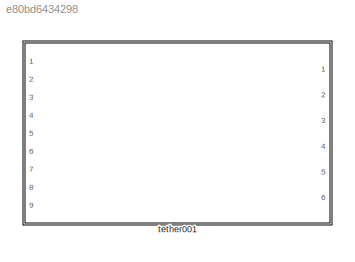
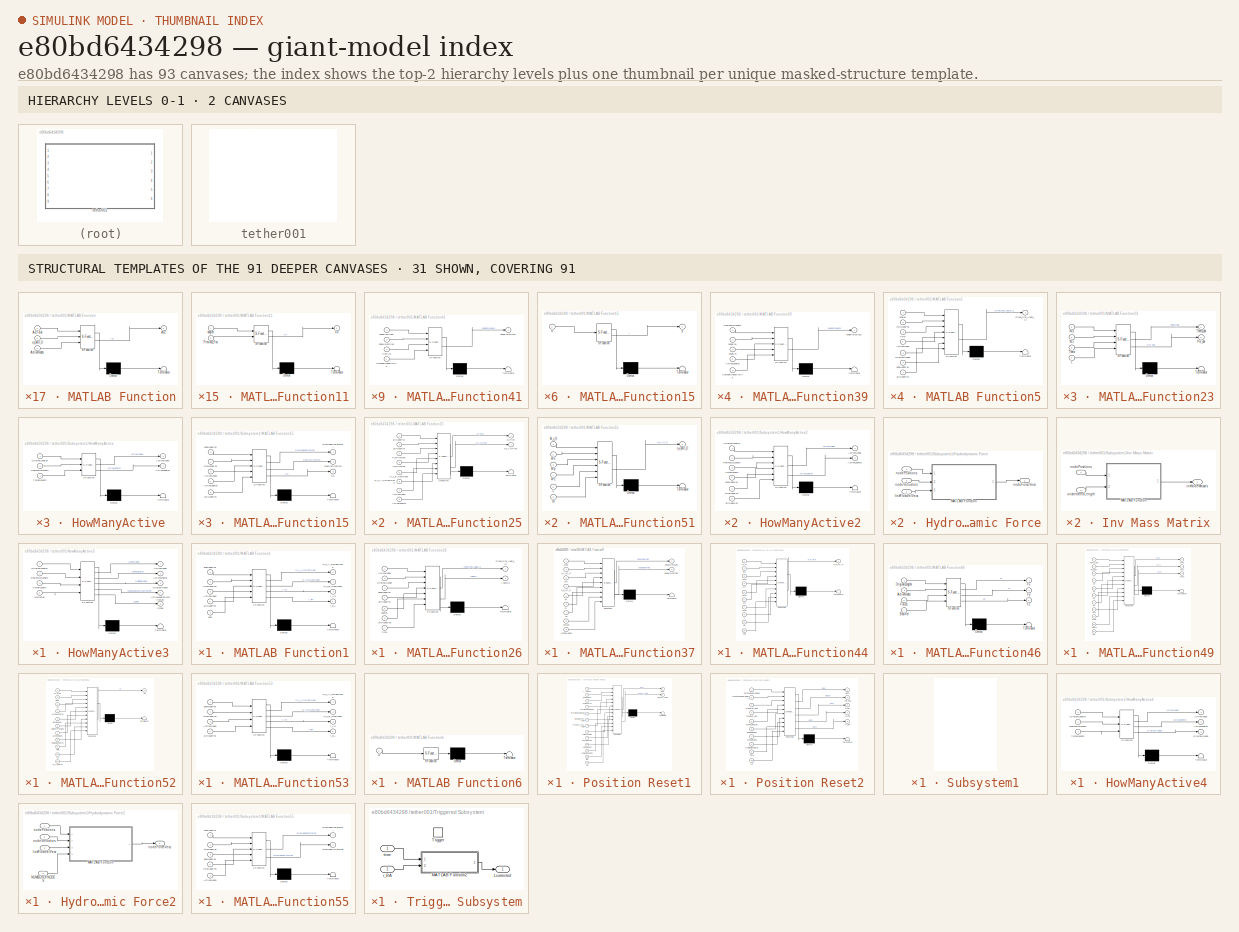
[diagram: thumbnail index - top-2 hierarchy levels (2 canvases) + 31 structural-template representatives of the remaining 91 canvases]
MODEL slx_e80bd6434298
KIND library
CONFIG AbsTol = auto
CONFIG EnableMultiTasking = off
CONFIG FixedStep = auto
CONFIG MaxStep = auto
CONFIG MinStep = auto
CONFIG RelTol = 1e-3
CONFIG SampleTimeConstraint = Unconstrained
CONFIG SolverName = VariableStepAuto
CONFIG StartTime = 0.0
CONFIG StopTime = 10.0
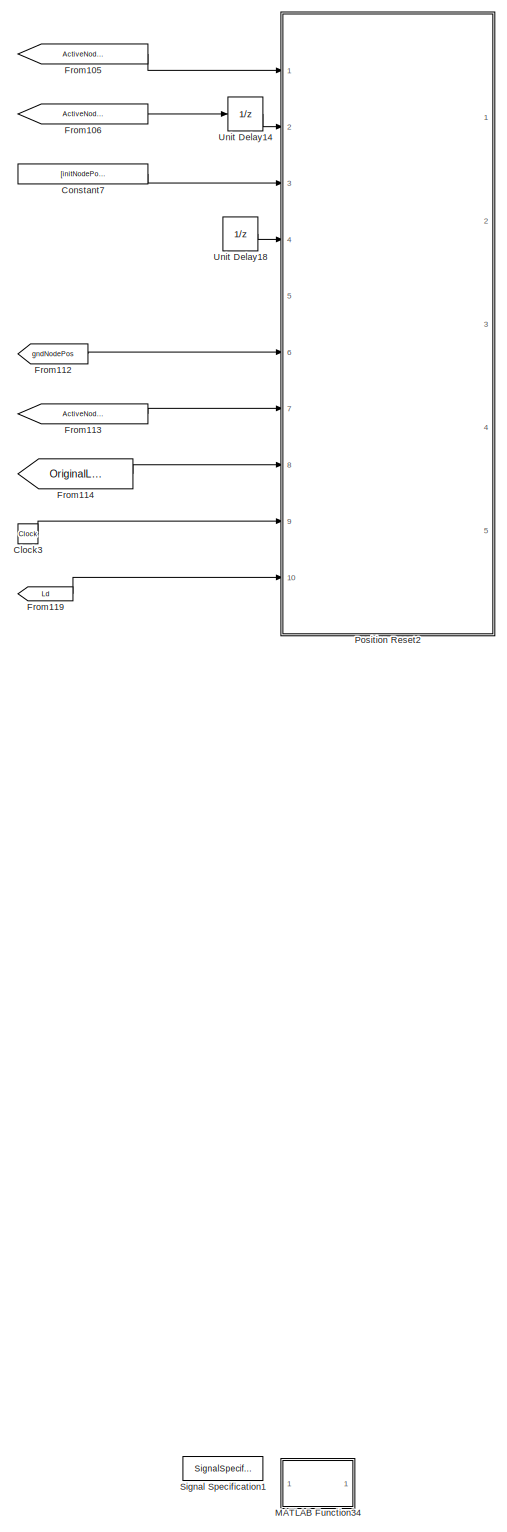
[diagram: tether001 - part 1/27, top center region]
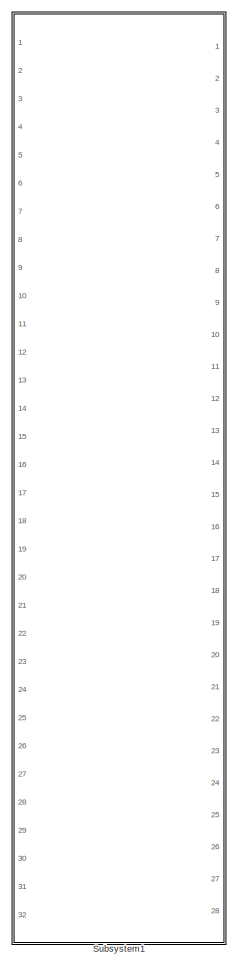
[diagram: tether001 - part 2/27, top center region]
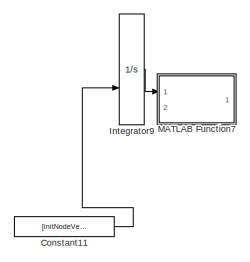
[diagram: tether001 - part 3/27, top right region]
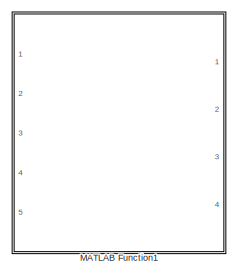
[diagram: tether001 - part 4/27, top center region]
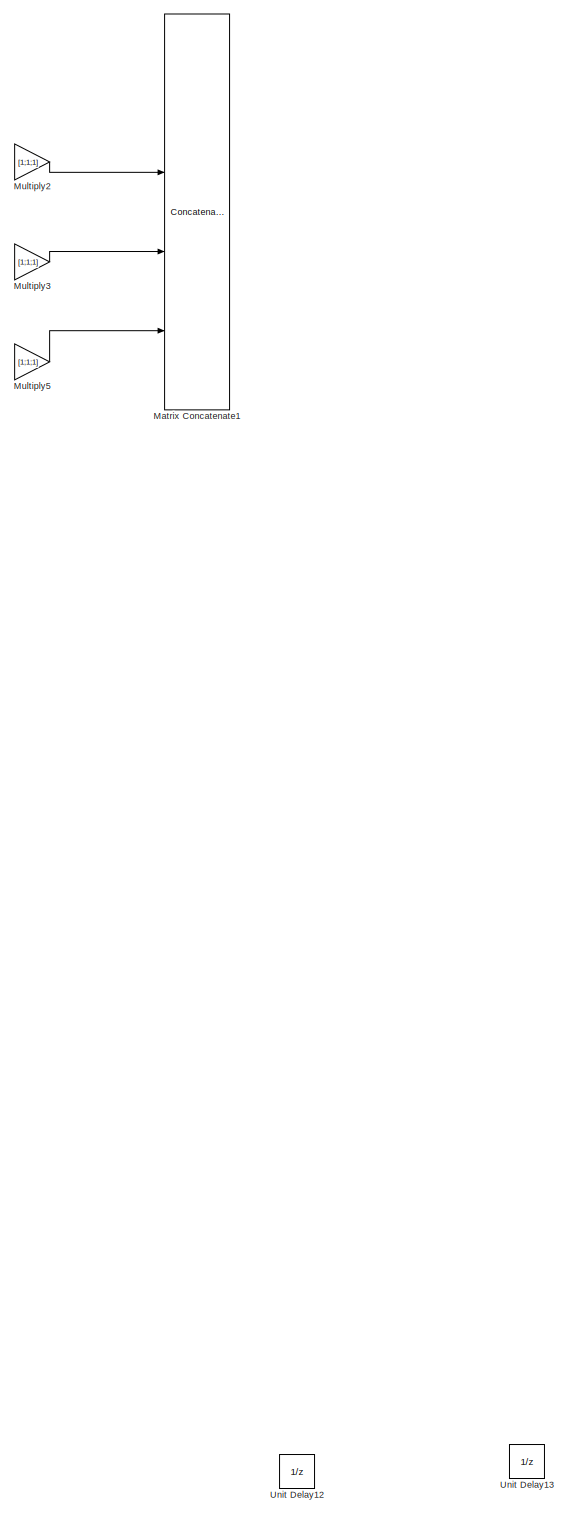
[diagram: tether001 - part 5/27, top right region]
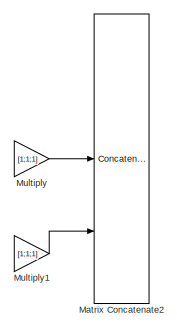
[diagram: tether001 - part 6/27, top right region]
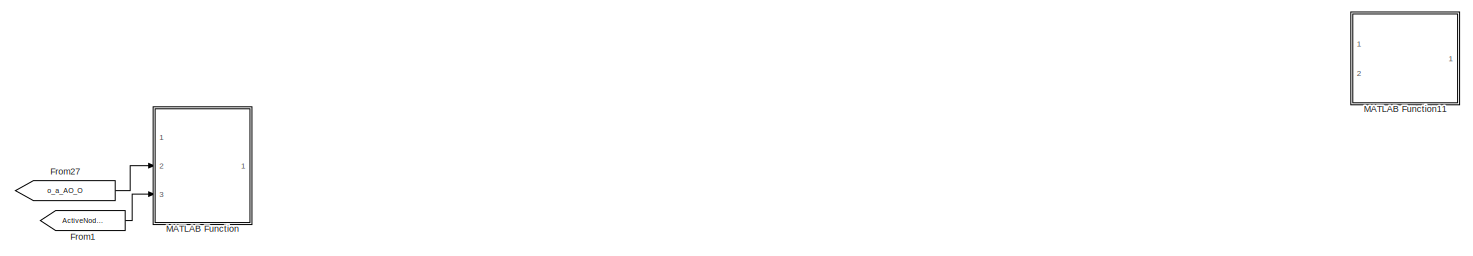
[diagram: tether001 - part 7/27, top right region]
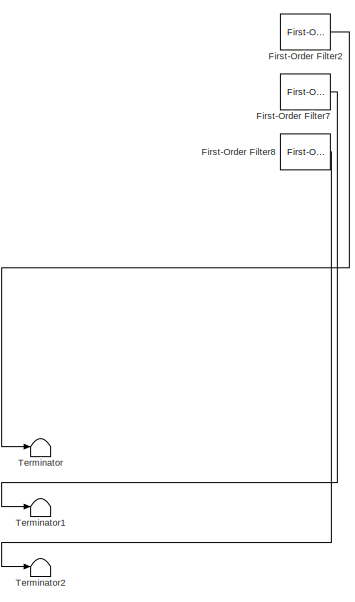
[diagram: tether001 - part 8/27, central region]
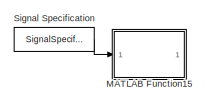
[diagram: tether001 - part 9/27, middle right region]
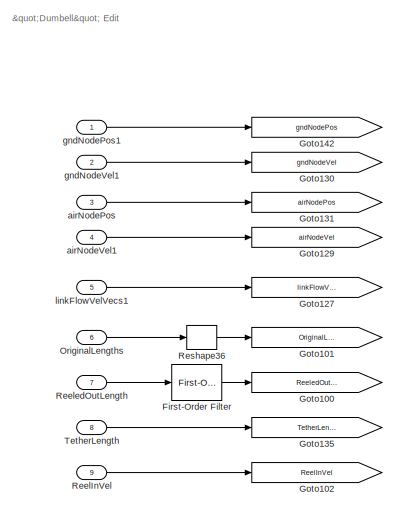
[diagram: tether001 - part 10/27, middle left region]
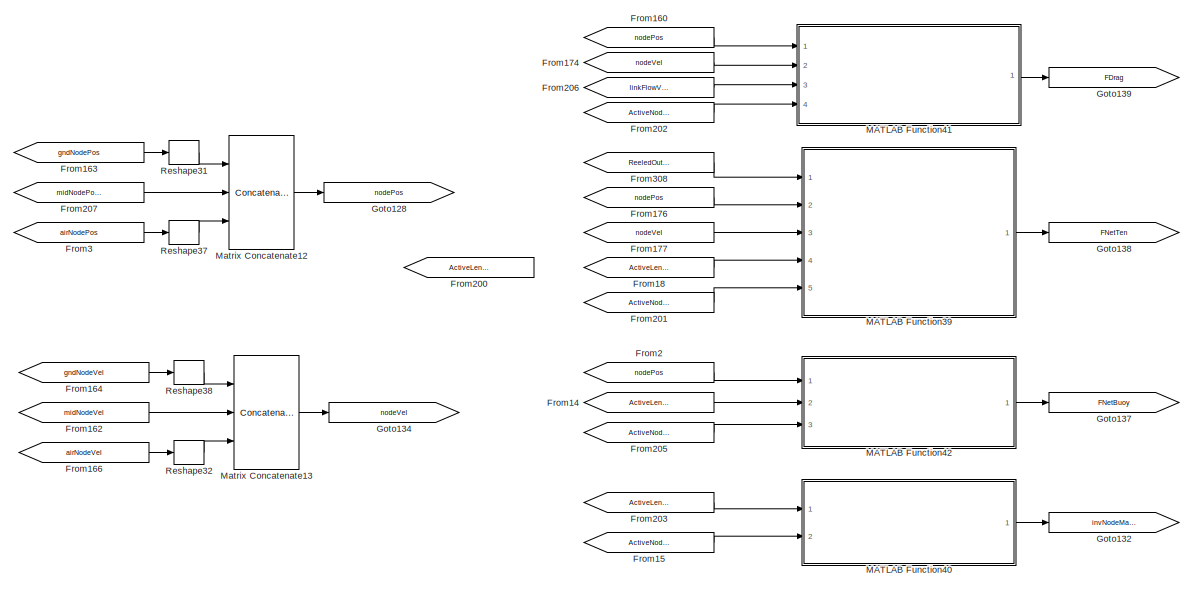
[diagram: tether001 - part 11/27, middle left region]
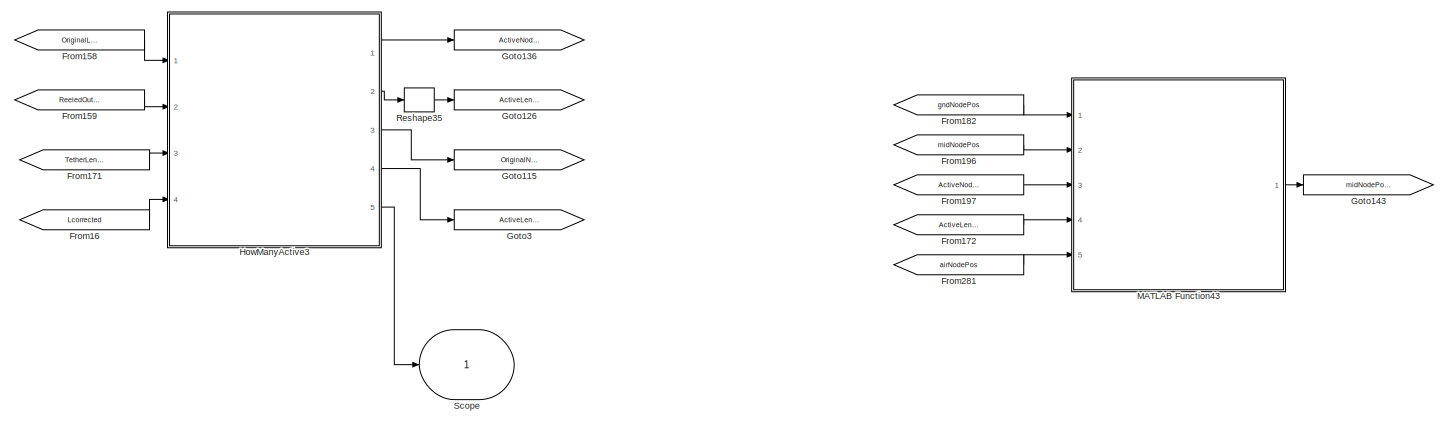
[diagram: tether001 - part 12/27, middle left region]
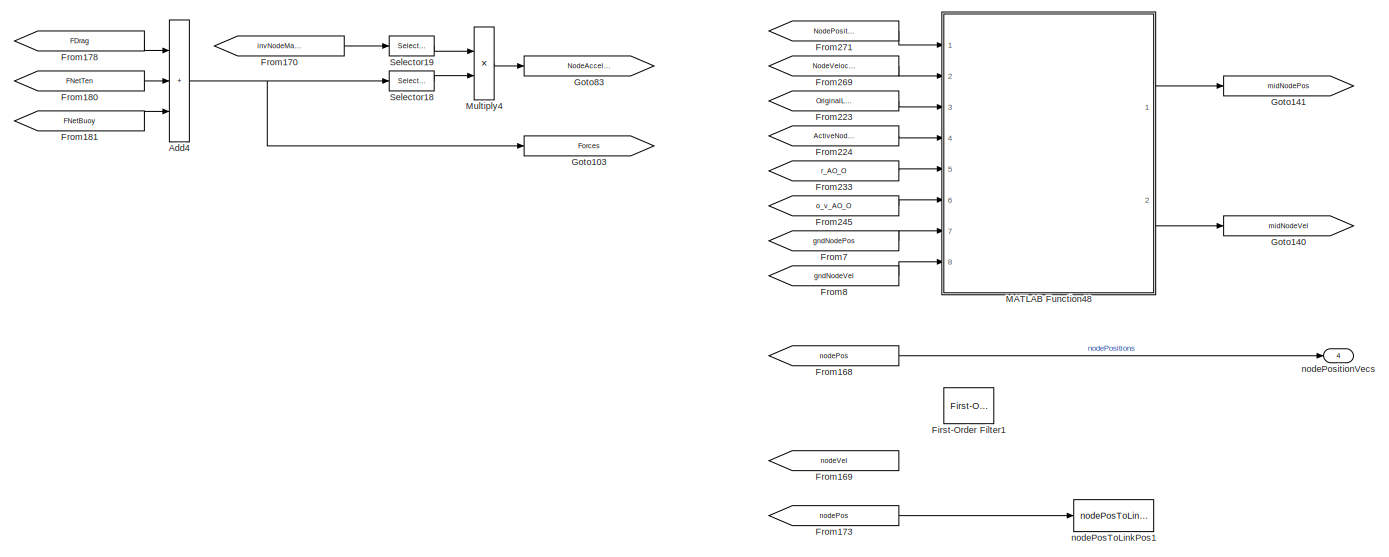
[diagram: tether001 - part 13/27, central region]
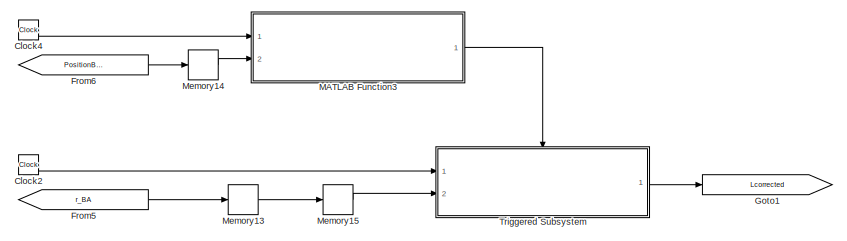
[diagram: tether001 - part 14/27, middle left region]
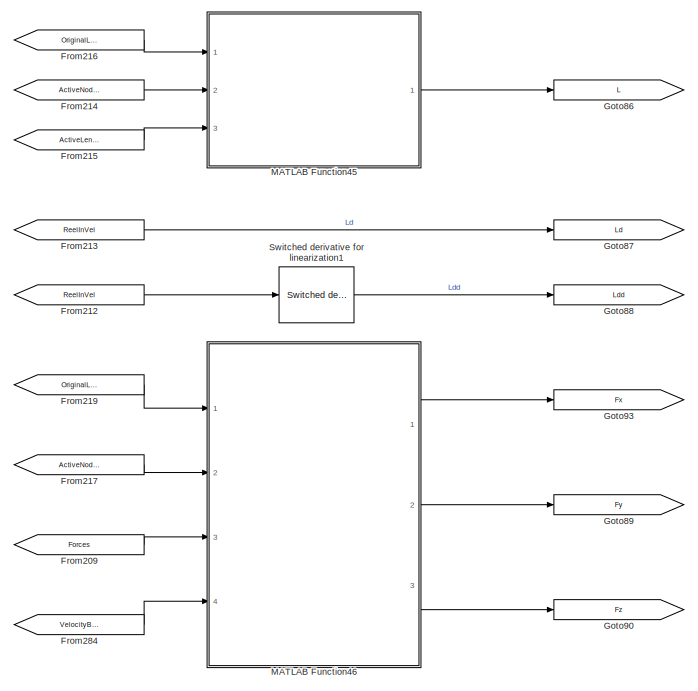
[diagram: tether001 - part 15/27, middle left region]
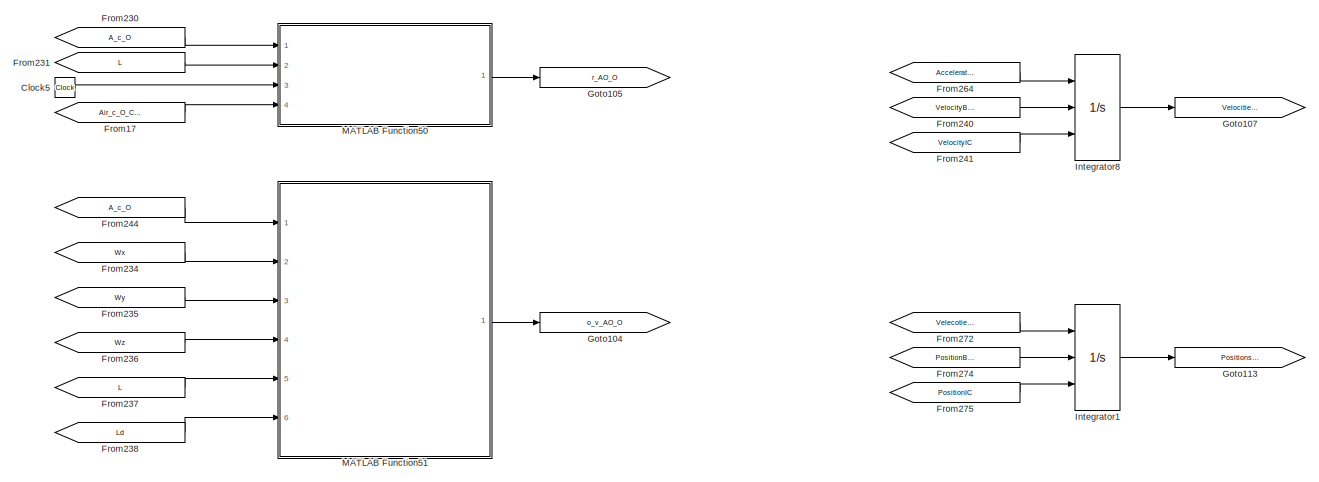
[diagram: tether001 - part 16/27, central region]
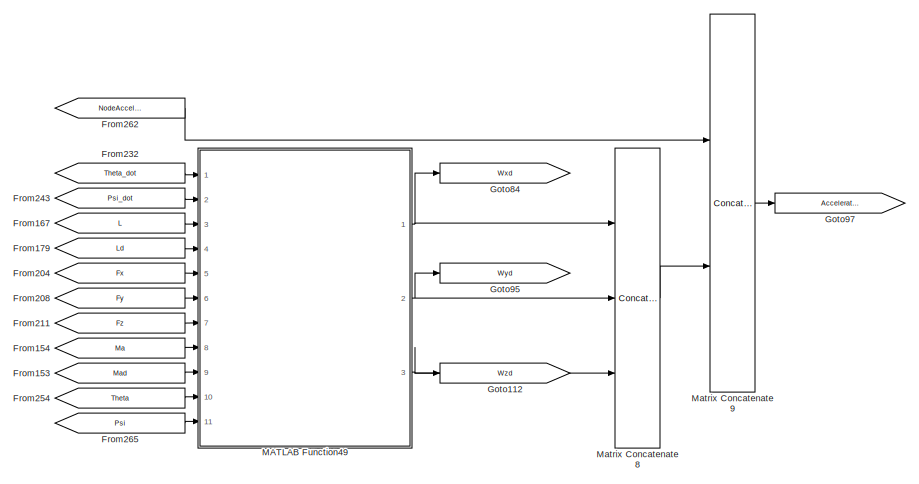
[diagram: tether001 - part 17/27, middle left region]
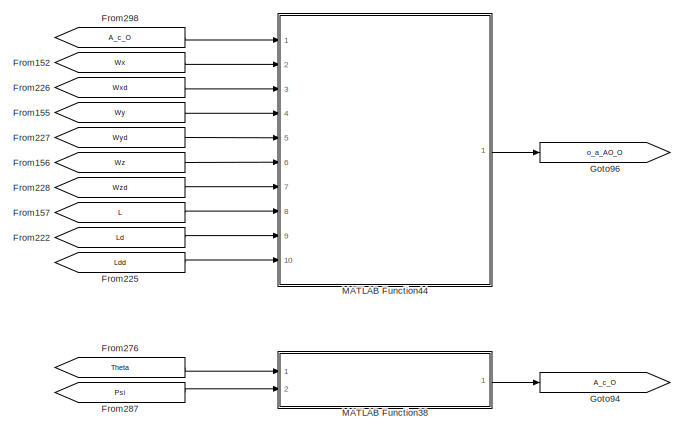
[diagram: tether001 - part 18/27, central region]
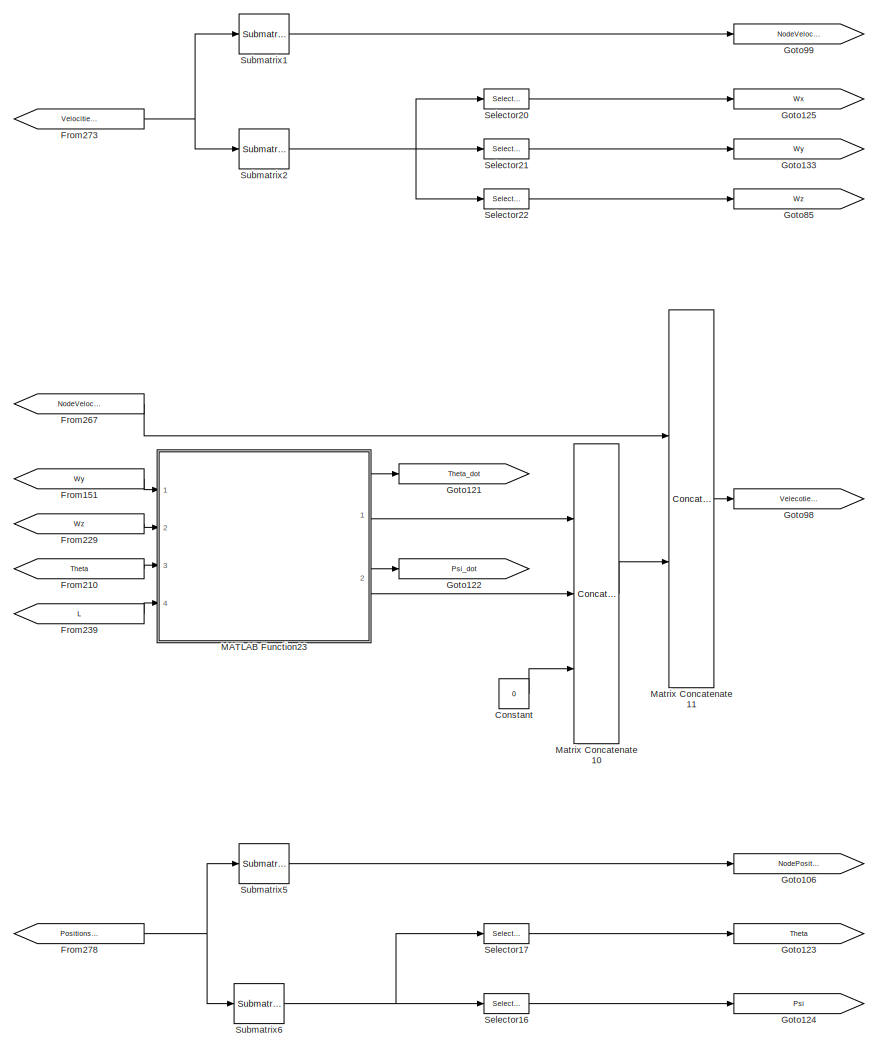
[diagram: tether001 - part 19/27, bottom left region]
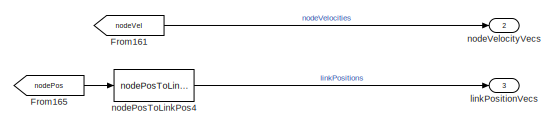
[diagram: tether001 - part 20/27, central region]
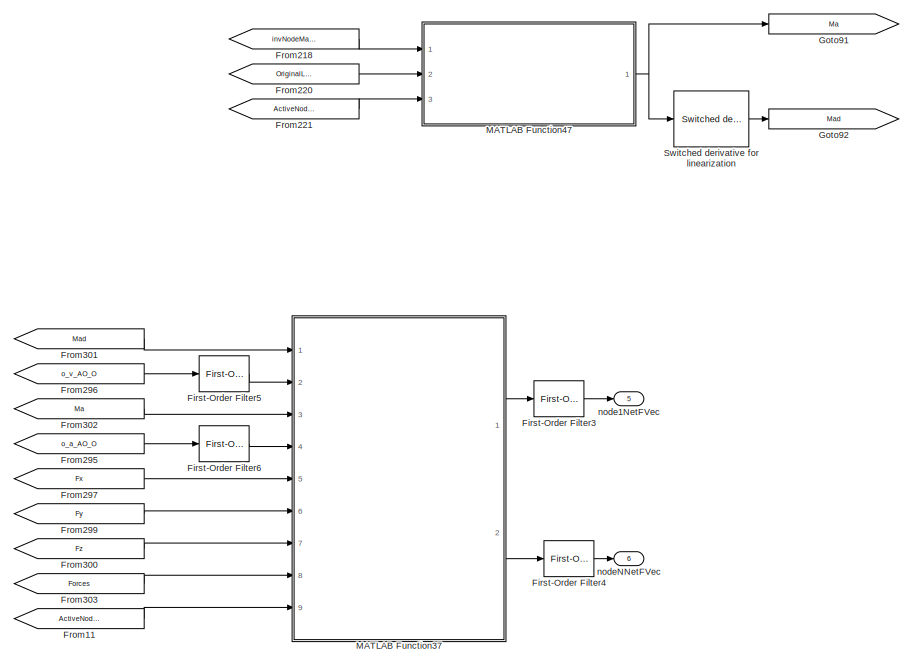
[diagram: tether001 - part 21/27, middle left region]
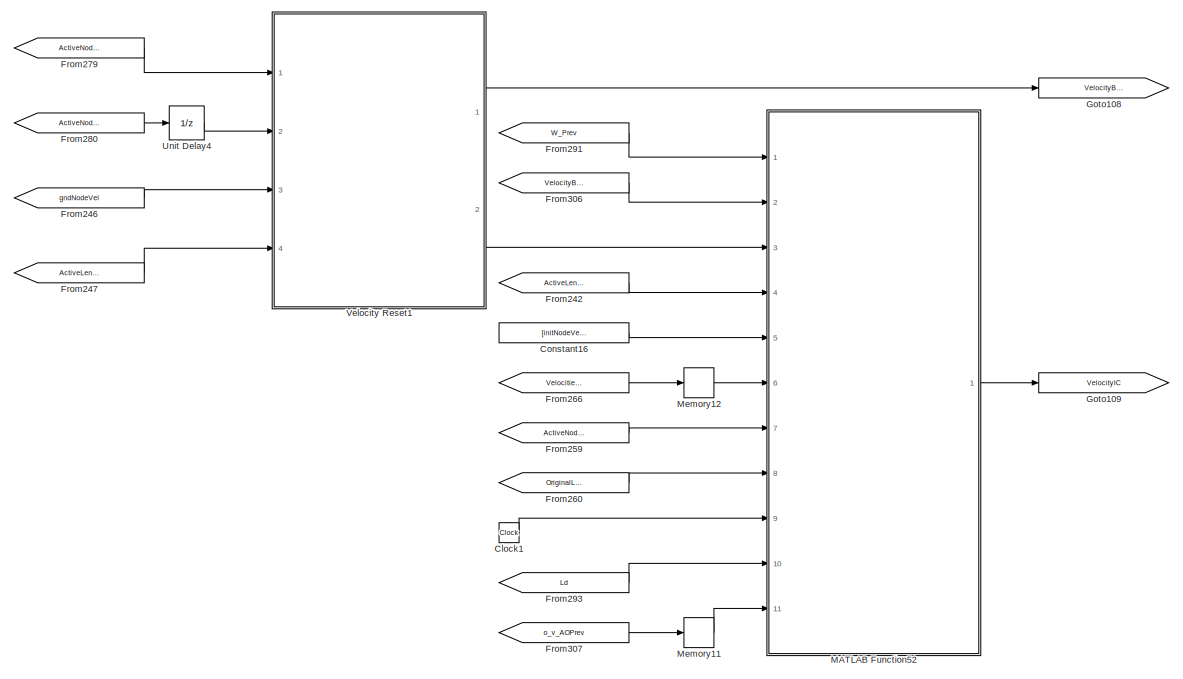
[diagram: tether001 - part 22/27, bottom center region]
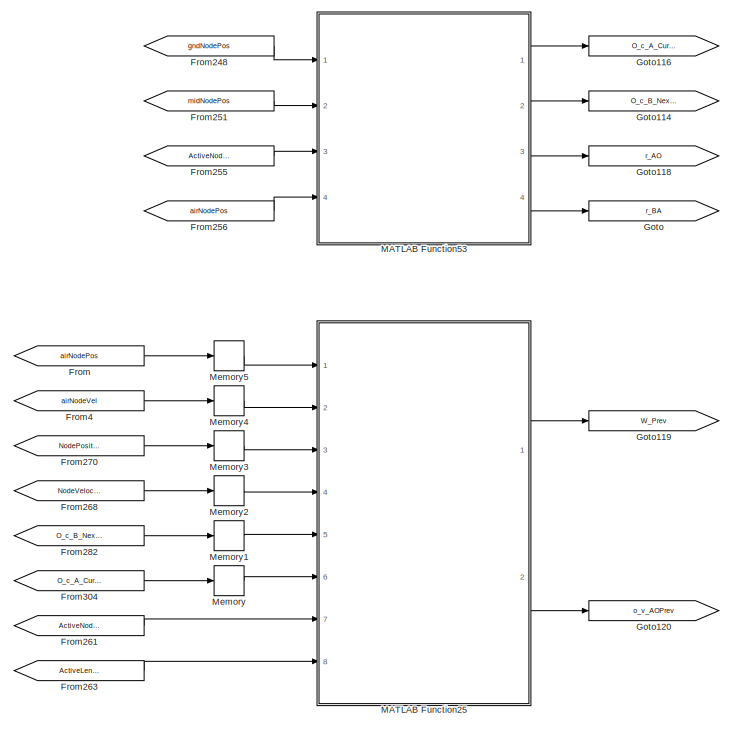
[diagram: tether001 - part 23/27, bottom center region]
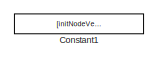
[diagram: tether001 - part 24/27, bottom left region]
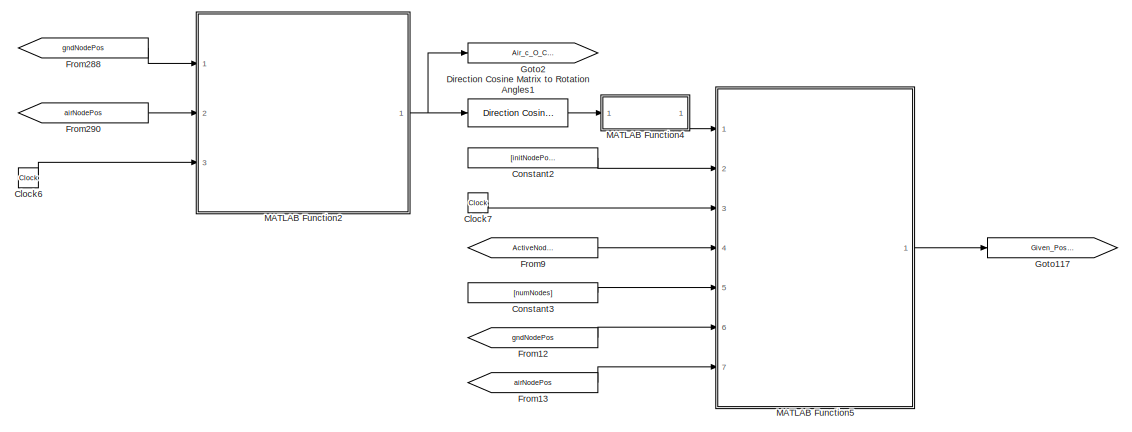
[diagram: tether001 - part 25/27, bottom left region]
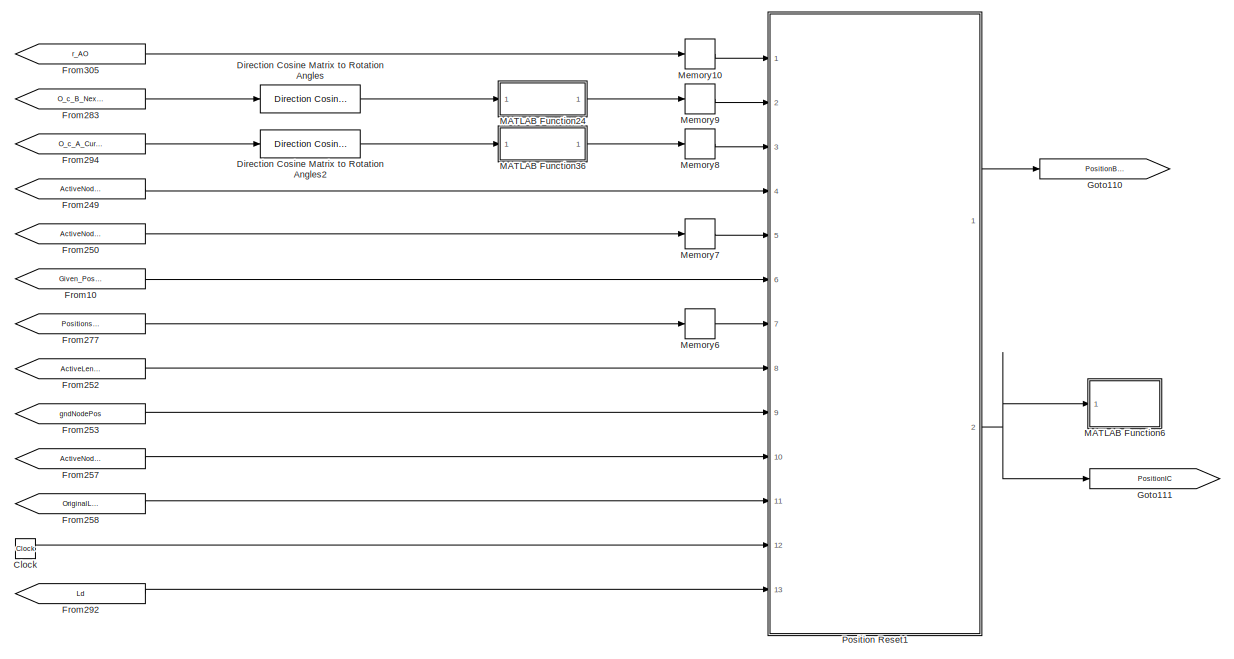
[diagram: tether001 - part 26/27, bottom center region]
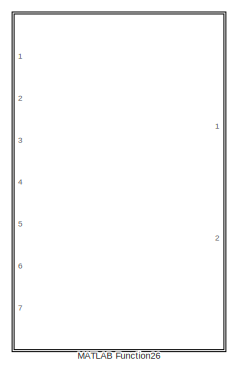
[diagram: tether001 - part 27/27, bottom left region]
BLOCK [SubSystem] tether001
  Ports = [9, 6]
  RequestExecContextInheritance = off
BLOCK [Sum] tether001/Add4
  IconShape = rectangular
  Inputs = 3
  Ports = [3, 1]
BLOCK [Clock] tether001/Clock
BLOCK [Clock] tether001/Clock1
BLOCK [Clock] tether001/Clock2
BLOCK [Clock] tether001/Clock3
  Commented = on
BLOCK [Clock] tether001/Clock4
BLOCK [Clock] tether001/Clock5
BLOCK [Clock] tether001/Clock6
BLOCK [Clock] tether001/Clock7
BLOCK [Constant] tether001/Constant
  Value = 0
BLOCK [Constant] tether001/Constant1
  Commented = on
  Value = [initNodeVel]
BLOCK [Constant] tether001/Constant11
  Commented = on
  Value = [initNodeVel,zeros(3,3)]
BLOCK [Constant] tether001/Constant16
  Value = [initNodeVel,zeros(3,1)]
BLOCK [Constant] tether001/Constant2
  Value = [initNodePos]
BLOCK [Constant] tether001/Constant3
  Value = [numNodes]
BLOCK [Constant] tether001/Constant7
  Commented = on
  Value = [initNodePos]
BLOCK [Reference] tether001/Direction Cosine Matrix to Rotation Angles  REF=sharedtransform/Direction Cosine Matrix
to Rotation Angles
  AttributesFormatString = Rotation Order: %<rotationOrder>
  Ports = [1, 1]
  SourceBlock = sharedtransform/Direction Cosine Matrix\nto Rotation Angles
  SourceProductBaseCode = AE,PW,DR,MT,VE
  SourceType = DCM2Ang
BLOCK [Reference] tether001/Direction Cosine Matrix to Rotation Angles1  REF=sharedtransform/Direction Cosine Matrix
to Rotation Angles
  AttributesFormatString = Rotation Order: %<rotationOrder>
  Ports = [1, 1]
  SourceBlock = sharedtransform/Direction Cosine Matrix\nto Rotation Angles
  SourceProductBaseCode = AE,PW,DR,MT,VE
  SourceType = DCM2Ang
BLOCK [Reference] tether001/Direction Cosine Matrix to Rotation Angles2  REF=sharedtransform/Direction Cosine Matrix
to Rotation Angles
  AttributesFormatString = Rotation Order: %<rotationOrder>
  Ports = [1, 1]
  SourceBlock = sharedtransform/Direction Cosine Matrix\nto Rotation Angles
  SourceProductBaseCode = AE,PW,DR,MT,VE
  SourceType = DCM2Ang
BLOCK [Reference] tether001/First-Order Filter  REF=spsFirstOrderFilterLib/First-Order
Filter
  Ports = [1, 1]
  SourceBlock = spsFirstOrderFilterLib/First-Order\nFilter
  SourceProductBaseCode = PS
  SourceType = First-Order Filter
BLOCK [Reference] tether001/First-Order Filter1  REF=spsFirstOrderFilterLib/First-Order
Filter
  Ports = [1, 1]
  SourceBlock = spsFirstOrderFilterLib/First-Order\nFilter
  SourceProductBaseCode = PS
  SourceType = First-Order Filter
BLOCK [Reference] tether001/First-Order Filter2  REF=spsFirstOrderFilterLib/First-Order
Filter
  Ports = [1, 1]
  SourceBlock = spsFirstOrderFilterLib/First-Order\nFilter
  SourceProductBaseCode = PS
  SourceType = First-Order Filter
BLOCK [Reference] tether001/First-Order Filter3  REF=spsFirstOrderFilterLib/First-Order
Filter
  Ports = [1, 1]
  SourceBlock = spsFirstOrderFilterLib/First-Order\nFilter
  SourceProductBaseCode = PS
  SourceType = First-Order Filter
BLOCK [Reference] tether001/First-Order Filter4  REF=spsFirstOrderFilterLib/First-Order
Filter
  Ports = [1, 1]
  SourceBlock = spsFirstOrderFilterLib/First-Order\nFilter
  SourceProductBaseCode = PS
  SourceType = First-Order Filter
BLOCK [Reference] tether001/First-Order Filter5  REF=spsFirstOrderFilterLib/First-Order
Filter
  Ports = [1, 1]
  SourceBlock = spsFirstOrderFilterLib/First-Order\nFilter
  SourceProductBaseCode = PS
  SourceType = First-Order Filter
BLOCK [Reference] tether001/First-Order Filter6  REF=spsFirstOrderFilterLib/First-Order
Filter
  Ports = [1, 1]
  SourceBlock = spsFirstOrderFilterLib/First-Order\nFilter
  SourceProductBaseCode = PS
  SourceType = First-Order Filter
BLOCK [Reference] tether001/First-Order Filter7  REF=spsFirstOrderFilterLib/First-Order
Filter
  Ports = [1, 1]
  SourceBlock = spsFirstOrderFilterLib/First-Order\nFilter
  SourceProductBaseCode = PS
  SourceType = First-Order Filter
BLOCK [Reference] tether001/First-Order Filter8  REF=spsFirstOrderFilterLib/First-Order
Filter
  Ports = [1, 1]
  SourceBlock = spsFirstOrderFilterLib/First-Order\nFilter
  SourceProductBaseCode = PS
  SourceType = First-Order Filter
BLOCK [From] tether001/From
  GotoTag = airNodePos
BLOCK [From] tether001/From1
  Commented = on
  GotoTag = ActiveNodes
BLOCK [From] tether001/From10
  GotoTag = Given_Pos_Angle_IC
BLOCK [From] tether001/From105
  Commented = on
  GotoTag = ActiveNodes
BLOCK [From] tether001/From106
  Commented = on
  GotoTag = ActiveNodes
BLOCK [From] tether001/From11
  GotoTag = ActiveNodes
BLOCK [From] tether001/From112
  Commented = on
  GotoTag = gndNodePos
BLOCK [From] tether001/From113
  Commented = on
  GotoTag = ActiveNodes
BLOCK [From] tether001/From114
  Commented = on
  GotoTag = OriginalLengths
BLOCK [From] tether001/From119
  Commented = on
  GotoTag = Ld
BLOCK [From] tether001/From12
  GotoTag = gndNodePos
BLOCK [From] tether001/From13
  GotoTag = airNodePos
  NameLocation = top
BLOCK [From] tether001/From14
  GotoTag = ActiveLengths
BLOCK [From] tether001/From15
  GotoTag = ActiveNodes
BLOCK [From] tether001/From151
  GotoTag = Wy
BLOCK [From] tether001/From152
  GotoTag = Wx
BLOCK [From] tether001/From153
  GotoTag = Mad
BLOCK [From] tether001/From154
  GotoTag = Ma
BLOCK [From] tether001/From155
  GotoTag = Wy
BLOCK [From] tether001/From156
  GotoTag = Wz
BLOCK [From] tether001/From157
  GotoTag = L
BLOCK [From] tether001/From158
  GotoTag = OriginalLengths
BLOCK [From] tether001/From159
  GotoTag = ReeledOutLength
BLOCK [From] tether001/From16
  GotoTag = Lcorrected
BLOCK [From] tether001/From160
  GotoTag = nodePos
BLOCK [From] tether001/From161
  Commented = on
  GotoTag = nodeVel
BLOCK [From] tether001/From162
  GotoTag = midNodeVel
BLOCK [From] tether001/From163
  GotoTag = gndNodePos
BLOCK [From] tether001/From164
  GotoTag = gndNodeVel
BLOCK [From] tether001/From165
  Commented = on
  GotoTag = nodePos
BLOCK [From] tether001/From166
  GotoTag = airNodeVel
BLOCK [From] tether001/From167
  GotoTag = L
BLOCK [From] tether001/From168
  GotoTag = nodePos
BLOCK [From] tether001/From169
  GotoTag = nodeVel
BLOCK [From] tether001/From17
  GotoTag = Air_c_O_CurrentNode
BLOCK [From] tether001/From170
  GotoTag = invNodeMasses
BLOCK [From] tether001/From171
  GotoTag = TetherLength
BLOCK [From] tether001/From172
  GotoTag = ActiveLengths
BLOCK [From] tether001/From173
  GotoTag = nodePos
BLOCK [From] tether001/From174
  GotoTag = nodeVel
BLOCK [From] tether001/From176
  GotoTag = nodePos
BLOCK [From] tether001/From177
  GotoTag = nodeVel
BLOCK [From] tether001/From178
  GotoTag = FDrag
BLOCK [From] tether001/From179
  GotoTag = Ld
BLOCK [From] tether001/From18
  GotoTag = ActiveLengthsUncorrected
BLOCK [From] tether001/From180
  GotoTag = FNetTen
BLOCK [From] tether001/From181
  GotoTag = FNetBuoy
BLOCK [From] tether001/From182
  GotoTag = gndNodePos
BLOCK [From] tether001/From196
  GotoTag = midNodePos
BLOCK [From] tether001/From197
  GotoTag = ActiveNodes
BLOCK [From] tether001/From2
  GotoTag = nodePos
BLOCK [From] tether001/From200
  GotoTag = ActiveLengths
BLOCK [From] tether001/From201
  GotoTag = ActiveNodes
BLOCK [From] tether001/From202
  GotoTag = ActiveNodes
BLOCK [From] tether001/From203
  GotoTag = ActiveLengths
BLOCK [From] tether001/From204
  GotoTag = Fx
BLOCK [From] tether001/From205
  GotoTag = ActiveNodes
BLOCK [From] tether001/From206
  GotoTag = linkFlowVelVecs
BLOCK [From] tether001/From207
  GotoTag = midNodePosInternal
BLOCK [From] tether001/From208
  GotoTag = Fy
BLOCK [From] tether001/From209
  GotoTag = Forces
BLOCK [From] tether001/From210
  GotoTag = Theta
BLOCK [From] tether001/From211
  GotoTag = Fz
BLOCK [From] tether001/From212
  GotoTag = ReelInVel
BLOCK [From] tether001/From213
  GotoTag = ReelInVel
BLOCK [From] tether001/From214
  GotoTag = ActiveNodes
BLOCK [From] tether001/From215
  GotoTag = ActiveLengths
BLOCK [From] tether001/From216
  GotoTag = OriginalLengths
BLOCK [From] tether001/From217
  GotoTag = ActiveNodes
BLOCK [From] tether001/From218
  GotoTag = invNodeMasses
BLOCK [From] tether001/From219
  GotoTag = OriginalLengths
BLOCK [From] tether001/From220
  GotoTag = OriginalLengths
BLOCK [From] tether001/From221
  GotoTag = ActiveNodes
BLOCK [From] tether001/From222
  GotoTag = Ld
BLOCK [From] tether001/From223
  GotoTag = OriginalLengths
BLOCK [From] tether001/From224
  GotoTag = ActiveNodes
BLOCK [From] tether001/From225
  GotoTag = Ldd
BLOCK [From] tether001/From226
  GotoTag = Wxd
BLOCK [From] tether001/From227
  GotoTag = Wyd
BLOCK [From] tether001/From228
  GotoTag = Wzd
BLOCK [From] tether001/From229
  GotoTag = Wz
BLOCK [From] tether001/From230
  GotoTag = A_c_O
BLOCK [From] tether001/From231
  GotoTag = L
BLOCK [From] tether001/From232
  GotoTag = Theta_dot
BLOCK [From] tether001/From233
  GotoTag = r_AO_O
BLOCK [From] tether001/From234
  GotoTag = Wx
BLOCK [From] tether001/From235
  GotoTag = Wy
BLOCK [From] tether001/From236
  GotoTag = Wz
BLOCK [From] tether001/From237
  GotoTag = L
BLOCK [From] tether001/From238
  GotoTag = Ld
BLOCK [From] tether001/From239
  GotoTag = L
BLOCK [From] tether001/From240
  GotoTag = VelocityBoolean
BLOCK [From] tether001/From241
  GotoTag = VelocityIC
BLOCK [From] tether001/From242
  GotoTag = ActiveLengths
BLOCK [From] tether001/From243
  GotoTag = Psi_dot
BLOCK [From] tether001/From244
  GotoTag = A_c_O
BLOCK [From] tether001/From245
  GotoTag = o_v_AO_O
BLOCK [From] tether001/From246
  GotoTag = gndNodeVel
BLOCK [From] tether001/From247
  GotoTag = ActiveLengths
BLOCK [From] tether001/From248
  GotoTag = gndNodePos
BLOCK [From] tether001/From249
  GotoTag = ActiveNodes
BLOCK [From] tether001/From250
  GotoTag = ActiveNodes
BLOCK [From] tether001/From251
  GotoTag = midNodePos
BLOCK [From] tether001/From252
  GotoTag = ActiveLengths
BLOCK [From] tether001/From253
  GotoTag = gndNodePos
BLOCK [From] tether001/From254
  GotoTag = Theta
BLOCK [From] tether001/From255
  GotoTag = ActiveNodes
BLOCK [From] tether001/From256
  GotoTag = airNodePos
BLOCK [From] tether001/From257
  GotoTag = ActiveNodes
BLOCK [From] tether001/From258
  GotoTag = OriginalLengths
BLOCK [From] tether001/From259
  GotoTag = ActiveNodes
BLOCK [From] tether001/From260
  GotoTag = OriginalLengths
BLOCK [From] tether001/From261
  GotoTag = ActiveNodes
BLOCK [From] tether001/From262
  GotoTag = NodeAccelerations
BLOCK [From] tether001/From263
  GotoTag = ActiveLengths
BLOCK [From] tether001/From264
  GotoTag = Accelerations
BLOCK [From] tether001/From265
  GotoTag = Psi
BLOCK [From] tether001/From266
  GotoTag = VelocitiesOUT
BLOCK [From] tether001/From267
  GotoTag = NodeVelocities
BLOCK [From] tether001/From268
  GotoTag = NodeVelocities
BLOCK [From] tether001/From269
  GotoTag = NodeVelocities
BLOCK [From] tether001/From27
  Commented = on
  GotoTag = o_a_AO_O
BLOCK [From] tether001/From270
  GotoTag = NodePositions
BLOCK [From] tether001/From271
  GotoTag = NodePositions
BLOCK [From] tether001/From272
  GotoTag = VelecotiesForIntegration
BLOCK [From] tether001/From273
  GotoTag = VelocitiesOUT
BLOCK [From] tether001/From274
  GotoTag = PositionBoolean
BLOCK [From] tether001/From275
  GotoTag = PositionIC
BLOCK [From] tether001/From276
  GotoTag = Theta
BLOCK [From] tether001/From277
  GotoTag = PositionsOUT
BLOCK [From] tether001/From278
  GotoTag = PositionsOUT
BLOCK [From] tether001/From279
  GotoTag = ActiveNodes
BLOCK [From] tether001/From280
  GotoTag = ActiveNodes
BLOCK [From] tether001/From281
  GotoTag = airNodePos
BLOCK [From] tether001/From282
  GotoTag = O_c_B_NextNode
BLOCK [From] tether001/From283
  GotoTag = O_c_B_NextNode
BLOCK [From] tether001/From284
  GotoTag = VelocityBoolean
BLOCK [From] tether001/From287
  GotoTag = Psi
BLOCK [From] tether001/From288
  GotoTag = gndNodePos
BLOCK [From] tether001/From290
  GotoTag = airNodePos
BLOCK [From] tether001/From291
  GotoTag = W_Prev
BLOCK [From] tether001/From292
  GotoTag = Ld
BLOCK [From] tether001/From293
  GotoTag = Ld
BLOCK [From] tether001/From294
  GotoTag = O_c_A_CurrentNode
BLOCK [From] tether001/From295
  GotoTag = o_a_AO_O
BLOCK [From] tether001/From296
  GotoTag = o_v_AO_O
BLOCK [From] tether001/From297
  GotoTag = Fx
BLOCK [From] tether001/From298
  GotoTag = A_c_O
BLOCK [From] tether001/From299
  GotoTag = Fy
BLOCK [From] tether001/From3
  GotoTag = airNodePos
BLOCK [From] tether001/From300
  GotoTag = Fz
BLOCK [From] tether001/From301
  GotoTag = Mad
BLOCK [From] tether001/From302
  GotoTag = Ma
BLOCK [From] tether001/From303
  GotoTag = Forces
BLOCK [From] tether001/From304
  GotoTag = O_c_A_CurrentNode
BLOCK [From] tether001/From305
  GotoTag = r_AO
BLOCK [From] tether001/From306
  GotoTag = VelocityBoolean
BLOCK [From] tether001/From307
  GotoTag = o_v_AOPrev
BLOCK [From] tether001/From308
  GotoTag = ReeledOutLength
BLOCK [From] tether001/From4
  GotoTag = airNodeVel
BLOCK [From] tether001/From5
  GotoTag = r_BA
BLOCK [From] tether001/From6
  GotoTag = PositionBoolean
BLOCK [From] tether001/From7
  GotoTag = gndNodePos
BLOCK [From] tether001/From8
  GotoTag = gndNodeVel
BLOCK [From] tether001/From9
  GotoTag = ActiveNodes
BLOCK [Goto] tether001/Goto
  GotoTag = r_BA
BLOCK [Goto] tether001/Goto1
  GotoTag = Lcorrected
BLOCK [Goto] tether001/Goto100
  GotoTag = ReeledOutLength
BLOCK [Goto] tether001/Goto101
  GotoTag = OriginalLengths
BLOCK [Goto] tether001/Goto102
  GotoTag = ReelInVel
BLOCK [Goto] tether001/Goto103
  GotoTag = Forces
BLOCK [Goto] tether001/Goto104
  GotoTag = o_v_AO_O
BLOCK [Goto] tether001/Goto105
  GotoTag = r_AO_O
BLOCK [Goto] tether001/Goto106
  GotoTag = NodePositions
BLOCK [Goto] tether001/Goto107
  GotoTag = VelocitiesOUT
BLOCK [Goto] tether001/Goto108
  GotoTag = VelocityBoolean
BLOCK [Goto] tether001/Goto109
  GotoTag = VelocityIC
BLOCK [Goto] tether001/Goto110
  GotoTag = PositionBoolean
BLOCK [Goto] tether001/Goto111
  GotoTag = PositionIC
BLOCK [Goto] tether001/Goto112
  GotoTag = Wzd
BLOCK [Goto] tether001/Goto113
  GotoTag = PositionsOUT
BLOCK [Goto] tether001/Goto114
  GotoTag = O_c_B_NextNode
BLOCK [Goto] tether001/Goto115
  GotoTag = OriginalNodes
BLOCK [Goto] tether001/Goto116
  GotoTag = O_c_A_CurrentNode
BLOCK [Goto] tether001/Goto117
  GotoTag = Given_Pos_Angle_IC
BLOCK [Goto] tether001/Goto118
  GotoTag = r_AO
BLOCK [Goto] tether001/Goto119
  GotoTag = W_Prev
BLOCK [Goto] tether001/Goto120
  GotoTag = o_v_AOPrev
BLOCK [Goto] tether001/Goto121
  GotoTag = Theta_dot
BLOCK [Goto] tether001/Goto122
  GotoTag = Psi_dot
BLOCK [Goto] tether001/Goto123
  GotoTag = Theta
BLOCK [Goto] tether001/Goto124
  GotoTag = Psi
BLOCK [Goto] tether001/Goto125
  GotoTag = Wx
BLOCK [Goto] tether001/Goto126
  GotoTag = ActiveLengths
BLOCK [Goto] tether001/Goto127
  GotoTag = linkFlowVelVecs
BLOCK [Goto] tether001/Goto128
  GotoTag = nodePos
BLOCK [Goto] tether001/Goto129
  GotoTag = airNodeVel
BLOCK [Goto] tether001/Goto130
  GotoTag = gndNodeVel
BLOCK [Goto] tether001/Goto131
  GotoTag = airNodePos
BLOCK [Goto] tether001/Goto132
  GotoTag = invNodeMasses
BLOCK [Goto] tether001/Goto133
  GotoTag = Wy
BLOCK [Goto] tether001/Goto134
  GotoTag = nodeVel
BLOCK [Goto] tether001/Goto135
  GotoTag = TetherLength
BLOCK [Goto] tether001/Goto136
  GotoTag = ActiveNodes
BLOCK [Goto] tether001/Goto137
  GotoTag = FNetBuoy
BLOCK [Goto] tether001/Goto138
  GotoTag = FNetTen
BLOCK [Goto] tether001/Goto139
  GotoTag = FDrag
BLOCK [Goto] tether001/Goto140
  GotoTag = midNodeVel
BLOCK [Goto] tether001/Goto141
  GotoTag = midNodePos
BLOCK [Goto] tether001/Goto142
  GotoTag = gndNodePos
BLOCK [Goto] tether001/Goto143
  GotoTag = midNodePosInternal
BLOCK [Goto] tether001/Goto2
  GotoTag = Air_c_O_CurrentNode
BLOCK [Goto] tether001/Goto3
  GotoTag = ActiveLengthsUncorrected
BLOCK [Goto] tether001/Goto83
  GotoTag = NodeAccelerations
BLOCK [Goto] tether001/Goto84
  GotoTag = Wxd
  NameLocation = right
BLOCK [Goto] tether001/Goto85
  GotoTag = Wz
BLOCK [Goto] tether001/Goto86
  GotoTag = L
BLOCK [Goto] tether001/Goto87
  GotoTag = Ld
BLOCK [Goto] tether001/Goto88
  GotoTag = Ldd
BLOCK [Goto] tether001/Goto89
  GotoTag = Fy
BLOCK [Goto] tether001/Goto90
  GotoTag = Fz
BLOCK [Goto] tether001/Goto91
  GotoTag = Ma
BLOCK [Goto] tether001/Goto92
  GotoTag = Mad
BLOCK [Goto] tether001/Goto93
  GotoTag = Fx
BLOCK [Goto] tether001/Goto94
  GotoTag = A_c_O
BLOCK [Goto] tether001/Goto95
  GotoTag = Wyd
BLOCK [Goto] tether001/Goto96
  GotoTag = o_a_AO_O
BLOCK [Goto] tether001/Goto97
  GotoTag = Accelerations
BLOCK [Goto] tether001/Goto98
  GotoTag = VelecotiesForIntegration
BLOCK [Goto] tether001/Goto99
  GotoTag = NodeVelocities
BLOCK [SubSystem] tether001/HowManyActive3
  ErrorFcn = Stateflow.Translate.translate
  PermitHierarchicalResolution = ExplicitOnly
  Ports = [4, 5]
  RequestExecContextInheritance = off
  SFBlockType = MATLAB Function
  TreatAsAtomicUnit = on
BLOCK [Demux] tether001/HowManyActive3/ Demux 
  Outputs = 1
  Ports = [1, 1]
BLOCK [S-Function] tether001/HowManyActive3/ SFunction 
  EnableBusSupport = off
  FunctionName = sf_sfun
  PortCounts = [4 6]
  Ports = [4, 6]
  SFcnIsStateOwnerBlock = off
  SFunctionDeploymentMode = off
  Tag = Stateflow S-Function 34
BLOCK [Terminator] tether001/HowManyActive3/ Terminator 
BLOCK [Outport] tether001/HowManyActive3/ActiveLengths
  Port = 2
BLOCK [Outport] tether001/HowManyActive3/ActiveLengthsUncorrected
  Port = 4
BLOCK [Outport] tether001/HowManyActive3/ActiveNodes
BLOCK [Inport] tether001/HowManyActive3/Lcorrected
  Port = 4
BLOCK [Inport] tether001/HowManyActive3/OriginalLengths
BLOCK [Outport] tether001/HowManyActive3/OriginalNodes
  Port = 3
BLOCK [Inport] tether001/HowManyActive3/ReeledOutLength
  Port = 2
BLOCK [Outport] tether001/HowManyActive3/Scope
  Port = 5
BLOCK [Inport] tether001/HowManyActive3/TetherLength
  Port = 3
BLOCK [Integrator] tether001/Integrator1
  ExternalReset = rising
  InitialConditionSource = external
  Ports = [3, 1]
BLOCK [Integrator] tether001/Integrator8
  ExternalReset = rising
  InitialConditionSource = external
  Ports = [3, 1]
BLOCK [Integrator] tether001/Integrator9
  Commented = on
  InitialConditionSource = external
  Ports = [2, 1]
BLOCK [SubSystem] tether001/MATLAB Function
  Commented = on
  ErrorFcn = Stateflow.Translate.translate
  PermitHierarchicalResolution = ExplicitOnly
  Ports = [3, 1]
  RequestExecContextInheritance = off
  SFBlockType = MATLAB Function
  TreatAsAtomicUnit = on
BLOCK [Demux] tether001/MATLAB Function/ Demux 
  Outputs = 1
  Ports = [1, 1]
BLOCK [S-Function] tether001/MATLAB Function/ SFunction 
  EnableBusSupport = off
  FunctionName = sf_sfun
  PortCounts = [3 2]
  Ports = [3, 2]
  SFcnIsStateOwnerBlock = off
  SFunctionDeploymentMode = off
  Tag = Stateflow S-Function 48
BLOCK [Terminator] tether001/MATLAB Function/ Terminator 
BLOCK [Outport] tether001/MATLAB Function/Acc
BLOCK [Inport] tether001/MATLAB Function/AccTotal
BLOCK [Inport] tether001/MATLAB Function/ActiveNodes
  Port = 3
BLOCK [Inport] tether001/MATLAB Function/o_a_AO_O
  Port = 2
BLOCK [SubSystem] tether001/MATLAB Function1
  Commented = on
  ErrorFcn = Stateflow.Translate.translate
  PermitHierarchicalResolution = ExplicitOnly
  Ports = [5, 4]
  RequestExecContextInheritance = off
  SFBlockType = MATLAB Function
  TreatAsAtomicUnit = on
BLOCK [Demux] tether001/MATLAB Function1/ Demux 
  Outputs = 1
  Ports = [1, 1]
BLOCK [S-Function] tether001/MATLAB Function1/ SFunction 
  EnableBusSupport = off
  FunctionName = sf_sfun
  PortCounts = [5 5]
  Ports = [5, 5]
  SFcnIsStateOwnerBlock = off
  SFunctionDeploymentMode = off
  Tag = Stateflow S-Function 67
BLOCK [Terminator] tether001/MATLAB Function1/ Terminator 
BLOCK [Inport] tether001/MATLAB Function1/ActiveNodes
  Port = 3
BLOCK [Outport] tether001/MATLAB Function1/O_c_A_CurrentNode
BLOCK [Outport] tether001/MATLAB Function1/O_c_B_NextNode
  Port = 2
BLOCK [Inport] tether001/MATLAB Function1/airNodePos
  Port = 4
BLOCK [Inport] tether001/MATLAB Function1/bool
  Port = 5
BLOCK [Inport] tether001/MATLAB Function1/gndNodePos
BLOCK [Inport] tether001/MATLAB Function1/midNodePos
  Port = 2
BLOCK [Outport] tether001/MATLAB Function1/r_AO
  Port = 3
BLOCK [Outport] tether001/MATLAB Function1/r_BA
  Port = 4
BLOCK [SubSystem] tether001/MATLAB Function11
  Commented = on
  ErrorFcn = Stateflow.Translate.translate
  PermitHierarchicalResolution = ExplicitOnly
  Ports = [2, 1]
  RequestExecContextInheritance = off
  SFBlockType = MATLAB Function
  TreatAsAtomicUnit = on
BLOCK [Demux] tether001/MATLAB Function11/ Demux 
  Outputs = 1
  Ports = [1, 1]
BLOCK [S-Function] tether001/MATLAB Function11/ SFunction 
  EnableBusSupport = off
  FunctionName = sf_sfun
  PortCounts = [2 2]
  Ports = [2, 2]
  SFcnIsStateOwnerBlock = off
  SFunctionDeploymentMode = off
  Tag = Stateflow S-Function 64
BLOCK [Terminator] tether001/MATLAB Function11/ Terminator 
BLOCK [Inport] tether001/MATLAB Function11/Previous_Pos
  Port = 2
BLOCK [Outport] tether001/MATLAB Function11/Xo
BLOCK [Inport] tether001/MATLAB Function11/angles
BLOCK [SubSystem] tether001/MATLAB Function15
  Commented = on
  ErrorFcn = Stateflow.Translate.translate
  PermitHierarchicalResolution = ExplicitOnly
  Ports = [1, 1]
  RequestExecContextInheritance = off
  SFBlockType = MATLAB Function
  TreatAsAtomicUnit = on
BLOCK [Demux] tether001/MATLAB Function15/ Demux 
  Outputs = 1
  Ports = [1, 1]
BLOCK [S-Function] tether001/MATLAB Function15/ SFunction 
  EnableBusSupport = off
  FunctionName = sf_sfun
  PortCounts = [1 2]
  Ports = [1, 2]
  SFcnIsStateOwnerBlock = off
  SFunctionDeploymentMode = off
  Tag = Stateflow S-Function 78
BLOCK [Terminator] tether001/MATLAB Function15/ Terminator 
BLOCK [Inport] tether001/MATLAB Function15/u
BLOCK [Outport] tether001/MATLAB Function15/y
BLOCK [SubSystem] tether001/MATLAB Function2
  ErrorFcn = Stateflow.Translate.translate
  PermitHierarchicalResolution = ExplicitOnly
  Ports = [3, 1]
  RequestExecContextInheritance = off
  SFBlockType = MATLAB Function
  TreatAsAtomicUnit = on
BLOCK [Demux] tether001/MATLAB Function2/ Demux 
  Outputs = 1
  Ports = [1, 1]
BLOCK [S-Function] tether001/MATLAB Function2/ SFunction 
  EnableBusSupport = off
  FunctionName = sf_sfun
  PortCounts = [3 2]
  Ports = [3, 2]
  SFcnIsStateOwnerBlock = off
  SFunctionDeploymentMode = off
  Tag = Stateflow S-Function 73
BLOCK [Terminator] tether001/MATLAB Function2/ Terminator 
BLOCK [Outport] tether001/MATLAB Function2/Air_c_O_CurrentNode
BLOCK [Inport] tether001/MATLAB Function2/airNodePos
  Port = 2
BLOCK [Inport] tether001/MATLAB Function2/gndNodePos
BLOCK [Inport] tether001/MATLAB Function2/time
  Port = 3
BLOCK [SubSystem] tether001/MATLAB Function23
  ErrorFcn = Stateflow.Translate.translate
  PermitHierarchicalResolution = ExplicitOnly
  Ports = [4, 2]
  RequestExecContextInheritance = off
  SFBlockType = MATLAB Function
  TreatAsAtomicUnit = on
BLOCK [Demux] tether001/MATLAB Function23/ Demux 
  Outputs = 1
  Ports = [1, 1]
BLOCK [S-Function] tether001/MATLAB Function23/ SFunction 
  EnableBusSupport = off
  FunctionName = sf_sfun
  PortCounts = [4 3]
  Ports = [4, 3]
  SFcnIsStateOwnerBlock = off
  SFunctionDeploymentMode = off
  Tag = Stateflow S-Function 52
BLOCK [Terminator] tether001/MATLAB Function23/ Terminator 
BLOCK [Inport] tether001/MATLAB Function23/L
  Port = 4
BLOCK [Outport] tether001/MATLAB Function23/Psi_dot
  Port = 2
BLOCK [Inport] tether001/MATLAB Function23/Theta
  Port = 3
BLOCK [Outport] tether001/MATLAB Function23/Theta_dot
BLOCK [Inport] tether001/MATLAB Function23/Wy
BLOCK [Inport] tether001/MATLAB Function23/Wz
  Port = 2
BLOCK [SubSystem] tether001/MATLAB Function24
  ErrorFcn = Stateflow.Translate.translate
  PermitHierarchicalResolution = ExplicitOnly
  Ports = [1, 1]
  RequestExecContextInheritance = off
  SFBlockType = MATLAB Function
  TreatAsAtomicUnit = on
BLOCK [Demux] tether001/MATLAB Function24/ Demux 
  Outputs = 1
  Ports = [1, 1]
BLOCK [S-Function] tether001/MATLAB Function24/ SFunction 
  EnableBusSupport = off
  FunctionName = sf_sfun
  PortCounts = [1 2]
  Ports = [1, 2]
  SFcnIsStateOwnerBlock = off
  SFunctionDeploymentMode = off
  Tag = Stateflow S-Function 63
BLOCK [Terminator] tether001/MATLAB Function24/ Terminator 
BLOCK [Inport] tether001/MATLAB Function24/R
BLOCK [Outport] tether001/MATLAB Function24/angles
BLOCK [SubSystem] tether001/MATLAB Function25
  ErrorFcn = Stateflow.Translate.translate
  PermitHierarchicalResolution = ExplicitOnly
  Ports = [8, 2]
  RequestExecContextInheritance = off
  SFBlockType = MATLAB Function
  TreatAsAtomicUnit = on
BLOCK [Demux] tether001/MATLAB Function25/ Demux 
  Outputs = 1
  Ports = [1, 1]
BLOCK [S-Function] tether001/MATLAB Function25/ SFunction 
  EnableBusSupport = off
  FunctionName = sf_sfun
  PortCounts = [8 3]
  Ports = [8, 3]
  SFcnIsStateOwnerBlock = off
  SFunctionDeploymentMode = off
  Tag = Stateflow S-Function 65
BLOCK [Terminator] tether001/MATLAB Function25/ Terminator 
BLOCK [Inport] tether001/MATLAB Function25/ActiveLengths
  Port = 8
BLOCK [Inport] tether001/MATLAB Function25/ActiveNodes
  Port = 7
BLOCK [Inport] tether001/MATLAB Function25/O_c_A_CurrentNode
  Port = 6
BLOCK [Inport] tether001/MATLAB Function25/O_c_B_NextNode
  Port = 5
BLOCK [Inport] tether001/MATLAB Function25/PosPrevious
  Port = 3
BLOCK [Inport] tether001/MATLAB Function25/VelPrevious
  Port = 4
BLOCK [Outport] tether001/MATLAB Function25/W_Prev
BLOCK [Inport] tether001/MATLAB Function25/airNodePos
BLOCK [Inport] tether001/MATLAB Function25/airNodeVel
  Port = 2
BLOCK [Outport] tether001/MATLAB Function25/o_v_AOPrev
  Port = 2
BLOCK [SubSystem] tether001/MATLAB Function26
  Commented = on
  ErrorFcn = Stateflow.Translate.translate
  PermitHierarchicalResolution = ExplicitOnly
  Ports = [7, 2]
  RequestExecContextInheritance = off
  SFBlockType = MATLAB Function
  TreatAsAtomicUnit = on
BLOCK [Demux] tether001/MATLAB Function26/ Demux 
  Outputs = 1
  Ports = [1, 1]
BLOCK [S-Function] tether001/MATLAB Function26/ SFunction 
  EnableBusSupport = off
  FunctionName = sf_sfun
  PortCounts = [7 3]
  Ports = [7, 3]
  SFcnIsStateOwnerBlock = off
  SFunctionDeploymentMode = off
  Tag = Stateflow S-Function 66
BLOCK [Terminator] tether001/MATLAB Function26/ Terminator 
BLOCK [Inport] tether001/MATLAB Function26/ActiveNodes
BLOCK [Outport] tether001/MATLAB Function26/AngleIC
  Port = 2
BLOCK [Outport] tether001/MATLAB Function26/Given_Pos_Angle_IC
BLOCK [Inport] tether001/MATLAB Function26/OriginalNodes
  Port = 2
BLOCK [Inport] tether001/MATLAB Function26/airNodePos
  Port = 4
BLOCK [Inport] tether001/MATLAB Function26/angles
  Port = 5
BLOCK [Inport] tether001/MATLAB Function26/gndNodePos
  Port = 3
BLOCK [Inport] tether001/MATLAB Function26/initNodePos
  Port = 6
BLOCK [Inport] tether001/MATLAB Function26/time
  Port = 7
BLOCK [SubSystem] tether001/MATLAB Function3
  ErrorFcn = Stateflow.Translate.translate
  PermitHierarchicalResolution = ExplicitOnly
  Ports = [2, 1]
  RequestExecContextInheritance = off
  SFBlockType = MATLAB Function
  TreatAsAtomicUnit = on
BLOCK [Demux] tether001/MATLAB Function3/ Demux 
  Outputs = 1
  Ports = [1, 1]
BLOCK [S-Function] tether001/MATLAB Function3/ SFunction 
  EnableBusSupport = off
  FunctionName = sf_sfun
  PortCounts = [2 2]
  Ports = [2, 2]
  SFcnIsStateOwnerBlock = off
  SFunctionDeploymentMode = off
  Tag = Stateflow S-Function 74
BLOCK [Terminator] tether001/MATLAB Function3/ Terminator 
BLOCK [Inport] tether001/MATLAB Function3/Bool
  Port = 2
BLOCK [Outport] tether001/MATLAB Function3/BoolOut
BLOCK [Inport] tether001/MATLAB Function3/time
BLOCK [SubSystem] tether001/MATLAB Function34
  Commented = on
  ErrorFcn = Stateflow.Translate.translate
  PermitHierarchicalResolution = ExplicitOnly
  Ports = [1, 1]
  RequestExecContextInheritance = off
  SFBlockType = MATLAB Function
  TreatAsAtomicUnit = on
BLOCK [Demux] tether001/MATLAB Function34/ Demux 
  Outputs = 1
  Ports = [1, 1]
BLOCK [S-Function] tether001/MATLAB Function34/ SFunction 
  EnableBusSupport = off
  FunctionName = sf_sfun
  PortCounts = [1 2]
  Ports = [1, 2]
  SFcnIsStateOwnerBlock = off
  SFunctionDeploymentMode = off
  Tag = Stateflow S-Function 68
BLOCK [Terminator] tether001/MATLAB Function34/ Terminator 
BLOCK [Inport] tether001/MATLAB Function34/u
BLOCK [Outport] tether001/MATLAB Function34/y
BLOCK [SubSystem] tether001/MATLAB Function36
  ErrorFcn = Stateflow.Translate.translate
  PermitHierarchicalResolution = ExplicitOnly
  Ports = [1, 1]
  RequestExecContextInheritance = off
  SFBlockType = MATLAB Function
  TreatAsAtomicUnit = on
BLOCK [Demux] tether001/MATLAB Function36/ Demux 
  Outputs = 1
  Ports = [1, 1]
BLOCK [S-Function] tether001/MATLAB Function36/ SFunction 
  EnableBusSupport = off
  FunctionName = sf_sfun
  PortCounts = [1 2]
  Ports = [1, 2]
  SFcnIsStateOwnerBlock = off
  SFunctionDeploymentMode = off
  Tag = Stateflow S-Function 69
BLOCK [Terminator] tether001/MATLAB Function36/ Terminator 
BLOCK [Inport] tether001/MATLAB Function36/R
BLOCK [Outport] tether001/MATLAB Function36/angles
BLOCK [SubSystem] tether001/MATLAB Function37
  ErrorFcn = Stateflow.Translate.translate
  PermitHierarchicalResolution = ExplicitOnly
  Ports = [9, 2]
  RequestExecContextInheritance = off
  SFBlockType = MATLAB Function
  TreatAsAtomicUnit = on
BLOCK [Demux] tether001/MATLAB Function37/ Demux 
  Outputs = 1
  Ports = [1, 1]
BLOCK [S-Function] tether001/MATLAB Function37/ SFunction 
  EnableBusSupport = off
  FunctionName = sf_sfun
  PortCounts = [9 3]
  Ports = [9, 3]
  SFcnIsStateOwnerBlock = off
  SFunctionDeploymentMode = off
  Tag = Stateflow S-Function 70
BLOCK [Terminator] tether001/MATLAB Function37/ Terminator 
BLOCK [Inport] tether001/MATLAB Function37/ActiveNodes
  Port = 9
BLOCK [Inport] tether001/MATLAB Function37/Forces
  Port = 8
BLOCK [Inport] tether001/MATLAB Function37/Fx
  Port = 5
BLOCK [Inport] tether001/MATLAB Function37/Fy
  Port = 6
BLOCK [Inport] tether001/MATLAB Function37/Fz
  Port = 7
BLOCK [Inport] tether001/MATLAB Function37/Ma
  Port = 3
BLOCK [Inport] tether001/MATLAB Function37/Mad
BLOCK [Outport] tether001/MATLAB Function37/node1NetFVec
BLOCK [Outport] tether001/MATLAB Function37/nodeNNetFVec
  Port = 2
BLOCK [Inport] tether001/MATLAB Function37/o_a_AO_O
  Port = 4
BLOCK [Inport] tether001/MATLAB Function37/o_v_AO_O
  Port = 2
BLOCK [SubSystem] tether001/MATLAB Function38
  ErrorFcn = Stateflow.Translate.translate
  PermitHierarchicalResolution = ExplicitOnly
  Ports = [2, 1]
  RequestExecContextInheritance = off
  SFBlockType = MATLAB Function
  TreatAsAtomicUnit = on
BLOCK [Demux] tether001/MATLAB Function38/ Demux 
  Outputs = 1
  Ports = [1, 1]
BLOCK [S-Function] tether001/MATLAB Function38/ SFunction 
  EnableBusSupport = off
  FunctionName = sf_sfun
  PortCounts = [2 2]
  Ports = [2, 2]
  SFcnIsStateOwnerBlock = off
  SFunctionDeploymentMode = off
  Tag = Stateflow S-Function 53
BLOCK [Terminator] tether001/MATLAB Function38/ Terminator 
BLOCK [Outport] tether001/MATLAB Function38/A_c_O
BLOCK [Inport] tether001/MATLAB Function38/Psi
  Port = 2
BLOCK [Inport] tether001/MATLAB Function38/Theta
BLOCK [SubSystem] tether001/MATLAB Function39
  ErrorFcn = Stateflow.Translate.translate
  PermitHierarchicalResolution = ExplicitOnly
  Ports = [5, 1]
  RequestExecContextInheritance = off
  SFBlockType = MATLAB Function
  TreatAsAtomicUnit = on
BLOCK [Demux] tether001/MATLAB Function39/ Demux 
  Outputs = 1
  Ports = [1, 1]
BLOCK [S-Function] tether001/MATLAB Function39/ SFunction 
  EnableBusSupport = off
  FunctionName = sf_sfun
  PortCounts = [5 2]
  Ports = [5, 2]
  SFcnIsStateOwnerBlock = off
  SFunctionDeploymentMode = off
  Tag = Stateflow S-Function 35
BLOCK [Terminator] tether001/MATLAB Function39/ Terminator 
BLOCK [Inport] tether001/MATLAB Function39/ActiveLengths
  Port = 4
BLOCK [Inport] tether001/MATLAB Function39/NumberNodesActive
  Port = 5
BLOCK [Inport] tether001/MATLAB Function39/ReeledOutLength
BLOCK [Outport] tether001/MATLAB Function39/nodeForceVecs
BLOCK [Inport] tether001/MATLAB Function39/nodePos
  Port = 2
BLOCK [Inport] tether001/MATLAB Function39/nodeVel
  Port = 3
BLOCK [SubSystem] tether001/MATLAB Function4
  ErrorFcn = Stateflow.Translate.translate
  PermitHierarchicalResolution = ExplicitOnly
  Ports = [1, 1]
  RequestExecContextInheritance = off
  SFBlockType = MATLAB Function
  TreatAsAtomicUnit = on
BLOCK [Demux] tether001/MATLAB Function4/ Demux 
  Outputs = 1
  Ports = [1, 1]
BLOCK [S-Function] tether001/MATLAB Function4/ SFunction 
  EnableBusSupport = off
  FunctionName = sf_sfun
  PortCounts = [1 2]
  Ports = [1, 2]
  SFcnIsStateOwnerBlock = off
  SFunctionDeploymentMode = off
  Tag = Stateflow S-Function 75
BLOCK [Terminator] tether001/MATLAB Function4/ Terminator 
BLOCK [Inport] tether001/MATLAB Function4/R
BLOCK [Outport] tether001/MATLAB Function4/angles
BLOCK [SubSystem] tether001/MATLAB Function40
  ErrorFcn = Stateflow.Translate.translate
  PermitHierarchicalResolution = ExplicitOnly
  Ports = [2, 1]
  RequestExecContextInheritance = off
  SFBlockType = MATLAB Function
  TreatAsAtomicUnit = on
BLOCK [Demux] tether001/MATLAB Function40/ Demux 
  Outputs = 1
  Ports = [1, 1]
BLOCK [S-Function] tether001/MATLAB Function40/ SFunction 
  EnableBusSupport = off
  FunctionName = sf_sfun
  PortCounts = [2 2]
  Ports = [2, 2]
  SFcnIsStateOwnerBlock = off
  SFunctionDeploymentMode = off
  Tag = Stateflow S-Function 36
BLOCK [Terminator] tether001/MATLAB Function40/ Terminator 
BLOCK [Inport] tether001/MATLAB Function40/ActiveNodes
  Port = 2
BLOCK [Inport] tether001/MATLAB Function40/Activelength
BLOCK [Outport] tether001/MATLAB Function40/invNodeMasses
BLOCK [SubSystem] tether001/MATLAB Function41
  ErrorFcn = Stateflow.Translate.translate
  PermitHierarchicalResolution = ExplicitOnly
  Ports = [4, 1]
  RequestExecContextInheritance = off
  SFBlockType = MATLAB Function
  TreatAsAtomicUnit = on
BLOCK [Demux] tether001/MATLAB Function41/ Demux 
  Outputs = 1
  Ports = [1, 1]
BLOCK [S-Function] tether001/MATLAB Function41/ SFunction 
  EnableBusSupport = off
  FunctionName = sf_sfun
  PortCounts = [4 2]
  Ports = [4, 2]
  SFcnIsStateOwnerBlock = off
  SFunctionDeploymentMode = off
  Tag = Stateflow S-Function 37
BLOCK [Terminator] tether001/MATLAB Function41/ Terminator 
BLOCK [Inport] tether001/MATLAB Function41/NumberNodesActive
  Port = 4
BLOCK [Inport] tether001/MATLAB Function41/flowVel
  Port = 3
BLOCK [Outport] tether001/MATLAB Function41/nodeForceVecs
BLOCK [Inport] tether001/MATLAB Function41/nodePositions
BLOCK [Inport] tether001/MATLAB Function41/nodeVelocities
  Port = 2
BLOCK [SubSystem] tether001/MATLAB Function42
  ErrorFcn = Stateflow.Translate.translate
  PermitHierarchicalResolution = ExplicitOnly
  Ports = [3, 1]
  RequestExecContextInheritance = off
  SFBlockType = MATLAB Function
  TreatAsAtomicUnit = on
BLOCK [Demux] tether001/MATLAB Function42/ Demux 
  Outputs = 1
  Ports = [1, 1]
BLOCK [S-Function] tether001/MATLAB Function42/ SFunction 
  EnableBusSupport = off
  FunctionName = sf_sfun
  PortCounts = [3 2]
  Ports = [3, 2]
  SFcnIsStateOwnerBlock = off
  SFunctionDeploymentMode = off
  Tag = Stateflow S-Function 38
BLOCK [Terminator] tether001/MATLAB Function42/ Terminator 
BLOCK [Inport] tether001/MATLAB Function42/ActiveLengths
  Port = 2
BLOCK [Inport] tether001/MATLAB Function42/NumberNodesActive
  Port = 3
BLOCK [Outport] tether001/MATLAB Function42/nodeForceVecs
BLOCK [Inport] tether001/MATLAB Function42/nodePositions
BLOCK [SubSystem] tether001/MATLAB Function43
  ErrorFcn = Stateflow.Translate.translate
  PermitHierarchicalResolution = ExplicitOnly
  Ports = [5, 1]
  RequestExecContextInheritance = off
  SFBlockType = MATLAB Function
  TreatAsAtomicUnit = on
BLOCK [Demux] tether001/MATLAB Function43/ Demux 
  Outputs = 1
  Ports = [1, 1]
BLOCK [S-Function] tether001/MATLAB Function43/ SFunction 
  EnableBusSupport = off
  FunctionName = sf_sfun
  PortCounts = [5 2]
  Ports = [5, 2]
  SFcnIsStateOwnerBlock = off
  SFunctionDeploymentMode = off
  Tag = Stateflow S-Function 39
BLOCK [Terminator] tether001/MATLAB Function43/ Terminator 
BLOCK [Inport] tether001/MATLAB Function43/ActiveLengths
  Port = 4
BLOCK [Inport] tether001/MATLAB Function43/ActiveNodes
  Port = 3
BLOCK [Inport] tether001/MATLAB Function43/airNodePos
  Port = 5
BLOCK [Inport] tether001/MATLAB Function43/gndNodePos
BLOCK [Inport] tether001/MATLAB Function43/midNodePos
  Port = 2
BLOCK [Outport] tether001/MATLAB Function43/midNodePosInternal
BLOCK [SubSystem] tether001/MATLAB Function44
  ErrorFcn = Stateflow.Translate.translate
  PermitHierarchicalResolution = ExplicitOnly
  Ports = [10, 1]
  RequestExecContextInheritance = off
  SFBlockType = MATLAB Function
  TreatAsAtomicUnit = on
BLOCK [Demux] tether001/MATLAB Function44/ Demux 
  Outputs = 1
  Ports = [1, 1]
BLOCK [S-Function] tether001/MATLAB Function44/ SFunction 
  EnableBusSupport = off
  FunctionName = sf_sfun
  PortCounts = [10 2]
  Ports = [10, 2]
  SFcnIsStateOwnerBlock = off
  SFunctionDeploymentMode = off
  Tag = Stateflow S-Function 54
BLOCK [Terminator] tether001/MATLAB Function44/ Terminator 
BLOCK [Inport] tether001/MATLAB Function44/A_c_O
BLOCK [Inport] tether001/MATLAB Function44/L
  Port = 8
BLOCK [Inport] tether001/MATLAB Function44/Ld
  Port = 9
BLOCK [Inport] tether001/MATLAB Function44/Ldd
  Port = 10
BLOCK [Inport] tether001/MATLAB Function44/Wx
  Port = 2
BLOCK [Inport] tether001/MATLAB Function44/Wxd
  Port = 3
BLOCK [Inport] tether001/MATLAB Function44/Wy
  Port = 4
BLOCK [Inport] tether001/MATLAB Function44/Wyd
  Port = 5
BLOCK [Inport] tether001/MATLAB Function44/Wz
  Port = 6
BLOCK [Inport] tether001/MATLAB Function44/Wzd
  Port = 7
BLOCK [Outport] tether001/MATLAB Function44/o_a_AO_O
BLOCK [SubSystem] tether001/MATLAB Function45
  ErrorFcn = Stateflow.Translate.translate
  PermitHierarchicalResolution = ExplicitOnly
  Ports = [3, 1]
  RequestExecContextInheritance = off
  SFBlockType = MATLAB Function
  TreatAsAtomicUnit = on
BLOCK [Demux] tether001/MATLAB Function45/ Demux 
  Outputs = 1
  Ports = [1, 1]
BLOCK [S-Function] tether001/MATLAB Function45/ SFunction 
  EnableBusSupport = off
  FunctionName = sf_sfun
  PortCounts = [3 2]
  Ports = [3, 2]
  SFcnIsStateOwnerBlock = off
  SFunctionDeploymentMode = off
  Tag = Stateflow S-Function 46
BLOCK [Terminator] tether001/MATLAB Function45/ Terminator 
BLOCK [Inport] tether001/MATLAB Function45/ActiveLengths
  Port = 3
BLOCK [Inport] tether001/MATLAB Function45/ActiveNodes
  Port = 2
BLOCK [Outport] tether001/MATLAB Function45/L
BLOCK [Inport] tether001/MATLAB Function45/OriginalLengths
BLOCK [SubSystem] tether001/MATLAB Function46
  ErrorFcn = Stateflow.Translate.translate
  PermitHierarchicalResolution = ExplicitOnly
  Ports = [4, 3]
  RequestExecContextInheritance = off
  SFBlockType = MATLAB Function
  TreatAsAtomicUnit = on
BLOCK [Demux] tether001/MATLAB Function46/ Demux 
  Outputs = 1
  Ports = [1, 1]
BLOCK [S-Function] tether001/MATLAB Function46/ SFunction 
  EnableBusSupport = off
  FunctionName = sf_sfun
  PortCounts = [4 4]
  Ports = [4, 4]
  SFcnIsStateOwnerBlock = off
  SFunctionDeploymentMode = off
  Tag = Stateflow S-Function 49
BLOCK [Terminator] tether001/MATLAB Function46/ Terminator 
BLOCK [Inport] tether001/MATLAB Function46/ActiveNodes
  Port = 2
BLOCK [Inport] tether001/MATLAB Function46/BoolVel
  Port = 4
BLOCK [Inport] tether001/MATLAB Function46/Forces
  Port = 3
BLOCK [Outport] tether001/MATLAB Function46/Fx
BLOCK [Outport] tether001/MATLAB Function46/Fy
  Port = 2
BLOCK [Outport] tether001/MATLAB Function46/Fz
  Port = 3
BLOCK [Inport] tether001/MATLAB Function46/OriginalLengths
BLOCK [SubSystem] tether001/MATLAB Function47
  ErrorFcn = Stateflow.Translate.translate
  PermitHierarchicalResolution = ExplicitOnly
  Ports = [3, 1]
  RequestExecContextInheritance = off
  SFBlockType = MATLAB Function
  TreatAsAtomicUnit = on
BLOCK [Demux] tether001/MATLAB Function47/ Demux 
  Outputs = 1
  Ports = [1, 1]
BLOCK [S-Function] tether001/MATLAB Function47/ SFunction 
  EnableBusSupport = off
  FunctionName = sf_sfun
  PortCounts = [3 2]
  Ports = [3, 2]
  SFcnIsStateOwnerBlock = off
  SFunctionDeploymentMode = off
  Tag = Stateflow S-Function 50
BLOCK [Terminator] tether001/MATLAB Function47/ Terminator 
BLOCK [Inport] tether001/MATLAB Function47/ActiveNodes
  Port = 3
BLOCK [Outport] tether001/MATLAB Function47/Ma
BLOCK [Inport] tether001/MATLAB Function47/OriginalLengths
  Port = 2
BLOCK [Inport] tether001/MATLAB Function47/invNodeMasses
BLOCK [SubSystem] tether001/MATLAB Function48
  ErrorFcn = Stateflow.Translate.translate
  PermitHierarchicalResolution = ExplicitOnly
  Ports = [8, 2]
  RequestExecContextInheritance = off
  SFBlockType = MATLAB Function
  TreatAsAtomicUnit = on
BLOCK [Demux] tether001/MATLAB Function48/ Demux 
  Outputs = 1
  Ports = [1, 1]
BLOCK [S-Function] tether001/MATLAB Function48/ SFunction 
  EnableBusSupport = off
  FunctionName = sf_sfun
  PortCounts = [8 3]
  Ports = [8, 3]
  SFcnIsStateOwnerBlock = off
  SFunctionDeploymentMode = off
  Tag = Stateflow S-Function 55
BLOCK [Terminator] tether001/MATLAB Function48/ Terminator 
BLOCK [Inport] tether001/MATLAB Function48/ActiveNodes
  Port = 4
BLOCK [Inport] tether001/MATLAB Function48/OriginalLengths
  Port = 3
BLOCK [Inport] tether001/MATLAB Function48/PosTotal
BLOCK [Inport] tether001/MATLAB Function48/VelTotal
  Port = 2
BLOCK [Inport] tether001/MATLAB Function48/gndNodePos
  Port = 7
BLOCK [Inport] tether001/MATLAB Function48/gndNodeVel
  Port = 8
BLOCK [Outport] tether001/MATLAB Function48/midNodePos
BLOCK [Outport] tether001/MATLAB Function48/midNodeVel
  Port = 2
BLOCK [Inport] tether001/MATLAB Function48/o_v_AO_O
  Port = 6
BLOCK [Inport] tether001/MATLAB Function48/r_AO_O
  Port = 5
BLOCK [SubSystem] tether001/MATLAB Function49
  ErrorFcn = Stateflow.Translate.translate
  PermitHierarchicalResolution = ExplicitOnly
  Ports = [11, 3]
  RequestExecContextInheritance = off
  SFBlockType = MATLAB Function
  TreatAsAtomicUnit = on
BLOCK [Demux] tether001/MATLAB Function49/ Demux 
  Outputs = 1
  Ports = [1, 1]
BLOCK [S-Function] tether001/MATLAB Function49/ SFunction 
  EnableBusSupport = off
  FunctionName = sf_sfun
  PortCounts = [11 4]
  Ports = [11, 4]
  SFcnIsStateOwnerBlock = off
  SFunctionDeploymentMode = off
  Tag = Stateflow S-Function 51
BLOCK [Terminator] tether001/MATLAB Function49/ Terminator 
BLOCK [Inport] tether001/MATLAB Function49/Fx
  Port = 5
BLOCK [Inport] tether001/MATLAB Function49/Fy
  Port = 6
BLOCK [Inport] tether001/MATLAB Function49/Fz
  Port = 7
BLOCK [Inport] tether001/MATLAB Function49/L
  Port = 3
BLOCK [Inport] tether001/MATLAB Function49/Ld
  Port = 4
BLOCK [Inport] tether001/MATLAB Function49/Ma
  Port = 8
BLOCK [Inport] tether001/MATLAB Function49/Mad
  Port = 9
BLOCK [Inport] tether001/MATLAB Function49/Psi
  Port = 11
BLOCK [Inport] tether001/MATLAB Function49/Psi_dot
  Port = 2
BLOCK [Inport] tether001/MATLAB Function49/Theta
  Port = 10
BLOCK [Inport] tether001/MATLAB Function49/Theta_dot
BLOCK [Outport] tether001/MATLAB Function49/Wxd
BLOCK [Outport] tether001/MATLAB Function49/Wyd
  Port = 2
BLOCK [Outport] tether001/MATLAB Function49/Wzd
  Port = 3
BLOCK [SubSystem] tether001/MATLAB Function5
  ErrorFcn = Stateflow.Translate.translate
  PermitHierarchicalResolution = ExplicitOnly
  Ports = [7, 1]
  RequestExecContextInheritance = off
  SFBlockType = MATLAB Function
  TreatAsAtomicUnit = on
BLOCK [Demux] tether001/MATLAB Function5/ Demux 
  Outputs = 1
  Ports = [1, 1]
BLOCK [S-Function] tether001/MATLAB Function5/ SFunction 
  EnableBusSupport = off
  FunctionName = sf_sfun
  PortCounts = [7 2]
  Ports = [7, 2]
  SFcnIsStateOwnerBlock = off
  SFunctionDeploymentMode = off
  Tag = Stateflow S-Function 76
BLOCK [Terminator] tether001/MATLAB Function5/ Terminator 
BLOCK [Inport] tether001/MATLAB Function5/ActiveNodes
  Port = 4
BLOCK [Outport] tether001/MATLAB Function5/Given_Pos_Angle_IC
BLOCK [Inport] tether001/MATLAB Function5/OriginalNodes
  Port = 5
BLOCK [Inport] tether001/MATLAB Function5/airNodePos
  Port = 7
BLOCK [Inport] tether001/MATLAB Function5/angles
BLOCK [Inport] tether001/MATLAB Function5/gndNodePos
  Port = 6
BLOCK [Inport] tether001/MATLAB Function5/initNodePos
  Port = 2
BLOCK [Inport] tether001/MATLAB Function5/time
  Port = 3
BLOCK [SubSystem] tether001/MATLAB Function50
  ErrorFcn = Stateflow.Translate.translate
  PermitHierarchicalResolution = ExplicitOnly
  Ports = [4, 1]
  RequestExecContextInheritance = off
  SFBlockType = MATLAB Function
  TreatAsAtomicUnit = on
BLOCK [Demux] tether001/MATLAB Function50/ Demux 
  Outputs = 1
  Ports = [1, 1]
BLOCK [S-Function] tether001/MATLAB Function50/ SFunction 
  EnableBusSupport = off
  FunctionName = sf_sfun
  PortCounts = [4 2]
  Ports = [4, 2]
  SFcnIsStateOwnerBlock = off
  SFunctionDeploymentMode = off
  Tag = Stateflow S-Function 56
BLOCK [Terminator] tether001/MATLAB Function50/ Terminator 
BLOCK [Inport] tether001/MATLAB Function50/A_c_O
BLOCK [Inport] tether001/MATLAB Function50/Air_c_O_CurrentNode
  Port = 4
BLOCK [Inport] tether001/MATLAB Function50/L
  Port = 2
BLOCK [Outport] tether001/MATLAB Function50/r_AO_O
BLOCK [Inport] tether001/MATLAB Function50/time
  Port = 3
BLOCK [SubSystem] tether001/MATLAB Function51
  ErrorFcn = Stateflow.Translate.translate
  PermitHierarchicalResolution = ExplicitOnly
  Ports = [6, 1]
  RequestExecContextInheritance = off
  SFBlockType = MATLAB Function
  TreatAsAtomicUnit = on
BLOCK [Demux] tether001/MATLAB Function51/ Demux 
  Outputs = 1
  Ports = [1, 1]
BLOCK [S-Function] tether001/MATLAB Function51/ SFunction 
  EnableBusSupport = off
  FunctionName = sf_sfun
  PortCounts = [6 2]
  Ports = [6, 2]
  SFcnIsStateOwnerBlock = off
  SFunctionDeploymentMode = off
  Tag = Stateflow S-Function 57
BLOCK [Terminator] tether001/MATLAB Function51/ Terminator 
BLOCK [Inport] tether001/MATLAB Function51/A_c_O
BLOCK [Inport] tether001/MATLAB Function51/L
  Port = 5
BLOCK [Inport] tether001/MATLAB Function51/Ld
  Port = 6
BLOCK [Inport] tether001/MATLAB Function51/Wx
  Port = 2
BLOCK [Inport] tether001/MATLAB Function51/Wy
  Port = 3
BLOCK [Inport] tether001/MATLAB Function51/Wz
  Port = 4
BLOCK [Outport] tether001/MATLAB Function51/o_v_AO_O
BLOCK [SubSystem] tether001/MATLAB Function52
  ErrorFcn = Stateflow.Translate.translate
  PermitHierarchicalResolution = ExplicitOnly
  Ports = [11, 1]
  RequestExecContextInheritance = off
  SFBlockType = MATLAB Function
  TreatAsAtomicUnit = on
BLOCK [Demux] tether001/MATLAB Function52/ Demux 
  Outputs = 1
  Ports = [1, 1]
BLOCK [S-Function] tether001/MATLAB Function52/ SFunction 
  EnableBusSupport = off
  FunctionName = sf_sfun
  PortCounts = [11 2]
  Ports = [11, 2]
  SFcnIsStateOwnerBlock = off
  SFunctionDeploymentMode = off
  Tag = Stateflow S-Function 60
BLOCK [Terminator] tether001/MATLAB Function52/ Terminator 
BLOCK [Inport] tether001/MATLAB Function52/ActiveLengths
  Port = 4
BLOCK [Inport] tether001/MATLAB Function52/ActiveNodes
  Port = 7
BLOCK [Inport] tether001/MATLAB Function52/Bool
  Port = 2
BLOCK [Inport] tether001/MATLAB Function52/Ld
  Port = 10
BLOCK [Inport] tether001/MATLAB Function52/OriginalLengths
  Port = 8
BLOCK [Inport] tether001/MATLAB Function52/VelocityPrevious
  Port = 6
BLOCK [Outport] tether001/MATLAB Function52/Vo
BLOCK [Inport] tether001/MATLAB Function52/Vo 
  Port = 3
BLOCK [Inport] tether001/MATLAB Function52/W_Prev
BLOCK [Inport] tether001/MATLAB Function52/initNodeVel
  Port = 5
BLOCK [Inport] tether001/MATLAB Function52/o_v_AOPrev
  Port = 11
BLOCK [Inport] tether001/MATLAB Function52/time
  Port = 9
BLOCK [SubSystem] tether001/MATLAB Function53
  ErrorFcn = Stateflow.Translate.translate
  PermitHierarchicalResolution = ExplicitOnly
  Ports = [4, 4]
  RequestExecContextInheritance = off
  SFBlockType = MATLAB Function
  TreatAsAtomicUnit = on
BLOCK [Demux] tether001/MATLAB Function53/ Demux 
  Outputs = 1
  Ports = [1, 1]
BLOCK [S-Function] tether001/MATLAB Function53/ SFunction 
  EnableBusSupport = off
  FunctionName = sf_sfun
  PortCounts = [4 5]
  Ports = [4, 5]
  SFcnIsStateOwnerBlock = off
  SFunctionDeploymentMode = off
  Tag = Stateflow S-Function 61
BLOCK [Terminator] tether001/MATLAB Function53/ Terminator 
BLOCK [Inport] tether001/MATLAB Function53/ActiveNodes
  Port = 3
BLOCK [Outport] tether001/MATLAB Function53/O_c_A_CurrentNode
BLOCK [Outport] tether001/MATLAB Function53/O_c_B_NextNode
  Port = 2
BLOCK [Inport] tether001/MATLAB Function53/airNodePos
  Port = 4
BLOCK [Inport] tether001/MATLAB Function53/gndNodePos
BLOCK [Inport] tether001/MATLAB Function53/midNodePos
  Port = 2
BLOCK [Outport] tether001/MATLAB Function53/r_AO
  Port = 3
BLOCK [Outport] tether001/MATLAB Function53/r_BA
  Port = 4
BLOCK [SubSystem] tether001/MATLAB Function6
  ErrorFcn = Stateflow.Translate.translate
  PermitHierarchicalResolution = ExplicitOnly
  Ports = [1]
  RequestExecContextInheritance = off
  SFBlockType = MATLAB Function
  TreatAsAtomicUnit = on
BLOCK [Demux] tether001/MATLAB Function6/ Demux 
  Outputs = 1
  Ports = [1, 1]
BLOCK [S-Function] tether001/MATLAB Function6/ SFunction 
  EnableBusSupport = off
  FunctionName = sf_sfun
  PortCounts = [1 1]
  Ports = [1, 1]
  SFcnIsStateOwnerBlock = off
  SFunctionDeploymentMode = off
  Tag = Stateflow S-Function 77
BLOCK [Terminator] tether001/MATLAB Function6/ Terminator 
BLOCK [Inport] tether001/MATLAB Function6/u
BLOCK [SubSystem] tether001/MATLAB Function7
  Commented = on
  ErrorFcn = Stateflow.Translate.translate
  PermitHierarchicalResolution = ExplicitOnly
  Ports = [2, 1]
  RequestExecContextInheritance = off
  SFBlockType = MATLAB Function
  TreatAsAtomicUnit = on
BLOCK [Demux] tether001/MATLAB Function7/ Demux 
  Outputs = 1
  Ports = [1, 1]
BLOCK [S-Function] tether001/MATLAB Function7/ SFunction 
  EnableBusSupport = off
  FunctionName = sf_sfun
  PortCounts = [2 2]
  Ports = [2, 2]
  SFcnIsStateOwnerBlock = off
  SFunctionDeploymentMode = off
  Tag = Stateflow S-Function 59
BLOCK [Terminator] tether001/MATLAB Function7/ Terminator 
BLOCK [Inport] tether001/MATLAB Function7/Out
BLOCK [Outport] tether001/MATLAB Function7/Test
BLOCK [Inport] tether001/MATLAB Function7/Test 
  Port = 2
BLOCK [Concatenate] tether001/Matrix Concatenate1
  Commented = on
  ConcatenateDimension = 2
  Mode = Multidimensional array
  NumInputs = 4
  Ports = [4, 1]
BLOCK [Concatenate] tether001/Matrix Concatenate10
  NumInputs = 3
  Ports = [3, 1]
BLOCK [Concatenate] tether001/Matrix Concatenate11
  ConcatenateDimension = 2
  Mode = Multidimensional array
  Ports = [2, 1]
BLOCK [Concatenate] tether001/Matrix Concatenate12
  ConcatenateDimension = 2
  Mode = Multidimensional array
  NumInputs = 3
  Ports = [3, 1]
BLOCK [Concatenate] tether001/Matrix Concatenate13
  ConcatenateDimension = 2
  Mode = Multidimensional array
  NumInputs = 3
  Ports = [3, 1]
BLOCK [Concatenate] tether001/Matrix Concatenate2
  Commented = on
  ConcatenateDimension = 2
  Mode = Multidimensional array
  NumInputs = 3
  Ports = [3, 1]
BLOCK [Concatenate] tether001/Matrix Concatenate8
  NumInputs = 3
  Ports = [3, 1]
BLOCK [Concatenate] tether001/Matrix Concatenate9
  ConcatenateDimension = 2
  Mode = Multidimensional array
  Ports = [2, 1]
BLOCK [Memory] tether001/Memory
BLOCK [Memory] tether001/Memory1
BLOCK [Memory] tether001/Memory10
BLOCK [Memory] tether001/Memory11
BLOCK [Memory] tether001/Memory12
BLOCK [Memory] tether001/Memory13
BLOCK [Memory] tether001/Memory14
BLOCK [Memory] tether001/Memory15
BLOCK [Memory] tether001/Memory2
BLOCK [Memory] tether001/Memory3
BLOCK [Memory] tether001/Memory4
BLOCK [Memory] tether001/Memory5
BLOCK [Memory] tether001/Memory6
BLOCK [Memory] tether001/Memory7
BLOCK [Memory] tether001/Memory8
BLOCK [Memory] tether001/Memory9
BLOCK [Gain] tether001/Multiply
  Commented = on
  Gain = [1;1;1]
  Multiplication = Matrix(K*u)
BLOCK [Gain] tether001/Multiply1
  Commented = on
  Gain = [1;1;1]
  Multiplication = Matrix(K*u)
BLOCK [Gain] tether001/Multiply2
  Commented = on
  Gain = [1;1;1]
  Multiplication = Matrix(K*u)
BLOCK [Gain] tether001/Multiply3
  Commented = on
  Gain = [1;1;1]
  Multiplication = Matrix(K*u)
BLOCK [Product] tether001/Multiply4
  NameLocation = left
  Ports = [2, 1]
BLOCK [Gain] tether001/Multiply5
  Commented = on
  Gain = [1;1;1]
  Multiplication = Matrix(K*u)
BLOCK [Inport] tether001/OriginalLengths
  Port = 6
BLOCK [SubSystem] tether001/Position Reset1
  ErrorFcn = Stateflow.Translate.translate
  PermitHierarchicalResolution = ExplicitOnly
  Ports = [13, 2]
  RequestExecContextInheritance = off
  SFBlockType = MATLAB Function
  TreatAsAtomicUnit = on
BLOCK [Demux] tether001/Position Reset1/ Demux 
  Outputs = 1
  Ports = [1, 1]
BLOCK [S-Function] tether001/Position Reset1/ SFunction 
  EnableBusSupport = off
  FunctionName = sf_sfun
  PortCounts = [13 3]
  Ports = [13, 3]
  SFcnIsStateOwnerBlock = off
  SFunctionDeploymentMode = off
  Tag = Stateflow S-Function 62
BLOCK [Terminator] tether001/Position Reset1/ Terminator 
BLOCK [Inport] tether001/Position Reset1/ActiveLengths
  Port = 8
BLOCK [Inport] tether001/Position Reset1/ActiveNodes
  Port = 10
BLOCK [Outport] tether001/Position Reset1/Bool
BLOCK [Inport] tether001/Position Reset1/CurStepNumNodes
  Port = 4
BLOCK [Inport] tether001/Position Reset1/GivenInit_Pos_Angle
  Port = 6
BLOCK [Outport] tether001/Position Reset1/Init_Pos_Angle
  Port = 2
BLOCK [Inport] tether001/Position Reset1/Ld
  Port = 13
BLOCK [Inport] tether001/Position Reset1/OriginalLengths
  Port = 11
BLOCK [Inport] tether001/Position Reset1/PrevStepNumNodes
  Port = 5
BLOCK [Inport] tether001/Position Reset1/Previous_Pos_Angle
  Port = 7
BLOCK [Inport] tether001/Position Reset1/anglesNext
  Port = 2
BLOCK [Inport] tether001/Position Reset1/anglesPrev
  Port = 3
BLOCK [Inport] tether001/Position Reset1/gndNodePos
  Port = 9
BLOCK [Inport] tether001/Position Reset1/r_AOPrev
BLOCK [Inport] tether001/Position Reset1/time
  Port = 12
BLOCK [SubSystem] tether001/Position Reset2
  Commented = on
  ErrorFcn = Stateflow.Translate.translate
  PermitHierarchicalResolution = ExplicitOnly
  Ports = [10, 5]
  RequestExecContextInheritance = off
  SFBlockType = MATLAB Function
  TreatAsAtomicUnit = on
BLOCK [Demux] tether001/Position Reset2/ Demux 
  Outputs = 1
  Ports = [1, 1]
BLOCK [S-Function] tether001/Position Reset2/ SFunction 
  EnableBusSupport = off
  FunctionName = sf_sfun
  PortCounts = [10 6]
  Ports = [10, 6]
  SFcnIsStateOwnerBlock = off
  SFunctionDeploymentMode = off
  Tag = Stateflow S-Function 106
BLOCK [Terminator] tether001/Position Reset2/ Terminator 
BLOCK [Inport] tether001/Position Reset2/ActiveLengths
  Port = 5
BLOCK [Inport] tether001/Position Reset2/ActiveNodes
  Port = 7
BLOCK [Outport] tether001/Position Reset2/Bool
BLOCK [Inport] tether001/Position Reset2/CurStepNumNodes
BLOCK [Inport] tether001/Position Reset2/GivenInit_Pos
  Port = 3
BLOCK [Outport] tether001/Position Reset2/Init_Pos
  Port = 2
BLOCK [Inport] tether001/Position Reset2/Ld
  Port = 10
BLOCK [Outport] tether001/Position Reset2/OUT1
  Port = 3
BLOCK [Outport] tether001/Position Reset2/OUT2
  Port = 4
BLOCK [Outport] tether001/Position Reset2/OUT3
  Port = 5
BLOCK [Inport] tether001/Position Reset2/OriginalLengths
  Port = 8
BLOCK [Inport] tether001/Position Reset2/PrevStepNumNodes
  Port = 2
BLOCK [Inport] tether001/Position Reset2/Previous_Pos
  Port = 4
BLOCK [Inport] tether001/Position Reset2/gndNodePos
  Port = 6
BLOCK [Inport] tether001/Position Reset2/time
  Port = 9
BLOCK [Inport] tether001/ReelInVel
  Port = 9
BLOCK [Inport] tether001/ReeledOutLength
  Port = 7
BLOCK [Reshape] tether001/Reshape31
  OutputDimensionality = Column vector (2-D)
  Ports = [1, 1]
BLOCK [Reshape] tether001/Reshape32
  OutputDimensionality = Column vector (2-D)
  Ports = [1, 1]
BLOCK [Reshape] tether001/Reshape35
  OutputDimensionality = Row vector (2-D)
  Ports = [1, 1]
BLOCK [Reshape] tether001/Reshape36
  OutputDimensionality = Row vector (2-D)
  Ports = [1, 1]
BLOCK [Reshape] tether001/Reshape37
  OutputDimensionality = Column vector (2-D)
  Ports = [1, 1]
BLOCK [Reshape] tether001/Reshape38
  OutputDimensionality = Column vector (2-D)
  Ports = [1, 1]
BLOCK [Outport] tether001/Scope
  VectorParamsAs1DForOutWhenUnconnected = off
BLOCK [Selector] tether001/Selector16
  IndexOptions = Index vector (dialog),Index vector (dialog)
  Indices = 2,1
  InputPortWidth = 3
  NumberOfDimensions = 2
  OutputSizes = 1,1
  Ports = [1, 1]
BLOCK [Selector] tether001/Selector17
  IndexOptions = Index vector (dialog),Index vector (dialog)
  Indices = 1,1
  InputPortWidth = 3
  NumberOfDimensions = 2
  OutputSizes = 1,1
  Ports = [1, 1]
BLOCK [Selector] tether001/Selector18
  IndexOptions = Select all,Index vector (dialog)
  Indices = [1 3],2:numNodes-1
  InputPortWidth = 3
  NumberOfDimensions = 2
  OutputSizes = 1,1
  Ports = [1, 1]
BLOCK [Selector] tether001/Selector19
  IndexOptions = Select all,Index vector (dialog)
  Indices = [1 3],2:numNodes-1
  InputPortWidth = 3
  NumberOfDimensions = 2
  OutputSizes = 1,1
  Ports = [1, 1]
BLOCK [Selector] tether001/Selector20
  IndexOptions = Index vector (dialog),Index vector (dialog)
  Indices = 2,1
  InputPortWidth = 1
  NumberOfDimensions = 2
  OutputSizes = 1,1
  Ports = [1, 1]
BLOCK [Selector] tether001/Selector21
  IndexOptions = Index vector (dialog),Index vector (dialog)
  Indices = 2,1
  InputPortWidth = 1
  NumberOfDimensions = 2
  OutputSizes = 1,1
  Ports = [1, 1]
BLOCK [Selector] tether001/Selector22
  IndexOptions = Index vector (dialog),Index vector (dialog)
  Indices = 3,1
  InputPortWidth = 3
  NumberOfDimensions = 2
  OutputSizes = 1,1
  Ports = [1, 1]
BLOCK [SignalSpecification] tether001/Signal Specification
  Commented = on
BLOCK [SignalSpecification] tether001/Signal Specification1
  Commented = on
BLOCK [Reference] tether001/Submatrix1  REF=matrix_library/Submatrix
  Ports = [1, 1]
  SourceBlock = matrix_library/Submatrix
  SourceProductBaseCode = SL
  SourceType = Submatrix
BLOCK [Reference] tether001/Submatrix2  REF=matrix_library/Submatrix
  Ports = [1, 1]
  SourceBlock = matrix_library/Submatrix
  SourceProductBaseCode = SL
  SourceType = Submatrix
BLOCK [Reference] tether001/Submatrix5  REF=matrix_library/Submatrix
  Ports = [1, 1]
  SourceBlock = matrix_library/Submatrix
  SourceProductBaseCode = SL
  SourceType = Submatrix
BLOCK [Reference] tether001/Submatrix6  REF=matrix_library/Submatrix
  Ports = [1, 1]
  SourceBlock = matrix_library/Submatrix
  SourceProductBaseCode = SL
  SourceType = Submatrix
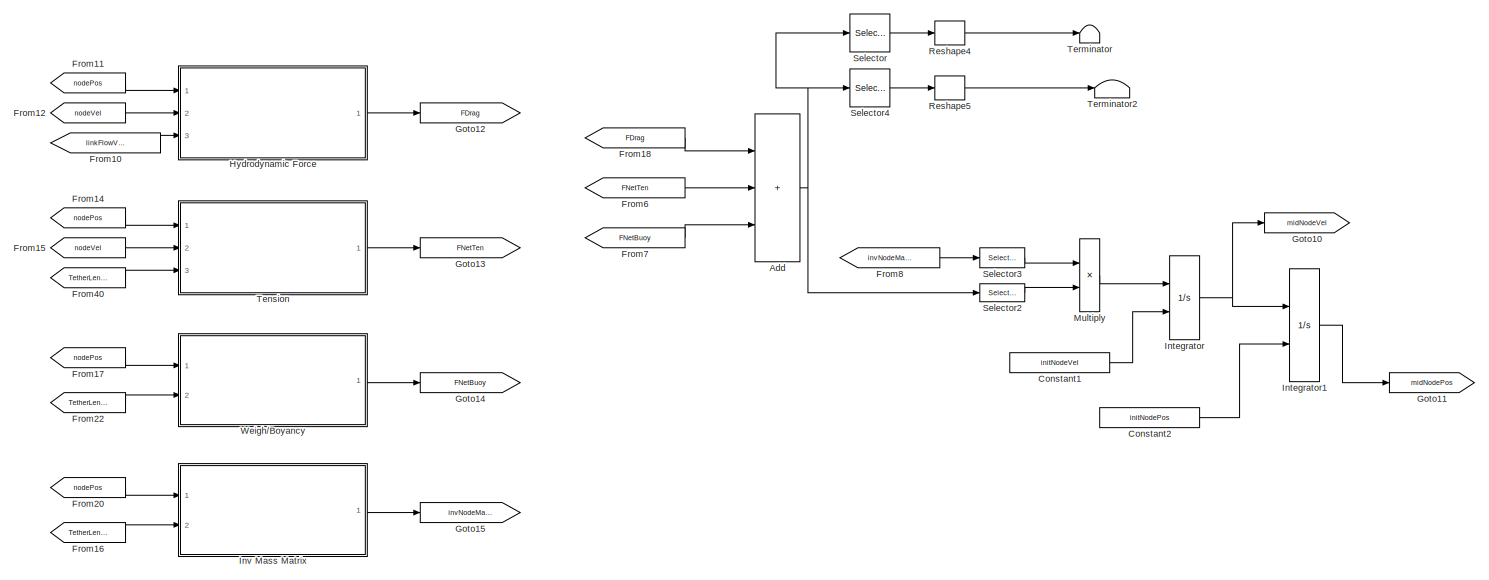
[diagram: tether001/Subsystem1 - part 1/24, top left region]
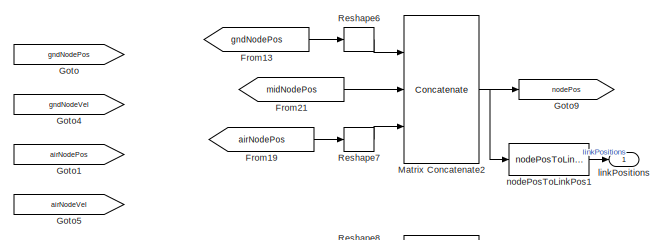
[diagram: tether001/Subsystem1 - part 2/24, top left region]
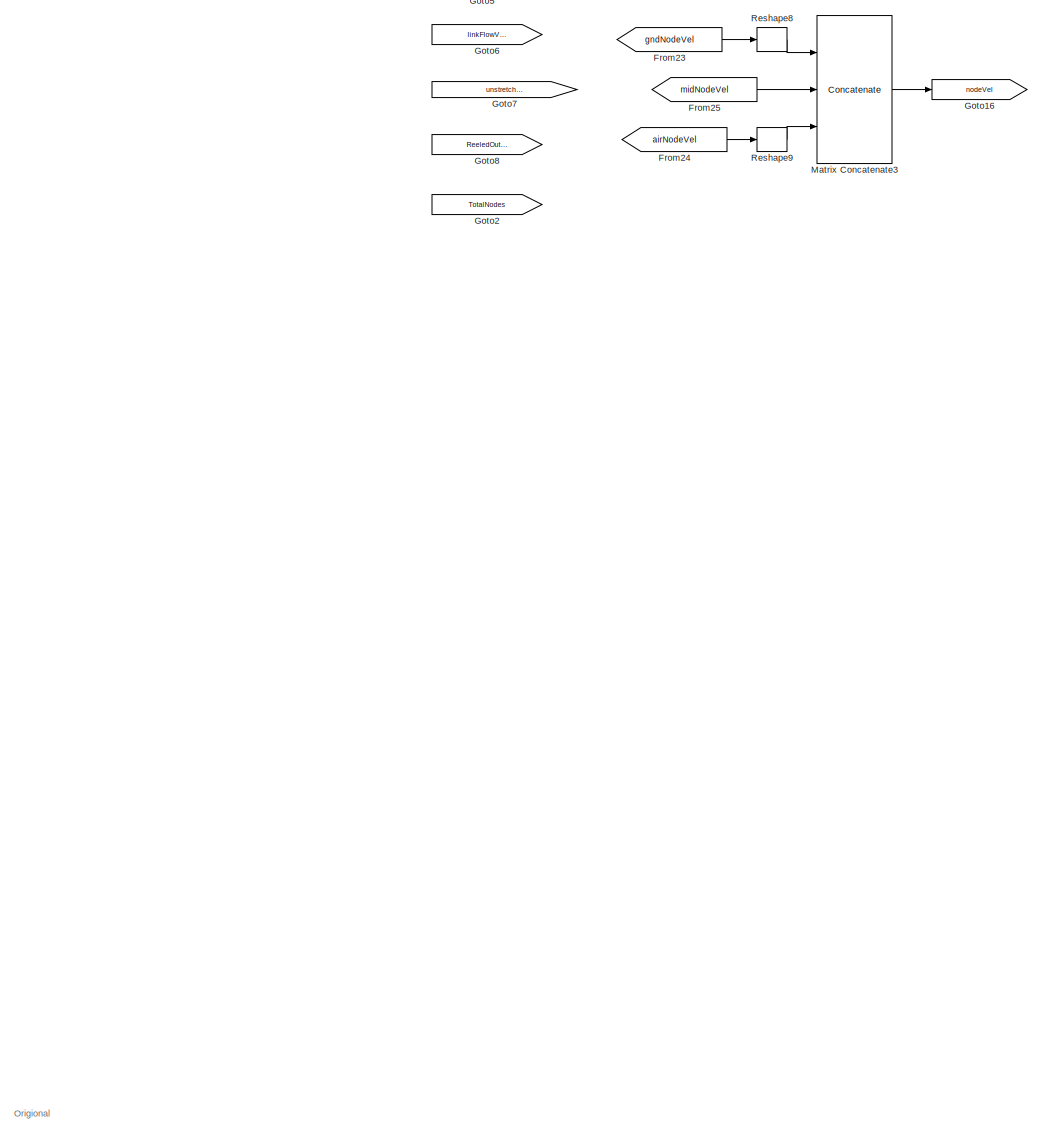
[diagram: tether001/Subsystem1 - part 3/24, top left region]
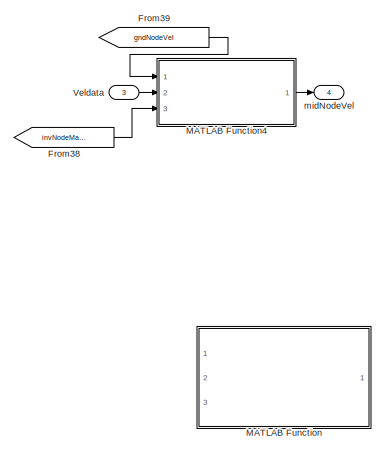
[diagram: tether001/Subsystem1 - part 4/24, top center region]
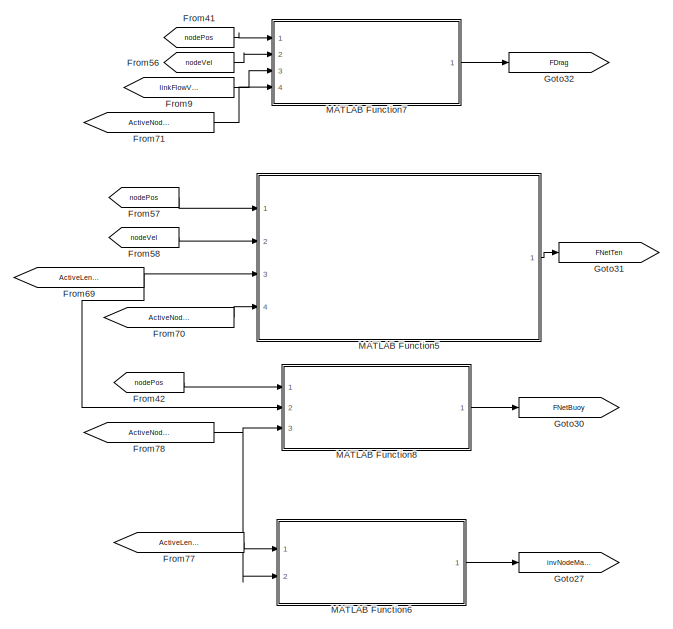
[diagram: tether001/Subsystem1 - part 5/24, top left region]
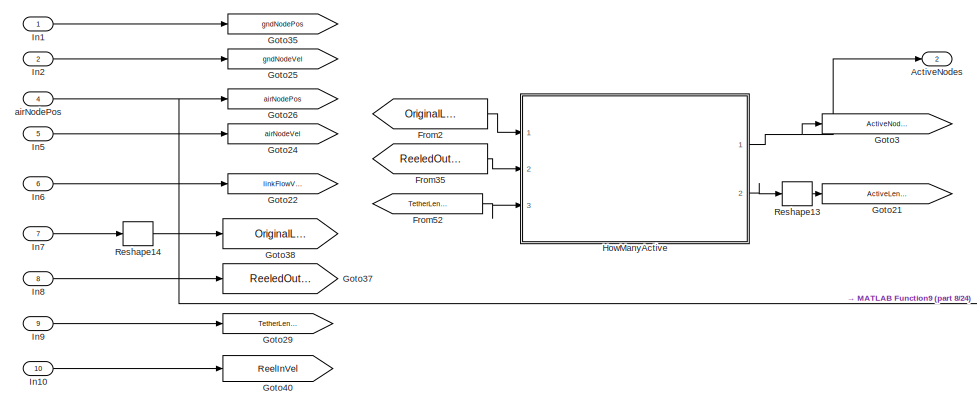
[diagram: tether001/Subsystem1 - part 6/24, top left region]
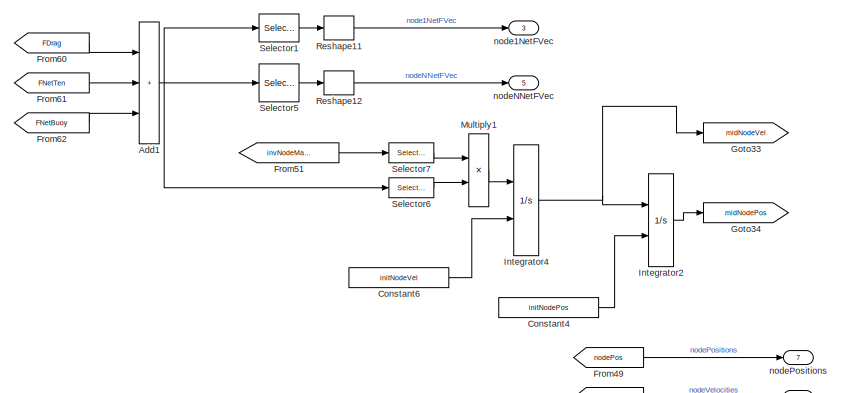
[diagram: tether001/Subsystem1 - part 7/24, top center region]
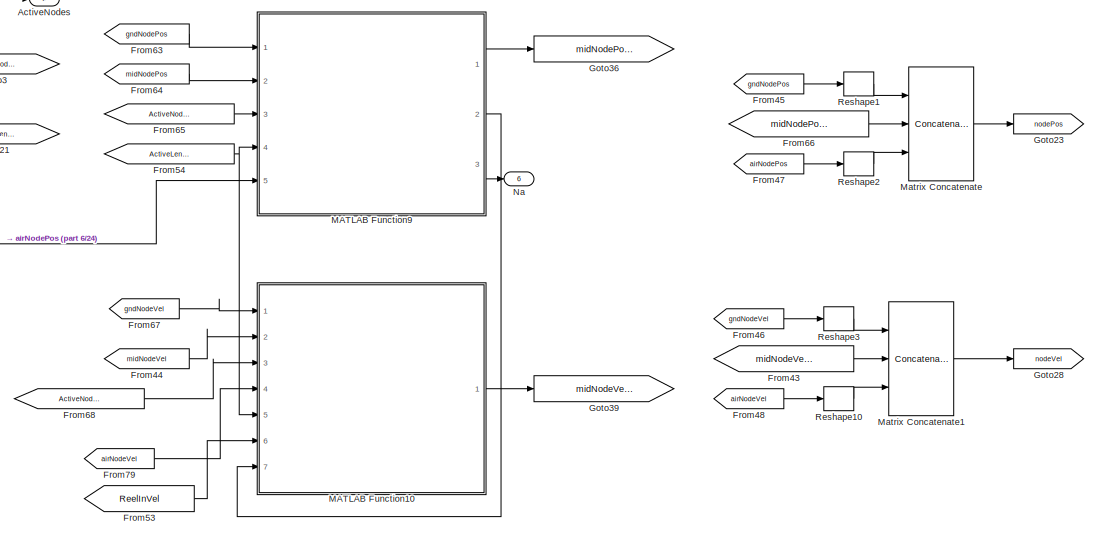
[diagram: tether001/Subsystem1 - part 8/24, top left region]
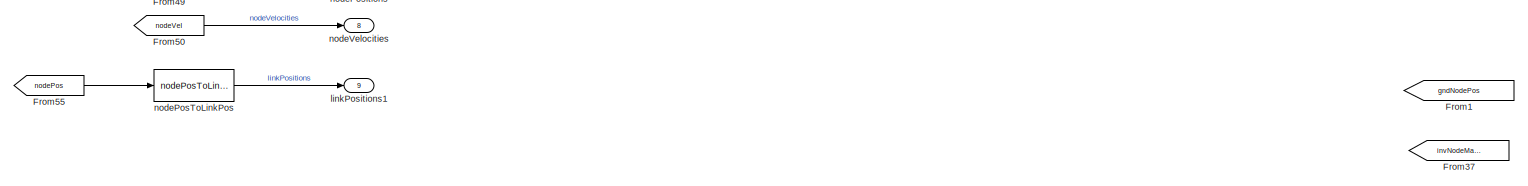
[diagram: tether001/Subsystem1 - part 9/24, top center region]
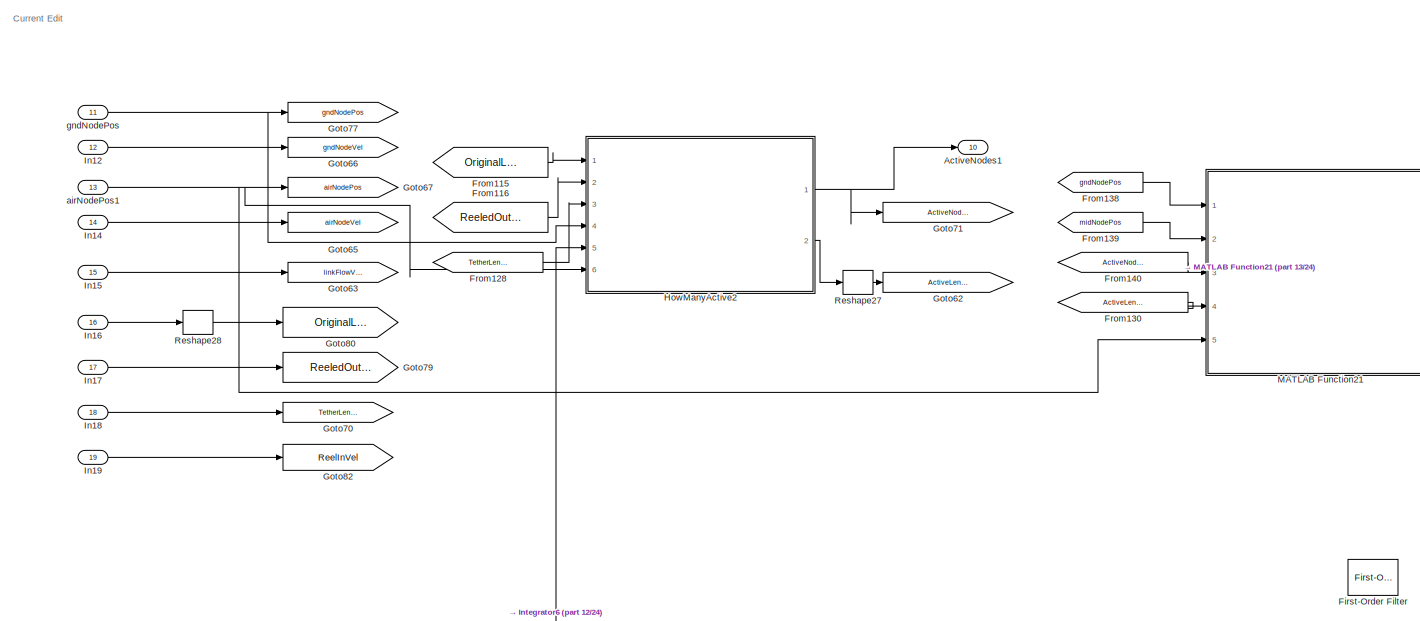
[diagram: tether001/Subsystem1 - part 10/24, top left region]
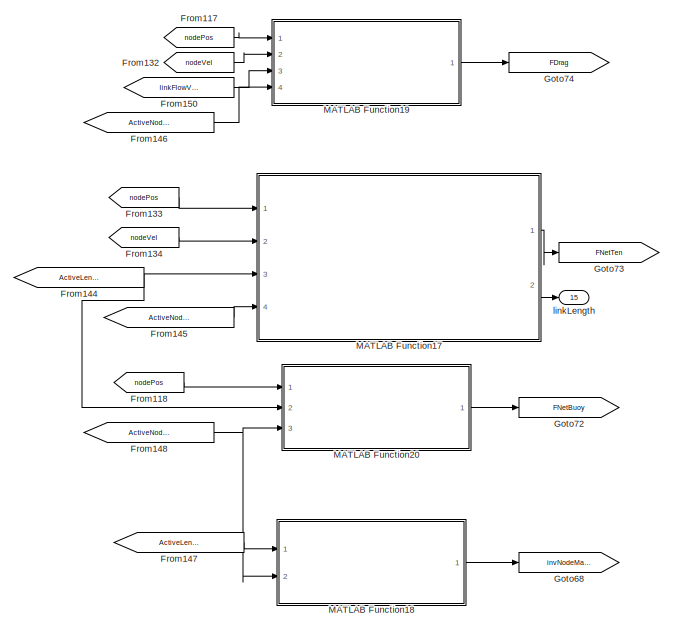
[diagram: tether001/Subsystem1 - part 11/24, top left region]
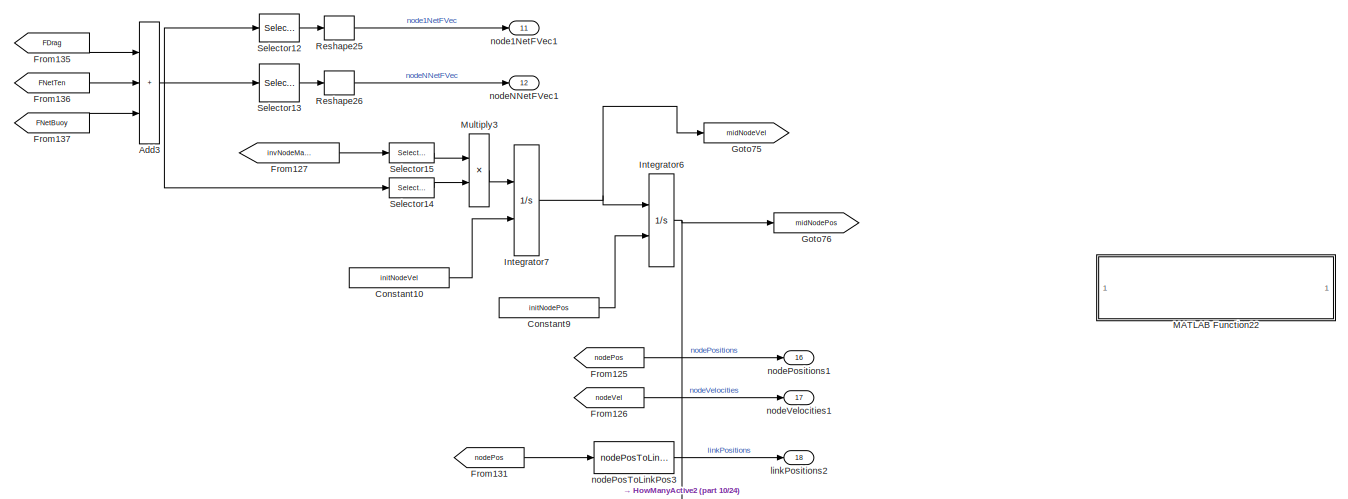
[diagram: tether001/Subsystem1 - part 12/24, top center region]
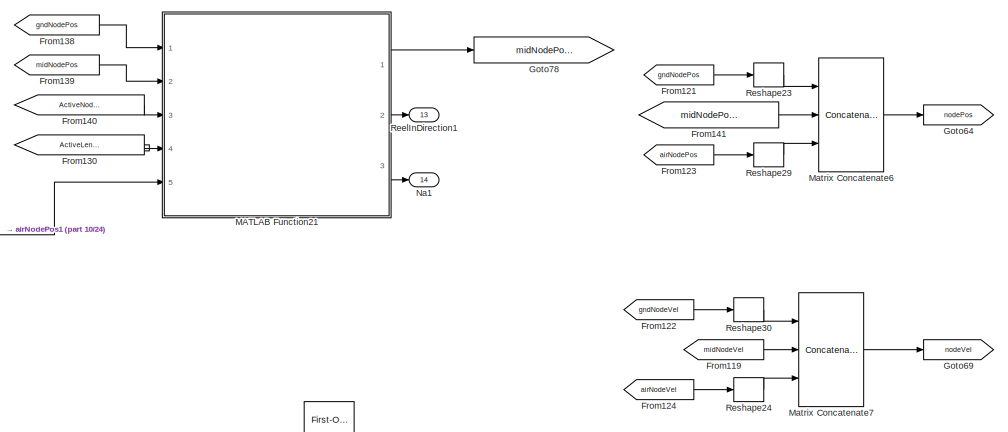
[diagram: tether001/Subsystem1 - part 13/24, top left region]
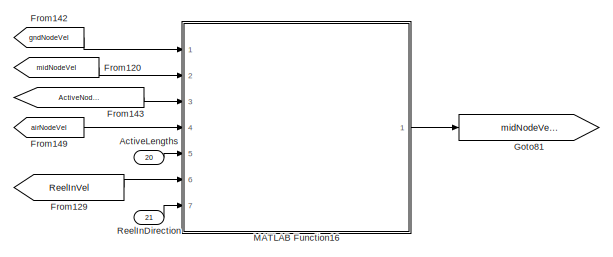
[diagram: tether001/Subsystem1 - part 14/24, top left region]
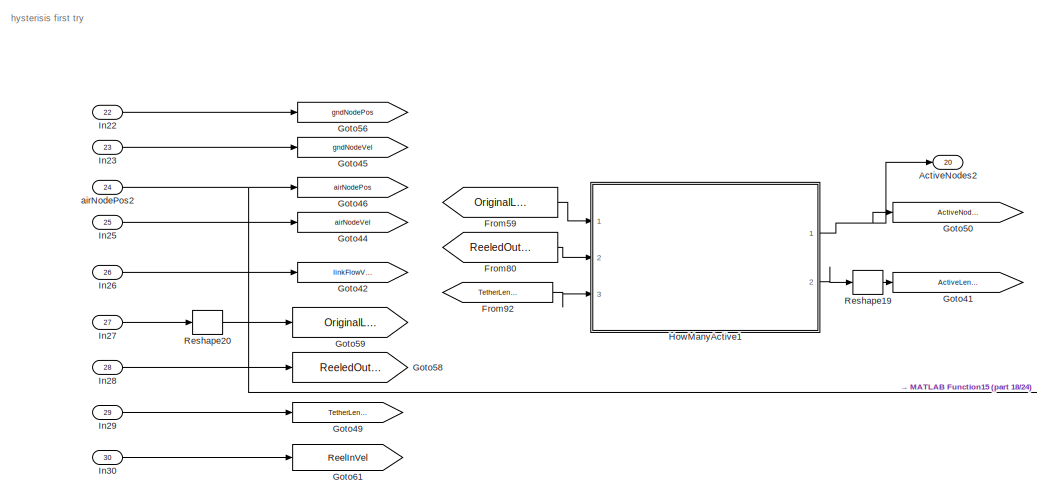
[diagram: tether001/Subsystem1 - part 15/24, middle left region]
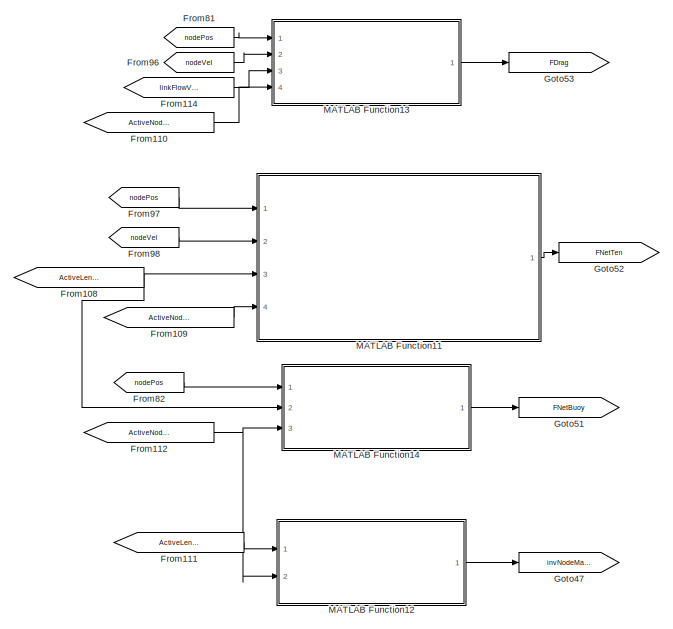
[diagram: tether001/Subsystem1 - part 16/24, middle left region]
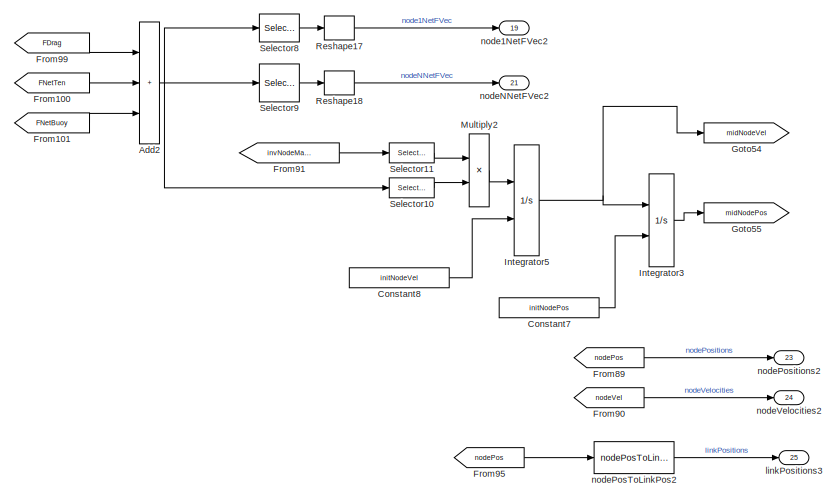
[diagram: tether001/Subsystem1 - part 17/24, central region]
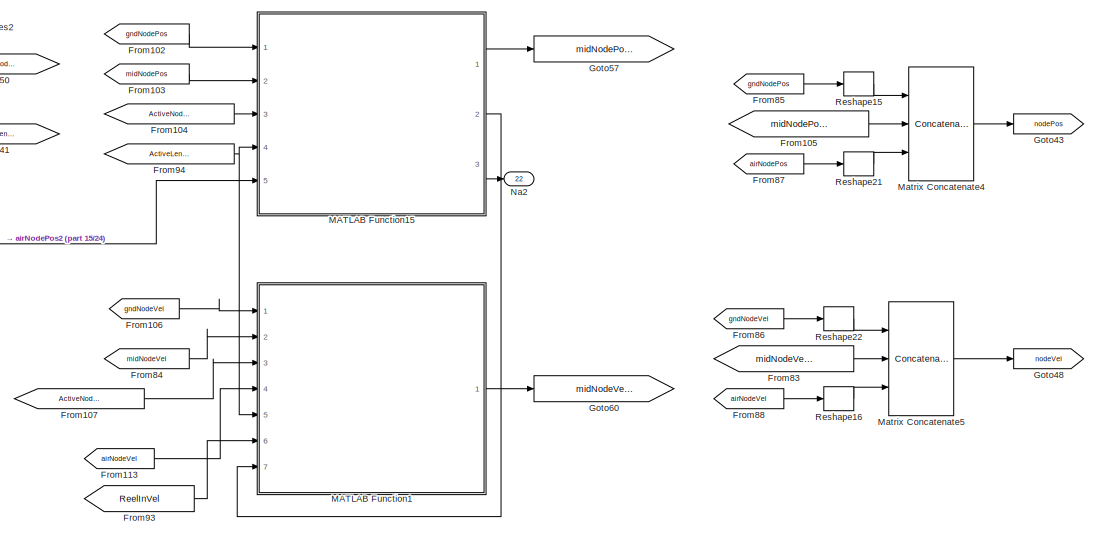
[diagram: tether001/Subsystem1 - part 18/24, middle left region]
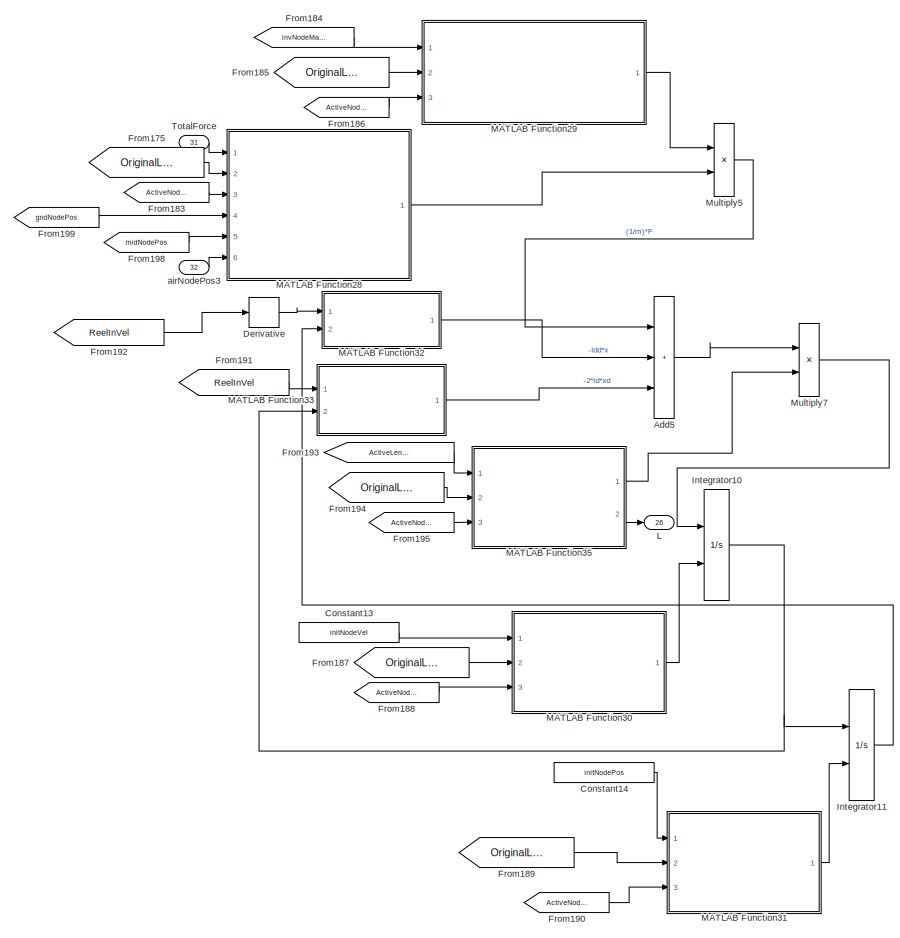
[diagram: tether001/Subsystem1 - part 19/24, middle right region]
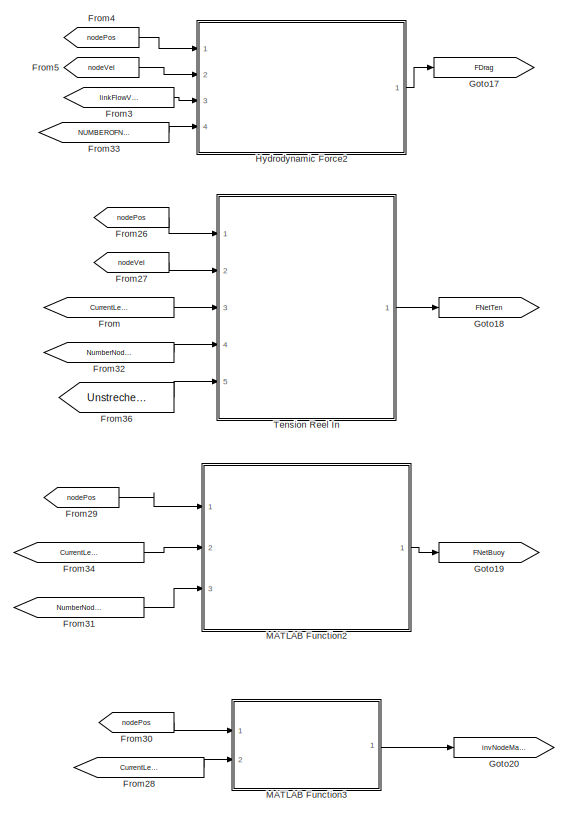
[diagram: tether001/Subsystem1 - part 20/24, middle left region]
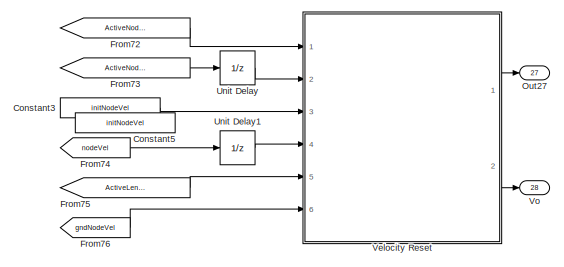
[diagram: tether001/Subsystem1 - part 21/24, central region]
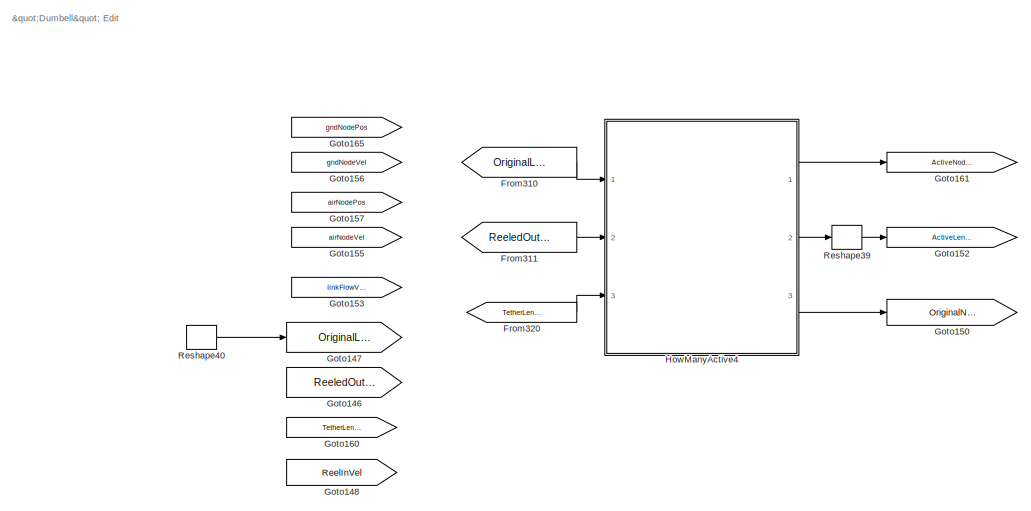
[diagram: tether001/Subsystem1 - part 22/24, bottom center region]
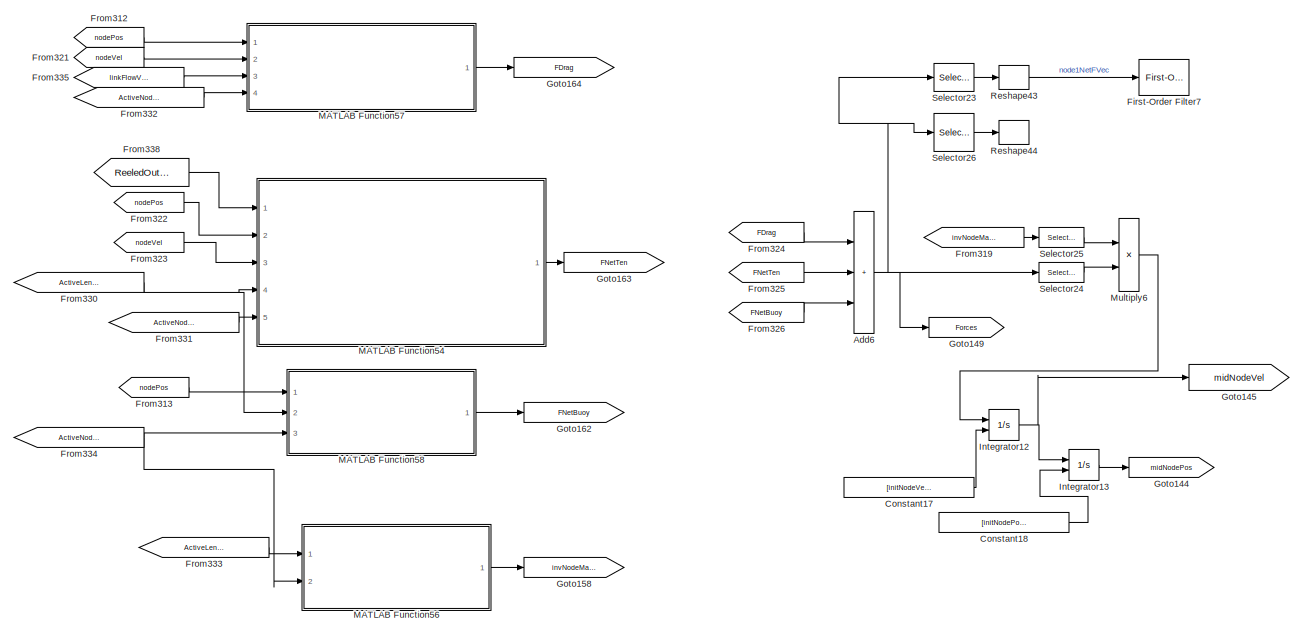
[diagram: tether001/Subsystem1 - part 23/24, bottom right region]
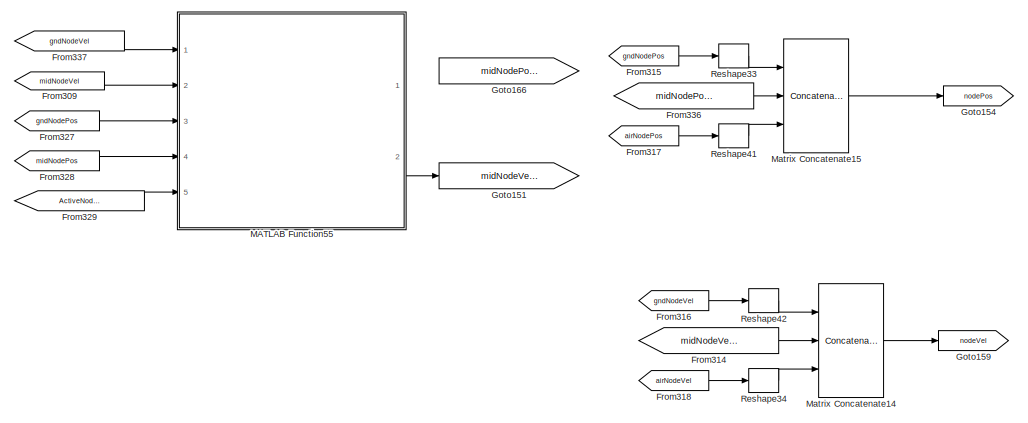
[diagram: tether001/Subsystem1 - part 24/24, bottom right region]
BLOCK [SubSystem] tether001/Subsystem1
  Ports = [32, 28]
  RequestExecContextInheritance = off
BLOCK [Inport] tether001/Subsystem1/ActiveLengths
  Port = 20
BLOCK [Outport] tether001/Subsystem1/ActiveNodes
  Port = 2
BLOCK [Outport] tether001/Subsystem1/ActiveNodes1
  Port = 10
BLOCK [Outport] tether001/Subsystem1/ActiveNodes2
  Port = 20
BLOCK [Sum] tether001/Subsystem1/Add
  Commented = on
  IconShape = rectangular
  Inputs = 3
  Ports = [3, 1]
BLOCK [Sum] tether001/Subsystem1/Add1
  Commented = on
  IconShape = rectangular
  Inputs = 3
  Ports = [3, 1]
BLOCK [Sum] tether001/Subsystem1/Add2
  Commented = on
  IconShape = rectangular
  Inputs = 3
  Ports = [3, 1]
BLOCK [Sum] tether001/Subsystem1/Add3
  Commented = on
  IconShape = rectangular
  Inputs = 3
  Ports = [3, 1]
BLOCK [Sum] tether001/Subsystem1/Add5
  Commented = on
  IconShape = rectangular
  Inputs = 3
  Ports = [3, 1]
BLOCK [Sum] tether001/Subsystem1/Add6
  Commented = on
  IconShape = rectangular
  Inputs = 3
  Ports = [3, 1]
BLOCK [Constant] tether001/Subsystem1/Constant1
  Commented = on
  Value = initNodeVel
BLOCK [Constant] tether001/Subsystem1/Constant10
  Commented = on
  Value = initNodeVel
BLOCK [Constant] tether001/Subsystem1/Constant13
  Commented = on
  Value = initNodeVel
BLOCK [Constant] tether001/Subsystem1/Constant14
  Commented = on
  Value = initNodePos
BLOCK [Constant] tether001/Subsystem1/Constant17
  Commented = on
  Value = [initNodeVel]
BLOCK [Constant] tether001/Subsystem1/Constant18
  Commented = on
  Value = [initNodePos]
BLOCK [Constant] tether001/Subsystem1/Constant2
  Commented = on
  Value = initNodePos
BLOCK [Constant] tether001/Subsystem1/Constant3
  Commented = on
  Value = initNodeVel
BLOCK [Constant] tether001/Subsystem1/Constant4
  Commented = on
  Value = initNodePos
BLOCK [Constant] tether001/Subsystem1/Constant5
  Commented = on
  Value = initNodeVel
BLOCK [Constant] tether001/Subsystem1/Constant6
  Commented = on
  Value = initNodeVel
BLOCK [Constant] tether001/Subsystem1/Constant7
  Commented = on
  Value = initNodePos
BLOCK [Constant] tether001/Subsystem1/Constant8
  Commented = on
  Value = initNodeVel
BLOCK [Constant] tether001/Subsystem1/Constant9
  Commented = on
  Value = initNodePos
BLOCK [Derivative] tether001/Subsystem1/Derivative
  Commented = on
BLOCK [Reference] tether001/Subsystem1/First-Order Filter  REF=spsFirstOrderFilterLib/First-Order
Filter
  Commented = on
  Ports = [1, 1]
  SourceBlock = spsFirstOrderFilterLib/First-Order\nFilter
  SourceProductBaseCode = PS
  SourceType = First-Order Filter
BLOCK [Reference] tether001/Subsystem1/First-Order Filter7  REF=spsFirstOrderFilterLib/First-Order
Filter
  Commented = on
  Ports = [1, 1]
  SourceBlock = spsFirstOrderFilterLib/First-Order\nFilter
  SourceProductBaseCode = PS
  SourceType = First-Order Filter
BLOCK [From] tether001/Subsystem1/From
  Commented = on
  GotoTag = CurrentLengths
BLOCK [From] tether001/Subsystem1/From1
  Commented = on
  GotoTag = gndNodePos
BLOCK [From] tether001/Subsystem1/From10
  Commented = on
  GotoTag = linkFlowVelVecs
BLOCK [From] tether001/Subsystem1/From100
  Commented = on
  GotoTag = FNetTen
BLOCK [From] tether001/Subsystem1/From101
  Commented = on
  GotoTag = FNetBuoy
BLOCK [From] tether001/Subsystem1/From102
  Commented = on
  GotoTag = gndNodePos
BLOCK [From] tether001/Subsystem1/From103
  Commented = on
  GotoTag = midNodePos
BLOCK [From] tether001/Subsystem1/From104
  Commented = on
  GotoTag = ActiveNodes
BLOCK [From] tether001/Subsystem1/From105
  Commented = on
  GotoTag = midNodePosInternal
BLOCK [From] tether001/Subsystem1/From106
  Commented = on
  GotoTag = gndNodeVel
BLOCK [From] tether001/Subsystem1/From107
  Commented = on
  GotoTag = ActiveNodes
BLOCK [From] tether001/Subsystem1/From108
  Commented = on
  GotoTag = ActiveLengths
BLOCK [From] tether001/Subsystem1/From109
  Commented = on
  GotoTag = ActiveNodes
BLOCK [From] tether001/Subsystem1/From11
  Commented = on
  GotoTag = nodePos
BLOCK [From] tether001/Subsystem1/From110
  Commented = on
  GotoTag = ActiveNodes
BLOCK [From] tether001/Subsystem1/From111
  Commented = on
  GotoTag = ActiveLengths
BLOCK [From] tether001/Subsystem1/From112
  Commented = on
  GotoTag = ActiveNodes
BLOCK [From] tether001/Subsystem1/From113
  Commented = on
  GotoTag = airNodeVel
BLOCK [From] tether001/Subsystem1/From114
  Commented = on
  GotoTag = linkFlowVelVecs
BLOCK [From] tether001/Subsystem1/From115
  Commented = on
  GotoTag = OriginalLengths
BLOCK [From] tether001/Subsystem1/From116
  Commented = on
  GotoTag = ReeledOutLength
BLOCK [From] tether001/Subsystem1/From117
  Commented = on
  GotoTag = nodePos
BLOCK [From] tether001/Subsystem1/From118
  Commented = on
  GotoTag = nodePos
BLOCK [From] tether001/Subsystem1/From119
  Commented = on
  GotoTag = midNodeVel
BLOCK [From] tether001/Subsystem1/From12
  Commented = on
  GotoTag = nodeVel
BLOCK [From] tether001/Subsystem1/From120
  Commented = on
  GotoTag = midNodeVel
BLOCK [From] tether001/Subsystem1/From121
  Commented = on
  GotoTag = gndNodePos
BLOCK [From] tether001/Subsystem1/From122
  Commented = on
  GotoTag = gndNodeVel
BLOCK [From] tether001/Subsystem1/From123
  Commented = on
  GotoTag = airNodePos
BLOCK [From] tether001/Subsystem1/From124
  Commented = on
  GotoTag = airNodeVel
BLOCK [From] tether001/Subsystem1/From125
  Commented = on
  GotoTag = nodePos
BLOCK [From] tether001/Subsystem1/From126
  Commented = on
  GotoTag = nodeVel
BLOCK [From] tether001/Subsystem1/From127
  Commented = on
  GotoTag = invNodeMasses
BLOCK [From] tether001/Subsystem1/From128
  Commented = on
  GotoTag = TetherLength
BLOCK [From] tether001/Subsystem1/From129
  Commented = on
  GotoTag = ReelInVel
BLOCK [From] tether001/Subsystem1/From13
  Commented = on
  GotoTag = gndNodePos
BLOCK [From] tether001/Subsystem1/From130
  Commented = on
  GotoTag = ActiveLengths
BLOCK [From] tether001/Subsystem1/From131
  Commented = on
  GotoTag = nodePos
BLOCK [From] tether001/Subsystem1/From132
  Commented = on
  GotoTag = nodeVel
BLOCK [From] tether001/Subsystem1/From133
  Commented = on
  GotoTag = nodePos
BLOCK [From] tether001/Subsystem1/From134
  Commented = on
  GotoTag = nodeVel
BLOCK [From] tether001/Subsystem1/From135
  Commented = on
  GotoTag = FDrag
BLOCK [From] tether001/Subsystem1/From136
  Commented = on
  GotoTag = FNetTen
BLOCK [From] tether001/Subsystem1/From137
  Commented = on
  GotoTag = FNetBuoy
BLOCK [From] tether001/Subsystem1/From138
  Commented = on
  GotoTag = gndNodePos
BLOCK [From] tether001/Subsystem1/From139
  Commented = on
  GotoTag = midNodePos
BLOCK [From] tether001/Subsystem1/From14
  Commented = on
  GotoTag = nodePos
BLOCK [From] tether001/Subsystem1/From140
  Commented = on
  GotoTag = ActiveNodes
BLOCK [From] tether001/Subsystem1/From141
  Commented = on
  GotoTag = midNodePosInternal
BLOCK [From] tether001/Subsystem1/From142
  Commented = on
  GotoTag = gndNodeVel
BLOCK [From] tether001/Subsystem1/From143
  Commented = on
  GotoTag = ActiveNodes
BLOCK [From] tether001/Subsystem1/From144
  Commented = on
  GotoTag = ActiveLengths
BLOCK [From] tether001/Subsystem1/From145
  Commented = on
  GotoTag = ActiveNodes
BLOCK [From] tether001/Subsystem1/From146
  Commented = on
  GotoTag = ActiveNodes
BLOCK [From] tether001/Subsystem1/From147
  Commented = on
  GotoTag = ActiveLengths
BLOCK [From] tether001/Subsystem1/From148
  Commented = on
  GotoTag = ActiveNodes
BLOCK [From] tether001/Subsystem1/From149
  Commented = on
  GotoTag = airNodeVel
BLOCK [From] tether001/Subsystem1/From15
  Commented = on
  GotoTag = nodeVel
BLOCK [From] tether001/Subsystem1/From150
  Commented = on
  GotoTag = linkFlowVelVecs
BLOCK [From] tether001/Subsystem1/From16
  Commented = on
  GotoTag = TetherLength
BLOCK [From] tether001/Subsystem1/From17
  Commented = on
  GotoTag = nodePos
BLOCK [From] tether001/Subsystem1/From175
  Commented = on
  GotoTag = OriginalLengths
BLOCK [From] tether001/Subsystem1/From18
  Commented = on
  GotoTag = FDrag
BLOCK [From] tether001/Subsystem1/From183
  Commented = on
  GotoTag = ActiveNodes
BLOCK [From] tether001/Subsystem1/From184
  Commented = on
  GotoTag = invNodeMasses
BLOCK [From] tether001/Subsystem1/From185
  Commented = on
  GotoTag = OriginalLengths
BLOCK [From] tether001/Subsystem1/From186
  Commented = on
  GotoTag = ActiveNodes
BLOCK [From] tether001/Subsystem1/From187
  Commented = on
  GotoTag = OriginalLengths
BLOCK [From] tether001/Subsystem1/From188
  Commented = on
  GotoTag = ActiveNodes
BLOCK [From] tether001/Subsystem1/From189
  Commented = on
  GotoTag = OriginalLengths
BLOCK [From] tether001/Subsystem1/From19
  Commented = on
  GotoTag = airNodePos
BLOCK [From] tether001/Subsystem1/From190
  Commented = on
  GotoTag = ActiveNodes
BLOCK [From] tether001/Subsystem1/From191
  Commented = on
  GotoTag = ReelInVel
BLOCK [From] tether001/Subsystem1/From192
  Commented = on
  GotoTag = ReelInVel
BLOCK [From] tether001/Subsystem1/From193
  Commented = on
  GotoTag = ActiveLengths
BLOCK [From] tether001/Subsystem1/From194
  Commented = on
  GotoTag = OriginalLengths
BLOCK [From] tether001/Subsystem1/From195
  Commented = on
  GotoTag = ActiveNodes
BLOCK [From] tether001/Subsystem1/From198
  Commented = on
  GotoTag = midNodePos
BLOCK [From] tether001/Subsystem1/From199
  Commented = on
  GotoTag = gndNodePos
BLOCK [From] tether001/Subsystem1/From2
  Commented = on
  GotoTag = OriginalLengths
BLOCK [From] tether001/Subsystem1/From20
  Commented = on
  GotoTag = nodePos
BLOCK [From] tether001/Subsystem1/From21
  Commented = on
  GotoTag = midNodePos
BLOCK [From] tether001/Subsystem1/From22
  Commented = on
  GotoTag = TetherLength
BLOCK [From] tether001/Subsystem1/From23
  Commented = on
  GotoTag = gndNodeVel
BLOCK [From] tether001/Subsystem1/From24
  Commented = on
  GotoTag = airNodeVel
BLOCK [From] tether001/Subsystem1/From25
  Commented = on
  GotoTag = midNodeVel
BLOCK [From] tether001/Subsystem1/From26
  Commented = on
  GotoTag = nodePos
BLOCK [From] tether001/Subsystem1/From27
  Commented = on
  GotoTag = nodeVel
BLOCK [From] tether001/Subsystem1/From28
  Commented = on
  GotoTag = CurrentLengths
BLOCK [From] tether001/Subsystem1/From29
  Commented = on
  GotoTag = nodePos
BLOCK [From] tether001/Subsystem1/From3
  Commented = on
  GotoTag = linkFlowVelVecs
BLOCK [From] tether001/Subsystem1/From30
  Commented = on
  GotoTag = nodePos
BLOCK [From] tether001/Subsystem1/From309
  Commented = on
  GotoTag = midNodeVel
BLOCK [From] tether001/Subsystem1/From31
  Commented = on
  GotoTag = NumberNodesCurrent
BLOCK [From] tether001/Subsystem1/From310
  Commented = on
  GotoTag = OriginalLengths
BLOCK [From] tether001/Subsystem1/From311
  Commented = on
  GotoTag = ReeledOutLength
BLOCK [From] tether001/Subsystem1/From312
  Commented = on
  GotoTag = nodePos
BLOCK [From] tether001/Subsystem1/From313
  Commented = on
  GotoTag = nodePos
BLOCK [From] tether001/Subsystem1/From314
  Commented = on
  GotoTag = midNodeVelInternal
BLOCK [From] tether001/Subsystem1/From315
  Commented = on
  GotoTag = gndNodePos
BLOCK [From] tether001/Subsystem1/From316
  Commented = on
  GotoTag = gndNodeVel
BLOCK [From] tether001/Subsystem1/From317
  Commented = on
  GotoTag = airNodePos
BLOCK [From] tether001/Subsystem1/From318
  Commented = on
  GotoTag = airNodeVel
BLOCK [From] tether001/Subsystem1/From319
  Commented = on
  GotoTag = invNodeMasses
BLOCK [From] tether001/Subsystem1/From32
  Commented = on
  GotoTag = NumberNodesActive
BLOCK [From] tether001/Subsystem1/From320
  Commented = on
  GotoTag = TetherLength
BLOCK [From] tether001/Subsystem1/From321
  Commented = on
  GotoTag = nodeVel
BLOCK [From] tether001/Subsystem1/From322
  Commented = on
  GotoTag = nodePos
BLOCK [From] tether001/Subsystem1/From323
  Commented = on
  GotoTag = nodeVel
BLOCK [From] tether001/Subsystem1/From324
  Commented = on
  GotoTag = FDrag
BLOCK [From] tether001/Subsystem1/From325
  Commented = on
  GotoTag = FNetTen
BLOCK [From] tether001/Subsystem1/From326
  Commented = on
  GotoTag = FNetBuoy
BLOCK [From] tether001/Subsystem1/From327
  Commented = on
  GotoTag = gndNodePos
BLOCK [From] tether001/Subsystem1/From328
  Commented = on
  GotoTag = midNodePos
BLOCK [From] tether001/Subsystem1/From329
  Commented = on
  GotoTag = ActiveNodes
BLOCK [From] tether001/Subsystem1/From33
  Commented = on
  GotoTag = NUMBEROFNODES
BLOCK [From] tether001/Subsystem1/From330
  Commented = on
  GotoTag = ActiveLengths
BLOCK [From] tether001/Subsystem1/From331
  Commented = on
  GotoTag = ActiveNodes
BLOCK [From] tether001/Subsystem1/From332
  Commented = on
  GotoTag = ActiveNodes
BLOCK [From] tether001/Subsystem1/From333
  Commented = on
  GotoTag = ActiveLengths
BLOCK [From] tether001/Subsystem1/From334
  Commented = on
  GotoTag = ActiveNodes
BLOCK [From] tether001/Subsystem1/From335
  Commented = on
  GotoTag = linkFlowVelVecs
BLOCK [From] tether001/Subsystem1/From336
  Commented = on
  GotoTag = midNodePosInternal
BLOCK [From] tether001/Subsystem1/From337
  Commented = on
  GotoTag = gndNodeVel
BLOCK [From] tether001/Subsystem1/From338
  Commented = on
  GotoTag = ReeledOutLength
BLOCK [From] tether001/Subsystem1/From34
  Commented = on
  GotoTag = CurrentLengths
BLOCK [From] tether001/Subsystem1/From35
  Commented = on
  GotoTag = ReeledOutLength
BLOCK [From] tether001/Subsystem1/From36
  Commented = on
  GotoTag = UnstrechedLengths
BLOCK [From] tether001/Subsystem1/From37
  Commented = on
  GotoTag = invNodeMasses
BLOCK [From] tether001/Subsystem1/From38
  Commented = on
  GotoTag = invNodeMasses
BLOCK [From] tether001/Subsystem1/From39
  Commented = on
  GotoTag = gndNodeVel
BLOCK [From] tether001/Subsystem1/From4
  Commented = on
  GotoTag = nodePos
BLOCK [From] tether001/Subsystem1/From40
  Commented = on
  GotoTag = TetherLength
BLOCK [From] tether001/Subsystem1/From41
  Commented = on
  GotoTag = nodePos
BLOCK [From] tether001/Subsystem1/From42
  Commented = on
  GotoTag = nodePos
BLOCK [From] tether001/Subsystem1/From43
  Commented = on
  GotoTag = midNodeVelInternal
BLOCK [From] tether001/Subsystem1/From44
  Commented = on
  GotoTag = midNodeVel
BLOCK [From] tether001/Subsystem1/From45
  Commented = on
  GotoTag = gndNodePos
BLOCK [From] tether001/Subsystem1/From46
  Commented = on
  GotoTag = gndNodeVel
BLOCK [From] tether001/Subsystem1/From47
  Commented = on
  GotoTag = airNodePos
BLOCK [From] tether001/Subsystem1/From48
  Commented = on
  GotoTag = airNodeVel
BLOCK [From] tether001/Subsystem1/From49
  Commented = on
  GotoTag = nodePos
BLOCK [From] tether001/Subsystem1/From5
  Commented = on
  GotoTag = nodeVel
BLOCK [From] tether001/Subsystem1/From50
  Commented = on
  GotoTag = nodeVel
BLOCK [From] tether001/Subsystem1/From51
  Commented = on
  GotoTag = invNodeMasses
BLOCK [From] tether001/Subsystem1/From52
  Commented = on
  GotoTag = TetherLength
BLOCK [From] tether001/Subsystem1/From53
  Commented = on
  GotoTag = ReelInVel
BLOCK [From] tether001/Subsystem1/From54
  Commented = on
  GotoTag = ActiveLengths
BLOCK [From] tether001/Subsystem1/From55
  Commented = on
  GotoTag = nodePos
BLOCK [From] tether001/Subsystem1/From56
  Commented = on
  GotoTag = nodeVel
BLOCK [From] tether001/Subsystem1/From57
  Commented = on
  GotoTag = nodePos
BLOCK [From] tether001/Subsystem1/From58
  Commented = on
  GotoTag = nodeVel
BLOCK [From] tether001/Subsystem1/From59
  Commented = on
  GotoTag = OriginalLengths
BLOCK [From] tether001/Subsystem1/From6
  Commented = on
  GotoTag = FNetTen
BLOCK [From] tether001/Subsystem1/From60
  Commented = on
  GotoTag = FDrag
BLOCK [From] tether001/Subsystem1/From61
  Commented = on
  GotoTag = FNetTen
BLOCK [From] tether001/Subsystem1/From62
  Commented = on
  GotoTag = FNetBuoy
BLOCK [From] tether001/Subsystem1/From63
  Commented = on
  GotoTag = gndNodePos
BLOCK [From] tether001/Subsystem1/From64
  Commented = on
  GotoTag = midNodePos
BLOCK [From] tether001/Subsystem1/From65
  Commented = on
  GotoTag = ActiveNodes
BLOCK [From] tether001/Subsystem1/From66
  Commented = on
  GotoTag = midNodePosInternal
BLOCK [From] tether001/Subsystem1/From67
  Commented = on
  GotoTag = gndNodeVel
BLOCK [From] tether001/Subsystem1/From68
  Commented = on
  GotoTag = ActiveNodes
BLOCK [From] tether001/Subsystem1/From69
  Commented = on
  GotoTag = ActiveLengths
BLOCK [From] tether001/Subsystem1/From7
  Commented = on
  GotoTag = FNetBuoy
BLOCK [From] tether001/Subsystem1/From70
  Commented = on
  GotoTag = ActiveNodes
BLOCK [From] tether001/Subsystem1/From71
  Commented = on
  GotoTag = ActiveNodes
BLOCK [From] tether001/Subsystem1/From72
  Commented = on
  GotoTag = ActiveNodes
BLOCK [From] tether001/Subsystem1/From73
  Commented = on
  GotoTag = ActiveNodes
BLOCK [From] tether001/Subsystem1/From74
  Commented = on
  GotoTag = nodeVel
BLOCK [From] tether001/Subsystem1/From75
  Commented = on
  GotoTag = ActiveLengths
BLOCK [From] tether001/Subsystem1/From76
  Commented = on
  GotoTag = gndNodeVel
BLOCK [From] tether001/Subsystem1/From77
  Commented = on
  GotoTag = ActiveLengths
BLOCK [From] tether001/Subsystem1/From78
  Commented = on
  GotoTag = ActiveNodes
BLOCK [From] tether001/Subsystem1/From79
  Commented = on
  GotoTag = airNodeVel
BLOCK [From] tether001/Subsystem1/From8
  Commented = on
  GotoTag = invNodeMasses
BLOCK [From] tether001/Subsystem1/From80
  Commented = on
  GotoTag = ReeledOutLength
BLOCK [From] tether001/Subsystem1/From81
  Commented = on
  GotoTag = nodePos
BLOCK [From] tether001/Subsystem1/From82
  Commented = on
  GotoTag = nodePos
BLOCK [From] tether001/Subsystem1/From83
  Commented = on
  GotoTag = midNodeVelInternal
BLOCK [From] tether001/Subsystem1/From84
  Commented = on
  GotoTag = midNodeVel
BLOCK [From] tether001/Subsystem1/From85
  Commented = on
  GotoTag = gndNodePos
BLOCK [From] tether001/Subsystem1/From86
  Commented = on
  GotoTag = gndNodeVel
BLOCK [From] tether001/Subsystem1/From87
  Commented = on
  GotoTag = airNodePos
BLOCK [From] tether001/Subsystem1/From88
  Commented = on
  GotoTag = airNodeVel
BLOCK [From] tether001/Subsystem1/From89
  Commented = on
  GotoTag = nodePos
BLOCK [From] tether001/Subsystem1/From9
  Commented = on
  GotoTag = linkFlowVelVecs
BLOCK [From] tether001/Subsystem1/From90
  Commented = on
  GotoTag = nodeVel
BLOCK [From] tether001/Subsystem1/From91
  Commented = on
  GotoTag = invNodeMasses
BLOCK [From] tether001/Subsystem1/From92
  Commented = on
  GotoTag = TetherLength
BLOCK [From] tether001/Subsystem1/From93
  Commented = on
  GotoTag = ReelInVel
BLOCK [From] tether001/Subsystem1/From94
  Commented = on
  GotoTag = ActiveLengths
BLOCK [From] tether001/Subsystem1/From95
  Commented = on
  GotoTag = nodePos
BLOCK [From] tether001/Subsystem1/From96
  Commented = on
  GotoTag = nodeVel
BLOCK [From] tether001/Subsystem1/From97
  Commented = on
  GotoTag = nodePos
BLOCK [From] tether001/Subsystem1/From98
  Commented = on
  GotoTag = nodeVel
BLOCK [From] tether001/Subsystem1/From99
  Commented = on
  GotoTag = FDrag
BLOCK [Goto] tether001/Subsystem1/Goto
  Commented = on
  GotoTag = gndNodePos
BLOCK [Goto] tether001/Subsystem1/Goto1
  Commented = on
  GotoTag = airNodePos
BLOCK [Goto] tether001/Subsystem1/Goto10
  Commented = on
  GotoTag = midNodeVel
BLOCK [Goto] tether001/Subsystem1/Goto11
  Commented = on
  GotoTag = midNodePos
BLOCK [Goto] tether001/Subsystem1/Goto12
  Commented = on
  GotoTag = FDrag
BLOCK [Goto] tether001/Subsystem1/Goto13
  Commented = on
  GotoTag = FNetTen
BLOCK [Goto] tether001/Subsystem1/Goto14
  Commented = on
  GotoTag = FNetBuoy
BLOCK [Goto] tether001/Subsystem1/Goto144
  Commented = on
  GotoTag = midNodePos
BLOCK [Goto] tether001/Subsystem1/Goto145
  Commented = on
  GotoTag = midNodeVel
BLOCK [Goto] tether001/Subsystem1/Goto146
  Commented = on
  GotoTag = ReeledOutLength
BLOCK [Goto] tether001/Subsystem1/Goto147
  Commented = on
  GotoTag = OriginalLengths
BLOCK [Goto] tether001/Subsystem1/Goto148
  Commented = on
  GotoTag = ReelInVel
BLOCK [Goto] tether001/Subsystem1/Goto149
  Commented = on
  GotoTag = Forces
BLOCK [Goto] tether001/Subsystem1/Goto15
  Commented = on
  GotoTag = invNodeMasses
BLOCK [Goto] tether001/Subsystem1/Goto150
  Commented = on
  GotoTag = OriginalNodes
BLOCK [Goto] tether001/Subsystem1/Goto151
  Commented = on
  GotoTag = midNodeVelInternal
BLOCK [Goto] tether001/Subsystem1/Goto152
  Commented = on
  GotoTag = ActiveLengths
BLOCK [Goto] tether001/Subsystem1/Goto153
  Commented = on
  GotoTag = linkFlowVelVecs
BLOCK [Goto] tether001/Subsystem1/Goto154
  Commented = on
  GotoTag = nodePos
BLOCK [Goto] tether001/Subsystem1/Goto155
  Commented = on
  GotoTag = airNodeVel
BLOCK [Goto] tether001/Subsystem1/Goto156
  Commented = on
  GotoTag = gndNodeVel
BLOCK [Goto] tether001/Subsystem1/Goto157
  Commented = on
  GotoTag = airNodePos
BLOCK [Goto] tether001/Subsystem1/Goto158
  Commented = on
  GotoTag = invNodeMasses
BLOCK [Goto] tether001/Subsystem1/Goto159
  Commented = on
  GotoTag = nodeVel
BLOCK [Goto] tether001/Subsystem1/Goto16
  Commented = on
  GotoTag = nodeVel
BLOCK [Goto] tether001/Subsystem1/Goto160
  Commented = on
  GotoTag = TetherLength
BLOCK [Goto] tether001/Subsystem1/Goto161
  Commented = on
  GotoTag = ActiveNodes
BLOCK [Goto] tether001/Subsystem1/Goto162
  Commented = on
  GotoTag = FNetBuoy
BLOCK [Goto] tether001/Subsystem1/Goto163
  Commented = on
  GotoTag = FNetTen
BLOCK [Goto] tether001/Subsystem1/Goto164
  Commented = on
  GotoTag = FDrag
BLOCK [Goto] tether001/Subsystem1/Goto165
  Commented = on
  GotoTag = gndNodePos
BLOCK [Goto] tether001/Subsystem1/Goto166
  Commented = on
  GotoTag = midNodePosInternal
BLOCK [Goto] tether001/Subsystem1/Goto17
  Commented = on
  GotoTag = FDrag
BLOCK [Goto] tether001/Subsystem1/Goto18
  Commented = on
  GotoTag = FNetTen
BLOCK [Goto] tether001/Subsystem1/Goto19
  Commented = on
  GotoTag = FNetBuoy
BLOCK [Goto] tether001/Subsystem1/Goto2
  Commented = on
  GotoTag = TotalNodes
BLOCK [Goto] tether001/Subsystem1/Goto20
  Commented = on
  GotoTag = invNodeMasses
BLOCK [Goto] tether001/Subsystem1/Goto21
  Commented = on
  GotoTag = ActiveLengths
BLOCK [Goto] tether001/Subsystem1/Goto22
  Commented = on
  GotoTag = linkFlowVelVecs
BLOCK [Goto] tether001/Subsystem1/Goto23
  Commented = on
  GotoTag = nodePos
BLOCK [Goto] tether001/Subsystem1/Goto24
  Commented = on
  GotoTag = airNodeVel
BLOCK [Goto] tether001/Subsystem1/Goto25
  Commented = on
  GotoTag = gndNodeVel
BLOCK [Goto] tether001/Subsystem1/Goto26
  Commented = on
  GotoTag = airNodePos
BLOCK [Goto] tether001/Subsystem1/Goto27
  Commented = on
  GotoTag = invNodeMasses
BLOCK [Goto] tether001/Subsystem1/Goto28
  Commented = on
  GotoTag = nodeVel
BLOCK [Goto] tether001/Subsystem1/Goto29
  Commented = on
  GotoTag = TetherLength
BLOCK [Goto] tether001/Subsystem1/Goto3
  Commented = on
  GotoTag = ActiveNodes
BLOCK [Goto] tether001/Subsystem1/Goto30
  Commented = on
  GotoTag = FNetBuoy
BLOCK [Goto] tether001/Subsystem1/Goto31
  Commented = on
  GotoTag = FNetTen
BLOCK [Goto] tether001/Subsystem1/Goto32
  Commented = on
  GotoTag = FDrag
BLOCK [Goto] tether001/Subsystem1/Goto33
  Commented = on
  GotoTag = midNodeVel
BLOCK [Goto] tether001/Subsystem1/Goto34
  Commented = on
  GotoTag = midNodePos
BLOCK [Goto] tether001/Subsystem1/Goto35
  Commented = on
  GotoTag = gndNodePos
BLOCK [Goto] tether001/Subsystem1/Goto36
  Commented = on
  GotoTag = midNodePosInternal
BLOCK [Goto] tether001/Subsystem1/Goto37
  Commented = on
  GotoTag = ReeledOutLength
BLOCK [Goto] tether001/Subsystem1/Goto38
  Commented = on
  GotoTag = OriginalLengths
BLOCK [Goto] tether001/Subsystem1/Goto39
  Commented = on
  GotoTag = midNodeVelInternal
BLOCK [Goto] tether001/Subsystem1/Goto4
  Commented = on
  GotoTag = gndNodeVel
BLOCK [Goto] tether001/Subsystem1/Goto40
  Commented = on
  GotoTag = ReelInVel
BLOCK [Goto] tether001/Subsystem1/Goto41
  Commented = on
  GotoTag = ActiveLengths
BLOCK [Goto] tether001/Subsystem1/Goto42
  Commented = on
  GotoTag = linkFlowVelVecs
BLOCK [Goto] tether001/Subsystem1/Goto43
  Commented = on
  GotoTag = nodePos
BLOCK [Goto] tether001/Subsystem1/Goto44
  Commented = on
  GotoTag = airNodeVel
BLOCK [Goto] tether001/Subsystem1/Goto45
  Commented = on
  GotoTag = gndNodeVel
BLOCK [Goto] tether001/Subsystem1/Goto46
  Commented = on
  GotoTag = airNodePos
BLOCK [Goto] tether001/Subsystem1/Goto47
  Commented = on
  GotoTag = invNodeMasses
BLOCK [Goto] tether001/Subsystem1/Goto48
  Commented = on
  GotoTag = nodeVel
BLOCK [Goto] tether001/Subsystem1/Goto49
  Commented = on
  GotoTag = TetherLength
BLOCK [Goto] tether001/Subsystem1/Goto5
  Commented = on
  GotoTag = airNodeVel
BLOCK [Goto] tether001/Subsystem1/Goto50
  Commented = on
  GotoTag = ActiveNodes
BLOCK [Goto] tether001/Subsystem1/Goto51
  Commented = on
  GotoTag = FNetBuoy
BLOCK [Goto] tether001/Subsystem1/Goto52
  Commented = on
  GotoTag = FNetTen
BLOCK [Goto] tether001/Subsystem1/Goto53
  Commented = on
  GotoTag = FDrag
BLOCK [Goto] tether001/Subsystem1/Goto54
  Commented = on
  GotoTag = midNodeVel
BLOCK [Goto] tether001/Subsystem1/Goto55
  Commented = on
  GotoTag = midNodePos
BLOCK [Goto] tether001/Subsystem1/Goto56
  Commented = on
  GotoTag = gndNodePos
BLOCK [Goto] tether001/Subsystem1/Goto57
  Commented = on
  GotoTag = midNodePosInternal
BLOCK [Goto] tether001/Subsystem1/Goto58
  Commented = on
  GotoTag = ReeledOutLength
BLOCK [Goto] tether001/Subsystem1/Goto59
  Commented = on
  GotoTag = OriginalLengths
BLOCK [Goto] tether001/Subsystem1/Goto6
  Commented = on
  GotoTag = linkFlowVelVecs
BLOCK [Goto] tether001/Subsystem1/Goto60
  Commented = on
  GotoTag = midNodeVelInternal
BLOCK [Goto] tether001/Subsystem1/Goto61
  Commented = on
  GotoTag = ReelInVel
BLOCK [Goto] tether001/Subsystem1/Goto62
  Commented = on
  GotoTag = ActiveLengths
BLOCK [Goto] tether001/Subsystem1/Goto63
  Commented = on
  GotoTag = linkFlowVelVecs
BLOCK [Goto] tether001/Subsystem1/Goto64
  Commented = on
  GotoTag = nodePos
BLOCK [Goto] tether001/Subsystem1/Goto65
  Commented = on
  GotoTag = airNodeVel
BLOCK [Goto] tether001/Subsystem1/Goto66
  Commented = on
  GotoTag = gndNodeVel
BLOCK [Goto] tether001/Subsystem1/Goto67
  Commented = on
  GotoTag = airNodePos
BLOCK [Goto] tether001/Subsystem1/Goto68
  Commented = on
  GotoTag = invNodeMasses
BLOCK [Goto] tether001/Subsystem1/Goto69
  Commented = on
  GotoTag = nodeVel
BLOCK [Goto] tether001/Subsystem1/Goto7
  Commented = on
  GotoTag = unstretchedLength
BLOCK [Goto] tether001/Subsystem1/Goto70
  Commented = on
  GotoTag = TetherLength
BLOCK [Goto] tether001/Subsystem1/Goto71
  Commented = on
  GotoTag = ActiveNodes
BLOCK [Goto] tether001/Subsystem1/Goto72
  Commented = on
  GotoTag = FNetBuoy
BLOCK [Goto] tether001/Subsystem1/Goto73
  Commented = on
  GotoTag = FNetTen
BLOCK [Goto] tether001/Subsystem1/Goto74
  Commented = on
  GotoTag = FDrag
BLOCK [Goto] tether001/Subsystem1/Goto75
  Commented = on
  GotoTag = midNodeVel
BLOCK [Goto] tether001/Subsystem1/Goto76
  Commented = on
  GotoTag = midNodePos
BLOCK [Goto] tether001/Subsystem1/Goto77
  Commented = on
  GotoTag = gndNodePos
BLOCK [Goto] tether001/Subsystem1/Goto78
  Commented = on
  GotoTag = midNodePosInternal
BLOCK [Goto] tether001/Subsystem1/Goto79
  Commented = on
  GotoTag = ReeledOutLength
BLOCK [Goto] tether001/Subsystem1/Goto8
  Commented = on
  GotoTag = ReeledOutLength
BLOCK [Goto] tether001/Subsystem1/Goto80
  Commented = on
  GotoTag = OriginalLengths
BLOCK [Goto] tether001/Subsystem1/Goto81
  Commented = on
  GotoTag = midNodeVelInternal
BLOCK [Goto] tether001/Subsystem1/Goto82
  Commented = on
  GotoTag = ReelInVel
BLOCK [Goto] tether001/Subsystem1/Goto9
  Commented = on
  GotoTag = nodePos
BLOCK [SubSystem] tether001/Subsystem1/HowManyActive
  Commented = on
  ErrorFcn = Stateflow.Translate.translate
  PermitHierarchicalResolution = ExplicitOnly
  Ports = [3, 2]
  RequestExecContextInheritance = off
  SFBlockType = MATLAB Function
  TreatAsAtomicUnit = on
BLOCK [Demux] tether001/Subsystem1/HowManyActive/ Demux 
  Outputs = 1
  Ports = [1, 1]
BLOCK [S-Function] tether001/Subsystem1/HowManyActive/ SFunction 
  EnableBusSupport = off
  FunctionName = sf_sfun
  PortCounts = [3 3]
  Ports = [3, 3]
  SFcnIsStateOwnerBlock = off
  SFunctionDeploymentMode = off
  Tag = Stateflow S-Function 6
BLOCK [Terminator] tether001/Subsystem1/HowManyActive/ Terminator 
BLOCK [Outport] tether001/Subsystem1/HowManyActive/ActiveLengths
  Port = 2
BLOCK [Outport] tether001/Subsystem1/HowManyActive/ActiveNodes
BLOCK [Inport] tether001/Subsystem1/HowManyActive/OriginalLengths
BLOCK [Inport] tether001/Subsystem1/HowManyActive/ReeledOutLength
  Port = 2
BLOCK [Inport] tether001/Subsystem1/HowManyActive/TetherLength
  Port = 3
BLOCK [SubSystem] tether001/Subsystem1/HowManyActive1
  Commented = on
  ErrorFcn = Stateflow.Translate.translate
  PermitHierarchicalResolution = ExplicitOnly
  Ports = [3, 2]
  RequestExecContextInheritance = off
  SFBlockType = MATLAB Function
  TreatAsAtomicUnit = on
BLOCK [Demux] tether001/Subsystem1/HowManyActive1/ Demux 
  Outputs = 1
  Ports = [1, 1]
BLOCK [S-Function] tether001/Subsystem1/HowManyActive1/ SFunction 
  EnableBusSupport = off
  FunctionName = sf_sfun
  PortCounts = [3 3]
  Ports = [3, 3]
  SFcnIsStateOwnerBlock = off
  SFunctionDeploymentMode = off
  Tag = Stateflow S-Function 19
BLOCK [Terminator] tether001/Subsystem1/HowManyActive1/ Terminator 
BLOCK [Outport] tether001/Subsystem1/HowManyActive1/ActiveLengths
  Port = 2
BLOCK [Outport] tether001/Subsystem1/HowManyActive1/ActiveNodes
BLOCK [Inport] tether001/Subsystem1/HowManyActive1/OriginalLengths
BLOCK [Inport] tether001/Subsystem1/HowManyActive1/ReeledOutLength
  Port = 2
BLOCK [Inport] tether001/Subsystem1/HowManyActive1/TetherLength
  Port = 3
BLOCK [SubSystem] tether001/Subsystem1/HowManyActive2
  Commented = on
  ErrorFcn = Stateflow.Translate.translate
  PermitHierarchicalResolution = ExplicitOnly
  Ports = [6, 2]
  RequestExecContextInheritance = off
  SFBlockType = MATLAB Function
  TreatAsAtomicUnit = on
BLOCK [Demux] tether001/Subsystem1/HowManyActive2/ Demux 
  Outputs = 1
  Ports = [1, 1]
BLOCK [S-Function] tether001/Subsystem1/HowManyActive2/ SFunction 
  EnableBusSupport = off
  FunctionName = sf_sfun
  PortCounts = [6 3]
  Ports = [6, 3]
  SFcnIsStateOwnerBlock = off
  SFunctionDeploymentMode = off
  Tag = Stateflow S-Function 26
BLOCK [Terminator] tether001/Subsystem1/HowManyActive2/ Terminator 
BLOCK [Outport] tether001/Subsystem1/HowManyActive2/ActiveLengths
  Port = 2
BLOCK [Outport] tether001/Subsystem1/HowManyActive2/ActiveNodes
BLOCK [Inport] tether001/Subsystem1/HowManyActive2/OriginalLengths
BLOCK [Inport] tether001/Subsystem1/HowManyActive2/ReeledOutLength
  Port = 2
BLOCK [Inport] tether001/Subsystem1/HowManyActive2/TetherLength
  Port = 3
BLOCK [Inport] tether001/Subsystem1/HowManyActive2/airNodePos
  Port = 6
BLOCK [Inport] tether001/Subsystem1/HowManyActive2/gndNodePos
  Port = 4
BLOCK [Inport] tether001/Subsystem1/HowManyActive2/midNodePos
  Port = 5
BLOCK [SubSystem] tether001/Subsystem1/HowManyActive4
  Commented = on
  ErrorFcn = Stateflow.Translate.translate
  PermitHierarchicalResolution = ExplicitOnly
  Ports = [3, 3]
  RequestExecContextInheritance = off
  SFBlockType = MATLAB Function
  TreatAsAtomicUnit = on
BLOCK [Demux] tether001/Subsystem1/HowManyActive4/ Demux 
  Outputs = 1
  Ports = [1, 1]
BLOCK [S-Function] tether001/Subsystem1/HowManyActive4/ SFunction 
  EnableBusSupport = off
  FunctionName = sf_sfun
  PortCounts = [3 4]
  Ports = [3, 4]
  SFcnIsStateOwnerBlock = off
  SFunctionDeploymentMode = off
  Tag = Stateflow S-Function 71
BLOCK [Terminator] tether001/Subsystem1/HowManyActive4/ Terminator 
BLOCK [Outport] tether001/Subsystem1/HowManyActive4/ActiveLengths
  Port = 2
BLOCK [Outport] tether001/Subsystem1/HowManyActive4/ActiveNodes
BLOCK [Inport] tether001/Subsystem1/HowManyActive4/OriginalLengths
BLOCK [Outport] tether001/Subsystem1/HowManyActive4/OriginalNodes
  Port = 3
BLOCK [Inport] tether001/Subsystem1/HowManyActive4/ReeledOutLength
  Port = 2
BLOCK [Inport] tether001/Subsystem1/HowManyActive4/TetherLength
  Port = 3
BLOCK [SubSystem] tether001/Subsystem1/Hydrodynamic Force
  Commented = on
  Ports = [3, 1]
  RequestExecContextInheritance = off
BLOCK [SubSystem] tether001/Subsystem1/Hydrodynamic Force/MATLAB Function
  ErrorFcn = Stateflow.Translate.translate
  PermitHierarchicalResolution = ExplicitOnly
  Ports = [3, 1]
  RequestExecContextInheritance = off
  SFBlockType = MATLAB Function
  TreatAsAtomicUnit = on
BLOCK [Demux] tether001/Subsystem1/Hydrodynamic Force/MATLAB Function/ Demux 
  Outputs = 1
  Ports = [1, 1]
BLOCK [S-Function] tether001/Subsystem1/Hydrodynamic Force/MATLAB Function/ SFunction 
  EnableBusSupport = off
  FunctionName = sf_sfun
  PortCounts = [3 2]
  Ports = [3, 2]
  SFcnIsStateOwnerBlock = off
  SFunctionDeploymentMode = off
  Tag = Stateflow S-Function 2
BLOCK [Terminator] tether001/Subsystem1/Hydrodynamic Force/MATLAB Function/ Terminator 
BLOCK [Inport] tether001/Subsystem1/Hydrodynamic Force/MATLAB Function/flowVel
  Port = 3
BLOCK [Outport] tether001/Subsystem1/Hydrodynamic Force/MATLAB Function/nodeForceVecs
BLOCK [Inport] tether001/Subsystem1/Hydrodynamic Force/MATLAB Function/nodePositions
BLOCK [Inport] tether001/Subsystem1/Hydrodynamic Force/MATLAB Function/nodeVelocities
  Port = 2
BLOCK [Inport] tether001/Subsystem1/Hydrodynamic Force/linkFlowVelVecs
  Port = 3
BLOCK [Outport] tether001/Subsystem1/Hydrodynamic Force/nodeForceVecs
BLOCK [Inport] tether001/Subsystem1/Hydrodynamic Force/nodePositions
BLOCK [Inport] tether001/Subsystem1/Hydrodynamic Force/nodeVelocities
  Port = 2
BLOCK [SubSystem] tether001/Subsystem1/Hydrodynamic Force2
  AncestorBlock = tether002_ul/tether001/Hydrodynamic Force
  Commented = on
  Ports = [4, 1]
  RequestExecContextInheritance = off
BLOCK [SubSystem] tether001/Subsystem1/Hydrodynamic Force2/MATLAB Function
  ErrorFcn = Stateflow.Translate.translate
  PermitHierarchicalResolution = ExplicitOnly
  Ports = [4, 1]
  RequestExecContextInheritance = off
  SFBlockType = MATLAB Function
  TreatAsAtomicUnit = on
BLOCK [Demux] tether001/Subsystem1/Hydrodynamic Force2/MATLAB Function/ Demux 
  Outputs = 1
  Ports = [1, 1]
BLOCK [S-Function] tether001/Subsystem1/Hydrodynamic Force2/MATLAB Function/ SFunction 
  EnableBusSupport = off
  FunctionName = sf_sfun
  PortCounts = [4 2]
  Ports = [4, 2]
  SFcnIsStateOwnerBlock = off
  SFunctionDeploymentMode = off
  Tag = Stateflow S-Function 5
BLOCK [Terminator] tether001/Subsystem1/Hydrodynamic Force2/MATLAB Function/ Terminator 
BLOCK [Inport] tether001/Subsystem1/Hydrodynamic Force2/MATLAB Function/NUMBEROFNODES
  Port = 4
BLOCK [Inport] tether001/Subsystem1/Hydrodynamic Force2/MATLAB Function/linkFlowVelVecs
  Port = 3
BLOCK [Outport] tether001/Subsystem1/Hydrodynamic Force2/MATLAB Function/nodeForceVecs
BLOCK [Inport] tether001/Subsystem1/Hydrodynamic Force2/MATLAB Function/nodePositions
BLOCK [Inport] tether001/Subsystem1/Hydrodynamic Force2/MATLAB Function/nodeVelocities
  Port = 2
BLOCK [Inport] tether001/Subsystem1/Hydrodynamic Force2/NUMBEROFNODES
  Port = 4
BLOCK [Inport] tether001/Subsystem1/Hydrodynamic Force2/linkFlowVelVecs
  Port = 3
BLOCK [Outport] tether001/Subsystem1/Hydrodynamic Force2/nodeForceVecs
BLOCK [Inport] tether001/Subsystem1/Hydrodynamic Force2/nodePositions
BLOCK [Inport] tether001/Subsystem1/Hydrodynamic Force2/nodeVelocities
  Port = 2
BLOCK [Inport] tether001/Subsystem1/In1
BLOCK [Inport] tether001/Subsystem1/In10
  Port = 10
BLOCK [Inport] tether001/Subsystem1/In12
  Port = 12
BLOCK [Inport] tether001/Subsystem1/In14
  Port = 14
BLOCK [Inport] tether001/Subsystem1/In15
  Port = 15
BLOCK [Inport] tether001/Subsystem1/In16
  Port = 16
BLOCK [Inport] tether001/Subsystem1/In17
  Port = 17
BLOCK [Inport] tether001/Subsystem1/In18
  Port = 18
BLOCK [Inport] tether001/Subsystem1/In19
  Port = 19
BLOCK [Inport] tether001/Subsystem1/In2
  Port = 2
BLOCK [Inport] tether001/Subsystem1/In22
  Port = 22
BLOCK [Inport] tether001/Subsystem1/In23
  Port = 23
BLOCK [Inport] tether001/Subsystem1/In25
  Port = 25
BLOCK [Inport] tether001/Subsystem1/In26
  Port = 26
BLOCK [Inport] tether001/Subsystem1/In27
  Port = 27
BLOCK [Inport] tether001/Subsystem1/In28
  Port = 28
BLOCK [Inport] tether001/Subsystem1/In29
  Port = 29
BLOCK [Inport] tether001/Subsystem1/In30
  Port = 30
BLOCK [Inport] tether001/Subsystem1/In5
  Port = 5
BLOCK [Inport] tether001/Subsystem1/In6
  Port = 6
BLOCK [Inport] tether001/Subsystem1/In7
  Port = 7
BLOCK [Inport] tether001/Subsystem1/In8
  Port = 8
BLOCK [Inport] tether001/Subsystem1/In9
  Port = 9
BLOCK [Integrator] tether001/Subsystem1/Integrator
  Commented = on
  InitialConditionSource = external
  Ports = [2, 1]
BLOCK [Integrator] tether001/Subsystem1/Integrator1
  Commented = on
  InitialConditionSource = external
  Ports = [2, 1]
BLOCK [Integrator] tether001/Subsystem1/Integrator10
  Commented = on
  InitialConditionSource = external
  Ports = [2, 1]
BLOCK [Integrator] tether001/Subsystem1/Integrator11
  Commented = on
  InitialConditionSource = external
  Ports = [2, 1]
BLOCK [Integrator] tether001/Subsystem1/Integrator12
  Commented = on
  InitialConditionSource = external
  Ports = [2, 1]
BLOCK [Integrator] tether001/Subsystem1/Integrator13
  Commented = on
  InitialConditionSource = external
  Ports = [2, 1]
BLOCK [Integrator] tether001/Subsystem1/Integrator2
  Commented = on
  InitialConditionSource = external
  Ports = [2, 1]
BLOCK [Integrator] tether001/Subsystem1/Integrator3
  Commented = on
  InitialConditionSource = external
  Ports = [2, 1]
BLOCK [Integrator] tether001/Subsystem1/Integrator4
  Commented = on
  InitialConditionSource = external
  Ports = [2, 1]
BLOCK [Integrator] tether001/Subsystem1/Integrator5
  Commented = on
  InitialConditionSource = external
  Ports = [2, 1]
BLOCK [Integrator] tether001/Subsystem1/Integrator6
  Commented = on
  InitialConditionSource = external
  Ports = [2, 1]
BLOCK [Integrator] tether001/Subsystem1/Integrator7
  Commented = on
  InitialConditionSource = external
  Ports = [2, 1]
BLOCK [SubSystem] tether001/Subsystem1/Inv Mass Matrix
  Commented = on
  Ports = [2, 1]
  RequestExecContextInheritance = off
BLOCK [SubSystem] tether001/Subsystem1/Inv Mass Matrix/MATLAB Function
  ErrorFcn = Stateflow.Translate.translate
  PermitHierarchicalResolution = ExplicitOnly
  Ports = [2, 1]
  RequestExecContextInheritance = off
  SFBlockType = MATLAB Function
  TreatAsAtomicUnit = on
BLOCK [Demux] tether001/Subsystem1/Inv Mass Matrix/MATLAB Function/ Demux 
  Outputs = 1
  Ports = [1, 1]
BLOCK [S-Function] tether001/Subsystem1/Inv Mass Matrix/MATLAB Function/ SFunction 
  EnableBusSupport = off
  FunctionName = sf_sfun
  PortCounts = [2 2]
  Ports = [2, 2]
  SFcnIsStateOwnerBlock = off
  SFunctionDeploymentMode = off
  Tag = Stateflow S-Function 4
BLOCK [Terminator] tether001/Subsystem1/Inv Mass Matrix/MATLAB Function/ Terminator 
BLOCK [Outport] tether001/Subsystem1/Inv Mass Matrix/MATLAB Function/invNodeMasses
BLOCK [Inport] tether001/Subsystem1/Inv Mass Matrix/MATLAB Function/nodePositions
BLOCK [Inport] tether001/Subsystem1/Inv Mass Matrix/MATLAB Function/unstretchedLength
  Port = 2
BLOCK [Outport] tether001/Subsystem1/Inv Mass Matrix/invNodeMasses
  VectorParamsAs1DForOutWhenUnconnected = off
BLOCK [Inport] tether001/Subsystem1/Inv Mass Matrix/nodePositions
BLOCK [Inport] tether001/Subsystem1/Inv Mass Matrix/unstretchedLength
  Port = 2
BLOCK [Outport] tether001/Subsystem1/L
  Port = 26
BLOCK [SubSystem] tether001/Subsystem1/MATLAB Function
  Commented = on
  ErrorFcn = Stateflow.Translate.translate
  PermitHierarchicalResolution = ExplicitOnly
  Ports = [3, 1]
  RequestExecContextInheritance = off
  SFBlockType = MATLAB Function
  TreatAsAtomicUnit = on
BLOCK [Demux] tether001/Subsystem1/MATLAB Function/ Demux 
  Outputs = 1
  Ports = [1, 1]
BLOCK [S-Function] tether001/Subsystem1/MATLAB Function/ SFunction 
  EnableBusSupport = off
  FunctionName = sf_sfun
  PortCounts = [3 2]
  Ports = [3, 2]
  SFcnIsStateOwnerBlock = off
  SFunctionDeploymentMode = off
  Tag = Stateflow S-Function 10
BLOCK [Terminator] tether001/Subsystem1/MATLAB Function/ Terminator 
BLOCK [Inport] tether001/Subsystem1/MATLAB Function/ZeroData
  Port = 3
BLOCK [Inport] tether001/Subsystem1/MATLAB Function/gndNodePos
BLOCK [Outport] tether001/Subsystem1/MATLAB Function/midNodePos
BLOCK [Inport] tether001/Subsystem1/MATLAB Function/nodePos
  Port = 2
BLOCK [SubSystem] tether001/Subsystem1/MATLAB Function1
  Commented = on
  ErrorFcn = Stateflow.Translate.translate
  PermitHierarchicalResolution = ExplicitOnly
  Ports = [7, 1]
  RequestExecContextInheritance = off
  SFBlockType = MATLAB Function
  TreatAsAtomicUnit = on
BLOCK [Demux] tether001/Subsystem1/MATLAB Function1/ Demux 
  Outputs = 1
  Ports = [1, 1]
BLOCK [S-Function] tether001/Subsystem1/MATLAB Function1/ SFunction 
  EnableBusSupport = off
  FunctionName = sf_sfun
  PortCounts = [7 2]
  Ports = [7, 2]
  SFcnIsStateOwnerBlock = off
  SFunctionDeploymentMode = off
  Tag = Stateflow S-Function 20
BLOCK [Terminator] tether001/Subsystem1/MATLAB Function1/ Terminator 
BLOCK [Inport] tether001/Subsystem1/MATLAB Function1/ActiveLengths
  Port = 5
BLOCK [Inport] tether001/Subsystem1/MATLAB Function1/ActiveNodes
  Port = 3
BLOCK [Inport] tether001/Subsystem1/MATLAB Function1/ReelInDirection
  Port = 7
BLOCK [Inport] tether001/Subsystem1/MATLAB Function1/ReelInVel
  Port = 6
BLOCK [Inport] tether001/Subsystem1/MATLAB Function1/airNodeVel
  Port = 4
BLOCK [Inport] tether001/Subsystem1/MATLAB Function1/gndNodeVel
BLOCK [Inport] tether001/Subsystem1/MATLAB Function1/midNodeVel
  Port = 2
BLOCK [Outport] tether001/Subsystem1/MATLAB Function1/midNodeVelInternal
BLOCK [SubSystem] tether001/Subsystem1/MATLAB Function10
  Commented = on
  ErrorFcn = Stateflow.Translate.translate
  PermitHierarchicalResolution = ExplicitOnly
  Ports = [7, 1]
  RequestExecContextInheritance = off
  SFBlockType = MATLAB Function
  TreatAsAtomicUnit = on
BLOCK [Demux] tether001/Subsystem1/MATLAB Function10/ Demux 
  Outputs = 1
  Ports = [1, 1]
BLOCK [S-Function] tether001/Subsystem1/MATLAB Function10/ SFunction 
  EnableBusSupport = off
  FunctionName = sf_sfun
  PortCounts = [7 2]
  Ports = [7, 2]
  SFcnIsStateOwnerBlock = off
  SFunctionDeploymentMode = off
  Tag = Stateflow S-Function 17
BLOCK [Terminator] tether001/Subsystem1/MATLAB Function10/ Terminator 
BLOCK [Inport] tether001/Subsystem1/MATLAB Function10/ActiveLengths
  Port = 5
BLOCK [Inport] tether001/Subsystem1/MATLAB Function10/ActiveNodes
  Port = 3
BLOCK [Inport] tether001/Subsystem1/MATLAB Function10/ReelInDirection
  Port = 7
BLOCK [Inport] tether001/Subsystem1/MATLAB Function10/ReelInVel
  Port = 6
BLOCK [Inport] tether001/Subsystem1/MATLAB Function10/airNodeVel
  Port = 4
BLOCK [Inport] tether001/Subsystem1/MATLAB Function10/gndNodeVel
BLOCK [Inport] tether001/Subsystem1/MATLAB Function10/midNodeVel
  Port = 2
BLOCK [Outport] tether001/Subsystem1/MATLAB Function10/midNodeVelInternal
BLOCK [SubSystem] tether001/Subsystem1/MATLAB Function11
  Commented = on
  ErrorFcn = Stateflow.Translate.translate
  PermitHierarchicalResolution = ExplicitOnly
  Ports = [4, 1]
  RequestExecContextInheritance = off
  SFBlockType = MATLAB Function
  TreatAsAtomicUnit = on
BLOCK [Demux] tether001/Subsystem1/MATLAB Function11/ Demux 
  Outputs = 1
  Ports = [1, 1]
BLOCK [S-Function] tether001/Subsystem1/MATLAB Function11/ SFunction 
  EnableBusSupport = off
  FunctionName = sf_sfun
  PortCounts = [4 2]
  Ports = [4, 2]
  SFcnIsStateOwnerBlock = off
  SFunctionDeploymentMode = off
  Tag = Stateflow S-Function 21
BLOCK [Terminator] tether001/Subsystem1/MATLAB Function11/ Terminator 
BLOCK [Inport] tether001/Subsystem1/MATLAB Function11/ActiveLengths
  Port = 3
BLOCK [Inport] tether001/Subsystem1/MATLAB Function11/NumberNodesActive
  Port = 4
BLOCK [Outport] tether001/Subsystem1/MATLAB Function11/nodeForceVecs
BLOCK [Inport] tether001/Subsystem1/MATLAB Function11/nodePos
BLOCK [Inport] tether001/Subsystem1/MATLAB Function11/nodeVel
  Port = 2
BLOCK [SubSystem] tether001/Subsystem1/MATLAB Function12
  Commented = on
  ErrorFcn = Stateflow.Translate.translate
  PermitHierarchicalResolution = ExplicitOnly
  Ports = [2, 1]
  RequestExecContextInheritance = off
  SFBlockType = MATLAB Function
  TreatAsAtomicUnit = on
BLOCK [Demux] tether001/Subsystem1/MATLAB Function12/ Demux 
  Outputs = 1
  Ports = [1, 1]
BLOCK [S-Function] tether001/Subsystem1/MATLAB Function12/ SFunction 
  EnableBusSupport = off
  FunctionName = sf_sfun
  PortCounts = [2 2]
  Ports = [2, 2]
  SFcnIsStateOwnerBlock = off
  SFunctionDeploymentMode = off
  Tag = Stateflow S-Function 22
BLOCK [Terminator] tether001/Subsystem1/MATLAB Function12/ Terminator 
BLOCK [Inport] tether001/Subsystem1/MATLAB Function12/ActiveNodes
  Port = 2
BLOCK [Inport] tether001/Subsystem1/MATLAB Function12/Activelength
BLOCK [Outport] tether001/Subsystem1/MATLAB Function12/invNodeMasses
BLOCK [SubSystem] tether001/Subsystem1/MATLAB Function13
  Commented = on
  ErrorFcn = Stateflow.Translate.translate
  PermitHierarchicalResolution = ExplicitOnly
  Ports = [4, 1]
  RequestExecContextInheritance = off
  SFBlockType = MATLAB Function
  TreatAsAtomicUnit = on
BLOCK [Demux] tether001/Subsystem1/MATLAB Function13/ Demux 
  Outputs = 1
  Ports = [1, 1]
BLOCK [S-Function] tether001/Subsystem1/MATLAB Function13/ SFunction 
  EnableBusSupport = off
  FunctionName = sf_sfun
  PortCounts = [4 2]
  Ports = [4, 2]
  SFcnIsStateOwnerBlock = off
  SFunctionDeploymentMode = off
  Tag = Stateflow S-Function 23
BLOCK [Terminator] tether001/Subsystem1/MATLAB Function13/ Terminator 
BLOCK [Inport] tether001/Subsystem1/MATLAB Function13/NumberNodesActive
  Port = 4
BLOCK [Inport] tether001/Subsystem1/MATLAB Function13/flowVel
  Port = 3
BLOCK [Outport] tether001/Subsystem1/MATLAB Function13/nodeForceVecs
BLOCK [Inport] tether001/Subsystem1/MATLAB Function13/nodePositions
BLOCK [Inport] tether001/Subsystem1/MATLAB Function13/nodeVelocities
  Port = 2
BLOCK [SubSystem] tether001/Subsystem1/MATLAB Function14
  Commented = on
  ErrorFcn = Stateflow.Translate.translate
  PermitHierarchicalResolution = ExplicitOnly
  Ports = [3, 1]
  RequestExecContextInheritance = off
  SFBlockType = MATLAB Function
  TreatAsAtomicUnit = on
BLOCK [Demux] tether001/Subsystem1/MATLAB Function14/ Demux 
  Outputs = 1
  Ports = [1, 1]
BLOCK [S-Function] tether001/Subsystem1/MATLAB Function14/ SFunction 
  EnableBusSupport = off
  FunctionName = sf_sfun
  PortCounts = [3 2]
  Ports = [3, 2]
  SFcnIsStateOwnerBlock = off
  SFunctionDeploymentMode = off
  Tag = Stateflow S-Function 24
BLOCK [Terminator] tether001/Subsystem1/MATLAB Function14/ Terminator 
BLOCK [Inport] tether001/Subsystem1/MATLAB Function14/ActiveLengths
  Port = 2
BLOCK [Inport] tether001/Subsystem1/MATLAB Function14/NumberNodesActive
  Port = 3
BLOCK [Outport] tether001/Subsystem1/MATLAB Function14/nodeForceVecs
BLOCK [Inport] tether001/Subsystem1/MATLAB Function14/nodePositions
BLOCK [SubSystem] tether001/Subsystem1/MATLAB Function15
  Commented = on
  ErrorFcn = Stateflow.Translate.translate
  PermitHierarchicalResolution = ExplicitOnly
  Ports = [5, 3]
  RequestExecContextInheritance = off
  SFBlockType = MATLAB Function
  TreatAsAtomicUnit = on
BLOCK [Demux] tether001/Subsystem1/MATLAB Function15/ Demux 
  Outputs = 1
  Ports = [1, 1]
BLOCK [S-Function] tether001/Subsystem1/MATLAB Function15/ SFunction 
  EnableBusSupport = off
  FunctionName = sf_sfun
  PortCounts = [5 4]
  Ports = [5, 4]
  SFcnIsStateOwnerBlock = off
  SFunctionDeploymentMode = off
  Tag = Stateflow S-Function 25
BLOCK [Terminator] tether001/Subsystem1/MATLAB Function15/ Terminator 
BLOCK [Inport] tether001/Subsystem1/MATLAB Function15/ActiveLengths
  Port = 4
BLOCK [Inport] tether001/Subsystem1/MATLAB Function15/ActiveNodes
  Port = 3
BLOCK [Outport] tether001/Subsystem1/MATLAB Function15/Na
  Port = 3
BLOCK [Outport] tether001/Subsystem1/MATLAB Function15/ReelInDirection
  Port = 2
BLOCK [Inport] tether001/Subsystem1/MATLAB Function15/airNodePos
  Port = 5
BLOCK [Inport] tether001/Subsystem1/MATLAB Function15/gndNodePos
BLOCK [Inport] tether001/Subsystem1/MATLAB Function15/midNodePos
  Port = 2
BLOCK [Outport] tether001/Subsystem1/MATLAB Function15/midNodePosInternal
BLOCK [SubSystem] tether001/Subsystem1/MATLAB Function16
  Commented = on
  ErrorFcn = Stateflow.Translate.translate
  PermitHierarchicalResolution = ExplicitOnly
  Ports = [7, 1]
  RequestExecContextInheritance = off
  SFBlockType = MATLAB Function
  TreatAsAtomicUnit = on
BLOCK [Demux] tether001/Subsystem1/MATLAB Function16/ Demux 
  Outputs = 1
  Ports = [1, 1]
BLOCK [S-Function] tether001/Subsystem1/MATLAB Function16/ SFunction 
  EnableBusSupport = off
  FunctionName = sf_sfun
  PortCounts = [7 2]
  Ports = [7, 2]
  SFcnIsStateOwnerBlock = off
  SFunctionDeploymentMode = off
  Tag = Stateflow S-Function 27
BLOCK [Terminator] tether001/Subsystem1/MATLAB Function16/ Terminator 
BLOCK [Inport] tether001/Subsystem1/MATLAB Function16/ActiveLengths
  Port = 5
BLOCK [Inport] tether001/Subsystem1/MATLAB Function16/ActiveNodes
  Port = 3
BLOCK [Inport] tether001/Subsystem1/MATLAB Function16/ReelInDirection
  Port = 7
BLOCK [Inport] tether001/Subsystem1/MATLAB Function16/ReelInVel
  Port = 6
BLOCK [Inport] tether001/Subsystem1/MATLAB Function16/airNodeVel
  Port = 4
BLOCK [Inport] tether001/Subsystem1/MATLAB Function16/gndNodeVel
BLOCK [Inport] tether001/Subsystem1/MATLAB Function16/midNodeVel
  Port = 2
BLOCK [Outport] tether001/Subsystem1/MATLAB Function16/midNodeVelInternal
BLOCK [SubSystem] tether001/Subsystem1/MATLAB Function17
  Commented = on
  ErrorFcn = Stateflow.Translate.translate
  PermitHierarchicalResolution = ExplicitOnly
  Ports = [4, 2]
  RequestExecContextInheritance = off
  SFBlockType = MATLAB Function
  TreatAsAtomicUnit = on
BLOCK [Demux] tether001/Subsystem1/MATLAB Function17/ Demux 
  Outputs = 1
  Ports = [1, 1]
BLOCK [S-Function] tether001/Subsystem1/MATLAB Function17/ SFunction 
  EnableBusSupport = off
  FunctionName = sf_sfun
  PortCounts = [4 3]
  Ports = [4, 3]
  SFcnIsStateOwnerBlock = off
  SFunctionDeploymentMode = off
  Tag = Stateflow S-Function 28
BLOCK [Terminator] tether001/Subsystem1/MATLAB Function17/ Terminator 
BLOCK [Inport] tether001/Subsystem1/MATLAB Function17/ActiveLengths
  Port = 3
BLOCK [Inport] tether001/Subsystem1/MATLAB Function17/NumberNodesActive
  Port = 4
BLOCK [Outport] tether001/Subsystem1/MATLAB Function17/linkLength
  Port = 2
BLOCK [Outport] tether001/Subsystem1/MATLAB Function17/nodeForceVecs
BLOCK [Inport] tether001/Subsystem1/MATLAB Function17/nodePos
BLOCK [Inport] tether001/Subsystem1/MATLAB Function17/nodeVel
  Port = 2
BLOCK [SubSystem] tether001/Subsystem1/MATLAB Function18
  Commented = on
  ErrorFcn = Stateflow.Translate.translate
  PermitHierarchicalResolution = ExplicitOnly
  Ports = [2, 1]
  RequestExecContextInheritance = off
  SFBlockType = MATLAB Function
  TreatAsAtomicUnit = on
BLOCK [Demux] tether001/Subsystem1/MATLAB Function18/ Demux 
  Outputs = 1
  Ports = [1, 1]
BLOCK [S-Function] tether001/Subsystem1/MATLAB Function18/ SFunction 
  EnableBusSupport = off
  FunctionName = sf_sfun
  PortCounts = [2 2]
  Ports = [2, 2]
  SFcnIsStateOwnerBlock = off
  SFunctionDeploymentMode = off
  Tag = Stateflow S-Function 29
BLOCK [Terminator] tether001/Subsystem1/MATLAB Function18/ Terminator 
BLOCK [Inport] tether001/Subsystem1/MATLAB Function18/ActiveNodes
  Port = 2
BLOCK [Inport] tether001/Subsystem1/MATLAB Function18/Activelength
BLOCK [Outport] tether001/Subsystem1/MATLAB Function18/invNodeMasses
BLOCK [SubSystem] tether001/Subsystem1/MATLAB Function19
  Commented = on
  ErrorFcn = Stateflow.Translate.translate
  PermitHierarchicalResolution = ExplicitOnly
  Ports = [4, 1]
  RequestExecContextInheritance = off
  SFBlockType = MATLAB Function
  TreatAsAtomicUnit = on
BLOCK [Demux] tether001/Subsystem1/MATLAB Function19/ Demux 
  Outputs = 1
  Ports = [1, 1]
BLOCK [S-Function] tether001/Subsystem1/MATLAB Function19/ SFunction 
  EnableBusSupport = off
  FunctionName = sf_sfun
  PortCounts = [4 2]
  Ports = [4, 2]
  SFcnIsStateOwnerBlock = off
  SFunctionDeploymentMode = off
  Tag = Stateflow S-Function 30
BLOCK [Terminator] tether001/Subsystem1/MATLAB Function19/ Terminator 
BLOCK [Inport] tether001/Subsystem1/MATLAB Function19/NumberNodesActive
  Port = 4
BLOCK [Inport] tether001/Subsystem1/MATLAB Function19/flowVel
  Port = 3
BLOCK [Outport] tether001/Subsystem1/MATLAB Function19/nodeForceVecs
BLOCK [Inport] tether001/Subsystem1/MATLAB Function19/nodePositions
BLOCK [Inport] tether001/Subsystem1/MATLAB Function19/nodeVelocities
  Port = 2
BLOCK [SubSystem] tether001/Subsystem1/MATLAB Function2
  Commented = on
  ErrorFcn = Stateflow.Translate.translate
  PermitHierarchicalResolution = ExplicitOnly
  Ports = [3, 1]
  RequestExecContextInheritance = off
  SFBlockType = MATLAB Function
  TreatAsAtomicUnit = on
BLOCK [Demux] tether001/Subsystem1/MATLAB Function2/ Demux 
  Outputs = 1
  Ports = [1, 1]
BLOCK [S-Function] tether001/Subsystem1/MATLAB Function2/ SFunction 
  EnableBusSupport = off
  FunctionName = sf_sfun
  PortCounts = [3 2]
  Ports = [3, 2]
  SFcnIsStateOwnerBlock = off
  SFunctionDeploymentMode = off
  Tag = Stateflow S-Function 8
BLOCK [Terminator] tether001/Subsystem1/MATLAB Function2/ Terminator 
BLOCK [Inport] tether001/Subsystem1/MATLAB Function2/CurrentLengths
  Port = 2
BLOCK [Inport] tether001/Subsystem1/MATLAB Function2/NumberNodesCurrent
  Port = 3
BLOCK [Outport] tether001/Subsystem1/MATLAB Function2/nodeForceVecs
BLOCK [Inport] tether001/Subsystem1/MATLAB Function2/nodePos
BLOCK [SubSystem] tether001/Subsystem1/MATLAB Function20
  Commented = on
  ErrorFcn = Stateflow.Translate.translate
  PermitHierarchicalResolution = ExplicitOnly
  Ports = [3, 1]
  RequestExecContextInheritance = off
  SFBlockType = MATLAB Function
  TreatAsAtomicUnit = on
BLOCK [Demux] tether001/Subsystem1/MATLAB Function20/ Demux 
  Outputs = 1
  Ports = [1, 1]
BLOCK [S-Function] tether001/Subsystem1/MATLAB Function20/ SFunction 
  EnableBusSupport = off
  FunctionName = sf_sfun
  PortCounts = [3 2]
  Ports = [3, 2]
  SFcnIsStateOwnerBlock = off
  SFunctionDeploymentMode = off
  Tag = Stateflow S-Function 31
BLOCK [Terminator] tether001/Subsystem1/MATLAB Function20/ Terminator 
BLOCK [Inport] tether001/Subsystem1/MATLAB Function20/ActiveLengths
  Port = 2
BLOCK [Inport] tether001/Subsystem1/MATLAB Function20/NumberNodesActive
  Port = 3
BLOCK [Outport] tether001/Subsystem1/MATLAB Function20/nodeForceVecs
BLOCK [Inport] tether001/Subsystem1/MATLAB Function20/nodePositions
BLOCK [SubSystem] tether001/Subsystem1/MATLAB Function21
  Commented = on
  ErrorFcn = Stateflow.Translate.translate
  PermitHierarchicalResolution = ExplicitOnly
  Ports = [5, 3]
  RequestExecContextInheritance = off
  SFBlockType = MATLAB Function
  TreatAsAtomicUnit = on
BLOCK [Demux] tether001/Subsystem1/MATLAB Function21/ Demux 
  Outputs = 1
  Ports = [1, 1]
BLOCK [S-Function] tether001/Subsystem1/MATLAB Function21/ SFunction 
  EnableBusSupport = off
  FunctionName = sf_sfun
  PortCounts = [5 4]
  Ports = [5, 4]
  SFcnIsStateOwnerBlock = off
  SFunctionDeploymentMode = off
  Tag = Stateflow S-Function 32
BLOCK [Terminator] tether001/Subsystem1/MATLAB Function21/ Terminator 
BLOCK [Inport] tether001/Subsystem1/MATLAB Function21/ActiveLengths
  Port = 4
BLOCK [Inport] tether001/Subsystem1/MATLAB Function21/ActiveNodes
  Port = 3
BLOCK [Outport] tether001/Subsystem1/MATLAB Function21/Na
  Port = 3
BLOCK [Outport] tether001/Subsystem1/MATLAB Function21/ReelInDirection
  Port = 2
BLOCK [Inport] tether001/Subsystem1/MATLAB Function21/airNodePos
  Port = 5
BLOCK [Inport] tether001/Subsystem1/MATLAB Function21/gndNodePos
BLOCK [Inport] tether001/Subsystem1/MATLAB Function21/midNodePos
  Port = 2
BLOCK [Outport] tether001/Subsystem1/MATLAB Function21/midNodePosInternal
BLOCK [SubSystem] tether001/Subsystem1/MATLAB Function22
  Commented = on
  ErrorFcn = Stateflow.Translate.translate
  PermitHierarchicalResolution = ExplicitOnly
  Ports = [1, 1]
  RequestExecContextInheritance = off
  SFBlockType = MATLAB Function
  TreatAsAtomicUnit = on
BLOCK [Demux] tether001/Subsystem1/MATLAB Function22/ Demux 
  Outputs = 1
  Ports = [1, 1]
BLOCK [S-Function] tether001/Subsystem1/MATLAB Function22/ SFunction 
  EnableBusSupport = off
  FunctionName = sf_sfun
  PortCounts = [1 2]
  Ports = [1, 2]
  SFcnIsStateOwnerBlock = off
  SFunctionDeploymentMode = off
  Tag = Stateflow S-Function 33
BLOCK [Terminator] tether001/Subsystem1/MATLAB Function22/ Terminator 
BLOCK [Outport] tether001/Subsystem1/MATLAB Function22/CurrentLinkLengthss
BLOCK [Inport] tether001/Subsystem1/MATLAB Function22/nodePositions
BLOCK [SubSystem] tether001/Subsystem1/MATLAB Function28
  Commented = on
  ErrorFcn = Stateflow.Translate.translate
  PermitHierarchicalResolution = ExplicitOnly
  Ports = [6, 1]
  RequestExecContextInheritance = off
  SFBlockType = MATLAB Function
  TreatAsAtomicUnit = on
BLOCK [Demux] tether001/Subsystem1/MATLAB Function28/ Demux 
  Outputs = 1
  Ports = [1, 1]
BLOCK [S-Function] tether001/Subsystem1/MATLAB Function28/ SFunction 
  EnableBusSupport = off
  FunctionName = sf_sfun
  PortCounts = [6 2]
  Ports = [6, 2]
  SFcnIsStateOwnerBlock = off
  SFunctionDeploymentMode = off
  Tag = Stateflow S-Function 40
BLOCK [Terminator] tether001/Subsystem1/MATLAB Function28/ Terminator 
BLOCK [Inport] tether001/Subsystem1/MATLAB Function28/ActiveNodes
  Port = 3
BLOCK [Outport] tether001/Subsystem1/MATLAB Function28/Link1Forces
BLOCK [Inport] tether001/Subsystem1/MATLAB Function28/OriginalLengths
  Port = 2
BLOCK [Inport] tether001/Subsystem1/MATLAB Function28/TotalForce
BLOCK [Inport] tether001/Subsystem1/MATLAB Function28/airNodePos
  Port = 6
BLOCK [Inport] tether001/Subsystem1/MATLAB Function28/gndNodePos
  Port = 4
BLOCK [Inport] tether001/Subsystem1/MATLAB Function28/midNodePos
  Port = 5
BLOCK [SubSystem] tether001/Subsystem1/MATLAB Function29
  Commented = on
  ErrorFcn = Stateflow.Translate.translate
  PermitHierarchicalResolution = ExplicitOnly
  Ports = [3, 1]
  RequestExecContextInheritance = off
  SFBlockType = MATLAB Function
  TreatAsAtomicUnit = on
BLOCK [Demux] tether001/Subsystem1/MATLAB Function29/ Demux 
  Outputs = 1
  Ports = [1, 1]
BLOCK [S-Function] tether001/Subsystem1/MATLAB Function29/ SFunction 
  EnableBusSupport = off
  FunctionName = sf_sfun
  PortCounts = [3 2]
  Ports = [3, 2]
  SFcnIsStateOwnerBlock = off
  SFunctionDeploymentMode = off
  Tag = Stateflow S-Function 41
BLOCK [Terminator] tether001/Subsystem1/MATLAB Function29/ Terminator 
BLOCK [Inport] tether001/Subsystem1/MATLAB Function29/ActiveNodes
  Port = 3
BLOCK [Outport] tether001/Subsystem1/MATLAB Function29/Link1invNodeMasses
BLOCK [Inport] tether001/Subsystem1/MATLAB Function29/OriginalLengths
  Port = 2
BLOCK [Inport] tether001/Subsystem1/MATLAB Function29/invNodeMasses
BLOCK [SubSystem] tether001/Subsystem1/MATLAB Function3
  Commented = on
  ErrorFcn = Stateflow.Translate.translate
  PermitHierarchicalResolution = ExplicitOnly
  Ports = [2, 1]
  RequestExecContextInheritance = off
  SFBlockType = MATLAB Function
  TreatAsAtomicUnit = on
BLOCK [Demux] tether001/Subsystem1/MATLAB Function3/ Demux 
  Outputs = 1
  Ports = [1, 1]
BLOCK [S-Function] tether001/Subsystem1/MATLAB Function3/ SFunction 
  EnableBusSupport = off
  FunctionName = sf_sfun
  PortCounts = [2 2]
  Ports = [2, 2]
  SFcnIsStateOwnerBlock = off
  SFunctionDeploymentMode = off
  Tag = Stateflow S-Function 9
BLOCK [Terminator] tether001/Subsystem1/MATLAB Function3/ Terminator 
BLOCK [Inport] tether001/Subsystem1/MATLAB Function3/Activelength
  Port = 2
BLOCK [Outport] tether001/Subsystem1/MATLAB Function3/invNodeMasses
BLOCK [Inport] tether001/Subsystem1/MATLAB Function3/nodePos
BLOCK [SubSystem] tether001/Subsystem1/MATLAB Function30
  Commented = on
  ErrorFcn = Stateflow.Translate.translate
  PermitHierarchicalResolution = ExplicitOnly
  Ports = [3, 1]
  RequestExecContextInheritance = off
  SFBlockType = MATLAB Function
  TreatAsAtomicUnit = on
BLOCK [Demux] tether001/Subsystem1/MATLAB Function30/ Demux 
  Outputs = 1
  Ports = [1, 1]
BLOCK [S-Function] tether001/Subsystem1/MATLAB Function30/ SFunction 
  EnableBusSupport = off
  FunctionName = sf_sfun
  PortCounts = [3 2]
  Ports = [3, 2]
  SFcnIsStateOwnerBlock = off
  SFunctionDeploymentMode = off
  Tag = Stateflow S-Function 42
BLOCK [Terminator] tether001/Subsystem1/MATLAB Function30/ Terminator 
BLOCK [Inport] tether001/Subsystem1/MATLAB Function30/ActiveNodes
  Port = 3
BLOCK [Outport] tether001/Subsystem1/MATLAB Function30/Link1initNodeVel
BLOCK [Inport] tether001/Subsystem1/MATLAB Function30/OriginalLengths
  Port = 2
BLOCK [Inport] tether001/Subsystem1/MATLAB Function30/initNodeVel
BLOCK [SubSystem] tether001/Subsystem1/MATLAB Function31
  Commented = on
  ErrorFcn = Stateflow.Translate.translate
  PermitHierarchicalResolution = ExplicitOnly
  Ports = [3, 1]
  RequestExecContextInheritance = off
  SFBlockType = MATLAB Function
  TreatAsAtomicUnit = on
BLOCK [Demux] tether001/Subsystem1/MATLAB Function31/ Demux 
  Outputs = 1
  Ports = [1, 1]
BLOCK [S-Function] tether001/Subsystem1/MATLAB Function31/ SFunction 
  EnableBusSupport = off
  FunctionName = sf_sfun
  PortCounts = [3 2]
  Ports = [3, 2]
  SFcnIsStateOwnerBlock = off
  SFunctionDeploymentMode = off
  Tag = Stateflow S-Function 43
BLOCK [Terminator] tether001/Subsystem1/MATLAB Function31/ Terminator 
BLOCK [Inport] tether001/Subsystem1/MATLAB Function31/ActiveNodes
  Port = 3
BLOCK [Outport] tether001/Subsystem1/MATLAB Function31/Link1initNodePos
BLOCK [Inport] tether001/Subsystem1/MATLAB Function31/OriginalLengths
  Port = 2
BLOCK [Inport] tether001/Subsystem1/MATLAB Function31/initNodePos
BLOCK [SubSystem] tether001/Subsystem1/MATLAB Function32
  Commented = on
  ErrorFcn = Stateflow.Translate.translate
  PermitHierarchicalResolution = ExplicitOnly
  Ports = [2, 1]
  RequestExecContextInheritance = off
  SFBlockType = MATLAB Function
  TreatAsAtomicUnit = on
BLOCK [Demux] tether001/Subsystem1/MATLAB Function32/ Demux 
  Outputs = 1
  Ports = [1, 1]
BLOCK [S-Function] tether001/Subsystem1/MATLAB Function32/ SFunction 
  EnableBusSupport = off
  FunctionName = sf_sfun
  PortCounts = [2 2]
  Ports = [2, 2]
  SFcnIsStateOwnerBlock = off
  SFunctionDeploymentMode = off
  Tag = Stateflow S-Function 44
BLOCK [Terminator] tether001/Subsystem1/MATLAB Function32/ Terminator 
BLOCK [Inport] tether001/Subsystem1/MATLAB Function32/Node01Vel
  Port = 2
BLOCK [Outport] tether001/Subsystem1/MATLAB Function32/OUT2
BLOCK [Inport] tether001/Subsystem1/MATLAB Function32/ReelInAcc
BLOCK [SubSystem] tether001/Subsystem1/MATLAB Function33
  Commented = on
  ErrorFcn = Stateflow.Translate.translate
  PermitHierarchicalResolution = ExplicitOnly
  Ports = [2, 1]
  RequestExecContextInheritance = off
  SFBlockType = MATLAB Function
  TreatAsAtomicUnit = on
BLOCK [Demux] tether001/Subsystem1/MATLAB Function33/ Demux 
  Outputs = 1
  Ports = [1, 1]
BLOCK [S-Function] tether001/Subsystem1/MATLAB Function33/ SFunction 
  EnableBusSupport = off
  FunctionName = sf_sfun
  PortCounts = [2 2]
  Ports = [2, 2]
  SFcnIsStateOwnerBlock = off
  SFunctionDeploymentMode = off
  Tag = Stateflow S-Function 45
BLOCK [Terminator] tether001/Subsystem1/MATLAB Function33/ Terminator 
BLOCK [Inport] tether001/Subsystem1/MATLAB Function33/Node01Vel
  Port = 2
BLOCK [Outport] tether001/Subsystem1/MATLAB Function33/OUT
BLOCK [Inport] tether001/Subsystem1/MATLAB Function33/ReelInVel
BLOCK [SubSystem] tether001/Subsystem1/MATLAB Function35
  Commented = on
  ErrorFcn = Stateflow.Translate.translate
  PermitHierarchicalResolution = ExplicitOnly
  Ports = [3, 2]
  RequestExecContextInheritance = off
  SFBlockType = MATLAB Function
  TreatAsAtomicUnit = on
BLOCK [Demux] tether001/Subsystem1/MATLAB Function35/ Demux 
  Outputs = 1
  Ports = [1, 1]
BLOCK [S-Function] tether001/Subsystem1/MATLAB Function35/ SFunction 
  EnableBusSupport = off
  FunctionName = sf_sfun
  PortCounts = [3 3]
  Ports = [3, 3]
  SFcnIsStateOwnerBlock = off
  SFunctionDeploymentMode = off
  Tag = Stateflow S-Function 47
BLOCK [Terminator] tether001/Subsystem1/MATLAB Function35/ Terminator 
BLOCK [Inport] tether001/Subsystem1/MATLAB Function35/ActiveLengths
BLOCK [Inport] tether001/Subsystem1/MATLAB Function35/ActiveNodes
  Port = 3
BLOCK [Outport] tether001/Subsystem1/MATLAB Function35/L
  Port = 2
BLOCK [Inport] tether001/Subsystem1/MATLAB Function35/OriginalLengths
  Port = 2
BLOCK [Outport] tether001/Subsystem1/MATLAB Function35/invL
BLOCK [SubSystem] tether001/Subsystem1/MATLAB Function4
  Commented = on
  ErrorFcn = Stateflow.Translate.translate
  PermitHierarchicalResolution = ExplicitOnly
  Ports = [3, 1]
  RequestExecContextInheritance = off
  SFBlockType = MATLAB Function
  TreatAsAtomicUnit = on
BLOCK [Demux] tether001/Subsystem1/MATLAB Function4/ Demux 
  Outputs = 1
  Ports = [1, 1]
BLOCK [S-Function] tether001/Subsystem1/MATLAB Function4/ SFunction 
  EnableBusSupport = off
  FunctionName = sf_sfun
  PortCounts = [3 2]
  Ports = [3, 2]
  SFcnIsStateOwnerBlock = off
  SFunctionDeploymentMode = off
  Tag = Stateflow S-Function 11
BLOCK [Terminator] tether001/Subsystem1/MATLAB Function4/ Terminator 
BLOCK [Inport] tether001/Subsystem1/MATLAB Function4/Veldata
  Port = 2
BLOCK [Inport] tether001/Subsystem1/MATLAB Function4/ZeroData
  Port = 3
BLOCK [Inport] tether001/Subsystem1/MATLAB Function4/gndNodeVel
BLOCK [Outport] tether001/Subsystem1/MATLAB Function4/midNodeVel
BLOCK [SubSystem] tether001/Subsystem1/MATLAB Function5
  Commented = on
  ErrorFcn = Stateflow.Translate.translate
  PermitHierarchicalResolution = ExplicitOnly
  Ports = [4, 1]
  RequestExecContextInheritance = off
  SFBlockType = MATLAB Function
  TreatAsAtomicUnit = on
BLOCK [Demux] tether001/Subsystem1/MATLAB Function5/ Demux 
  Outputs = 1
  Ports = [1, 1]
BLOCK [S-Function] tether001/Subsystem1/MATLAB Function5/ SFunction 
  EnableBusSupport = off
  FunctionName = sf_sfun
  PortCounts = [4 2]
  Ports = [4, 2]
  SFcnIsStateOwnerBlock = off
  SFunctionDeploymentMode = off
  Tag = Stateflow S-Function 12
BLOCK [Terminator] tether001/Subsystem1/MATLAB Function5/ Terminator 
BLOCK [Inport] tether001/Subsystem1/MATLAB Function5/ActiveLengths
  Port = 3
BLOCK [Inport] tether001/Subsystem1/MATLAB Function5/NumberNodesActive
  Port = 4
BLOCK [Outport] tether001/Subsystem1/MATLAB Function5/nodeForceVecs
BLOCK [Inport] tether001/Subsystem1/MATLAB Function5/nodePos
BLOCK [Inport] tether001/Subsystem1/MATLAB Function5/nodeVel
  Port = 2
BLOCK [SubSystem] tether001/Subsystem1/MATLAB Function54
  Commented = on
  ErrorFcn = Stateflow.Translate.translate
  PermitHierarchicalResolution = ExplicitOnly
  Ports = [5, 1]
  RequestExecContextInheritance = off
  SFBlockType = MATLAB Function
  TreatAsAtomicUnit = on
BLOCK [Demux] tether001/Subsystem1/MATLAB Function54/ Demux 
  Outputs = 1
  Ports = [1, 1]
BLOCK [S-Function] tether001/Subsystem1/MATLAB Function54/ SFunction 
  EnableBusSupport = off
  FunctionName = sf_sfun
  PortCounts = [5 2]
  Ports = [5, 2]
  SFcnIsStateOwnerBlock = off
  SFunctionDeploymentMode = off
  Tag = Stateflow S-Function 99
BLOCK [Terminator] tether001/Subsystem1/MATLAB Function54/ Terminator 
BLOCK [Inport] tether001/Subsystem1/MATLAB Function54/ActiveLengths
  Port = 4
BLOCK [Inport] tether001/Subsystem1/MATLAB Function54/NumberNodesActive
  Port = 5
BLOCK [Inport] tether001/Subsystem1/MATLAB Function54/ReeledOutLength
BLOCK [Outport] tether001/Subsystem1/MATLAB Function54/nodeForceVecs
BLOCK [Inport] tether001/Subsystem1/MATLAB Function54/nodePos
  Port = 2
BLOCK [Inport] tether001/Subsystem1/MATLAB Function54/nodeVel
  Port = 3
BLOCK [SubSystem] tether001/Subsystem1/MATLAB Function55
  Commented = on
  ErrorFcn = Stateflow.Translate.translate
  PermitHierarchicalResolution = ExplicitOnly
  Ports = [5, 2]
  RequestExecContextInheritance = off
  SFBlockType = MATLAB Function
  TreatAsAtomicUnit = on
BLOCK [Demux] tether001/Subsystem1/MATLAB Function55/ Demux 
  Outputs = 1
  Ports = [1, 1]
BLOCK [S-Function] tether001/Subsystem1/MATLAB Function55/ SFunction 
  EnableBusSupport = off
  FunctionName = sf_sfun
  PortCounts = [5 3]
  Ports = [5, 3]
  SFcnIsStateOwnerBlock = off
  SFunctionDeploymentMode = off
  Tag = Stateflow S-Function 100
BLOCK [Terminator] tether001/Subsystem1/MATLAB Function55/ Terminator 
BLOCK [Inport] tether001/Subsystem1/MATLAB Function55/ActiveNodes
  Port = 5
BLOCK [Inport] tether001/Subsystem1/MATLAB Function55/gndNodePos
  Port = 3
BLOCK [Inport] tether001/Subsystem1/MATLAB Function55/gndNodeVel
BLOCK [Inport] tether001/Subsystem1/MATLAB Function55/midNodePos
  Port = 4
BLOCK [Outport] tether001/Subsystem1/MATLAB Function55/midNodePosInternal
BLOCK [Inport] tether001/Subsystem1/MATLAB Function55/midNodeVel
  Port = 2
BLOCK [Outport] tether001/Subsystem1/MATLAB Function55/midNodeVelInternal
  Port = 2
BLOCK [SubSystem] tether001/Subsystem1/MATLAB Function56
  Commented = on
  ErrorFcn = Stateflow.Translate.translate
  PermitHierarchicalResolution = ExplicitOnly
  Ports = [2, 1]
  RequestExecContextInheritance = off
  SFBlockType = MATLAB Function
  TreatAsAtomicUnit = on
BLOCK [Demux] tether001/Subsystem1/MATLAB Function56/ Demux 
  Outputs = 1
  Ports = [1, 1]
BLOCK [S-Function] tether001/Subsystem1/MATLAB Function56/ SFunction 
  EnableBusSupport = off
  FunctionName = sf_sfun
  PortCounts = [2 2]
  Ports = [2, 2]
  SFcnIsStateOwnerBlock = off
  SFunctionDeploymentMode = off
  Tag = Stateflow S-Function 102
BLOCK [Terminator] tether001/Subsystem1/MATLAB Function56/ Terminator 
BLOCK [Inport] tether001/Subsystem1/MATLAB Function56/ActiveNodes
  Port = 2
BLOCK [Inport] tether001/Subsystem1/MATLAB Function56/Activelength
BLOCK [Outport] tether001/Subsystem1/MATLAB Function56/invNodeMasses
BLOCK [SubSystem] tether001/Subsystem1/MATLAB Function57
  Commented = on
  ErrorFcn = Stateflow.Translate.translate
  PermitHierarchicalResolution = ExplicitOnly
  Ports = [4, 1]
  RequestExecContextInheritance = off
  SFBlockType = MATLAB Function
  TreatAsAtomicUnit = on
BLOCK [Demux] tether001/Subsystem1/MATLAB Function57/ Demux 
  Outputs = 1
  Ports = [1, 1]
BLOCK [S-Function] tether001/Subsystem1/MATLAB Function57/ SFunction 
  EnableBusSupport = off
  FunctionName = sf_sfun
  PortCounts = [4 2]
  Ports = [4, 2]
  SFcnIsStateOwnerBlock = off
  SFunctionDeploymentMode = off
  Tag = Stateflow S-Function 103
BLOCK [Terminator] tether001/Subsystem1/MATLAB Function57/ Terminator 
BLOCK [Inport] tether001/Subsystem1/MATLAB Function57/NumberNodesActive
  Port = 4
BLOCK [Inport] tether001/Subsystem1/MATLAB Function57/flowVel
  Port = 3
BLOCK [Outport] tether001/Subsystem1/MATLAB Function57/nodeForceVecs
BLOCK [Inport] tether001/Subsystem1/MATLAB Function57/nodePositions
BLOCK [Inport] tether001/Subsystem1/MATLAB Function57/nodeVelocities
  Port = 2
BLOCK [SubSystem] tether001/Subsystem1/MATLAB Function58
  Commented = on
  ErrorFcn = Stateflow.Translate.translate
  PermitHierarchicalResolution = ExplicitOnly
  Ports = [3, 1]
  RequestExecContextInheritance = off
  SFBlockType = MATLAB Function
  TreatAsAtomicUnit = on
BLOCK [Demux] tether001/Subsystem1/MATLAB Function58/ Demux 
  Outputs = 1
  Ports = [1, 1]
BLOCK [S-Function] tether001/Subsystem1/MATLAB Function58/ SFunction 
  EnableBusSupport = off
  FunctionName = sf_sfun
  PortCounts = [3 2]
  Ports = [3, 2]
  SFcnIsStateOwnerBlock = off
  SFunctionDeploymentMode = off
  Tag = Stateflow S-Function 104
BLOCK [Terminator] tether001/Subsystem1/MATLAB Function58/ Terminator 
BLOCK [Inport] tether001/Subsystem1/MATLAB Function58/ActiveLengths
  Port = 2
BLOCK [Inport] tether001/Subsystem1/MATLAB Function58/NumberNodesActive
  Port = 3
BLOCK [Outport] tether001/Subsystem1/MATLAB Function58/nodeForceVecs
BLOCK [Inport] tether001/Subsystem1/MATLAB Function58/nodePositions
BLOCK [SubSystem] tether001/Subsystem1/MATLAB Function6
  Commented = on
  ErrorFcn = Stateflow.Translate.translate
  PermitHierarchicalResolution = ExplicitOnly
  Ports = [2, 1]
  RequestExecContextInheritance = off
  SFBlockType = MATLAB Function
  TreatAsAtomicUnit = on
BLOCK [Demux] tether001/Subsystem1/MATLAB Function6/ Demux 
  Outputs = 1
  Ports = [1, 1]
BLOCK [S-Function] tether001/Subsystem1/MATLAB Function6/ SFunction 
  EnableBusSupport = off
  FunctionName = sf_sfun
  PortCounts = [2 2]
  Ports = [2, 2]
  SFcnIsStateOwnerBlock = off
  SFunctionDeploymentMode = off
  Tag = Stateflow S-Function 13
BLOCK [Terminator] tether001/Subsystem1/MATLAB Function6/ Terminator 
BLOCK [Inport] tether001/Subsystem1/MATLAB Function6/ActiveNodes
  Port = 2
BLOCK [Inport] tether001/Subsystem1/MATLAB Function6/Activelength
BLOCK [Outport] tether001/Subsystem1/MATLAB Function6/invNodeMasses
BLOCK [SubSystem] tether001/Subsystem1/MATLAB Function7
  Commented = on
  ErrorFcn = Stateflow.Translate.translate
  PermitHierarchicalResolution = ExplicitOnly
  Ports = [4, 1]
  RequestExecContextInheritance = off
  SFBlockType = MATLAB Function
  TreatAsAtomicUnit = on
BLOCK [Demux] tether001/Subsystem1/MATLAB Function7/ Demux 
  Outputs = 1
  Ports = [1, 1]
BLOCK [S-Function] tether001/Subsystem1/MATLAB Function7/ SFunction 
  EnableBusSupport = off
  FunctionName = sf_sfun
  PortCounts = [4 2]
  Ports = [4, 2]
  SFcnIsStateOwnerBlock = off
  SFunctionDeploymentMode = off
  Tag = Stateflow S-Function 14
BLOCK [Terminator] tether001/Subsystem1/MATLAB Function7/ Terminator 
BLOCK [Inport] tether001/Subsystem1/MATLAB Function7/NumberNodesActive
  Port = 4
BLOCK [Inport] tether001/Subsystem1/MATLAB Function7/flowVel
  Port = 3
BLOCK [Outport] tether001/Subsystem1/MATLAB Function7/nodeForceVecs
BLOCK [Inport] tether001/Subsystem1/MATLAB Function7/nodePositions
BLOCK [Inport] tether001/Subsystem1/MATLAB Function7/nodeVelocities
  Port = 2
BLOCK [SubSystem] tether001/Subsystem1/MATLAB Function8
  Commented = on
  ErrorFcn = Stateflow.Translate.translate
  PermitHierarchicalResolution = ExplicitOnly
  Ports = [3, 1]
  RequestExecContextInheritance = off
  SFBlockType = MATLAB Function
  TreatAsAtomicUnit = on
BLOCK [Demux] tether001/Subsystem1/MATLAB Function8/ Demux 
  Outputs = 1
  Ports = [1, 1]
BLOCK [S-Function] tether001/Subsystem1/MATLAB Function8/ SFunction 
  EnableBusSupport = off
  FunctionName = sf_sfun
  PortCounts = [3 2]
  Ports = [3, 2]
  SFcnIsStateOwnerBlock = off
  SFunctionDeploymentMode = off
  Tag = Stateflow S-Function 15
BLOCK [Terminator] tether001/Subsystem1/MATLAB Function8/ Terminator 
BLOCK [Inport] tether001/Subsystem1/MATLAB Function8/ActiveLengths
  Port = 2
BLOCK [Inport] tether001/Subsystem1/MATLAB Function8/NumberNodesActive
  Port = 3
BLOCK [Outport] tether001/Subsystem1/MATLAB Function8/nodeForceVecs
BLOCK [Inport] tether001/Subsystem1/MATLAB Function8/nodePositions
BLOCK [SubSystem] tether001/Subsystem1/MATLAB Function9
  Commented = on
  ErrorFcn = Stateflow.Translate.translate
  PermitHierarchicalResolution = ExplicitOnly
  Ports = [5, 3]
  RequestExecContextInheritance = off
  SFBlockType = MATLAB Function
  TreatAsAtomicUnit = on
BLOCK [Demux] tether001/Subsystem1/MATLAB Function9/ Demux 
  Outputs = 1
  Ports = [1, 1]
BLOCK [S-Function] tether001/Subsystem1/MATLAB Function9/ SFunction 
  EnableBusSupport = off
  FunctionName = sf_sfun
  PortCounts = [5 4]
  Ports = [5, 4]
  SFcnIsStateOwnerBlock = off
  SFunctionDeploymentMode = off
  Tag = Stateflow S-Function 16
BLOCK [Terminator] tether001/Subsystem1/MATLAB Function9/ Terminator 
BLOCK [Inport] tether001/Subsystem1/MATLAB Function9/ActiveLengths
  Port = 4
BLOCK [Inport] tether001/Subsystem1/MATLAB Function9/ActiveNodes
  Port = 3
BLOCK [Outport] tether001/Subsystem1/MATLAB Function9/Na
  Port = 3
BLOCK [Outport] tether001/Subsystem1/MATLAB Function9/ReelInDirection
  Port = 2
BLOCK [Inport] tether001/Subsystem1/MATLAB Function9/airNodePos
  Port = 5
BLOCK [Inport] tether001/Subsystem1/MATLAB Function9/gndNodePos
BLOCK [Inport] tether001/Subsystem1/MATLAB Function9/midNodePos
  Port = 2
BLOCK [Outport] tether001/Subsystem1/MATLAB Function9/midNodePosInternal
BLOCK [Concatenate] tether001/Subsystem1/Matrix Concatenate
  Commented = on
  ConcatenateDimension = 2
  Mode = Multidimensional array
  NumInputs = 3
  Ports = [3, 1]
BLOCK [Concatenate] tether001/Subsystem1/Matrix Concatenate1
  Commented = on
  ConcatenateDimension = 2
  Mode = Multidimensional array
  NumInputs = 3
  Ports = [3, 1]
BLOCK [Concatenate] tether001/Subsystem1/Matrix Concatenate14
  Commented = on
  ConcatenateDimension = 2
  Mode = Multidimensional array
  NumInputs = 3
  Ports = [3, 1]
BLOCK [Concatenate] tether001/Subsystem1/Matrix Concatenate15
  Commented = on
  ConcatenateDimension = 2
  Mode = Multidimensional array
  NumInputs = 3
  Ports = [3, 1]
BLOCK [Concatenate] tether001/Subsystem1/Matrix Concatenate2
  Commented = on
  ConcatenateDimension = 2
  Mode = Multidimensional array
  NumInputs = 3
  Ports = [3, 1]
BLOCK [Concatenate] tether001/Subsystem1/Matrix Concatenate3
  Commented = on
  ConcatenateDimension = 2
  Mode = Multidimensional array
  NumInputs = 3
  Ports = [3, 1]
BLOCK [Concatenate] tether001/Subsystem1/Matrix Concatenate4
  Commented = on
  ConcatenateDimension = 2
  Mode = Multidimensional array
  NumInputs = 3
  Ports = [3, 1]
BLOCK [Concatenate] tether001/Subsystem1/Matrix Concatenate5
  Commented = on
  ConcatenateDimension = 2
  Mode = Multidimensional array
  NumInputs = 3
  Ports = [3, 1]
BLOCK [Concatenate] tether001/Subsystem1/Matrix Concatenate6
  Commented = on
  ConcatenateDimension = 2
  Mode = Multidimensional array
  NumInputs = 3
  Ports = [3, 1]
BLOCK [Concatenate] tether001/Subsystem1/Matrix Concatenate7
  Commented = on
  ConcatenateDimension = 2
  Mode = Multidimensional array
  NumInputs = 3
  Ports = [3, 1]
BLOCK [Product] tether001/Subsystem1/Multiply
  Commented = on
  Ports = [2, 1]
BLOCK [Product] tether001/Subsystem1/Multiply1
  Commented = on
  NameLocation = left
  Ports = [2, 1]
BLOCK [Product] tether001/Subsystem1/Multiply2
  Commented = on
  NameLocation = left
  Ports = [2, 1]
BLOCK [Product] tether001/Subsystem1/Multiply3
  Commented = on
  NameLocation = left
  Ports = [2, 1]
BLOCK [Product] tether001/Subsystem1/Multiply5
  Commented = on
  NameLocation = left
  Ports = [2, 1]
BLOCK [Product] tether001/Subsystem1/Multiply6
  Commented = on
  NameLocation = left
  Ports = [2, 1]
BLOCK [Product] tether001/Subsystem1/Multiply7
  Commented = on
  NameLocation = left
  Ports = [2, 1]
BLOCK [Outport] tether001/Subsystem1/Na
  Port = 6
BLOCK [Outport] tether001/Subsystem1/Na1
  Port = 14
BLOCK [Outport] tether001/Subsystem1/Na2
  Port = 22
BLOCK [Outport] tether001/Subsystem1/Out27
  Port = 27
BLOCK [Inport] tether001/Subsystem1/ReelInDirection
  Port = 21
BLOCK [Outport] tether001/Subsystem1/ReelInDirection1
  Port = 13
BLOCK [Reshape] tether001/Subsystem1/Reshape1
  Commented = on
  OutputDimensionality = Column vector (2-D)
  Ports = [1, 1]
BLOCK [Reshape] tether001/Subsystem1/Reshape10
  Commented = on
  OutputDimensionality = Column vector (2-D)
  Ports = [1, 1]
BLOCK [Reshape] tether001/Subsystem1/Reshape11
  Commented = on
  OutputDimensionality = Column vector (2-D)
  Ports = [1, 1]
BLOCK [Reshape] tether001/Subsystem1/Reshape12
  Commented = on
  OutputDimensionality = Column vector (2-D)
  Ports = [1, 1]
BLOCK [Reshape] tether001/Subsystem1/Reshape13
  Commented = on
  OutputDimensionality = Row vector (2-D)
  Ports = [1, 1]
BLOCK [Reshape] tether001/Subsystem1/Reshape14
  Commented = on
  OutputDimensionality = Row vector (2-D)
  Ports = [1, 1]
BLOCK [Reshape] tether001/Subsystem1/Reshape15
  Commented = on
  OutputDimensionality = Column vector (2-D)
  Ports = [1, 1]
BLOCK [Reshape] tether001/Subsystem1/Reshape16
  Commented = on
  OutputDimensionality = Column vector (2-D)
  Ports = [1, 1]
BLOCK [Reshape] tether001/Subsystem1/Reshape17
  Commented = on
  OutputDimensionality = Column vector (2-D)
  Ports = [1, 1]
BLOCK [Reshape] tether001/Subsystem1/Reshape18
  Commented = on
  OutputDimensionality = Column vector (2-D)
  Ports = [1, 1]
BLOCK [Reshape] tether001/Subsystem1/Reshape19
  Commented = on
  OutputDimensionality = Row vector (2-D)
  Ports = [1, 1]
BLOCK [Reshape] tether001/Subsystem1/Reshape2
  Commented = on
  OutputDimensionality = Column vector (2-D)
  Ports = [1, 1]
BLOCK [Reshape] tether001/Subsystem1/Reshape20
  Commented = on
  OutputDimensionality = Row vector (2-D)
  Ports = [1, 1]
BLOCK [Reshape] tether001/Subsystem1/Reshape21
  Commented = on
  OutputDimensionality = Column vector (2-D)
  Ports = [1, 1]
BLOCK [Reshape] tether001/Subsystem1/Reshape22
  Commented = on
  OutputDimensionality = Column vector (2-D)
  Ports = [1, 1]
BLOCK [Reshape] tether001/Subsystem1/Reshape23
  Commented = on
  OutputDimensionality = Column vector (2-D)
  Ports = [1, 1]
BLOCK [Reshape] tether001/Subsystem1/Reshape24
  Commented = on
  OutputDimensionality = Column vector (2-D)
  Ports = [1, 1]
BLOCK [Reshape] tether001/Subsystem1/Reshape25
  Commented = on
  OutputDimensionality = Column vector (2-D)
  Ports = [1, 1]
BLOCK [Reshape] tether001/Subsystem1/Reshape26
  Commented = on
  OutputDimensionality = Column vector (2-D)
  Ports = [1, 1]
BLOCK [Reshape] tether001/Subsystem1/Reshape27
  Commented = on
  OutputDimensionality = Row vector (2-D)
  Ports = [1, 1]
BLOCK [Reshape] tether001/Subsystem1/Reshape28
  Commented = on
  OutputDimensionality = Row vector (2-D)
  Ports = [1, 1]
BLOCK [Reshape] tether001/Subsystem1/Reshape29
  Commented = on
  OutputDimensionality = Column vector (2-D)
  Ports = [1, 1]
BLOCK [Reshape] tether001/Subsystem1/Reshape3
  Commented = on
  OutputDimensionality = Column vector (2-D)
  Ports = [1, 1]
BLOCK [Reshape] tether001/Subsystem1/Reshape30
  Commented = on
  OutputDimensionality = Column vector (2-D)
  Ports = [1, 1]
BLOCK [Reshape] tether001/Subsystem1/Reshape33
  Commented = on
  OutputDimensionality = Column vector (2-D)
  Ports = [1, 1]
BLOCK [Reshape] tether001/Subsystem1/Reshape34
  Commented = on
  OutputDimensionality = Column vector (2-D)
  Ports = [1, 1]
BLOCK [Reshape] tether001/Subsystem1/Reshape39
  Commented = on
  OutputDimensionality = Row vector (2-D)
  Ports = [1, 1]
BLOCK [Reshape] tether001/Subsystem1/Reshape4
  Commented = on
  OutputDimensionality = Column vector (2-D)
  Ports = [1, 1]
BLOCK [Reshape] tether001/Subsystem1/Reshape40
  Commented = on
  OutputDimensionality = Row vector (2-D)
  Ports = [1, 1]
BLOCK [Reshape] tether001/Subsystem1/Reshape41
  Commented = on
  OutputDimensionality = Column vector (2-D)
  Ports = [1, 1]
BLOCK [Reshape] tether001/Subsystem1/Reshape42
  Commented = on
  OutputDimensionality = Column vector (2-D)
  Ports = [1, 1]
BLOCK [Reshape] tether001/Subsystem1/Reshape43
  Commented = on
  OutputDimensionality = Column vector (2-D)
  Ports = [1, 1]
BLOCK [Reshape] tether001/Subsystem1/Reshape44
  Commented = on
  OutputDimensionality = Column vector (2-D)
  Ports = [1, 1]
BLOCK [Reshape] tether001/Subsystem1/Reshape5
  Commented = on
  OutputDimensionality = Column vector (2-D)
  Ports = [1, 1]
BLOCK [Reshape] tether001/Subsystem1/Reshape6
  Commented = on
  OutputDimensionality = Column vector (2-D)
  Ports = [1, 1]
BLOCK [Reshape] tether001/Subsystem1/Reshape7
  Commented = on
  OutputDimensionality = Column vector (2-D)
  Ports = [1, 1]
BLOCK [Reshape] tether001/Subsystem1/Reshape8
  Commented = on
  OutputDimensionality = Column vector (2-D)
  Ports = [1, 1]
BLOCK [Reshape] tether001/Subsystem1/Reshape9
  Commented = on
  OutputDimensionality = Column vector (2-D)
  Ports = [1, 1]
BLOCK [Selector] tether001/Subsystem1/Selector
  Commented = on
  IndexOptions = Select all,Index vector (dialog)
  Indices = [1 3],1
  InputPortWidth = 3
  NumberOfDimensions = 2
  OutputSizes = 1,1
  Ports = [1, 1]
BLOCK [Selector] tether001/Subsystem1/Selector1
  Commented = on
  IndexOptions = Select all,Index vector (dialog)
  Indices = [1 3],1
  InputPortWidth = 3
  NumberOfDimensions = 2
  OutputSizes = 1,1
  Ports = [1, 1]
BLOCK [Selector] tether001/Subsystem1/Selector10
  Commented = on
  IndexOptions = Select all,Index vector (dialog)
  Indices = [1 3],2:numNodes-1
  InputPortWidth = 3
  NumberOfDimensions = 2
  OutputSizes = 1,1
  Ports = [1, 1]
BLOCK [Selector] tether001/Subsystem1/Selector11
  Commented = on
  IndexOptions = Select all,Index vector (dialog)
  Indices = [1 3],2:numNodes-1
  InputPortWidth = 3
  NumberOfDimensions = 2
  OutputSizes = 1,1
  Ports = [1, 1]
BLOCK [Selector] tether001/Subsystem1/Selector12
  Commented = on
  IndexOptions = Select all,Index vector (dialog)
  Indices = [1 3],1
  InputPortWidth = 3
  NumberOfDimensions = 2
  OutputSizes = 1,1
  Ports = [1, 1]
BLOCK [Selector] tether001/Subsystem1/Selector13
  Commented = on
  IndexOptions = Select all,Starting index (dialog)
  Indices = [1 3],numNodes
  InputPortWidth = 3
  NumberOfDimensions = 2
  OutputSizes = 1,1
  Ports = [1, 1]
BLOCK [Selector] tether001/Subsystem1/Selector14
  Commented = on
  IndexOptions = Select all,Index vector (dialog)
  Indices = [1 3],2:numNodes-1
  InputPortWidth = 3
  NumberOfDimensions = 2
  OutputSizes = 1,1
  Ports = [1, 1]
BLOCK [Selector] tether001/Subsystem1/Selector15
  Commented = on
  IndexOptions = Select all,Index vector (dialog)
  Indices = [1 3],2:numNodes-1
  InputPortWidth = 3
  NumberOfDimensions = 2
  OutputSizes = 1,1
  Ports = [1, 1]
BLOCK [Selector] tether001/Subsystem1/Selector2
  Commented = on
  IndexOptions = Select all,Index vector (dialog)
  Indices = [1 3],2:TotoalNodes-1
  InputPortWidth = 3
  NumberOfDimensions = 2
  OutputSizes = 1,1
  Ports = [1, 1]
BLOCK [Selector] tether001/Subsystem1/Selector23
  Commented = on
  IndexOptions = Select all,Index vector (dialog)
  Indices = [1 3],1
  InputPortWidth = 3
  NumberOfDimensions = 2
  OutputSizes = 1,1
  Ports = [1, 1]
BLOCK [Selector] tether001/Subsystem1/Selector24
  Commented = on
  IndexOptions = Select all,Index vector (dialog)
  Indices = [1 3],2:numNodes-1
  InputPortWidth = 3
  NumberOfDimensions = 2
  OutputSizes = 1,1
  Ports = [1, 1]
BLOCK [Selector] tether001/Subsystem1/Selector25
  Commented = on
  IndexOptions = Select all,Index vector (dialog)
  Indices = [1 3],2:numNodes-1
  InputPortWidth = 3
  NumberOfDimensions = 2
  OutputSizes = 1,1
  Ports = [1, 1]
BLOCK [Selector] tether001/Subsystem1/Selector26
  Commented = on
  IndexOptions = Select all,Starting index (dialog)
  Indices = [1 3],numNodes
  InputPortWidth = 3
  NumberOfDimensions = 2
  OutputSizes = 1,1
  Ports = [1, 1]
BLOCK [Selector] tether001/Subsystem1/Selector3
  Commented = on
  IndexOptions = Select all,Index vector (dialog)
  Indices = [1 3],2:TotoalNodes-1
  InputPortWidth = 3
  NumberOfDimensions = 2
  OutputSizes = 1,1
  Ports = [1, 1]
BLOCK [Selector] tether001/Subsystem1/Selector4
  Commented = on
  IndexOptions = Select all,Starting index (dialog)
  Indices = [1 3],numNodes
  InputPortWidth = 3
  NumberOfDimensions = 2
  OutputSizes = 1,1
  Ports = [1, 1]
BLOCK [Selector] tether001/Subsystem1/Selector5
  Commented = on
  IndexOptions = Select all,Starting index (dialog)
  Indices = [1 3],numNodes
  InputPortWidth = 3
  NumberOfDimensions = 2
  OutputSizes = 1,1
  Ports = [1, 1]
BLOCK [Selector] tether001/Subsystem1/Selector6
  Commented = on
  IndexOptions = Select all,Index vector (dialog)
  Indices = [1 3],2:numNodes-1
  InputPortWidth = 3
  NumberOfDimensions = 2
  OutputSizes = 1,1
  Ports = [1, 1]
BLOCK [Selector] tether001/Subsystem1/Selector7
  Commented = on
  IndexOptions = Select all,Index vector (dialog)
  Indices = [1 3],2:numNodes-1
  InputPortWidth = 3
  NumberOfDimensions = 2
  OutputSizes = 1,1
  Ports = [1, 1]
BLOCK [Selector] tether001/Subsystem1/Selector8
  Commented = on
  IndexOptions = Select all,Index vector (dialog)
  Indices = [1 3],1
  InputPortWidth = 3
  NumberOfDimensions = 2
  OutputSizes = 1,1
  Ports = [1, 1]
BLOCK [Selector] tether001/Subsystem1/Selector9
  Commented = on
  IndexOptions = Select all,Starting index (dialog)
  Indices = [1 3],numNodes
  InputPortWidth = 3
  NumberOfDimensions = 2
  OutputSizes = 1,1
  Ports = [1, 1]
BLOCK [SubSystem] tether001/Subsystem1/Tension
  Commented = on
  Ports = [3, 1]
  RequestExecContextInheritance = off
BLOCK [SubSystem] tether001/Subsystem1/Tension Reel In
  Commented = on
  ErrorFcn = Stateflow.Translate.translate
  PermitHierarchicalResolution = ExplicitOnly
  Ports = [5, 1]
  RequestExecContextInheritance = off
  SFBlockType = MATLAB Function
  TreatAsAtomicUnit = on
BLOCK [Demux] tether001/Subsystem1/Tension Reel In/ Demux 
  Outputs = 1
  Ports = [1, 1]
BLOCK [S-Function] tether001/Subsystem1/Tension Reel In/ SFunction 
  EnableBusSupport = off
  FunctionName = sf_sfun
  PortCounts = [5 2]
  Ports = [5, 2]
  SFcnIsStateOwnerBlock = off
  SFunctionDeploymentMode = off
  Tag = Stateflow S-Function 7
BLOCK [Terminator] tether001/Subsystem1/Tension Reel In/ Terminator 
BLOCK [Inport] tether001/Subsystem1/Tension Reel In/CurrentLengths
  Port = 3
BLOCK [Inport] tether001/Subsystem1/Tension Reel In/NumberNodesActive
  Port = 4
BLOCK [Inport] tether001/Subsystem1/Tension Reel In/UnstrechedLengths
  Port = 5
BLOCK [Outport] tether001/Subsystem1/Tension Reel In/nodeForceVecs
BLOCK [Inport] tether001/Subsystem1/Tension Reel In/nodePos
BLOCK [Inport] tether001/Subsystem1/Tension Reel In/nodeVel
  Port = 2
BLOCK [SubSystem] tether001/Subsystem1/Tension/MATLAB Function
  ErrorFcn = Stateflow.Translate.translate
  PermitHierarchicalResolution = ExplicitOnly
  Ports = [3, 1]
  RequestExecContextInheritance = off
  SFBlockType = MATLAB Function
  TreatAsAtomicUnit = on
BLOCK [Demux] tether001/Subsystem1/Tension/MATLAB Function/ Demux 
  Outputs = 1
  Ports = [1, 1]
BLOCK [S-Function] tether001/Subsystem1/Tension/MATLAB Function/ SFunction 
  EnableBusSupport = off
  FunctionName = sf_sfun
  PortCounts = [3 2]
  Ports = [3, 2]
  SFcnIsStateOwnerBlock = off
  SFunctionDeploymentMode = off
  Tag = Stateflow S-Function 1
BLOCK [Terminator] tether001/Subsystem1/Tension/MATLAB Function/ Terminator 
BLOCK [Outport] tether001/Subsystem1/Tension/MATLAB Function/nodeForceVecs
BLOCK [Inport] tether001/Subsystem1/Tension/MATLAB Function/nodePositions
BLOCK [Inport] tether001/Subsystem1/Tension/MATLAB Function/nodeVelocities
  Port = 2
BLOCK [Inport] tether001/Subsystem1/Tension/MATLAB Function/unstretchedLength
  Port = 3
BLOCK [Outport] tether001/Subsystem1/Tension/nodeForceVecs 
  VectorParamsAs1DForOutWhenUnconnected = off
BLOCK [Inport] tether001/Subsystem1/Tension/nodePositions
BLOCK [Inport] tether001/Subsystem1/Tension/nodeVelocities
  Port = 2
BLOCK [Inport] tether001/Subsystem1/Tension/unstretchedLength
  Port = 3
BLOCK [Terminator] tether001/Subsystem1/Terminator
  Commented = on
BLOCK [Terminator] tether001/Subsystem1/Terminator2
  Commented = on
BLOCK [Inport] tether001/Subsystem1/TotalForce
  Port = 31
BLOCK [UnitDelay] tether001/Subsystem1/Unit Delay
  Commented = on
  HasFrameUpgradeWarning = on
  SampleTime = -1
BLOCK [UnitDelay] tether001/Subsystem1/Unit Delay1
  Commented = on
  HasFrameUpgradeWarning = on
  SampleTime = -1
BLOCK [Inport] tether001/Subsystem1/Veldata
  Port = 3
BLOCK [SubSystem] tether001/Subsystem1/Velocity Reset
  Commented = on
  ErrorFcn = Stateflow.Translate.translate
  PermitHierarchicalResolution = ExplicitOnly
  Ports = [6, 2]
  RequestExecContextInheritance = off
  SFBlockType = MATLAB Function
  TreatAsAtomicUnit = on
BLOCK [Demux] tether001/Subsystem1/Velocity Reset/ Demux 
  Outputs = 1
  Ports = [1, 1]
BLOCK [S-Function] tether001/Subsystem1/Velocity Reset/ SFunction 
  EnableBusSupport = off
  FunctionName = sf_sfun
  PortCounts = [6 3]
  Ports = [6, 3]
  SFcnIsStateOwnerBlock = off
  SFunctionDeploymentMode = off
  Tag = Stateflow S-Function 18
BLOCK [Terminator] tether001/Subsystem1/Velocity Reset/ Terminator 
BLOCK [Inport] tether001/Subsystem1/Velocity Reset/ActiveLengths
  Port = 5
BLOCK [Inport] tether001/Subsystem1/Velocity Reset/Current
BLOCK [Outport] tether001/Subsystem1/Velocity Reset/Out
BLOCK [Inport] tether001/Subsystem1/Velocity Reset/Previous
  Port = 2
BLOCK [Outport] tether001/Subsystem1/Velocity Reset/Vo
  Port = 2
BLOCK [Inport] tether001/Subsystem1/Velocity Reset/gndNodeVel
  Port = 6
BLOCK [Inport] tether001/Subsystem1/Velocity Reset/initNodeVel
  Port = 3
BLOCK [Inport] tether001/Subsystem1/Velocity Reset/nodeVel
  Port = 4
BLOCK [Outport] tether001/Subsystem1/Vo
  Port = 28
BLOCK [SubSystem] tether001/Subsystem1/Weigh//Boyancy
  Commented = on
  Ports = [2, 1]
  RequestExecContextInheritance = off
BLOCK [SubSystem] tether001/Subsystem1/Weigh//Boyancy/MATLAB Function
  ErrorFcn = Stateflow.Translate.translate
  PermitHierarchicalResolution = ExplicitOnly
  Ports = [2, 1]
  RequestExecContextInheritance = off
  SFBlockType = MATLAB Function
  TreatAsAtomicUnit = on
BLOCK [Demux] tether001/Subsystem1/Weigh//Boyancy/MATLAB Function/ Demux 
  Outputs = 1
  Ports = [1, 1]
BLOCK [S-Function] tether001/Subsystem1/Weigh//Boyancy/MATLAB Function/ SFunction 
  EnableBusSupport = off
  FunctionName = sf_sfun
  PortCounts = [2 2]
  Ports = [2, 2]
  SFcnIsStateOwnerBlock = off
  SFunctionDeploymentMode = off
  Tag = Stateflow S-Function 3
BLOCK [Terminator] tether001/Subsystem1/Weigh//Boyancy/MATLAB Function/ Terminator 
BLOCK [Outport] tether001/Subsystem1/Weigh//Boyancy/MATLAB Function/nodeForceVecs
BLOCK [Inport] tether001/Subsystem1/Weigh//Boyancy/MATLAB Function/nodePositions
BLOCK [Inport] tether001/Subsystem1/Weigh//Boyancy/MATLAB Function/unstretchedLength
  Port = 2
BLOCK [Outport] tether001/Subsystem1/Weigh//Boyancy/nodeForceVecs
  VectorParamsAs1DForOutWhenUnconnected = off
BLOCK [Inport] tether001/Subsystem1/Weigh//Boyancy/nodePositions
BLOCK [Inport] tether001/Subsystem1/Weigh//Boyancy/unstretchedLength
  Port = 2
BLOCK [Inport] tether001/Subsystem1/airNodePos
  Port = 4
BLOCK [Inport] tether001/Subsystem1/airNodePos1
  Port = 13
BLOCK [Inport] tether001/Subsystem1/airNodePos2
  Port = 24
BLOCK [Inport] tether001/Subsystem1/airNodePos3
  Port = 32
BLOCK [Inport] tether001/Subsystem1/gndNodePos
  Port = 11
BLOCK [Outport] tether001/Subsystem1/linkLength
  Port = 15
BLOCK [Outport] tether001/Subsystem1/linkPositions
BLOCK [Outport] tether001/Subsystem1/linkPositions1
  Port = 9
BLOCK [Outport] tether001/Subsystem1/linkPositions2
  Port = 18
BLOCK [Outport] tether001/Subsystem1/linkPositions3
  Port = 25
BLOCK [Outport] tether001/Subsystem1/midNodeVel
  Port = 4
BLOCK [Outport] tether001/Subsystem1/node1NetFVec
  Port = 3
BLOCK [Outport] tether001/Subsystem1/node1NetFVec1
  Port = 11
BLOCK [Outport] tether001/Subsystem1/node1NetFVec2
  Port = 19
BLOCK [Outport] tether001/Subsystem1/nodeNNetFVec
  Port = 5
BLOCK [Outport] tether001/Subsystem1/nodeNNetFVec1
  Port = 12
BLOCK [Outport] tether001/Subsystem1/nodeNNetFVec2
  Port = 21
BLOCK [Reference] tether001/Subsystem1/nodePosToLinkPos  REF=nodePosToLinkPos_ul/nodePosToLinkPos
  Commented = on
  Ports = [1, 1]
  SourceBlock = nodePosToLinkPos_ul/nodePosToLinkPos
  SourceType = SubSystem
BLOCK [Reference] tether001/Subsystem1/nodePosToLinkPos1  REF=nodePosToLinkPos_ul/nodePosToLinkPos
  Commented = on
  Ports = [1, 1]
  SourceBlock = nodePosToLinkPos_ul/nodePosToLinkPos
  SourceType = SubSystem
BLOCK [Reference] tether001/Subsystem1/nodePosToLinkPos2  REF=nodePosToLinkPos_ul/nodePosToLinkPos
  Commented = on
  Ports = [1, 1]
  SourceBlock = nodePosToLinkPos_ul/nodePosToLinkPos
  SourceType = SubSystem
BLOCK [Reference] tether001/Subsystem1/nodePosToLinkPos3  REF=nodePosToLinkPos_ul/nodePosToLinkPos
  Commented = on
  Ports = [1, 1]
  SourceBlock = nodePosToLinkPos_ul/nodePosToLinkPos
  SourceType = SubSystem
BLOCK [Outport] tether001/Subsystem1/nodePositions
  Port = 7
BLOCK [Outport] tether001/Subsystem1/nodePositions1
  Port = 16
BLOCK [Outport] tether001/Subsystem1/nodePositions2
  Port = 23
BLOCK [Outport] tether001/Subsystem1/nodeVelocities
  Port = 8
BLOCK [Outport] tether001/Subsystem1/nodeVelocities1
  Port = 17
BLOCK [Outport] tether001/Subsystem1/nodeVelocities2
  Port = 24
BLOCK [Reference] tether001/Switched derivative for linearization  REF=simulink_extras/Linearization/Switched
derivative for
linearization
  Ports = [1, 1]
  SourceBlock = simulink_extras/Linearization/Switched\nderivative for\nlinearization
  SourceProductBaseCode = SL
  SourceType = Derivative for linearization
BLOCK [Reference] tether001/Switched derivative for linearization1  REF=simulink_extras/Linearization/Switched
derivative for
linearization
  Ports = [1, 1]
  SourceBlock = simulink_extras/Linearization/Switched\nderivative for\nlinearization
  SourceProductBaseCode = SL
  SourceType = Derivative for linearization
BLOCK [Terminator] tether001/Terminator
BLOCK [Terminator] tether001/Terminator1
BLOCK [Terminator] tether001/Terminator2
BLOCK [Inport] tether001/TetherLength
  Port = 8
BLOCK [SubSystem] tether001/Triggered Subsystem
  Ports = [2, 1, 0, 1]
  RequestExecContextInheritance = off
  TreatAsAtomicUnit = on
BLOCK [Outport] tether001/Triggered Subsystem/Lcorrected
BLOCK [SubSystem] tether001/Triggered Subsystem/MATLAB Function2
  ErrorFcn = Stateflow.Translate.translate
  PermitHierarchicalResolution = ExplicitOnly
  Ports = [2, 1]
  RequestExecContextInheritance = off
  SFBlockType = MATLAB Function
  TreatAsAtomicUnit = on
BLOCK [Demux] tether001/Triggered Subsystem/MATLAB Function2/ Demux 
  Outputs = 1
  Ports = [1, 1]
BLOCK [S-Function] tether001/Triggered Subsystem/MATLAB Function2/ SFunction 
  EnableBusSupport = off
  FunctionName = sf_sfun
  PortCounts = [2 2]
  Ports = [2, 2]
  SFcnIsStateOwnerBlock = off
  SFunctionDeploymentMode = off
  Tag = Stateflow S-Function 72
BLOCK [Terminator] tether001/Triggered Subsystem/MATLAB Function2/ Terminator 
BLOCK [Outport] tether001/Triggered Subsystem/MATLAB Function2/Lcorrected
BLOCK [Inport] tether001/Triggered Subsystem/MATLAB Function2/r_BA
  Port = 2
BLOCK [Inport] tether001/Triggered Subsystem/MATLAB Function2/time
BLOCK [TriggerPort] tether001/Triggered Subsystem/Trigger
  Ports = []
  StatesWhenEnabling = held
  VariantControl = Variant
BLOCK [Inport] tether001/Triggered Subsystem/r_BA
  Port = 2
BLOCK [Inport] tether001/Triggered Subsystem/time
BLOCK [UnitDelay] tether001/Unit Delay12
  Commented = on
  HasFrameUpgradeWarning = on
  SampleTime = -1
BLOCK [UnitDelay] tether001/Unit Delay13
  Commented = on
  HasFrameUpgradeWarning = on
  SampleTime = -1
BLOCK [UnitDelay] tether001/Unit Delay14
  Commented = on
  HasFrameUpgradeWarning = on
  SampleTime = -1
BLOCK [UnitDelay] tether001/Unit Delay18
  Commented = on
  HasFrameUpgradeWarning = on
  SampleTime = -1
BLOCK [UnitDelay] tether001/Unit Delay4
  HasFrameUpgradeWarning = on
  SampleTime = -1
BLOCK [SubSystem] tether001/Velocity Reset1
  ErrorFcn = Stateflow.Translate.translate
  PermitHierarchicalResolution = ExplicitOnly
  Ports = [4, 2]
  RequestExecContextInheritance = off
  SFBlockType = MATLAB Function
  TreatAsAtomicUnit = on
BLOCK [Demux] tether001/Velocity Reset1/ Demux 
  Outputs = 1
  Ports = [1, 1]
BLOCK [S-Function] tether001/Velocity Reset1/ SFunction 
  EnableBusSupport = off
  FunctionName = sf_sfun
  PortCounts = [4 3]
  Ports = [4, 3]
  SFcnIsStateOwnerBlock = off
  SFunctionDeploymentMode = off
  Tag = Stateflow S-Function 58
BLOCK [Terminator] tether001/Velocity Reset1/ Terminator 
BLOCK [Inport] tether001/Velocity Reset1/ActiveLengths
  Port = 4
BLOCK [Outport] tether001/Velocity Reset1/Bool
BLOCK [Inport] tether001/Velocity Reset1/Current
BLOCK [Inport] tether001/Velocity Reset1/Previous
  Port = 2
BLOCK [Outport] tether001/Velocity Reset1/Vo
  Port = 2
BLOCK [Inport] tether001/Velocity Reset1/gndNodeVel
  Port = 3
BLOCK [Inport] tether001/airNodePos
  Port = 3
BLOCK [Inport] tether001/airNodeVel1
  Port = 4
BLOCK [Inport] tether001/gndNodePos1
BLOCK [Inport] tether001/gndNodeVel1
  Port = 2
BLOCK [Inport] tether001/linkFlowVelVecs1
  Port = 5
BLOCK [Outport] tether001/linkPositionVecs
  Port = 3
  VectorParamsAs1DForOutWhenUnconnected = off
BLOCK [Outport] tether001/node1NetFVec
  NameLocation = top
  Port = 5
  VectorParamsAs1DForOutWhenUnconnected = off
BLOCK [Outport] tether001/nodeNNetFVec
  NameLocation = top
  Port = 6
  VectorParamsAs1DForOutWhenUnconnected = off
BLOCK [Reference] tether001/nodePosToLinkPos1  REF=nodePosToLinkPos_ul/nodePosToLinkPos
  Ports = [1, 1]
  SourceBlock = nodePosToLinkPos_ul/nodePosToLinkPos
  SourceType = SubSystem
BLOCK [Reference] tether001/nodePosToLinkPos4  REF=nodePosToLinkPos_ul/nodePosToLinkPos
  Commented = on
  Ports = [1, 1]
  SourceBlock = nodePosToLinkPos_ul/nodePosToLinkPos
  SourceType = SubSystem
BLOCK [Outport] tether001/nodePositionVecs
  Port = 4
  VectorParamsAs1DForOutWhenUnconnected = off
BLOCK [Outport] tether001/nodeVelocityVecs
  Port = 2
  VectorParamsAs1DForOutWhenUnconnected = off
ANNOTATION tether001: "Dumbell" Edit
ANNOTATION tether001/Subsystem1: "Dumbell" Edit
ANNOTATION tether001/Subsystem1: Current Edit
ANNOTATION tether001/Subsystem1: Origional
ANNOTATION tether001/Subsystem1: hysterisis first try
NET tether001/Add4:1 -> tether001/Goto103:1, tether001/Selector18:1
LINE tether001/Clock1:1 -> tether001/MATLAB Function52:9
LINE tether001/Clock2:1 -> tether001/Triggered Subsystem:1
LINE tether001/Clock3:1 -> tether001/Position Reset2:9
LINE tether001/Clock4:1 -> tether001/MATLAB Function3:1
LINE tether001/Clock5:1 -> tether001/MATLAB Function50:3
LINE tether001/Clock6:1 -> tether001/MATLAB Function2:3
LINE tether001/Clock7:1 -> tether001/MATLAB Function5:3
LINE tether001/Clock:1 -> tether001/Position Reset1:12
LINE tether001/Constant11:1 -> tether001/Integrator9:2
LINE tether001/Constant16:1 -> tether001/MATLAB Function52:5
LINE tether001/Constant2:1 -> tether001/MATLAB Function5:2
LINE tether001/Constant3:1 -> tether001/MATLAB Function5:5
LINE tether001/Constant7:1 -> tether001/Position Reset2:3
LINE tether001/Constant:1 -> tether001/Matrix Concatenate10:3
LINE tether001/Direction Cosine Matrix to Rotation Angles1:1 -> tether001/MATLAB Function4:1
LINE tether001/Direction Cosine Matrix to Rotation Angles2:1 -> tether001/MATLAB Function36:1
LINE tether001/Direction Cosine Matrix to Rotation Angles:1 -> tether001/MATLAB Function24:1
LINE tether001/First-Order Filter2:1 -> tether001/Terminator:1
LINE tether001/First-Order Filter3:1 -> tether001/node1NetFVec:1
LINE tether001/First-Order Filter4:1 -> tether001/nodeNNetFVec:1
LINE tether001/First-Order Filter5:1 -> tether001/MATLAB Function37:2
LINE tether001/First-Order Filter6:1 -> tether001/MATLAB Function37:4
LINE tether001/First-Order Filter7:1 -> tether001/Terminator1:1
LINE tether001/First-Order Filter8:1 -> tether001/Terminator2:1
LINE tether001/First-Order Filter:1 -> tether001/Goto100:1
LINE tether001/From105:1 -> tether001/Position Reset2:1
LINE tether001/From106:1 -> tether001/Unit Delay14:1
LINE tether001/From10:1 -> tether001/Position Reset1:6
LINE tether001/From112:1 -> tether001/Position Reset2:6
LINE tether001/From113:1 -> tether001/Position Reset2:7
LINE tether001/From114:1 -> tether001/Position Reset2:8
LINE tether001/From119:1 -> tether001/Position Reset2:10
LINE tether001/From11:1 -> tether001/MATLAB Function37:9
LINE tether001/From12:1 -> tether001/MATLAB Function5:6
LINE tether001/From13:1 -> tether001/MATLAB Function5:7
LINE tether001/From14:1 -> tether001/MATLAB Function42:2
LINE tether001/From151:1 -> tether001/MATLAB Function23:1
LINE tether001/From152:1 -> tether001/MATLAB Function44:2
LINE tether001/From153:1 -> tether001/MATLAB Function49:9
LINE tether001/From154:1 -> tether001/MATLAB Function49:8
LINE tether001/From155:1 -> tether001/MATLAB Function44:4
LINE tether001/From156:1 -> tether001/MATLAB Function44:6
LINE tether001/From157:1 -> tether001/MATLAB Function44:8
LINE tether001/From158:1 -> tether001/HowManyActive3:1
LINE tether001/From159:1 -> tether001/HowManyActive3:2
LINE tether001/From15:1 -> tether001/MATLAB Function40:2
LINE tether001/From160:1 -> tether001/MATLAB Function41:1
LINE tether001/From161:1 -> tether001/nodeVelocityVecs:1
LINE tether001/From162:1 -> tether001/Matrix Concatenate13:2
LINE tether001/From163:1 -> tether001/Reshape31:1
LINE tether001/From164:1 -> tether001/Reshape38:1
LINE tether001/From165:1 -> tether001/nodePosToLinkPos4:1
LINE tether001/From166:1 -> tether001/Reshape32:1
LINE tether001/From167:1 -> tether001/MATLAB Function49:3
LINE tether001/From168:1 -> tether001/nodePositionVecs:1
LINE tether001/From16:1 -> tether001/HowManyActive3:4
LINE tether001/From170:1 -> tether001/Selector19:1
LINE tether001/From171:1 -> tether001/HowManyActive3:3
LINE tether001/From172:1 -> tether001/MATLAB Function43:4
LINE tether001/From173:1 -> tether001/nodePosToLinkPos1:1
LINE tether001/From174:1 -> tether001/MATLAB Function41:2
LINE tether001/From176:1 -> tether001/MATLAB Function39:2
LINE tether001/From177:1 -> tether001/MATLAB Function39:3
LINE tether001/From178:1 -> tether001/Add4:1
LINE tether001/From179:1 -> tether001/MATLAB Function49:4
LINE tether001/From17:1 -> tether001/MATLAB Function50:4
LINE tether001/From180:1 -> tether001/Add4:2
LINE tether001/From181:1 -> tether001/Add4:3
LINE tether001/From182:1 -> tether001/MATLAB Function43:1
LINE tether001/From18:1 -> tether001/MATLAB Function39:4
LINE tether001/From196:1 -> tether001/MATLAB Function43:2
LINE tether001/From197:1 -> tether001/MATLAB Function43:3
LINE tether001/From1:1 -> tether001/MATLAB Function:3
LINE tether001/From201:1 -> tether001/MATLAB Function39:5
LINE tether001/From202:1 -> tether001/MATLAB Function41:4
LINE tether001/From203:1 -> tether001/MATLAB Function40:1
LINE tether001/From204:1 -> tether001/MATLAB Function49:5
LINE tether001/From205:1 -> tether001/MATLAB Function42:3
LINE tether001/From206:1 -> tether001/MATLAB Function41:3
LINE tether001/From207:1 -> tether001/Matrix Concatenate12:2
LINE tether001/From208:1 -> tether001/MATLAB Function49:6
LINE tether001/From209:1 -> tether001/MATLAB Function46:3
LINE tether001/From210:1 -> tether001/MATLAB Function23:3
LINE tether001/From211:1 -> tether001/MATLAB Function49:7
LINE tether001/From212:1 -> tether001/Switched derivative for linearization1:1
LINE tether001/From213:1 -> tether001/Goto87:1
LINE tether001/From214:1 -> tether001/MATLAB Function45:2
LINE tether001/From215:1 -> tether001/MATLAB Function45:3
LINE tether001/From216:1 -> tether001/MATLAB Function45:1
LINE tether001/From217:1 -> tether001/MATLAB Function46:2
LINE tether001/From218:1 -> tether001/MATLAB Function47:1
LINE tether001/From219:1 -> tether001/MATLAB Function46:1
LINE tether001/From220:1 -> tether001/MATLAB Function47:2
LINE tether001/From221:1 -> tether001/MATLAB Function47:3
LINE tether001/From222:1 -> tether001/MATLAB Function44:9
LINE tether001/From223:1 -> tether001/MATLAB Function48:3
LINE tether001/From224:1 -> tether001/MATLAB Function48:4
LINE tether001/From225:1 -> tether001/MATLAB Function44:10
LINE tether001/From226:1 -> tether001/MATLAB Function44:3
LINE tether001/From227:1 -> tether001/MATLAB Function44:5
LINE tether001/From228:1 -> tether001/MATLAB Function44:7
LINE tether001/From229:1 -> tether001/MATLAB Function23:2
LINE tether001/From230:1 -> tether001/MATLAB Function50:1
LINE tether001/From231:1 -> tether001/MATLAB Function50:2
LINE tether001/From232:1 -> tether001/MATLAB Function49:1
LINE tether001/From233:1 -> tether001/MATLAB Function48:5
LINE tether001/From234:1 -> tether001/MATLAB Function51:2
LINE tether001/From235:1 -> tether001/MATLAB Function51:3
LINE tether001/From236:1 -> tether001/MATLAB Function51:4
LINE tether001/From237:1 -> tether001/MATLAB Function51:5
LINE tether001/From238:1 -> tether001/MATLAB Function51:6
LINE tether001/From239:1 -> tether001/MATLAB Function23:4
LINE tether001/From240:1 -> tether001/Integrator8:2
LINE tether001/From241:1 -> tether001/Integrator8:3
LINE tether001/From242:1 -> tether001/MATLAB Function52:4
LINE tether001/From243:1 -> tether001/MATLAB Function49:2
LINE tether001/From244:1 -> tether001/MATLAB Function51:1
LINE tether001/From245:1 -> tether001/MATLAB Function48:6
LINE tether001/From246:1 -> tether001/Velocity Reset1:3
LINE tether001/From247:1 -> tether001/Velocity Reset1:4
LINE tether001/From248:1 -> tether001/MATLAB Function53:1
LINE tether001/From249:1 -> tether001/Position Reset1:4
LINE tether001/From250:1 -> tether001/Memory7:1
LINE tether001/From251:1 -> tether001/MATLAB Function53:2
LINE tether001/From252:1 -> tether001/Position Reset1:8
LINE tether001/From253:1 -> tether001/Position Reset1:9
LINE tether001/From254:1 -> tether001/MATLAB Function49:10
LINE tether001/From255:1 -> tether001/MATLAB Function53:3
LINE tether001/From256:1 -> tether001/MATLAB Function53:4
LINE tether001/From257:1 -> tether001/Position Reset1:10
LINE tether001/From258:1 -> tether001/Position Reset1:11
LINE tether001/From259:1 -> tether001/MATLAB Function52:7
LINE tether001/From260:1 -> tether001/MATLAB Function52:8
LINE tether001/From261:1 -> tether001/MATLAB Function25:7
LINE tether001/From262:1 -> tether001/Matrix Concatenate9:1
LINE tether001/From263:1 -> tether001/MATLAB Function25:8
LINE tether001/From264:1 -> tether001/Integrator8:1
LINE tether001/From265:1 -> tether001/MATLAB Function49:11
LINE tether001/From266:1 -> tether001/Memory12:1
LINE tether001/From267:1 -> tether001/Matrix Concatenate11:1
LINE tether001/From268:1 -> tether001/Memory2:1
LINE tether001/From269:1 -> tether001/MATLAB Function48:2
LINE tether001/From270:1 -> tether001/Memory3:1
LINE tether001/From271:1 -> tether001/MATLAB Function48:1
LINE tether001/From272:1 -> tether001/Integrator1:1
NET tether001/From273:1 -> tether001/Submatrix1:1, tether001/Submatrix2:1
LINE tether001/From274:1 -> tether001/Integrator1:2
LINE tether001/From275:1 -> tether001/Integrator1:3
LINE tether001/From276:1 -> tether001/MATLAB Function38:1
LINE tether001/From277:1 -> tether001/Memory6:1
NET tether001/From278:1 -> tether001/Submatrix5:1, tether001/Submatrix6:1
LINE tether001/From279:1 -> tether001/Velocity Reset1:1
LINE tether001/From27:1 -> tether001/MATLAB Function:2
LINE tether001/From280:1 -> tether001/Unit Delay4:1
LINE tether001/From281:1 -> tether001/MATLAB Function43:5
LINE tether001/From282:1 -> tether001/Memory1:1
LINE tether001/From283:1 -> tether001/Direction Cosine Matrix to Rotation Angles:1
LINE tether001/From284:1 -> tether001/MATLAB Function46:4
LINE tether001/From287:1 -> tether001/MATLAB Function38:2
LINE tether001/From288:1 -> tether001/MATLAB Function2:1
LINE tether001/From290:1 -> tether001/MATLAB Function2:2
LINE tether001/From291:1 -> tether001/MATLAB Function52:1
LINE tether001/From292:1 -> tether001/Position Reset1:13
LINE tether001/From293:1 -> tether001/MATLAB Function52:10
LINE tether001/From294:1 -> tether001/Direction Cosine Matrix to Rotation Angles2:1
LINE tether001/From295:1 -> tether001/First-Order Filter6:1
LINE tether001/From296:1 -> tether001/First-Order Filter5:1
LINE tether001/From297:1 -> tether001/MATLAB Function37:5
LINE tether001/From298:1 -> tether001/MATLAB Function44:1
LINE tether001/From299:1 -> tether001/MATLAB Function37:6
LINE tether001/From2:1 -> tether001/MATLAB Function42:1
LINE tether001/From300:1 -> tether001/MATLAB Function37:7
LINE tether001/From301:1 -> tether001/MATLAB Function37:1
LINE tether001/From302:1 -> tether001/MATLAB Function37:3
LINE tether001/From303:1 -> tether001/MATLAB Function37:8
LINE tether001/From304:1 -> tether001/Memory:1
LINE tether001/From305:1 -> tether001/Memory10:1
LINE tether001/From306:1 -> tether001/MATLAB Function52:2
LINE tether001/From307:1 -> tether001/Memory11:1
LINE tether001/From308:1 -> tether001/MATLAB Function39:1
LINE tether001/From3:1 -> tether001/Reshape37:1
LINE tether001/From4:1 -> tether001/Memory4:1
LINE tether001/From5:1 -> tether001/Memory13:1
LINE tether001/From6:1 -> tether001/Memory14:1
LINE tether001/From7:1 -> tether001/MATLAB Function48:7
LINE tether001/From8:1 -> tether001/MATLAB Function48:8
LINE tether001/From9:1 -> tether001/MATLAB Function5:4
LINE tether001/From:1 -> tether001/Memory5:1
LINE tether001/HowManyActive3:1 -> tether001/Goto136:1
LINE tether001/HowManyActive3:2 -> tether001/Reshape35:1
LINE tether001/HowManyActive3:3 -> tether001/Goto115:1
LINE tether001/HowManyActive3:4 -> tether001/Goto3:1
LINE tether001/HowManyActive3:5 -> tether001/Scope:1
LINE tether001/Integrator1:1 -> tether001/Goto113:1
LINE tether001/Integrator8:1 -> tether001/Goto107:1
LINE tether001/Integrator9:1 -> tether001/MATLAB Function7:1
NET tether001/MATLAB Function23:1 -> tether001/Goto121:1, tether001/Matrix Concatenate10:1
NET tether001/MATLAB Function23:2 -> tether001/Goto122:1, tether001/Matrix Concatenate10:2
LINE tether001/MATLAB Function24:1 -> tether001/Memory9:1
LINE tether001/MATLAB Function25:1 -> tether001/Goto119:1
LINE tether001/MATLAB Function25:2 -> tether001/Goto120:1
NET tether001/MATLAB Function2:1 -> tether001/Direction Cosine Matrix to Rotation Angles1:1, tether001/Goto2:1
LINE tether001/MATLAB Function36:1 -> tether001/Memory8:1
LINE tether001/MATLAB Function37:1 -> tether001/First-Order Filter3:1
LINE tether001/MATLAB Function37:2 -> tether001/First-Order Filter4:1
LINE tether001/MATLAB Function38:1 -> tether001/Goto94:1
LINE tether001/MATLAB Function39:1 -> tether001/Goto138:1
LINE tether001/MATLAB Function3:1 -> tether001/Triggered Subsystem:trigger
LINE tether001/MATLAB Function40:1 -> tether001/Goto132:1
LINE tether001/MATLAB Function41:1 -> tether001/Goto139:1
LINE tether001/MATLAB Function42:1 -> tether001/Goto137:1
LINE tether001/MATLAB Function43:1 -> tether001/Goto143:1
LINE tether001/MATLAB Function44:1 -> tether001/Goto96:1
LINE tether001/MATLAB Function45:1 -> tether001/Goto86:1
LINE tether001/MATLAB Function46:1 -> tether001/Goto93:1
LINE tether001/MATLAB Function46:2 -> tether001/Goto89:1
LINE tether001/MATLAB Function46:3 -> tether001/Goto90:1
NET tether001/MATLAB Function47:1 -> tether001/Goto91:1, tether001/Switched derivative for linearization:1
LINE tether001/MATLAB Function48:1 -> tether001/Goto141:1
LINE tether001/MATLAB Function48:2 -> tether001/Goto140:1
NET tether001/MATLAB Function49:1 -> tether001/Goto84:1, tether001/Matrix Concatenate8:1
NET tether001/MATLAB Function49:2 -> tether001/Goto95:1, tether001/Matrix Concatenate8:2
NET tether001/MATLAB Function49:3 -> tether001/Goto112:1, tether001/Matrix Concatenate8:3
LINE tether001/MATLAB Function4:1 -> tether001/MATLAB Function5:1
LINE tether001/MATLAB Function50:1 -> tether001/Goto105:1
LINE tether001/MATLAB Function51:1 -> tether001/Goto104:1
LINE tether001/MATLAB Function52:1 -> tether001/Goto109:1
LINE tether001/MATLAB Function53:1 -> tether001/Goto116:1
LINE tether001/MATLAB Function53:2 -> tether001/Goto114:1
LINE tether001/MATLAB Function53:3 -> tether001/Goto118:1
LINE tether001/MATLAB Function53:4 -> tether001/Goto:1
LINE tether001/MATLAB Function5:1 -> tether001/Goto117:1
LINE tether001/Matrix Concatenate10:1 -> tether001/Matrix Concatenate11:2
LINE tether001/Matrix Concatenate11:1 -> tether001/Goto98:1
LINE tether001/Matrix Concatenate12:1 -> tether001/Goto128:1
LINE tether001/Matrix Concatenate13:1 -> tether001/Goto134:1
LINE tether001/Matrix Concatenate8:1 -> tether001/Matrix Concatenate9:2
LINE tether001/Matrix Concatenate9:1 -> tether001/Goto97:1
LINE tether001/Memory10:1 -> tether001/Position Reset1:1
LINE tether001/Memory11:1 -> tether001/MATLAB Function52:11
LINE tether001/Memory12:1 -> tether001/MATLAB Function52:6
LINE tether001/Memory13:1 -> tether001/Memory15:1
LINE tether001/Memory14:1 -> tether001/MATLAB Function3:2
LINE tether001/Memory15:1 -> tether001/Triggered Subsystem:2
LINE tether001/Memory1:1 -> tether001/MATLAB Function25:5
LINE tether001/Memory2:1 -> tether001/MATLAB Function25:4
LINE tether001/Memory3:1 -> tether001/MATLAB Function25:3
LINE tether001/Memory4:1 -> tether001/MATLAB Function25:2
LINE tether001/Memory5:1 -> tether001/MATLAB Function25:1
LINE tether001/Memory6:1 -> tether001/Position Reset1:7
LINE tether001/Memory7:1 -> tether001/Position Reset1:5
LINE tether001/Memory8:1 -> tether001/Position Reset1:3
LINE tether001/Memory9:1 -> tether001/Position Reset1:2
LINE tether001/Memory:1 -> tether001/MATLAB Function25:6
LINE tether001/Multiply1:1 -> tether001/Matrix Concatenate2:3
LINE tether001/Multiply2:1 -> tether001/Matrix Concatenate1:2
LINE tether001/Multiply3:1 -> tether001/Matrix Concatenate1:3
LINE tether001/Multiply4:1 -> tether001/Goto83:1
LINE tether001/Multiply5:1 -> tether001/Matrix Concatenate1:4
LINE tether001/Multiply:1 -> tether001/Matrix Concatenate2:2
LINE tether001/OriginalLengths:1 -> tether001/Reshape36:1
LINE tether001/Position Reset1:1 -> tether001/Goto110:1
NET tether001/Position Reset1:2 -> tether001/Goto111:1, tether001/MATLAB Function6:1
LINE tether001/ReelInVel:1 -> tether001/Goto102:1
LINE tether001/ReeledOutLength:1 -> tether001/First-Order Filter:1
LINE tether001/Reshape31:1 -> tether001/Matrix Concatenate12:1
LINE tether001/Reshape32:1 -> tether001/Matrix Concatenate13:3
LINE tether001/Reshape35:1 -> tether001/Goto126:1
LINE tether001/Reshape36:1 -> tether001/Goto101:1
LINE tether001/Reshape37:1 -> tether001/Matrix Concatenate12:3
LINE tether001/Reshape38:1 -> tether001/Matrix Concatenate13:1
LINE tether001/Selector16:1 -> tether001/Goto124:1
LINE tether001/Selector17:1 -> tether001/Goto123:1
LINE tether001/Selector18:1 -> tether001/Multiply4:2
LINE tether001/Selector19:1 -> tether001/Multiply4:1
LINE tether001/Selector20:1 -> tether001/Goto125:1
LINE tether001/Selector21:1 -> tether001/Goto133:1
LINE tether001/Selector22:1 -> tether001/Goto85:1
LINE tether001/Signal Specification:1 -> tether001/MATLAB Function15:1
LINE tether001/Submatrix1:1 -> tether001/Goto99:1
NET tether001/Submatrix2:1 -> tether001/Selector20:1, tether001/Selector21:1, tether001/Selector22:1
LINE tether001/Submatrix5:1 -> tether001/Goto106:1
NET tether001/Submatrix6:1 -> tether001/Selector16:1, tether001/Selector17:1
LINE tether001/Subsystem1/ActiveLengths:1 -> tether001/Subsystem1/MATLAB Function16:5
NET tether001/Subsystem1/Add1:1 -> tether001/Subsystem1/Selector1:1, tether001/Subsystem1/Selector5:1, tether001/Subsystem1/Selector6:1
NET tether001/Subsystem1/Add2:1 -> tether001/Subsystem1/Selector10:1, tether001/Subsystem1/Selector8:1, tether001/Subsystem1/Selector9:1
NET tether001/Subsystem1/Add3:1 -> tether001/Subsystem1/Selector12:1, tether001/Subsystem1/Selector13:1, tether001/Subsystem1/Selector14:1
LINE tether001/Subsystem1/Add5:1 -> tether001/Subsystem1/Multiply7:1
NET tether001/Subsystem1/Add6:1 -> tether001/Subsystem1/Goto149:1, tether001/Subsystem1/Selector23:1, tether001/Subsystem1/Selector24:1, tether001/Subsystem1/Selector26:1
NET tether001/Subsystem1/Add:1 -> tether001/Subsystem1/Selector2:1, tether001/Subsystem1/Selector4:1, tether001/Subsystem1/Selector:1
LINE tether001/Subsystem1/Constant10:1 -> tether001/Subsystem1/Integrator7:2
LINE tether001/Subsystem1/Constant13:1 -> tether001/Subsystem1/MATLAB Function30:1
LINE tether001/Subsystem1/Constant14:1 -> tether001/Subsystem1/MATLAB Function31:1
LINE tether001/Subsystem1/Constant17:1 -> tether001/Subsystem1/Integrator12:2
LINE tether001/Subsystem1/Constant18:1 -> tether001/Subsystem1/Integrator13:2
LINE tether001/Subsystem1/Constant1:1 -> tether001/Subsystem1/Integrator:2
LINE tether001/Subsystem1/Constant2:1 -> tether001/Subsystem1/Integrator1:2
LINE tether001/Subsystem1/Constant3:1 -> tether001/Subsystem1/Velocity Reset:3
LINE tether001/Subsystem1/Constant4:1 -> tether001/Subsystem1/Integrator2:2
LINE tether001/Subsystem1/Constant6:1 -> tether001/Subsystem1/Integrator4:2
LINE tether001/Subsystem1/Constant7:1 -> tether001/Subsystem1/Integrator3:2
LINE tether001/Subsystem1/Constant8:1 -> tether001/Subsystem1/Integrator5:2
LINE tether001/Subsystem1/Constant9:1 -> tether001/Subsystem1/Integrator6:2
LINE tether001/Subsystem1/Derivative:1 -> tether001/Subsystem1/MATLAB Function32:1
LINE tether001/Subsystem1/From100:1 -> tether001/Subsystem1/Add2:2
LINE tether001/Subsystem1/From101:1 -> tether001/Subsystem1/Add2:3
LINE tether001/Subsystem1/From102:1 -> tether001/Subsystem1/MATLAB Function15:1
LINE tether001/Subsystem1/From103:1 -> tether001/Subsystem1/MATLAB Function15:2
LINE tether001/Subsystem1/From104:1 -> tether001/Subsystem1/MATLAB Function15:3
LINE tether001/Subsystem1/From105:1 -> tether001/Subsystem1/Matrix Concatenate4:2
LINE tether001/Subsystem1/From106:1 -> tether001/Subsystem1/MATLAB Function1:1
LINE tether001/Subsystem1/From107:1 -> tether001/Subsystem1/MATLAB Function1:3
NET tether001/Subsystem1/From108:1 -> tether001/Subsystem1/MATLAB Function11:3, tether001/Subsystem1/MATLAB Function14:2
LINE tether001/Subsystem1/From109:1 -> tether001/Subsystem1/MATLAB Function11:4
LINE tether001/Subsystem1/From10:1 -> tether001/Subsystem1/Hydrodynamic Force:3
LINE tether001/Subsystem1/From110:1 -> tether001/Subsystem1/MATLAB Function13:4
LINE tether001/Subsystem1/From111:1 -> tether001/Subsystem1/MATLAB Function12:1
NET tether001/Subsystem1/From112:1 -> tether001/Subsystem1/MATLAB Function12:2, tether001/Subsystem1/MATLAB Function14:3
LINE tether001/Subsystem1/From113:1 -> tether001/Subsystem1/MATLAB Function1:4
LINE tether001/Subsystem1/From114:1 -> tether001/Subsystem1/MATLAB Function13:3
LINE tether001/Subsystem1/From115:1 -> tether001/Subsystem1/HowManyActive2:1
LINE tether001/Subsystem1/From116:1 -> tether001/Subsystem1/HowManyActive2:2
LINE tether001/Subsystem1/From117:1 -> tether001/Subsystem1/MATLAB Function19:1
LINE tether001/Subsystem1/From118:1 -> tether001/Subsystem1/MATLAB Function20:1
LINE tether001/Subsystem1/From119:1 -> tether001/Subsystem1/Matrix Concatenate7:2
LINE tether001/Subsystem1/From11:1 -> tether001/Subsystem1/Hydrodynamic Force:1
LINE tether001/Subsystem1/From120:1 -> tether001/Subsystem1/MATLAB Function16:2
LINE tether001/Subsystem1/From121:1 -> tether001/Subsystem1/Reshape23:1
LINE tether001/Subsystem1/From122:1 -> tether001/Subsystem1/Reshape30:1
LINE tether001/Subsystem1/From123:1 -> tether001/Subsystem1/Reshape29:1
LINE tether001/Subsystem1/From124:1 -> tether001/Subsystem1/Reshape24:1
LINE tether001/Subsystem1/From125:1 -> tether001/Subsystem1/nodePositions1:1
LINE tether001/Subsystem1/From126:1 -> tether001/Subsystem1/nodeVelocities1:1
LINE tether001/Subsystem1/From127:1 -> tether001/Subsystem1/Selector15:1
LINE tether001/Subsystem1/From128:1 -> tether001/Subsystem1/HowManyActive2:3
LINE tether001/Subsystem1/From129:1 -> tether001/Subsystem1/MATLAB Function16:6
LINE tether001/Subsystem1/From12:1 -> tether001/Subsystem1/Hydrodynamic Force:2
LINE tether001/Subsystem1/From130:1 -> tether001/Subsystem1/MATLAB Function21:4
LINE tether001/Subsystem1/From131:1 -> tether001/Subsystem1/nodePosToLinkPos3:1
LINE tether001/Subsystem1/From132:1 -> tether001/Subsystem1/MATLAB Function19:2
LINE tether001/Subsystem1/From133:1 -> tether001/Subsystem1/MATLAB Function17:1
LINE tether001/Subsystem1/From134:1 -> tether001/Subsystem1/MATLAB Function17:2
LINE tether001/Subsystem1/From135:1 -> tether001/Subsystem1/Add3:1
LINE tether001/Subsystem1/From136:1 -> tether001/Subsystem1/Add3:2
LINE tether001/Subsystem1/From137:1 -> tether001/Subsystem1/Add3:3
LINE tether001/Subsystem1/From138:1 -> tether001/Subsystem1/MATLAB Function21:1
LINE tether001/Subsystem1/From139:1 -> tether001/Subsystem1/MATLAB Function21:2
LINE tether001/Subsystem1/From13:1 -> tether001/Subsystem1/Reshape6:1
LINE tether001/Subsystem1/From140:1 -> tether001/Subsystem1/MATLAB Function21:3
LINE tether001/Subsystem1/From141:1 -> tether001/Subsystem1/Matrix Concatenate6:2
LINE tether001/Subsystem1/From142:1 -> tether001/Subsystem1/MATLAB Function16:1
LINE tether001/Subsystem1/From143:1 -> tether001/Subsystem1/MATLAB Function16:3
NET tether001/Subsystem1/From144:1 -> tether001/Subsystem1/MATLAB Function17:3, tether001/Subsystem1/MATLAB Function20:2
LINE tether001/Subsystem1/From145:1 -> tether001/Subsystem1/MATLAB Function17:4
LINE tether001/Subsystem1/From146:1 -> tether001/Subsystem1/MATLAB Function19:4
LINE tether001/Subsystem1/From147:1 -> tether001/Subsystem1/MATLAB Function18:1
NET tether001/Subsystem1/From148:1 -> tether001/Subsystem1/MATLAB Function18:2, tether001/Subsystem1/MATLAB Function20:3
LINE tether001/Subsystem1/From149:1 -> tether001/Subsystem1/MATLAB Function16:4
LINE tether001/Subsystem1/From14:1 -> tether001/Subsystem1/Tension:1
LINE tether001/Subsystem1/From150:1 -> tether001/Subsystem1/MATLAB Function19:3
LINE tether001/Subsystem1/From15:1 -> tether001/Subsystem1/Tension:2
LINE tether001/Subsystem1/From16:1 -> tether001/Subsystem1/Inv Mass Matrix:2
LINE tether001/Subsystem1/From175:1 -> tether001/Subsystem1/MATLAB Function28:2
LINE tether001/Subsystem1/From17:1 -> tether001/Subsystem1/Weigh//Boyancy:1
LINE tether001/Subsystem1/From183:1 -> tether001/Subsystem1/MATLAB Function28:3
LINE tether001/Subsystem1/From184:1 -> tether001/Subsystem1/MATLAB Function29:1
LINE tether001/Subsystem1/From185:1 -> tether001/Subsystem1/MATLAB Function29:2
LINE tether001/Subsystem1/From186:1 -> tether001/Subsystem1/MATLAB Function29:3
LINE tether001/Subsystem1/From187:1 -> tether001/Subsystem1/MATLAB Function30:2
LINE tether001/Subsystem1/From188:1 -> tether001/Subsystem1/MATLAB Function30:3
LINE tether001/Subsystem1/From189:1 -> tether001/Subsystem1/MATLAB Function31:2
LINE tether001/Subsystem1/From18:1 -> tether001/Subsystem1/Add:1
LINE tether001/Subsystem1/From190:1 -> tether001/Subsystem1/MATLAB Function31:3
LINE tether001/Subsystem1/From191:1 -> tether001/Subsystem1/MATLAB Function33:1
LINE tether001/Subsystem1/From192:1 -> tether001/Subsystem1/Derivative:1
LINE tether001/Subsystem1/From193:1 -> tether001/Subsystem1/MATLAB Function35:1
LINE tether001/Subsystem1/From194:1 -> tether001/Subsystem1/MATLAB Function35:2
LINE tether001/Subsystem1/From195:1 -> tether001/Subsystem1/MATLAB Function35:3
LINE tether001/Subsystem1/From198:1 -> tether001/Subsystem1/MATLAB Function28:5
LINE tether001/Subsystem1/From199:1 -> tether001/Subsystem1/MATLAB Function28:4
LINE tether001/Subsystem1/From19:1 -> tether001/Subsystem1/Reshape7:1
LINE tether001/Subsystem1/From20:1 -> tether001/Subsystem1/Inv Mass Matrix:1
LINE tether001/Subsystem1/From21:1 -> tether001/Subsystem1/Matrix Concatenate2:2
LINE tether001/Subsystem1/From22:1 -> tether001/Subsystem1/Weigh//Boyancy:2
LINE tether001/Subsystem1/From23:1 -> tether001/Subsystem1/Reshape8:1
LINE tether001/Subsystem1/From24:1 -> tether001/Subsystem1/Reshape9:1
LINE tether001/Subsystem1/From25:1 -> tether001/Subsystem1/Matrix Concatenate3:2
LINE tether001/Subsystem1/From26:1 -> tether001/Subsystem1/Tension Reel In:1
LINE tether001/Subsystem1/From27:1 -> tether001/Subsystem1/Tension Reel In:2
LINE tether001/Subsystem1/From28:1 -> tether001/Subsystem1/MATLAB Function3:2
LINE tether001/Subsystem1/From29:1 -> tether001/Subsystem1/MATLAB Function2:1
LINE tether001/Subsystem1/From2:1 -> tether001/Subsystem1/HowManyActive:1
LINE tether001/Subsystem1/From309:1 -> tether001/Subsystem1/MATLAB Function55:2
LINE tether001/Subsystem1/From30:1 -> tether001/Subsystem1/MATLAB Function3:1
LINE tether001/Subsystem1/From310:1 -> tether001/Subsystem1/HowManyActive4:1
LINE tether001/Subsystem1/From311:1 -> tether001/Subsystem1/HowManyActive4:2
LINE tether001/Subsystem1/From312:1 -> tether001/Subsystem1/MATLAB Function57:1
LINE tether001/Subsystem1/From313:1 -> tether001/Subsystem1/MATLAB Function58:1
LINE tether001/Subsystem1/From314:1 -> tether001/Subsystem1/Matrix Concatenate14:2
LINE tether001/Subsystem1/From315:1 -> tether001/Subsystem1/Reshape33:1
LINE tether001/Subsystem1/From316:1 -> tether001/Subsystem1/Reshape42:1
LINE tether001/Subsystem1/From317:1 -> tether001/Subsystem1/Reshape41:1
LINE tether001/Subsystem1/From318:1 -> tether001/Subsystem1/Reshape34:1
LINE tether001/Subsystem1/From319:1 -> tether001/Subsystem1/Selector25:1
LINE tether001/Subsystem1/From31:1 -> tether001/Subsystem1/MATLAB Function2:3
LINE tether001/Subsystem1/From320:1 -> tether001/Subsystem1/HowManyActive4:3
LINE tether001/Subsystem1/From321:1 -> tether001/Subsystem1/MATLAB Function57:2
LINE tether001/Subsystem1/From322:1 -> tether001/Subsystem1/MATLAB Function54:2
LINE tether001/Subsystem1/From323:1 -> tether001/Subsystem1/MATLAB Function54:3
LINE tether001/Subsystem1/From324:1 -> tether001/Subsystem1/Add6:1
LINE tether001/Subsystem1/From325:1 -> tether001/Subsystem1/Add6:2
LINE tether001/Subsystem1/From326:1 -> tether001/Subsystem1/Add6:3
LINE tether001/Subsystem1/From327:1 -> tether001/Subsystem1/MATLAB Function55:3
LINE tether001/Subsystem1/From328:1 -> tether001/Subsystem1/MATLAB Function55:4
LINE tether001/Subsystem1/From329:1 -> tether001/Subsystem1/MATLAB Function55:5
LINE tether001/Subsystem1/From32:1 -> tether001/Subsystem1/Tension Reel In:4
NET tether001/Subsystem1/From330:1 -> tether001/Subsystem1/MATLAB Function54:4, tether001/Subsystem1/MATLAB Function58:2
LINE tether001/Subsystem1/From331:1 -> tether001/Subsystem1/MATLAB Function54:5
LINE tether001/Subsystem1/From332:1 -> tether001/Subsystem1/MATLAB Function57:4
LINE tether001/Subsystem1/From333:1 -> tether001/Subsystem1/MATLAB Function56:1
NET tether001/Subsystem1/From334:1 -> tether001/Subsystem1/MATLAB Function56:2, tether001/Subsystem1/MATLAB Function58:3
LINE tether001/Subsystem1/From335:1 -> tether001/Subsystem1/MATLAB Function57:3
LINE tether001/Subsystem1/From336:1 -> tether001/Subsystem1/Matrix Concatenate15:2
LINE tether001/Subsystem1/From337:1 -> tether001/Subsystem1/MATLAB Function55:1
LINE tether001/Subsystem1/From338:1 -> tether001/Subsystem1/MATLAB Function54:1
LINE tether001/Subsystem1/From33:1 -> tether001/Subsystem1/Hydrodynamic Force2:4
LINE tether001/Subsystem1/From34:1 -> tether001/Subsystem1/MATLAB Function2:2
LINE tether001/Subsystem1/From35:1 -> tether001/Subsystem1/HowManyActive:2
LINE tether001/Subsystem1/From36:1 -> tether001/Subsystem1/Tension Reel In:5
LINE tether001/Subsystem1/From38:1 -> tether001/Subsystem1/MATLAB Function4:3
LINE tether001/Subsystem1/From39:1 -> tether001/Subsystem1/MATLAB Function4:1
LINE tether001/Subsystem1/From3:1 -> tether001/Subsystem1/Hydrodynamic Force2:3
LINE tether001/Subsystem1/From40:1 -> tether001/Subsystem1/Tension:3
LINE tether001/Subsystem1/From41:1 -> tether001/Subsystem1/MATLAB Function7:1
LINE tether001/Subsystem1/From42:1 -> tether001/Subsystem1/MATLAB Function8:1
LINE tether001/Subsystem1/From43:1 -> tether001/Subsystem1/Matrix Concatenate1:2
LINE tether001/Subsystem1/From44:1 -> tether001/Subsystem1/MATLAB Function10:2
LINE tether001/Subsystem1/From45:1 -> tether001/Subsystem1/Reshape1:1
LINE tether001/Subsystem1/From46:1 -> tether001/Subsystem1/Reshape3:1
LINE tether001/Subsystem1/From47:1 -> tether001/Subsystem1/Reshape2:1
LINE tether001/Subsystem1/From48:1 -> tether001/Subsystem1/Reshape10:1
LINE tether001/Subsystem1/From49:1 -> tether001/Subsystem1/nodePositions:1
LINE tether001/Subsystem1/From4:1 -> tether001/Subsystem1/Hydrodynamic Force2:1
LINE tether001/Subsystem1/From50:1 -> tether001/Subsystem1/nodeVelocities:1
LINE tether001/Subsystem1/From51:1 -> tether001/Subsystem1/Selector7:1
LINE tether001/Subsystem1/From52:1 -> tether001/Subsystem1/HowManyActive:3
LINE tether001/Subsystem1/From53:1 -> tether001/Subsystem1/MATLAB Function10:6
NET tether001/Subsystem1/From54:1 -> tether001/Subsystem1/MATLAB Function10:5, tether001/Subsystem1/MATLAB Function9:4
LINE tether001/Subsystem1/From55:1 -> tether001/Subsystem1/nodePosToLinkPos:1
LINE tether001/Subsystem1/From56:1 -> tether001/Subsystem1/MATLAB Function7:2
LINE tether001/Subsystem1/From57:1 -> tether001/Subsystem1/MATLAB Function5:1
LINE tether001/Subsystem1/From58:1 -> tether001/Subsystem1/MATLAB Function5:2
LINE tether001/Subsystem1/From59:1 -> tether001/Subsystem1/HowManyActive1:1
LINE tether001/Subsystem1/From5:1 -> tether001/Subsystem1/Hydrodynamic Force2:2
LINE tether001/Subsystem1/From60:1 -> tether001/Subsystem1/Add1:1
LINE tether001/Subsystem1/From61:1 -> tether001/Subsystem1/Add1:2
LINE tether001/Subsystem1/From62:1 -> tether001/Subsystem1/Add1:3
LINE tether001/Subsystem1/From63:1 -> tether001/Subsystem1/MATLAB Function9:1
LINE tether001/Subsystem1/From64:1 -> tether001/Subsystem1/MATLAB Function9:2
LINE tether001/Subsystem1/From65:1 -> tether001/Subsystem1/MATLAB Function9:3
LINE tether001/Subsystem1/From66:1 -> tether001/Subsystem1/Matrix Concatenate:2
LINE tether001/Subsystem1/From67:1 -> tether001/Subsystem1/MATLAB Function10:1
LINE tether001/Subsystem1/From68:1 -> tether001/Subsystem1/MATLAB Function10:3
NET tether001/Subsystem1/From69:1 -> tether001/Subsystem1/MATLAB Function5:3, tether001/Subsystem1/MATLAB Function8:2
LINE tether001/Subsystem1/From6:1 -> tether001/Subsystem1/Add:2
LINE tether001/Subsystem1/From70:1 -> tether001/Subsystem1/MATLAB Function5:4
LINE tether001/Subsystem1/From71:1 -> tether001/Subsystem1/MATLAB Function7:4
LINE tether001/Subsystem1/From72:1 -> tether001/Subsystem1/Velocity Reset:1
LINE tether001/Subsystem1/From73:1 -> tether001/Subsystem1/Unit Delay:1
LINE tether001/Subsystem1/From74:1 -> tether001/Subsystem1/Unit Delay1:1
LINE tether001/Subsystem1/From75:1 -> tether001/Subsystem1/Velocity Reset:5
LINE tether001/Subsystem1/From76:1 -> tether001/Subsystem1/Velocity Reset:6
LINE tether001/Subsystem1/From77:1 -> tether001/Subsystem1/MATLAB Function6:1
NET tether001/Subsystem1/From78:1 -> tether001/Subsystem1/MATLAB Function6:2, tether001/Subsystem1/MATLAB Function8:3
LINE tether001/Subsystem1/From79:1 -> tether001/Subsystem1/MATLAB Function10:4
LINE tether001/Subsystem1/From7:1 -> tether001/Subsystem1/Add:3
LINE tether001/Subsystem1/From80:1 -> tether001/Subsystem1/HowManyActive1:2
LINE tether001/Subsystem1/From81:1 -> tether001/Subsystem1/MATLAB Function13:1
LINE tether001/Subsystem1/From82:1 -> tether001/Subsystem1/MATLAB Function14:1
LINE tether001/Subsystem1/From83:1 -> tether001/Subsystem1/Matrix Concatenate5:2
LINE tether001/Subsystem1/From84:1 -> tether001/Subsystem1/MATLAB Function1:2
LINE tether001/Subsystem1/From85:1 -> tether001/Subsystem1/Reshape15:1
LINE tether001/Subsystem1/From86:1 -> tether001/Subsystem1/Reshape22:1
LINE tether001/Subsystem1/From87:1 -> tether001/Subsystem1/Reshape21:1
LINE tether001/Subsystem1/From88:1 -> tether001/Subsystem1/Reshape16:1
LINE tether001/Subsystem1/From89:1 -> tether001/Subsystem1/nodePositions2:1
LINE tether001/Subsystem1/From8:1 -> tether001/Subsystem1/Selector3:1
LINE tether001/Subsystem1/From90:1 -> tether001/Subsystem1/nodeVelocities2:1
LINE tether001/Subsystem1/From91:1 -> tether001/Subsystem1/Selector11:1
LINE tether001/Subsystem1/From92:1 -> tether001/Subsystem1/HowManyActive1:3
LINE tether001/Subsystem1/From93:1 -> tether001/Subsystem1/MATLAB Function1:6
NET tether001/Subsystem1/From94:1 -> tether001/Subsystem1/MATLAB Function15:4, tether001/Subsystem1/MATLAB Function1:5
LINE tether001/Subsystem1/From95:1 -> tether001/Subsystem1/nodePosToLinkPos2:1
LINE tether001/Subsystem1/From96:1 -> tether001/Subsystem1/MATLAB Function13:2
LINE tether001/Subsystem1/From97:1 -> tether001/Subsystem1/MATLAB Function11:1
LINE tether001/Subsystem1/From98:1 -> tether001/Subsystem1/MATLAB Function11:2
LINE tether001/Subsystem1/From99:1 -> tether001/Subsystem1/Add2:1
LINE tether001/Subsystem1/From9:1 -> tether001/Subsystem1/MATLAB Function7:3
LINE tether001/Subsystem1/From:1 -> tether001/Subsystem1/Tension Reel In:3
NET tether001/Subsystem1/HowManyActive1:1 -> tether001/Subsystem1/ActiveNodes2:1, tether001/Subsystem1/Goto50:1
LINE tether001/Subsystem1/HowManyActive1:2 -> tether001/Subsystem1/Reshape19:1
NET tether001/Subsystem1/HowManyActive2:1 -> tether001/Subsystem1/ActiveNodes1:1, tether001/Subsystem1/Goto71:1
LINE tether001/Subsystem1/HowManyActive2:2 -> tether001/Subsystem1/Reshape27:1
LINE tether001/Subsystem1/HowManyActive4:1 -> tether001/Subsystem1/Goto161:1
LINE tether001/Subsystem1/HowManyActive4:2 -> tether001/Subsystem1/Reshape39:1
LINE tether001/Subsystem1/HowManyActive4:3 -> tether001/Subsystem1/Goto150:1
NET tether001/Subsystem1/HowManyActive:1 -> tether001/Subsystem1/ActiveNodes:1, tether001/Subsystem1/Goto3:1
LINE tether001/Subsystem1/HowManyActive:2 -> tether001/Subsystem1/Reshape13:1
LINE tether001/Subsystem1/Hydrodynamic Force/MATLAB Function:1 -> tether001/Subsystem1/Hydrodynamic Force/nodeForceVecs:1
LINE tether001/Subsystem1/Hydrodynamic Force/linkFlowVelVecs:1 -> tether001/Subsystem1/Hydrodynamic Force/MATLAB Function:3
LINE tether001/Subsystem1/Hydrodynamic Force/nodePositions:1 -> tether001/Subsystem1/Hydrodynamic Force/MATLAB Function:1
LINE tether001/Subsystem1/Hydrodynamic Force/nodeVelocities:1 -> tether001/Subsystem1/Hydrodynamic Force/MATLAB Function:2
LINE tether001/Subsystem1/Hydrodynamic Force2:1 -> tether001/Subsystem1/Goto17:1
LINE tether001/Subsystem1/Hydrodynamic Force:1 -> tether001/Subsystem1/Goto12:1
LINE tether001/Subsystem1/In10:1 -> tether001/Subsystem1/Goto40:1
LINE tether001/Subsystem1/In12:1 -> tether001/Subsystem1/Goto66:1
LINE tether001/Subsystem1/In14:1 -> tether001/Subsystem1/Goto65:1
LINE tether001/Subsystem1/In15:1 -> tether001/Subsystem1/Goto63:1
LINE tether001/Subsystem1/In16:1 -> tether001/Subsystem1/Reshape28:1
LINE tether001/Subsystem1/In17:1 -> tether001/Subsystem1/Goto79:1
LINE tether001/Subsystem1/In18:1 -> tether001/Subsystem1/Goto70:1
LINE tether001/Subsystem1/In19:1 -> tether001/Subsystem1/Goto82:1
LINE tether001/Subsystem1/In1:1 -> tether001/Subsystem1/Goto35:1
LINE tether001/Subsystem1/In22:1 -> tether001/Subsystem1/Goto56:1
LINE tether001/Subsystem1/In23:1 -> tether001/Subsystem1/Goto45:1
LINE tether001/Subsystem1/In25:1 -> tether001/Subsystem1/Goto44:1
LINE tether001/Subsystem1/In26:1 -> tether001/Subsystem1/Goto42:1
LINE tether001/Subsystem1/In27:1 -> tether001/Subsystem1/Reshape20:1
LINE tether001/Subsystem1/In28:1 -> tether001/Subsystem1/Goto58:1
LINE tether001/Subsystem1/In29:1 -> tether001/Subsystem1/Goto49:1
LINE tether001/Subsystem1/In2:1 -> tether001/Subsystem1/Goto25:1
LINE tether001/Subsystem1/In30:1 -> tether001/Subsystem1/Goto61:1
LINE tether001/Subsystem1/In5:1 -> tether001/Subsystem1/Goto24:1
LINE tether001/Subsystem1/In6:1 -> tether001/Subsystem1/Goto22:1
LINE tether001/Subsystem1/In7:1 -> tether001/Subsystem1/Reshape14:1
LINE tether001/Subsystem1/In8:1 -> tether001/Subsystem1/Goto37:1
LINE tether001/Subsystem1/In9:1 -> tether001/Subsystem1/Goto29:1
NET tether001/Subsystem1/Integrator10:1 -> tether001/Subsystem1/Integrator11:1, tether001/Subsystem1/MATLAB Function33:2
LINE tether001/Subsystem1/Integrator11:1 -> tether001/Subsystem1/MATLAB Function32:2
NET tether001/Subsystem1/Integrator12:1 -> tether001/Subsystem1/Goto145:1, tether001/Subsystem1/Integrator13:1
LINE tether001/Subsystem1/Integrator13:1 -> tether001/Subsystem1/Goto144:1
LINE tether001/Subsystem1/Integrator1:1 -> tether001/Subsystem1/Goto11:1
LINE tether001/Subsystem1/Integrator2:1 -> tether001/Subsystem1/Goto34:1
LINE tether001/Subsystem1/Integrator3:1 -> tether001/Subsystem1/Goto55:1
NET tether001/Subsystem1/Integrator4:1 -> tether001/Subsystem1/Goto33:1, tether001/Subsystem1/Integrator2:1
NET tether001/Subsystem1/Integrator5:1 -> tether001/Subsystem1/Goto54:1, tether001/Subsystem1/Integrator3:1
NET tether001/Subsystem1/Integrator6:1 -> tether001/Subsystem1/Goto76:1, tether001/Subsystem1/HowManyActive2:5
NET tether001/Subsystem1/Integrator7:1 -> tether001/Subsystem1/Goto75:1, tether001/Subsystem1/Integrator6:1
NET tether001/Subsystem1/Integrator:1 -> tether001/Subsystem1/Goto10:1, tether001/Subsystem1/Integrator1:1
LINE tether001/Subsystem1/Inv Mass Matrix/MATLAB Function:1 -> tether001/Subsystem1/Inv Mass Matrix/invNodeMasses:1
LINE tether001/Subsystem1/Inv Mass Matrix/nodePositions:1 -> tether001/Subsystem1/Inv Mass Matrix/MATLAB Function:1
LINE tether001/Subsystem1/Inv Mass Matrix/unstretchedLength:1 -> tether001/Subsystem1/Inv Mass Matrix/MATLAB Function:2
LINE tether001/Subsystem1/Inv Mass Matrix:1 -> tether001/Subsystem1/Goto15:1
LINE tether001/Subsystem1/MATLAB Function10:1 -> tether001/Subsystem1/Goto39:1
LINE tether001/Subsystem1/MATLAB Function11:1 -> tether001/Subsystem1/Goto52:1
LINE tether001/Subsystem1/MATLAB Function12:1 -> tether001/Subsystem1/Goto47:1
LINE tether001/Subsystem1/MATLAB Function13:1 -> tether001/Subsystem1/Goto53:1
LINE tether001/Subsystem1/MATLAB Function14:1 -> tether001/Subsystem1/Goto51:1
LINE tether001/Subsystem1/MATLAB Function15:1 -> tether001/Subsystem1/Goto57:1
LINE tether001/Subsystem1/MATLAB Function15:2 -> tether001/Subsystem1/MATLAB Function1:7
LINE tether001/Subsystem1/MATLAB Function15:3 -> tether001/Subsystem1/Na2:1
LINE tether001/Subsystem1/MATLAB Function16:1 -> tether001/Subsystem1/Goto81:1
LINE tether001/Subsystem1/MATLAB Function17:1 -> tether001/Subsystem1/Goto73:1
LINE tether001/Subsystem1/MATLAB Function17:2 -> tether001/Subsystem1/linkLength:1
LINE tether001/Subsystem1/MATLAB Function18:1 -> tether001/Subsystem1/Goto68:1
LINE tether001/Subsystem1/MATLAB Function19:1 -> tether001/Subsystem1/Goto74:1
LINE tether001/Subsystem1/MATLAB Function1:1 -> tether001/Subsystem1/Goto60:1
LINE tether001/Subsystem1/MATLAB Function20:1 -> tether001/Subsystem1/Goto72:1
LINE tether001/Subsystem1/MATLAB Function21:1 -> tether001/Subsystem1/Goto78:1
LINE tether001/Subsystem1/MATLAB Function21:2 -> tether001/Subsystem1/ReelInDirection1:1
LINE tether001/Subsystem1/MATLAB Function21:3 -> tether001/Subsystem1/Na1:1
LINE tether001/Subsystem1/MATLAB Function28:1 -> tether001/Subsystem1/Multiply5:2
LINE tether001/Subsystem1/MATLAB Function29:1 -> tether001/Subsystem1/Multiply5:1
LINE tether001/Subsystem1/MATLAB Function2:1 -> tether001/Subsystem1/Goto19:1
LINE tether001/Subsystem1/MATLAB Function30:1 -> tether001/Subsystem1/Integrator10:2
LINE tether001/Subsystem1/MATLAB Function31:1 -> tether001/Subsystem1/Integrator11:2
LINE tether001/Subsystem1/MATLAB Function32:1 -> tether001/Subsystem1/Add5:2
LINE tether001/Subsystem1/MATLAB Function33:1 -> tether001/Subsystem1/Add5:3
LINE tether001/Subsystem1/MATLAB Function35:1 -> tether001/Subsystem1/Multiply7:2
LINE tether001/Subsystem1/MATLAB Function35:2 -> tether001/Subsystem1/L:1
LINE tether001/Subsystem1/MATLAB Function3:1 -> tether001/Subsystem1/Goto20:1
LINE tether001/Subsystem1/MATLAB Function4:1 -> tether001/Subsystem1/midNodeVel:1
LINE tether001/Subsystem1/MATLAB Function54:1 -> tether001/Subsystem1/Goto163:1
LINE tether001/Subsystem1/MATLAB Function55:2 -> tether001/Subsystem1/Goto151:1
LINE tether001/Subsystem1/MATLAB Function56:1 -> tether001/Subsystem1/Goto158:1
LINE tether001/Subsystem1/MATLAB Function57:1 -> tether001/Subsystem1/Goto164:1
LINE tether001/Subsystem1/MATLAB Function58:1 -> tether001/Subsystem1/Goto162:1
LINE tether001/Subsystem1/MATLAB Function5:1 -> tether001/Subsystem1/Goto31:1
LINE tether001/Subsystem1/MATLAB Function6:1 -> tether001/Subsystem1/Goto27:1
LINE tether001/Subsystem1/MATLAB Function7:1 -> tether001/Subsystem1/Goto32:1
LINE tether001/Subsystem1/MATLAB Function8:1 -> tether001/Subsystem1/Goto30:1
LINE tether001/Subsystem1/MATLAB Function9:1 -> tether001/Subsystem1/Goto36:1
LINE tether001/Subsystem1/MATLAB Function9:2 -> tether001/Subsystem1/MATLAB Function10:7
LINE tether001/Subsystem1/MATLAB Function9:3 -> tether001/Subsystem1/Na:1
LINE tether001/Subsystem1/Matrix Concatenate14:1 -> tether001/Subsystem1/Goto159:1
LINE tether001/Subsystem1/Matrix Concatenate15:1 -> tether001/Subsystem1/Goto154:1
LINE tether001/Subsystem1/Matrix Concatenate1:1 -> tether001/Subsystem1/Goto28:1
NET tether001/Subsystem1/Matrix Concatenate2:1 -> tether001/Subsystem1/Goto9:1, tether001/Subsystem1/nodePosToLinkPos1:1
LINE tether001/Subsystem1/Matrix Concatenate3:1 -> tether001/Subsystem1/Goto16:1
LINE tether001/Subsystem1/Matrix Concatenate4:1 -> tether001/Subsystem1/Goto43:1
LINE tether001/Subsystem1/Matrix Concatenate5:1 -> tether001/Subsystem1/Goto48:1
LINE tether001/Subsystem1/Matrix Concatenate6:1 -> tether001/Subsystem1/Goto64:1
LINE tether001/Subsystem1/Matrix Concatenate7:1 -> tether001/Subsystem1/Goto69:1
LINE tether001/Subsystem1/Matrix Concatenate:1 -> tether001/Subsystem1/Goto23:1
LINE tether001/Subsystem1/Multiply1:1 -> tether001/Subsystem1/Integrator4:1
LINE tether001/Subsystem1/Multiply2:1 -> tether001/Subsystem1/Integrator5:1
LINE tether001/Subsystem1/Multiply3:1 -> tether001/Subsystem1/Integrator7:1
LINE tether001/Subsystem1/Multiply5:1 -> tether001/Subsystem1/Add5:1
LINE tether001/Subsystem1/Multiply6:1 -> tether001/Subsystem1/Integrator12:1
LINE tether001/Subsystem1/Multiply7:1 -> tether001/Subsystem1/Integrator10:1
LINE tether001/Subsystem1/Multiply:1 -> tether001/Subsystem1/Integrator:1
LINE tether001/Subsystem1/ReelInDirection:1 -> tether001/Subsystem1/MATLAB Function16:7
LINE tether001/Subsystem1/Reshape10:1 -> tether001/Subsystem1/Matrix Concatenate1:3
LINE tether001/Subsystem1/Reshape11:1 -> tether001/Subsystem1/node1NetFVec:1
LINE tether001/Subsystem1/Reshape12:1 -> tether001/Subsystem1/nodeNNetFVec:1
LINE tether001/Subsystem1/Reshape13:1 -> tether001/Subsystem1/Goto21:1
LINE tether001/Subsystem1/Reshape14:1 -> tether001/Subsystem1/Goto38:1
LINE tether001/Subsystem1/Reshape15:1 -> tether001/Subsystem1/Matrix Concatenate4:1
LINE tether001/Subsystem1/Reshape16:1 -> tether001/Subsystem1/Matrix Concatenate5:3
LINE tether001/Subsystem1/Reshape17:1 -> tether001/Subsystem1/node1NetFVec2:1
LINE tether001/Subsystem1/Reshape18:1 -> tether001/Subsystem1/nodeNNetFVec2:1
LINE tether001/Subsystem1/Reshape19:1 -> tether001/Subsystem1/Goto41:1
LINE tether001/Subsystem1/Reshape1:1 -> tether001/Subsystem1/Matrix Concatenate:1
LINE tether001/Subsystem1/Reshape20:1 -> tether001/Subsystem1/Goto59:1
LINE tether001/Subsystem1/Reshape21:1 -> tether001/Subsystem1/Matrix Concatenate4:3
LINE tether001/Subsystem1/Reshape22:1 -> tether001/Subsystem1/Matrix Concatenate5:1
LINE tether001/Subsystem1/Reshape23:1 -> tether001/Subsystem1/Matrix Concatenate6:1
LINE tether001/Subsystem1/Reshape24:1 -> tether001/Subsystem1/Matrix Concatenate7:3
LINE tether001/Subsystem1/Reshape25:1 -> tether001/Subsystem1/node1NetFVec1:1
LINE tether001/Subsystem1/Reshape26:1 -> tether001/Subsystem1/nodeNNetFVec1:1
LINE tether001/Subsystem1/Reshape27:1 -> tether001/Subsystem1/Goto62:1
LINE tether001/Subsystem1/Reshape28:1 -> tether001/Subsystem1/Goto80:1
LINE tether001/Subsystem1/Reshape29:1 -> tether001/Subsystem1/Matrix Concatenate6:3
LINE tether001/Subsystem1/Reshape2:1 -> tether001/Subsystem1/Matrix Concatenate:3
LINE tether001/Subsystem1/Reshape30:1 -> tether001/Subsystem1/Matrix Concatenate7:1
LINE tether001/Subsystem1/Reshape33:1 -> tether001/Subsystem1/Matrix Concatenate15:1
LINE tether001/Subsystem1/Reshape34:1 -> tether001/Subsystem1/Matrix Concatenate14:3
LINE tether001/Subsystem1/Reshape39:1 -> tether001/Subsystem1/Goto152:1
LINE tether001/Subsystem1/Reshape3:1 -> tether001/Subsystem1/Matrix Concatenate1:1
LINE tether001/Subsystem1/Reshape40:1 -> tether001/Subsystem1/Goto147:1
LINE tether001/Subsystem1/Reshape41:1 -> tether001/Subsystem1/Matrix Concatenate15:3
LINE tether001/Subsystem1/Reshape42:1 -> tether001/Subsystem1/Matrix Concatenate14:1
LINE tether001/Subsystem1/Reshape43:1 -> tether001/Subsystem1/First-Order Filter7:1
LINE tether001/Subsystem1/Reshape4:1 -> tether001/Subsystem1/Terminator:1
LINE tether001/Subsystem1/Reshape5:1 -> tether001/Subsystem1/Terminator2:1
LINE tether001/Subsystem1/Reshape6:1 -> tether001/Subsystem1/Matrix Concatenate2:1
LINE tether001/Subsystem1/Reshape7:1 -> tether001/Subsystem1/Matrix Concatenate2:3
LINE tether001/Subsystem1/Reshape8:1 -> tether001/Subsystem1/Matrix Concatenate3:1
LINE tether001/Subsystem1/Reshape9:1 -> tether001/Subsystem1/Matrix Concatenate3:3
LINE tether001/Subsystem1/Selector10:1 -> tether001/Subsystem1/Multiply2:2
LINE tether001/Subsystem1/Selector11:1 -> tether001/Subsystem1/Multiply2:1
LINE tether001/Subsystem1/Selector12:1 -> tether001/Subsystem1/Reshape25:1
LINE tether001/Subsystem1/Selector13:1 -> tether001/Subsystem1/Reshape26:1
LINE tether001/Subsystem1/Selector14:1 -> tether001/Subsystem1/Multiply3:2
LINE tether001/Subsystem1/Selector15:1 -> tether001/Subsystem1/Multiply3:1
LINE tether001/Subsystem1/Selector1:1 -> tether001/Subsystem1/Reshape11:1
LINE tether001/Subsystem1/Selector23:1 -> tether001/Subsystem1/Reshape43:1
LINE tether001/Subsystem1/Selector24:1 -> tether001/Subsystem1/Multiply6:2
LINE tether001/Subsystem1/Selector25:1 -> tether001/Subsystem1/Multiply6:1
LINE tether001/Subsystem1/Selector26:1 -> tether001/Subsystem1/Reshape44:1
LINE tether001/Subsystem1/Selector2:1 -> tether001/Subsystem1/Multiply:2
LINE tether001/Subsystem1/Selector3:1 -> tether001/Subsystem1/Multiply:1
LINE tether001/Subsystem1/Selector4:1 -> tether001/Subsystem1/Reshape5:1
LINE tether001/Subsystem1/Selector5:1 -> tether001/Subsystem1/Reshape12:1
LINE tether001/Subsystem1/Selector6:1 -> tether001/Subsystem1/Multiply1:2
LINE tether001/Subsystem1/Selector7:1 -> tether001/Subsystem1/Multiply1:1
LINE tether001/Subsystem1/Selector8:1 -> tether001/Subsystem1/Reshape17:1
LINE tether001/Subsystem1/Selector9:1 -> tether001/Subsystem1/Reshape18:1
LINE tether001/Subsystem1/Selector:1 -> tether001/Subsystem1/Reshape4:1
LINE tether001/Subsystem1/Tension Reel In:1 -> tether001/Subsystem1/Goto18:1
LINE tether001/Subsystem1/Tension/MATLAB Function:1 -> tether001/Subsystem1/Tension/nodeForceVecs :1
LINE tether001/Subsystem1/Tension/nodePositions:1 -> tether001/Subsystem1/Tension/MATLAB Function:1
LINE tether001/Subsystem1/Tension/nodeVelocities:1 -> tether001/Subsystem1/Tension/MATLAB Function:2
LINE tether001/Subsystem1/Tension/unstretchedLength:1 -> tether001/Subsystem1/Tension/MATLAB Function:3
LINE tether001/Subsystem1/Tension:1 -> tether001/Subsystem1/Goto13:1
LINE tether001/Subsystem1/TotalForce:1 -> tether001/Subsystem1/MATLAB Function28:1
LINE tether001/Subsystem1/Unit Delay1:1 -> tether001/Subsystem1/Velocity Reset:4
LINE tether001/Subsystem1/Unit Delay:1 -> tether001/Subsystem1/Velocity Reset:2
LINE tether001/Subsystem1/Veldata:1 -> tether001/Subsystem1/MATLAB Function4:2
LINE tether001/Subsystem1/Velocity Reset:1 -> tether001/Subsystem1/Out27:1
LINE tether001/Subsystem1/Velocity Reset:2 -> tether001/Subsystem1/Vo:1
LINE tether001/Subsystem1/Weigh//Boyancy/MATLAB Function:1 -> tether001/Subsystem1/Weigh//Boyancy/nodeForceVecs:1
LINE tether001/Subsystem1/Weigh//Boyancy/nodePositions:1 -> tether001/Subsystem1/Weigh//Boyancy/MATLAB Function:1
LINE tether001/Subsystem1/Weigh//Boyancy/unstretchedLength:1 -> tether001/Subsystem1/Weigh//Boyancy/MATLAB Function:2
LINE tether001/Subsystem1/Weigh//Boyancy:1 -> tether001/Subsystem1/Goto14:1
NET tether001/Subsystem1/airNodePos1:1 -> tether001/Subsystem1/Goto67:1, tether001/Subsystem1/HowManyActive2:6, tether001/Subsystem1/MATLAB Function21:5
NET tether001/Subsystem1/airNodePos2:1 -> tether001/Subsystem1/Goto46:1, tether001/Subsystem1/MATLAB Function15:5
LINE tether001/Subsystem1/airNodePos3:1 -> tether001/Subsystem1/MATLAB Function28:6
NET tether001/Subsystem1/airNodePos:1 -> tether001/Subsystem1/Goto26:1, tether001/Subsystem1/MATLAB Function9:5
NET tether001/Subsystem1/gndNodePos:1 -> tether001/Subsystem1/Goto77:1, tether001/Subsystem1/HowManyActive2:4
LINE tether001/Subsystem1/nodePosToLinkPos1:1 -> tether001/Subsystem1/linkPositions:1
LINE tether001/Subsystem1/nodePosToLinkPos2:1 -> tether001/Subsystem1/linkPositions3:1
LINE tether001/Subsystem1/nodePosToLinkPos3:1 -> tether001/Subsystem1/linkPositions2:1
LINE tether001/Subsystem1/nodePosToLinkPos:1 -> tether001/Subsystem1/linkPositions1:1
LINE tether001/Switched derivative for linearization1:1 -> tether001/Goto88:1
LINE tether001/Switched derivative for linearization:1 -> tether001/Goto92:1
LINE tether001/TetherLength:1 -> tether001/Goto135:1
LINE tether001/Triggered Subsystem/MATLAB Function2:1 -> tether001/Triggered Subsystem/Lcorrected:1
LINE tether001/Triggered Subsystem/r_BA:1 -> tether001/Triggered Subsystem/MATLAB Function2:2
LINE tether001/Triggered Subsystem/time:1 -> tether001/Triggered Subsystem/MATLAB Function2:1
LINE tether001/Triggered Subsystem:1 -> tether001/Goto1:1
LINE tether001/Unit Delay14:1 -> tether001/Position Reset2:2
LINE tether001/Unit Delay18:1 -> tether001/Position Reset2:4
LINE tether001/Unit Delay4:1 -> tether001/Velocity Reset1:2
LINE tether001/Velocity Reset1:1 -> tether001/Goto108:1
LINE tether001/Velocity Reset1:2 -> tether001/MATLAB Function52:3
LINE tether001/airNodePos:1 -> tether001/Goto131:1
LINE tether001/airNodeVel1:1 -> tether001/Goto129:1
LINE tether001/gndNodePos1:1 -> tether001/Goto142:1
LINE tether001/gndNodeVel1:1 -> tether001/Goto130:1
LINE tether001/linkFlowVelVecs1:1 -> tether001/Goto127:1
LINE tether001/nodePosToLinkPos4:1 -> tether001/linkPositionVecs:1
note: NET lines group one-source signal fan-out (src -> all destinations, sorted); 1:1 wires keep LINE
CHART tether001/Subsystem1/MATLAB Function2 states=1 transitions=1
  STATE_LABEL 'eML_blk_kernel()'
  STATE_LABEL 'SCRIPT:\nfunction nodeForceVecs = fcn(nodePos, CurrentLengths,NumberNodesCurrent)\n\n%clc\n%clear\n%CurrentLengths = [.5,1,2,2,4,2,1];\n\ntetherDensity = 1300;\nfluidDensity = 1000;\ndiameter = .0144;\ngravity = 9.81;\n\nnodeForceVecs  = zeros(1,11);\n\n% In this notation, N is the number of nodes\n\n% Length of each link 1xN-1\nlinkLengths = CurrentLengths(1:NumberNodesCurrent-1);\n\nunstretchedLength = sum(linkLen...<+917ch>'
CHART tether001/Subsystem1/MATLAB Function3 states=1 transitions=1
  STATE_LABEL 'eML_blk_kernel()'
  STATE_LABEL "SCRIPT:\nfunction invNodeMasses = fcn(nodePos,Activelength)\n% \n% clc\n% clear\n% nodePos = [0,0,0,0,5,6.1,7.2,8.5,9.6,10,11;...\n%            0,0,0,0,0,0  ,0  ,0  ,0  ,0 ,0 ;...\n%            0,0,0,0,0,0  ,0  ,0  ,0  ,0 ,0 ];\n% CurrentLengths = [0,0,0,1,1,1,1,1,1,1]';\n% UnstrechedLengths = [1,1,1,1,1,1,1,1,1,1]';\n% NumberNodesActive =10;\n% TotalNodes = 11;\n\ntetherDensity = 952;\ndiameter = .0144;\n\n% In ...<+1202ch>"
CHART tether001/Subsystem1/MATLAB Function states=1 transitions=1
  STATE_LABEL 'eML_blk_kernel()'
  STATE_LABEL 'SCRIPT:\nfunction midNodePos = fcn(gndNodePos, nodePos, ZeroData)\n\n% clc\n% clear\n% nodePos = [44,0,0,0,5,6.1,7.2,8.5,9.6,10,11;...\n%            44,0,0,0,0,0  ,0  ,0  ,0  ,0 ,0 ;...\n%            44,0,0,0,0,0  ,0  ,0  ,0  ,0 ,0 ];\n% ZeroData = [1,0,0,0,1,1,1,1,1,1,1,1;...       \n%             1,0,0,0,1,1,1,1,1,1,1,1;...  \n%             1,0,0,0,1,1,1,1,1,1,1,1];\n% gndNodePos = [99;99;99];        \n% Nu...<+294ch>'
CHART tether001/Subsystem1/MATLAB Function4 states=1 transitions=1
  STATE_LABEL 'eML_blk_kernel()'
  STATE_LABEL 'SCRIPT:\nfunction midNodeVel = fcn(gndNodeVel, Veldata, ZeroData)\n\nmidNodeVel = zeros(size(Veldata));\n\nfor i = 1:size(Veldata,2)\n    if ZeroData(:,i+1)==0\n        midNodeVel(:,i) = gndNodeVel;\n    else\n        midNodeVel(:,i) = Veldata(:,i);\n    end\nend\n\nmidNodeVel = Veldata;\n\n\n'
CHART tether001/Subsystem1/MATLAB Function5 states=1 transitions=1
  STATE_LABEL 'eML_blk_kernel()'
  STATE_LABEL 'SCRIPT:\nfunction nodeForceVecs = fcn(nodePos, nodeVel, ActiveLengths, NumberNodesActive)\n\n% clc\n% clear\n% nodePos = [0,0,1,2,3,4,5,6,7,8,9;...\n%            0,0,0,0,0,0,0,0,0,0,0;...\n%            0,0,0,0,0,0,0,0,0,0,0];\n% nodeVel = [1,1,1,1,0,0,0,0,0,0,0;...\n%            1,1,1,1,0,0,0,0,0,0,0;...\n%            1,1,1,1,0,0,0,0,0,0,0];       \n% ActiveLengths = [0,0,.01,.1,.1,.1,.1,.1,.1,.1];\n% NumberN...<+1295ch>'
CHART tether001/Subsystem1/MATLAB Function6 states=1 transitions=1
  STATE_LABEL 'eML_blk_kernel()'
  STATE_LABEL 'SCRIPT:\nfunction invNodeMasses  = fcn(Activelength,ActiveNodes)\n% clc\n% clear\n% Activelength = [0,0,.01,.1,.1,.1,.1,.1,.1,.1];\n% ActiveNodes = 10;\n\ntetherDensity = 952;\ndiameter = .0144;\n\n% Mass of each link, 1xN-1\nlinkMasses  = tetherDensity*(Activelength*(pi/4)*diameter^2);\n\n% 1/mass for each node, 3xN (repmat so that we can multiply with force\n% vectors concatenated into matrix later\ninvNodeMas...<+2069ch>'
CHART tether001/Subsystem1/MATLAB Function7 states=1 transitions=1
  STATE_LABEL 'eML_blk_kernel()'
  STATE_LABEL 'SCRIPT:\nfunction nodeForceVecs = fcn(nodePositions, nodeVelocities, flowVel,NumberNodesActive)\n% In the notation here, N is the number of nodes, therefore you have N-1\n% links between the nodes.\n\n% N = 11;\n% Length = 100;\n% nodePositions = [zeros(1,N);linspace(1,Length,N);ones(1,N)];\n% nodeVelocities = zeros(3,N);\n% flowVel = [ones(1,N-1);.5*ones(1,N-1);.2*ones(1,N-1)];\n% NumberNodesActive = 11;\n\n...<+1810ch>'
CHART tether001/Subsystem1/MATLAB Function8 states=1 transitions=1
  STATE_LABEL 'eML_blk_kernel()'
  STATE_LABEL 'SCRIPT:\nfunction nodeForceVecs  = fcn(nodePositions, ActiveLengths, NumberNodesActive)\n\n% clc\n% clear\n% nodePositions = [0,0,1,2,3,4,5,6,7,8,9;...\n%            0,0,0,0,0,0,0,0,0,0,0;...\n%            0,0,0,0,0,0,0,0,0,0,0];\n%     \n% ActiveLengths = [0,0,.01,.1,.1,.1,.1,.1,.1,.1];\n% NumberNodesActive = 9;\n% TotalNodes = 11;\n\ntetherDensity = 952;\nfluidDensity = 1025;\ndiameter = .0144;\ngravity = 9.81;...<+808ch>'
CHART tether001/Subsystem1/MATLAB Function9 states=1 transitions=1
  STATE_LABEL 'eML_blk_kernel()'
  STATE_LABEL 'SCRIPT:\nfunction [midNodePosInternal,ReelInDirection,Na] = fcn(gndNodePos, midNodePos, ActiveNodes, ActiveLengths, airNodePos)\n\n% clc\n% clear\n% midNodePos = [1,2,3,4,5,6,7,8,9;...\n%               1,2,3.5,4,5,6,7,8,9;...\n%               1,2,3,4,5,6,7,8,9];\n% ActiveLengths = [1.7,1.7,1.7,1.7,1.7,1.7,1.7,1.7,1.7];\n% gndNodePos = [0;0;0];\n% airNodePos = [10;10;10];\n% ActiveNodes = 10;\n\n%Radius = 15;\n\n...<+1303ch>'
CHART tether001/Subsystem1/MATLAB Function10 states=1 transitions=1
  STATE_LABEL 'eML_blk_kernel()'
  STATE_LABEL 'SCRIPT:\nfunction midNodeVelInternal = fcn(gndNodeVel,midNodeVel,ActiveNodes, airNodeVel, ActiveLengths, ReelInVel, ReelInDirection)\n\nNo = size(midNodeVel,2)+2;\nNa = ActiveNodes;\n\nmidNodeVelInternal = [gndNodeVel(1)*ones(1,No-2);...\n                      gndNodeVel(2)*ones(1,No-2);...\n                      gndNodeVel(3)*ones(1,No-2)];\n\nmidNodeVelInternal(:,((No-Na)+2):end) = midNodeVel(:,((No-Na)+2...<+598ch>'  <repeated x3 — deduplicated; at blocks: MATLAB Function10, MATLAB Function1, MATLAB Function16>
CHART tether001/Subsystem1/Velocity Reset states=1 transitions=1
  STATE_LABEL 'eML_blk_kernel()'
  STATE_LABEL 'SCRIPT:\nfunction [Out,Vo] = fcn(Current, Previous, initNodeVel, nodeVel, ActiveLengths, gndNodeVel)\n\nif Current == Previous\n    Out = -1;\nelse\n    Out = 1;\nend\nVo = [gndNodeVel(1)*ones(1,length(ActiveLengths)-1);...\n      gndNodeVel(2)*ones(1,length(ActiveLengths)-1);...\n      gndNodeVel(3)*ones(1,length(ActiveLengths)-1)];\n\nif all(ActiveLengths)\n    Vo = initNodeVel;\nelse \n    Vo(1:3,(Previous-Cu...<+70ch>'
CHART tether001/Subsystem1/HowManyActive1 states=1 transitions=1
  STATE_LABEL 'eML_blk_kernel()'
  STATE_LABEL 'SCRIPT:\nfunction [ActiveNodes, ActiveLengths] = fcn(OriginalLengths, ReeledOutLength, TetherLength)\n\n% clc\n% clear\n% N = 11;\n% TetherLength = 100;\n% OriginalLengths = (100/(N-1))*ones(1,N-1);\n% ReeledOutLength = 61;\n% mid = [10,20,30,40,50,60,70,80,90;zeros(1,9);zeros(1,9)];\n\nActiveLengths = zeros(size(OriginalLengths));\nL = zeros(size(ActiveLengths));\nflag = false;\na = 1;\nif ReeledOutLength == Te...<+1623ch>'
CHART tether001/Subsystem1/MATLAB Function1 states=1 transitions=1
  STATE_LABEL 'eML_blk_kernel()'
CHART tether001/Subsystem1/MATLAB Function11 states=1 transitions=1
  STATE_LABEL 'eML_blk_kernel()'
  STATE_LABEL 'SCRIPT:\nfunction nodeForceVecs = fcn(nodePos, nodeVel, ActiveLengths, NumberNodesActive)\n\n% clc\n% clear\n% nodePos = [0,0,1,2,3,4,5,6,7,8,9;...\n%            0,0,0,0,0,0,0,0,0,0,0;...\n%            0,0,0,0,0,0,0,0,0,0,0];\n% nodeVel = [1,1,1,1,0,0,0,0,0,0,0;...\n%            1,1,1,1,0,0,0,0,0,0,0;...\n%            1,1,1,1,0,0,0,0,0,0,0];       \n% ActiveLengths = [0,0,.01,.1,.1,.1,.1,.1,.1,.1];\n% NumberN...<+1368ch>'
CHART tether001/Subsystem1/MATLAB Function12 states=1 transitions=1
  STATE_LABEL 'eML_blk_kernel()'
  STATE_LABEL 'SCRIPT:\nfunction invNodeMasses  = fcn(Activelength,ActiveNodes)\n% clc\n% clear\n% Activelength = [0,0,.01,.1,.1,.1,.1,.1,.1,.1];\n% ActiveNodes = 10;\n\ntetherDensity = 952;\ndiameter = .0144;\n\n% Mass of each link, 1xN-1\nlinkMasses  = tetherDensity*(Activelength*(pi/4)*diameter^2);\n\n% 1/mass for each node, 3xN (repmat so that we can multiply with force\n% vectors concatenated into matrix later\ninvNodeMas...<+2069ch>'
CHART tether001/Subsystem1/MATLAB Function13 states=1 transitions=1
  STATE_LABEL 'eML_blk_kernel()'
  STATE_LABEL 'SCRIPT:\nfunction nodeForceVecs = fcn(nodePositions, nodeVelocities, flowVel,NumberNodesActive)\n% In the notation here, N is the number of nodes, therefore you have N-1\n% links between the nodes.\n\n% N = 11;\n% Length = 100;\n% nodePositions = [zeros(1,N);linspace(1,Length,N);ones(1,N)];\n% nodeVelocities = zeros(3,N);\n% flowVel = [ones(1,N-1);.5*ones(1,N-1);.2*ones(1,N-1)];\n% NumberNodesActive = 11;\n\n...<+1810ch>'
CHART tether001/Subsystem1/MATLAB Function14 states=1 transitions=1
  STATE_LABEL 'eML_blk_kernel()'
  STATE_LABEL 'SCRIPT:\nfunction nodeForceVecs  = fcn(nodePositions, ActiveLengths, NumberNodesActive)\n\n% clc\n% clear\n% nodePositions = [0,0,1,2,3,4,5,6,7,8,9;...\n%            0,0,0,0,0,0,0,0,0,0,0;...\n%            0,0,0,0,0,0,0,0,0,0,0];\n%     \n% ActiveLengths = [0,0,.01,.1,.1,.1,.1,.1,.1,.1];\n% NumberNodesActive = 9;\n% TotalNodes = 11;\n\ntetherDensity = 952;\nfluidDensity = 1025;\ndiameter = .0144;\ngravity = 9.81;...<+808ch>'
CHART tether001/Subsystem1/MATLAB Function15 states=1 transitions=1
  STATE_LABEL 'eML_blk_kernel()'
  STATE_LABEL 'SCRIPT:\nfunction [midNodePosInternal,ReelInDirection,Na] = fcn(gndNodePos, midNodePos, ActiveNodes, ActiveLengths, airNodePos)\n\n% clc\n% clear\n% midNodePos = [1,2,3,4,5,6,7,8,9;...\n%               1,2,3.5,4,5,6,7,8,9;...\n%               1,2,3,4,5,6,7,8,9];\n% ActiveLengths = [1.7,1.7,1.7,1.7,1.7,1.7,1.7,1.7,1.7];\n% gndNodePos = [0;0;0];\n% airNodePos = [10;10;10];\n% ActiveNodes = 10;\n\n%Radius = 15;\n\n...<+1255ch>'
CHART tether001/Subsystem1/HowManyActive2 states=1 transitions=1
  STATE_LABEL 'eML_blk_kernel()'
  STATE_LABEL 'SCRIPT:\nfunction [ActiveNodes, ActiveLengths] = fcn(OriginalLengths, ReeledOutLength, TetherLength,gndNodePos,midNodePos,airNodePos)\n\n% clc\n% clear\n% N = 11;\n% TetherLength = 100;\n% OriginalLengths = (100/(N-1))*ones(1,N-1);\n% ReeledOutLength = 61;\n% mid = [10,20,30,40,50,60,70,80,90;zeros(1,9);zeros(1,9)];\nnodePositions = [gndNodePos,midNodePos,airNodePos];\nlinkVecs  = diff(nodePositions,1,2);\nCu...<+3206ch>'
CHART tether001/Subsystem1/MATLAB Function16 states=1 transitions=1
  STATE_LABEL 'eML_blk_kernel()'
CHART tether001/Subsystem1/MATLAB Function17 states=1 transitions=1
  STATE_LABEL 'eML_blk_kernel()'
  STATE_LABEL 'SCRIPT:\nfunction [nodeForceVecs,linkLength] = fcn(nodePos, nodeVel, ActiveLengths, NumberNodesActive)\n\n% clc\n% clear\n% nodePos = [0,0,1,2,3,4,5,6,7,8,9;...\n%            0,0,0,0,0,0,0,0,0,0,0;...\n%            0,0,0,0,0,0,0,0,0,0,0];\n% nodeVel = [1,1,1,1,0,0,0,0,0,0,0;...\n%            1,1,1,1,0,0,0,0,0,0,0;...\n%            1,1,1,1,0,0,0,0,0,0,0];       \n% ActiveLengths = [0,0,.01,.1,.1,.1,.1,.1,.1,....<+1187ch>'
CHART tether001/Subsystem1/MATLAB Function18 states=1 transitions=1
  STATE_LABEL 'eML_blk_kernel()'
  STATE_LABEL 'SCRIPT:\nfunction invNodeMasses  = fcn(Activelength,ActiveNodes)\n% clc\n% clear\n% Activelength = [0,0,.01,.1,.1,.1,.1,.1,.1,.1];\n% ActiveNodes = 10;\n\ntetherDensity = 952;\ndiameter = .0144;\n\nNa = ActiveNodes;\nNo = length(Activelength)+1;\n\n% Mass of each link, 1xN-1\nlinkMasses  = tetherDensity*(Activelength*(pi/4)*diameter^2);\n\n% 1/mass for each node, 3xN (repmat so that we can multiply with force\n% v...<+2194ch>'
CHART tether001/Subsystem1/MATLAB Function19 states=1 transitions=1
  STATE_LABEL 'eML_blk_kernel()'
  STATE_LABEL 'SCRIPT:\nfunction nodeForceVecs = fcn(nodePositions, nodeVelocities, flowVel,NumberNodesActive)\n% In the notation here, N is the number of nodes, therefore you have N-1\n% links between the nodes.\n\n% N = 11;\n% Length = 100;\n% nodePositions = [zeros(1,N);linspace(1,Length,N);ones(1,N)];\n% nodeVelocities = zeros(3,N);\n% flowVel = [ones(1,N-1);.5*ones(1,N-1);.2*ones(1,N-1)];\n% NumberNodesActive = 11;\n\n...<+1986ch>'
CHART tether001/Subsystem1/MATLAB Function20 states=1 transitions=1
  STATE_LABEL 'eML_blk_kernel()'
  STATE_LABEL 'SCRIPT:\nfunction nodeForceVecs  = fcn(nodePositions, ActiveLengths, NumberNodesActive)\n\n% clc\n% clear\n% nodePositions = [0,0,1,2,3,4,5,6,7,8,9;...\n%            0,0,0,0,0,0,0,0,0,0,0;...\n%            0,0,0,0,0,0,0,0,0,0,0];\n%     \n% ActiveLengths = [0,0,.01,.1,.1,.1,.1,.1,.1,.1];\n% NumberNodesActive = 9;\n% TotalNodes = 11;\n\ntetherDensity = 952;\nfluidDensity = 1025;\ndiameter = .0144;\ngravity = 9.81;...<+825ch>'
CHART tether001/Subsystem1/MATLAB Function21 states=1 transitions=1
  STATE_LABEL 'eML_blk_kernel()'
  STATE_LABEL 'SCRIPT:\nfunction [midNodePosInternal,ReelInDirection,Na] = fcn(gndNodePos, midNodePos, ActiveNodes, ActiveLengths, airNodePos)\n\n% clc\n% clear\n% midNodePos = [1,2,3,4,5,6,7,8,9;...\n%               1,2,3.5,4,5,6,7,8,9;...\n%               1,2,3,4,5,6,7,8,9];\n% ActiveLengths = [1.7,1.7,1.7,1.7,1.7,1.7,1.7,1.7,1.7];\n% gndNodePos = [0;0;0];\n% airNodePos = [10;10;10];\n% ActiveNodes = 10;\n\n%Radius = 15;\n\n...<+3329ch>'
CHART tether001/Subsystem1/MATLAB Function22 states=1 transitions=1
  STATE_LABEL 'eML_blk_kernel()'
  STATE_LABEL 'SCRIPT:\nfunction CurrentLinkLengthss = fcn(nodePositions)\n\nlinkVecss  = diff(nodePositions,1,2);\nCurrentLinkLengthss = sqrt(sum(linkVecss.^2));\n'
CHART tether001/HowManyActive3 states=1 transitions=1
  STATE_LABEL 'eML_blk_kernel()'
  STATE_LABEL 'SCRIPT:\nfunction [ActiveNodes, ActiveLengths, OriginalNodes,ActiveLengthsUncorrected, Scope]= fcn(OriginalLengths, ReeledOutLength, TetherLength, Lcorrected)%, r_BA, r_AO)\n\n%Prealocate and set initial counter and boolean\nActiveLengths = zeros(size(OriginalLengths));\nL = zeros(size(ActiveLengths));\nLunc = zeros(size(ActiveLengths));\nflag = false;\na = 1;\n\n%Tether cant be reeled out past max length\ni...<+3608ch>'
CHART tether001/Subsystem1/Tension/MATLAB Function states=1 transitions=1
  STATE_LABEL 'eML_blk_kernel()'
  STATE_LABEL 'SCRIPT:\nfunction nodeForceVecs = nodeSpringDamperForce(nodePositions,nodeVelocities,unstretchedLength)\n\nmass = .05;\nzeta = .75;\ndiameter = .0144;\nyoungsMod = 50*10^9;\n\n% Number of nodes\nN = size(nodePositions,2);\n\n% total spring stiffness\ntotalSpringConst = youngsMod*(pi/4)*(diameter^2)/unstretchedLength;\n\n% total damping coefficient\ntotalDampCoeff = zeta*2*sqrt(totalSpringConst*mass);\n\n% Spring c...<+1157ch>'
CHART tether001/MATLAB Function39 states=1 transitions=1
  STATE_LABEL 'eML_blk_kernel()'
  STATE_LABEL 'SCRIPT:\nfunction nodeForceVecs  = fcn(ReeledOutLength, nodePos, nodeVel, ActiveLengths, NumberNodesActive)\n\n% clc\n% clear\n% nodePos = [0,0,1,2,3,4,5,6,7,8,9;...\n%            0,0,0,0,0,0,0,0,0,0,0;...\n%            0,0,0,0,0,0,0,0,0,0,0];\n% nodeVel = [1,1,1,1,0,0,0,0,0,0,0;...\n%            1,1,1,1,0,0,0,0,0,0,0;...\n%            1,1,1,1,0,0,0,0,0,0,0];       \n% ActiveLengths = [0,0,.01,.1,.1,.1,.1,.1...<+2337ch>'
CHART tether001/MATLAB Function40 states=1 transitions=1
  STATE_LABEL 'eML_blk_kernel()'
  STATE_LABEL 'SCRIPT:\nfunction invNodeMasses  = fcn(Activelength,ActiveNodes)\n% clc\n% clear\n% Activelength = [0,0,.01,.1,.1,.1,.1,.1,.1,.1];\n% ActiveNodes = 10;\n\ntetherDensity = 952;\ndiameter = .0144;\n\nNa = ActiveNodes;\nNo = length(Activelength)+1;\n\n% Mass of each link, 1xN-1\nlinkMasses  = tetherDensity*(Activelength*(pi/4)*diameter^2);\n\n% 1/mass for each node, 3xN (repmat so that we can multiply with force\n% v...<+2223ch>'
CHART tether001/MATLAB Function41 states=1 transitions=1
  STATE_LABEL 'eML_blk_kernel()'
  STATE_LABEL 'SCRIPT:\nfunction nodeForceVecs = fcn(nodePositions, nodeVelocities, flowVel,NumberNodesActive)\n\n%No = total number of nodes\n%Na = number of active nodes (not reeled in)\n%No-1 N-1 links total\n\nflowDensity = 1025;\ndragCoeff = .5;\nthrDiam = .0144;\n\n%Total Nodes In system (Including Ground and Air)\nNo = size(nodePositions,2);\nNa = NumberNodesActive;\n\n% Velocity and center of links 3xNo-1\nlinkVelocitie...<+1665ch>'
CHART tether001/MATLAB Function42 states=1 transitions=1
  STATE_LABEL 'eML_blk_kernel()'
  STATE_LABEL 'SCRIPT:\nfunction nodeForceVecs  = fcn(nodePositions, ActiveLengths, NumberNodesActive)\n\n% clc\n% clear\n% nodePositions = [0,0,1,2,3,4,5,6,7,8,9;...\n%            0,0,0,0,0,0,0,0,0,0,0;...\n%            0,0,0,0,0,0,0,0,0,0,0];\n%     \n% ActiveLengths = [0,0,.01,.1,.1,.1,.1,.1,.1,.1];\n% NumberNodesActive = 9;\n% TotalNodes = 11;\n\ntetherDensity = 952;\nfluidDensity = 1025;\ndiameter = .0144;\ngravity = 9.81;...<+838ch>'
CHART tether001/MATLAB Function43 states=1 transitions=1
  STATE_LABEL 'eML_blk_kernel()'
  STATE_LABEL 'SCRIPT:\nfunction midNodePosInternal   = fcn(gndNodePos, midNodePos, ActiveNodes, ActiveLengths, airNodePos)\n\n% clc\n% clear\n% midNodePos = [1,2,3,4,5,6,7,8,9;...\n%               1,2,3.5,4,5,6,7,8,9;...\n%               1,2,3,4,5,6,7,8,9];\n% ActiveLengths = [1.7,1.7,1.7,1.7,1.7,1.7,1.7,1.7,1.7];\n% gndNodePos = [0;0;0];\n% airNodePos = [10;10;10];\n% ActiveNodes = 10;\n\nRadius = 45;\n\nNo = size(midNodePos...<+867ch>'
CHART tether001/Subsystem1/MATLAB Function28 states=1 transitions=1
  STATE_LABEL 'eML_blk_kernel()'
  STATE_LABEL 'SCRIPT:\nfunction Link1Forces = fcn(TotalForce,OriginalLengths,ActiveNodes,gndNodePos,midNodePos,airNodePos)\n\nNo = length(OriginalLengths)+1;\nNa = ActiveNodes;\n\nlinkVecs  = diff([gndNodePos,midNodePos,airNodePos],1,2);\n  \n% Find Unit Vector between given nodes\nlinkUnitVecs = linkVecs./repmat(sqrt(sum((linkVecs.^2),1)),[3 1]);\n\n\nTopForce = TotalForce(:,(No-Na)+2)-TotalForce(:,(No-Na)+2).*linkUnitVec...<+457ch>'
CHART tether001/Subsystem1/MATLAB Function29 states=1 transitions=1
  STATE_LABEL 'eML_blk_kernel()'
  STATE_LABEL 'SCRIPT:\nfunction Link1invNodeMasses = fcn(invNodeMasses,OriginalLengths,ActiveNodes)\n\nNo = length(OriginalLengths)+1;\nNa = ActiveNodes;\n\nLink1invNodeMasses = [invNodeMasses(:,1),invNodeMasses(:,(No-Na)+2)];\n\n\n\n'
CHART tether001/Subsystem1/MATLAB Function30 states=1 transitions=1
  STATE_LABEL 'eML_blk_kernel()'
  STATE_LABEL 'SCRIPT:\nfunction Link1initNodeVel = fcn(initNodeVel,OriginalLengths,ActiveNodes)\n\nNo = length(OriginalLengths)+1;\nNa = ActiveNodes;\n\nLink1initNodeVel = [initNodeVel(:,1),initNodeVel(:,(No-Na)+2)];\n\n\n\n'
CHART tether001/Subsystem1/MATLAB Function31 states=1 transitions=1
  STATE_LABEL 'eML_blk_kernel()'
  STATE_LABEL 'SCRIPT:\nfunction Link1initNodePos = fcn(initNodePos,OriginalLengths,ActiveNodes)\n\nNo = length(OriginalLengths)+1;\nNa = ActiveNodes;\n\nLink1initNodePos = [initNodePos(:,1),initNodePos(:,(No-Na)+2)];\n\n\n\n'
CHART tether001/Subsystem1/Hydrodynamic Force/MATLAB Function states=1 transitions=1
  STATE_LABEL 'eML_blk_kernel()'
  STATE_LABEL 'SCRIPT:\nfunction nodeForceVecs = fcn(nodePositions,nodeVelocities, flowVel)\n% In the notation here, N is the number of nodes, therefore you have N-1\n% links between the nodes.\n\n\nflowDensity = 1025;\ndragCoeff = .5;\nthrDiam = .0144;\n\n% Velocity and center of links 3xN-1\nlinkVelocities = (nodeVelocities(:,1:end-1) + nodeVelocities(:,2:end))/2;\n\n% Apparent flow at center of links 3xN-1\nlinkAppFlow = f...<+1187ch>'
CHART tether001/Subsystem1/MATLAB Function32 states=1 transitions=1
  STATE_LABEL 'eML_blk_kernel()'
  STATE_LABEL 'SCRIPT:\nfunction OUT2 = fcn(ReelInAcc, Node01Vel)\n\nOUT2 = -ReelInAcc*Node01Vel;\n'
CHART tether001/Subsystem1/MATLAB Function33 states=1 transitions=1
  STATE_LABEL 'eML_blk_kernel()'
  STATE_LABEL 'SCRIPT:\nfunction OUT = fcn(ReelInVel, Node01Vel)\n\n\nOUT = -2*ReelInVel*Node01Vel;'
CHART tether001/MATLAB Function45 states=1 transitions=1
  STATE_LABEL 'eML_blk_kernel()'
  STATE_LABEL 'SCRIPT:\nfunction L = fcn(OriginalLengths, ActiveNodes, ActiveLengths)\n\nNo = length(OriginalLengths)+1;\nNa = ActiveNodes;\n\nL = ActiveLengths((No-Na)+1);\n\n%Streched = norm(r_BA);\n% \n% if Streched>0\n%     L = ActiveLengths((No-Na)+1)+(Streched-ActiveLengths((No-Na)+2))*(ActiveLengths((No-Na)+1))/Streched;\n% elseif time ==0\n%     L = ActiveLengths((No-Na)+1);\n% else\n%     L = ActiveLengths((No-Na)+1);...<+67ch>'
CHART tether001/Subsystem1/MATLAB Function35 states=1 transitions=1
  STATE_LABEL 'eML_blk_kernel()'
  STATE_LABEL 'SCRIPT:\nfunction [invL,L] = fcn(ActiveLengths,OriginalLengths,ActiveNodes)\n\nNo = length(OriginalLengths)+1;\nNa = ActiveNodes;\n\nL = ActiveLengths(:,(No-Na)+1);\n\ninvL = 1/L;\n\n\n\n'
CHART tether001/MATLAB Function states=1 transitions=1
  STATE_LABEL 'eML_blk_kernel()'
  STATE_LABEL 'SCRIPT:\nfunction Acc = fcn(AccTotal,o_a_AO_O, ActiveNodes)\n\nNo = size(AccTotal,2)+2;\nNa = ActiveNodes;\n\nAcc = zeros(3,No-2);\n\nAcc(:,((No-Na)+1):end) = [o_a_AO_O,AccTotal(:,(No-Na+2):end)];\n\n\n'
CHART tether001/MATLAB Function46 states=1 transitions=1
  STATE_LABEL 'eML_blk_kernel()'
  STATE_LABEL 'SCRIPT:\nfunction [Fx,Fy,Fz] = fcn(OriginalLengths, ActiveNodes, Forces, BoolVel)\n\nNo = length(OriginalLengths)+1;\nNa = ActiveNodes;\n\n\nFx = Forces(1,(No-Na)+2);\nFy = Forces(2,(No-Na)+2);\nFz = Forces(3,(No-Na)+2);\n\n\n\n\n\n\n\n'
CHART tether001/MATLAB Function47 states=1 transitions=1
  STATE_LABEL 'eML_blk_kernel()'
  STATE_LABEL 'SCRIPT:\nfunction Ma = fcn(invNodeMasses,OriginalLengths,ActiveNodes)\n\nNo = length(OriginalLengths)+1;\nNa = ActiveNodes;\n\nMa = 1/invNodeMasses(1,1);\n'
CHART tether001/MATLAB Function49 states=1 transitions=1
  STATE_LABEL 'eML_blk_kernel()'
  STATE_LABEL 'SCRIPT:\nfunction [Wxd,Wyd,Wzd] = fcn(Theta_dot, Psi_dot, L, Ld, Fx, Fy, Fz, Ma, Mad, Theta, Psi)\n\nif L*Ma >= .1\n    Lma = L*Ma;\nelse\n    Lma = .1;\nend\n\n\nif L==0\n    Wxd = 0;\n    Wyd = 0;\n    Wzd = 0;\nelse\n    Wxd = 0;\n    Wyd = -(Lma*cos(Theta)*sin(Theta)*Psi_dot^2 + ...\n            Fz*cos(Theta) + ...\n            Fx*cos(Psi)*sin(Theta) + ...\n            Fy*sin(Psi)*sin(Theta) + ...\n            L*...<+1121ch>'
CHART tether001/MATLAB Function23 states=1 transitions=1
  STATE_LABEL 'eML_blk_kernel()'
  STATE_LABEL 'SCRIPT:\nfunction [Theta_dot,Psi_dot] = fcn(Wy, Wz, Theta, L)\n\nif L==0\n    Theta_dot = 0;\n    Psi_dot = 0;\nelse\n    Theta_dot = Wy;\n    Psi_dot = (1/cos(Theta))*Wz;\nend\n\n\n\n\n\n'
CHART tether001/Subsystem1/Weigh//Boyancy/MATLAB Function states=1 transitions=1
  STATE_LABEL 'eML_blk_kernel()'
  STATE_LABEL "SCRIPT:\nfunction nodeForceVecs  = fcn(nodePositions,unstretchedLength)\n\ntetherDensity = 952;\nfluidDensity = 1025;\ndiameter = .0144;\ngravity = -9.81;\n\n% In this notation, N is the number of nodes\n\n% Length of each link 1xN-1\nlinkLengths = sqrt(sum(diff(nodePositions,1,2).^2));\n\n% Total length of all links, assuming they're straight lines, scalar\nnumericalTotalLength = sum(linkLengths);\n\n% Number of...<+792ch>"
CHART tether001/MATLAB Function38 states=1 transitions=1
  STATE_LABEL 'eML_blk_kernel()'
  STATE_LABEL 'SCRIPT:\nfunction A_c_O = fcn(Theta, Psi)\n\n\n\nA_c_O = [cos(Psi)*cos(Theta) ,cos(Theta)*sin(Psi) ,-sin(Theta) ;...\n         -sin(Psi)           ,cos(Psi)            ,0           ;...\n         cos(Psi)*sin(Theta) ,sin(Psi)*sin(Theta) ,cos(Theta)  ];\n     \n     \n\n'
CHART tether001/MATLAB Function44 states=1 transitions=1
  STATE_LABEL 'eML_blk_kernel()'
  STATE_LABEL 'SCRIPT:\nfunction o_a_AO_O  = fcn(A_c_O, Wx, Wxd, Wy, Wyd, Wz, Wzd, L, Ld, Ldd)\n\nO_c_A = transpose(A_c_O);\n\nif L==0\n    o_a_AO_O = [0;0;0];\nelse\n    o_a_AO_A = [Ldd-L*(Wy^2+Wz^2)     ;...\n                Wzd*L+2*Wz*Ld+Wx*Wy*L ;...\n                -Wyd*L-2*Wy*Ld+Wx*Wz*L];\n\n    o_a_AO_O = O_c_A*o_a_AO_A;\nend\n\n\n\n'
CHART tether001/MATLAB Function48 states=1 transitions=1
  STATE_LABEL 'eML_blk_kernel()'
  STATE_LABEL 'SCRIPT:\nfunction [midNodePos,midNodeVel] = fcn(PosTotal, VelTotal, OriginalLengths, ActiveNodes, r_AO_O, o_v_AO_O, gndNodePos, gndNodeVel)\n\nNo = length(OriginalLengths)+1;\nNa = ActiveNodes;\n\nmidNodePos = [gndNodePos(1).*ones(1,No-2);...\n              gndNodePos(2).*ones(1,No-2);...\n              gndNodePos(3).*ones(1,No-2)];\nmidNodeVel = [gndNodeVel(1).*ones(1,No-2);...\n              gndNodeVel(2)...<+231ch>'
CHART tether001/MATLAB Function50 states=1 transitions=1
  STATE_LABEL 'eML_blk_kernel()'
  STATE_LABEL 'SCRIPT:\nfunction r_AO_O = fcn(A_c_O, L, time, Air_c_O_CurrentNode)\n\n\nO_c_A = transpose(A_c_O);\n\nif L==0\n    r_AO_O = [0;0;0];\nelseif time==0\n\tr_AO_A   = [L;...\n                0;...\n                0];\n\n    r_AO_O   = Air_c_O_CurrentNode*r_AO_A;\nelse\n    r_AO_A   = [L;...\n                0;...\n                0];\n\n    r_AO_O   = O_c_A*r_AO_A;\nend\n\n\n\n\n\n\n\n'
CHART tether001/MATLAB Function51 states=1 transitions=1
  STATE_LABEL 'eML_blk_kernel()'
  STATE_LABEL 'SCRIPT:\nfunction o_v_AO_O  = fcn(A_c_O, Wx, Wy, Wz, L, Ld)\n\nO_c_A = transpose(A_c_O);\n\nif L==0\n    o_v_AO_O = [0;0;0];\nelse\n    o_v_AO_A = [Ld   ;...\n                Wz*L ;...\n                -Wy*L];\n\n    o_v_AO_O = O_c_A*o_v_AO_A;\nend\n\n\n\n\n'
CHART tether001/Velocity Reset1 states=1 transitions=1
  STATE_LABEL 'eML_blk_kernel()'
  STATE_LABEL 'SCRIPT:\n\nfunction [Bool,Vo]  = fcn(Current, Previous, gndNodeVel, ActiveLengths)\n\nif Current == Previous\n    Bool = -1;\nelse\n    Bool = 1;\nend\n\nVo = [gndNodeVel(1)*ones(1,length(ActiveLengths)-1),0;...\n      gndNodeVel(2)*ones(1,length(ActiveLengths)-1),0;...\n      gndNodeVel(3)*ones(1,length(ActiveLengths)-1),0];\n\n'
CHART tether001/Subsystem1/Inv Mass Matrix/MATLAB Function states=1 transitions=1
  STATE_LABEL 'eML_blk_kernel()'
  STATE_LABEL "SCRIPT:\nfunction invNodeMasses  = fcn(nodePositions,unstretchedLength)\n\ntetherDensity = 952;\ndiameter = .0144;\n\n% In this notation, N is the number of nodes\n\n% Length of each link 1xN-1\nlinkLengths = sqrt(sum(diff(nodePositions,1,2).^2));\n\n% Total length of all links, assuming they're straight lines, scalar\nnumericalTotalLength = sum(linkLengths);\n\n% Total volume based on unspooled length, scalar\n...<+492ch>"
CHART tether001/MATLAB Function7 states=1 transitions=1
  STATE_LABEL 'eML_blk_kernel()'
  STATE_LABEL 'SCRIPT:\nfunction Test = fcn(Out,Test)\n\nOut;\nTest;'
CHART tether001/MATLAB Function52 states=1 transitions=1
  STATE_LABEL 'eML_blk_kernel()'
  STATE_LABEL 'SCRIPT:\nfunction Vo  = fcn(W_Prev, Bool, Vo, ActiveLengths,initNodeVel,VelocityPrevious, ActiveNodes, OriginalLengths, time, Ld, o_v_AOPrev)\n\nNa = ActiveNodes;\nNo = length(OriginalLengths)+1;\n\nVoNew = Vo;\n\nPrevious_VelOut = Vo(:,1:end-1);\nPrevious_VelOut(1:3,(No-Na)+1:(end)) = VelocityPrevious(1:3,(No-Na)+1:(end-1));\n    \nPrevious_VelIn = Vo(:,1:end-1);\n\nif Na > 3\n    Previous_VelIn(1:3,(No-Na)+2)...<+442ch>'
CHART tether001/MATLAB Function53 states=1 transitions=1
  STATE_LABEL 'eML_blk_kernel()'
  STATE_LABEL 'SCRIPT:\nfunction [O_c_A_CurrentNode, O_c_B_NextNode,r_AO,r_BA] = fcn(gndNodePos, midNodePos, ActiveNodes, airNodePos)\n\nNo = size(midNodePos,2)+2;\nNa = ActiveNodes;\n\n% Reeled In Nodes are ground\nmidNodePosInternal = [gndNodePos(1)*ones(1,No-2);...\n                      gndNodePos(2)*ones(1,No-2);...\n                      gndNodePos(3)*ones(1,No-2)];\n\n% Given for unalternd nodes\nmidNodePosInternal(:...<+1370ch>'
CHART tether001/Position Reset1 states=1 transitions=1
  STATE_LABEL 'eML_blk_kernel()'
  STATE_LABEL 'SCRIPT:\nfunction [Bool,Init_Pos_Angle] = fcn(r_AOPrev, anglesNext, anglesPrev, CurStepNumNodes, PrevStepNumNodes, GivenInit_Pos_Angle, Previous_Pos_Angle, ActiveLengths, gndNodePos, ActiveNodes, OriginalLengths, time, Ld)\n\nNa = ActiveNodes;\nNo = length(OriginalLengths)+1;\n\nif PrevStepNumNodes==0\n    Nc = CurStepNumNodes;\n    Np = Nc;\nelse\n    Np = PrevStepNumNodes;\n    Nc = CurStepNumNodes;\nend\n  ...<+2034ch>'
CHART tether001/MATLAB Function24 states=1 transitions=1
  STATE_LABEL 'eML_blk_kernel()'
  STATE_LABEL 'SCRIPT:\nfunction  angles = fcn(R)\n\nangles = [R(1),R(2)];\n'
CHART tether001/MATLAB Function11 states=1 transitions=1
  STATE_LABEL 'eML_blk_kernel()'
  STATE_LABEL 'SCRIPT:\nfunction Xo = fcn(angles, Previous_Pos)\n\nXo = [Previous_Pos,ones(3,1)*angles(1),ones(3,1)*angles(2)];\n\n'
CHART tether001/MATLAB Function25 states=1 transitions=1
  STATE_LABEL 'eML_blk_kernel()'
  STATE_LABEL 'SCRIPT:\nfunction [W_Prev,o_v_AOPrev] = fcn(airNodePos, airNodeVel, PosPrevious,VelPrevious,O_c_B_NextNode, O_c_A_CurrentNode, ActiveNodes, ActiveLengths)\n\nNa = ActiveNodes;\nNo = length(ActiveLengths)+1;\n\nif Na > 3\n    L = norm(PosPrevious(:,(No-Na)+2))-ActiveLengths(No-Na+1);\n    V_A = O_c_B_NextNode*VelPrevious(:,(No-Na)+2);\n    o_v_AOPrev = O_c_A_CurrentNode*VelPrevious(:,(No-Na)+2);\nelse\n    L ...<+165ch>'
CHART tether001/Subsystem1/Hydrodynamic Force2/MATLAB Function states=1 transitions=1
  STATE_LABEL 'eML_blk_kernel()'
  STATE_LABEL 'SCRIPT:\nfunction nodeForceVecs = fcn(nodePositions, nodeVelocities, linkFlowVelVecs,NUMBEROFNODES)\n\nthrDiam = .0144;\nflowDensity = 1025;\ndragCoeff = .5;\n\n% In the notation here, N is the number of nodes, therefore you have N-1\n% links between the nodes.\n\n% Velocity and center of links 3xN-1\nlinkVelocities = (nodeVelocities(:,1:end-1) + nodeVelocities(:,2:end))/2;\n\n% Apparent flow at center of link...<+1263ch>'
CHART tether001/MATLAB Function26 states=1 transitions=1
  STATE_LABEL 'eML_blk_kernel()'
  STATE_LABEL 'SCRIPT:\nfunction [Given_Pos_Angle_IC,AngleIC] = fcn(ActiveNodes,OriginalNodes,gndNodePos,airNodePos, angles, initNodePos, time)\n\n% if time==0\n    Na = ActiveNodes;\n    No = OriginalNodes;\n\n    TetherVec = [linspace(gndNodePos(1),airNodePos(1),Na);...\n                 linspace(gndNodePos(2),airNodePos(2),Na);...\n                 linspace(gndNodePos(3),airNodePos(3),Na)];\n\n    PosIC = [gndNodePos(1)...<+548ch>'
CHART tether001/MATLAB Function1 states=1 transitions=1
  STATE_LABEL 'eML_blk_kernel()'
  STATE_LABEL 'SCRIPT:\nfunction [O_c_A_CurrentNode, O_c_B_NextNode,r_AO,r_BA] = fcn(gndNodePos, midNodePos, ActiveNodes, airNodePos, bool)\n\nNo = size(midNodePos,2)+2;\nNa = ActiveNodes;\n\n% Reeled In Nodes are ground\nmidNodePosInternal = [gndNodePos(1)*ones(1,No-2);...\n                      gndNodePos(2)*ones(1,No-2);...\n                      gndNodePos(3)*ones(1,No-2)];\n\n% Given for unalternd nodes\nmidNodePosInte...<+1042ch>'
CHART tether001/MATLAB Function34 states=1 transitions=1
  STATE_LABEL 'eML_blk_kernel()'
  STATE_LABEL 'SCRIPT:\nfunction y = fcn(u)\n\ny = u;\n'
CHART tether001/MATLAB Function36 states=1 transitions=1
  STATE_LABEL 'eML_blk_kernel()'
  STATE_LABEL 'SCRIPT:\nfunction  angles = fcn(R)\n\nangles = [R(1),R(2)];\n'
CHART tether001/MATLAB Function37 states=1 transitions=1
  STATE_LABEL 'eML_blk_kernel()'
  STATE_LABEL 'SCRIPT:\nfunction [node1NetFVec, nodeNNetFVec] = fcn(Mad, o_v_AO_O, Ma, o_a_AO_O, Fx, Fy, Fz, Forces, ActiveNodes)\n\nNa = ActiveNodes;\n\n%node1NetFVec = (Ma*o_a_AO_O+Mad*o_v_AO_O+[Fx;Fy;Fz]);\n%node1NetFVec = -Ma*o_a_AO_O-Mad*o_v_AO_O+[Fx;Fy;Fz]+Forces(:,1);\n%node1NetFVec = +[Fx;Fy;Fz]+Forces(:,1);\n%node1NetFVec = Forces(:,1);\n\n\nif Na==2\n    node1NetFVec = Forces(:,1)-Ma*o_a_AO_O-Mad*o_v_AO_O;\nelse\n  ...<+199ch>'
CHART tether001/Subsystem1/HowManyActive4 states=1 transitions=1
  STATE_LABEL 'eML_blk_kernel()'
  STATE_LABEL 'SCRIPT:\nfunction [ActiveNodes, ActiveLengths, OriginalNodes] = fcn(OriginalLengths, ReeledOutLength, TetherLength)\n\nOriginalNodes = length(OriginalLengths)+1;\nNo = OriginalNodes;\n\nActiveLengths = zeros(size(OriginalLengths));\nL = zeros(size(ActiveLengths));\nflag = false;\na = 1;\n\nif ReeledOutLength == TetherLength\n    a = a+1;\n    L(1:end) = OriginalLengths(1:end);\nelse\n    while flag == false\n    ...<+332ch>'
CHART tether001/Triggered
Subsystem/MATLAB Function2 states=1 transitions=1
  STATE_LABEL 'eML_blk_kernel()'
  STATE_LABEL 'SCRIPT:\nfunction Lcorrected = fcn(time, r_BA)\n\n\nif time == 0\n    Lcorrected = 10;\nelse\n    Lcorrected = norm(r_BA);\nend\n'
CHART tether001/MATLAB Function2 states=1 transitions=1
  STATE_LABEL 'eML_blk_kernel()'
  STATE_LABEL 'SCRIPT:\nfunction Air_c_O_CurrentNode = fcn(gndNodePos, airNodePos,time)\n\nif time==0\n    r_TOTAL = airNodePos-gndNodePos;\n    r__TOTAL_UNIT = r_TOTAL./repmat(sqrt(sum((r_TOTAL.^2),1)),[3 1]);\n    r_O = [1;0;0];\n\n    if ne(r_O,r__TOTAL_UNIT)\n        v = cross(r_O,r__TOTAL_UNIT); \n        ssc = [0 -v(3) v(2); v(3) 0 -v(1); -v(2) v(1) 0]; \n        Air_c_O_CurrentNode = eye(3) + ssc + ssc^2*(1-dot(r_O,...<+138ch>'
CHART tether001/MATLAB Function3 states=1 transitions=1
  STATE_LABEL 'eML_blk_kernel()'
  STATE_LABEL 'SCRIPT:\nfunction BoolOut = fcn(time, Bool)\n\nif time==0 \n    BoolOut = 1;\nelse\n    BoolOut = Bool;\nend\n\n\n\n\n\n'
CHART tether001/Subsystem1/HowManyActive states=1 transitions=1
  STATE_LABEL 'eML_blk_kernel()'
  STATE_LABEL 'SCRIPT:\nfunction [ActiveNodes, ActiveLengths] = fcn(OriginalLengths, ReeledOutLength, TetherLength)\n\n% clc\n% clear\n% N = 11;\n% TetherLength = 100;\n% OriginalLengths = (100/(N-1))*ones(1,N-1);\n% ReeledOutLength = 61;\n% mid = [10,20,30,40,50,60,70,80,90;zeros(1,9);zeros(1,9)];\n\nActiveLengths = zeros(size(OriginalLengths));\nL = zeros(size(ActiveLengths));\nflag = false;\na = 1;\nif ReeledOutLength == Te...<+1623ch>'
CHART tether001/MATLAB Function4 states=1 transitions=1
  STATE_LABEL 'eML_blk_kernel()'
  STATE_LABEL 'SCRIPT:\nfunction  angles = fcn(R)\n\nangles = [R(1),R(2)];\n'
CHART tether001/MATLAB Function5 states=1 transitions=1
  STATE_LABEL 'eML_blk_kernel()'
  STATE_LABEL 'SCRIPT:\nfunction Given_Pos_Angle_IC = fcn(angles, initNodePos, time, ActiveNodes,OriginalNodes,gndNodePos,airNodePos)\n\nQ = OriginalNodes;\nif time==0\n    Na = ActiveNodes;\n    %%%%%%%%%%%%%%%%%%%%%%%%%%%%%%%%%%%%%%%%%\n    No = 11;%OriginalNodes;\n    %%%%%%%%%%%%%%%%%%%%%%%%%%%%%%%%%%%%%%%%%\n    %11;%OriginalNodes;%11\n    %size(gndNodePos,2)+2%11;%OriginalNodes;\n\n    TetherVec = [linspace(gndNodePos...<+914ch>'
CHART tether001/MATLAB Function6 states=1 transitions=1
  STATE_LABEL 'eML_blk_kernel()'
  STATE_LABEL 'SCRIPT:\nfunction fcn(u)\n\n% 2\nu;\n'
CHART tether001/MATLAB Function15 states=1 transitions=1
  STATE_LABEL 'eML_blk_kernel()'
  STATE_LABEL 'SCRIPT:\nfunction y = fcn(u)\n\ny = u;\n'
CHART tether001/Subsystem1/MATLAB Function54 states=1 transitions=1
  STATE_LABEL 'eML_blk_kernel()'
  STATE_LABEL 'SCRIPT:\nfunction nodeForceVecs  = fcn(ReeledOutLength, nodePos, nodeVel, ActiveLengths, NumberNodesActive)\n\n% clc\n% clear\n% nodePos = [0,0,1,2,3,4,5,6,7,8,9;...\n%            0,0,0,0,0,0,0,0,0,0,0;...\n%            0,0,0,0,0,0,0,0,0,0,0];\n% nodeVel = [1,1,1,1,0,0,0,0,0,0,0;...\n%            1,1,1,1,0,0,0,0,0,0,0;...\n%            1,1,1,1,0,0,0,0,0,0,0];       \n% ActiveLengths = [0,0,.01,.1,.1,.1,.1,.1...<+1067ch>'
CHART tether001/Subsystem1/MATLAB Function55 states=1 transitions=1
  STATE_LABEL 'eML_blk_kernel()'
  STATE_LABEL 'SCRIPT:\nfunction [midNodePosInternal,  midNodeVelInternal] = fcn(gndNodeVel,midNodeVel,gndNodePos, midNodePos, ActiveNodes)\n\n% clc\n% clear\n% midNodePos = [1,2,3,4,5,6,7,8,9;...\n%               1,2,3.5,4,5,6,7,8,9;...\n%               1,2,3,4,5,6,7,8,9];\n% ActiveLengths = [1.7,1.7,1.7,1.7,1.7,1.7,1.7,1.7,1.7];\n% gndNodePos = [0;0;0];\n% airNodePos = [10;10;10];\n% ActiveNodes = 10;\n\n%Radius = 15;\n\nNo ...<+662ch>'
CHART tether001/Subsystem1/MATLAB Function56 states=1 transitions=1
  STATE_LABEL 'eML_blk_kernel()'
  STATE_LABEL 'SCRIPT:\nfunction invNodeMasses  = fcn(Activelength,ActiveNodes)\n\ntetherDensity = 952;\ndiameter = .0144;\n\nNa = ActiveNodes;\nNo = length(Activelength)+1;\n\n% Mass of each link, 1xN-1\nlinkMasses  = tetherDensity*(Activelength*(pi/4)*diameter^2);\n\n% 1/mass for each node, 3xN (repmat so that we can multiply with force\n% vectors concatenated into matrix later\ninvNodeMasses = zeros(3,No);\ninvNodeMasses(:,...<+440ch>'
CHART tether001/Subsystem1/MATLAB Function57 states=1 transitions=1
  STATE_LABEL 'eML_blk_kernel()'
  STATE_LABEL 'SCRIPT:\nfunction nodeForceVecs = fcn(nodePositions,nodeVelocities, flowVel, NumberNodesActive)\n% In the notation here, N is the number of nodes, therefore you have N-1\n% links between the nodes.\n\nflowDensity = 1025;\ndragCoeff = .5;\nthrDiam = .0144;\n\nTotalNodes = size(nodePositions,2);\nNo = TotalNodes;\nNa = NumberNodesActive;\n\n% Velocity and center of links 3xN-1\nlinkVelocities = (nodeVelocities(:,...<+1786ch>'
CHART tether001/Subsystem1/MATLAB Function58 states=1 transitions=1
  STATE_LABEL 'eML_blk_kernel()'
  STATE_LABEL 'SCRIPT:\nfunction nodeForceVecs = fcn(nodePositions,ActiveLengths, NumberNodesActive)\n\ntetherDensity = 952;\nfluidDensity = 1025;\ndiameter = .0144;\ngravity = 9.81;\n\n% In this notation, N is the number of nodes\nNa = NumberNodesActive;\nNo = size(nodePositions,2);\n\n% Actual Length of each link 1xN-1\nlinkLengths = sqrt(sum(diff(nodePositions,1,2).^2));\n\n% Number of links, scalar\nnumLinks = size(linkLeng...<+589ch>'
CHART tether001/Position Reset2 states=1 transitions=1
  STATE_LABEL 'eML_blk_kernel()'
  STATE_LABEL 'SCRIPT:\nfunction [Bool,Init_Pos,OUT1,OUT2,OUT3] = fcn(CurStepNumNodes, PrevStepNumNodes, GivenInit_Pos, Previous_Pos, ActiveLengths, gndNodePos, ActiveNodes, OriginalLengths, time, Ld)\n\nNa = ActiveNodes;\nNo = length(OriginalLengths)+1;\n\nif PrevStepNumNodes==0\n    Nc = CurStepNumNodes;\n    Np = Nc;\nelse\n    Np = PrevStepNumNodes;\n    Nc = CurStepNumNodes;\nend\n    \n% Checks If The Current Number of ...<+1021ch>'
CHART tether001/Subsystem1/Tension Reel In states=1 transitions=1
  STATE_LABEL 'eML_blk_kernel()'
  STATE_LABEL "SCRIPT:\nfunction nodeForceVecs = fcn(nodePos, nodeVel, CurrentLengths, NumberNodesActive, UnstrechedLengths)\n\n% clc\n% clear\n% nodePos = [0,0,0,0,5,6.1,7.2,8.5,9.6,10,11;...\n%            0,0,0,0,0,0  ,0  ,0  ,0  ,0 ,0 ;...\n%            0,0,0,0,0,0  ,0  ,0  ,0  ,0 ,0 ];\n% CurrentLengths = [0,0,0,1,1,1,1,1,1,1]';\n% UnstrechedLengths = [1,1,1,1,1,1,1,1,1,1]';\n% NumberNodesActive = 9;\n% TotalNodes = 11...<+1799ch>"
CHART  states=0 transitions=0
CHART  states=0 transitions=0
CHART  states=0 transitions=0
CHART  states=0 transitions=0
CHART  states=0 transitions=0
CHART  states=0 transitions=0
CHART  states=0 transitions=0
CHART  states=0 transitions=0
CHART  states=0 transitions=0
CHART  states=0 transitions=0
CHART  states=0 transitions=0
CHART  states=0 transitions=0
CHART  states=0 transitions=0
CHART  states=0 transitions=0
CHART  states=0 transitions=0
CHART  states=0 transitions=0
CHART  states=0 transitions=0
CHART  states=0 transitions=0
CHART  states=0 transitions=0
CHART  states=0 transitions=0
CHART  states=0 transitions=0
CHART  states=0 transitions=0
CHART  states=0 transitions=0
CHART  states=0 transitions=0
CHART  states=0 transitions=0
CHART  states=0 transitions=0
CHART  states=0 transitions=0
CHART  states=0 transitions=0
CHART  states=0 transitions=0
CHART  states=0 transitions=0
CHART  states=0 transitions=0
CHART  states=0 transitions=0
CHART  states=0 transitions=0
CHART  states=0 transitions=0
CHART  states=0 transitions=0
CHART  states=0 transitions=0
CHART  states=0 transitions=0
CHART  states=0 transitions=0
CHART  states=0 transitions=0
CHART  states=0 transitions=0
CHART  states=0 transitions=0
CHART  states=0 transitions=0
CHART  states=0 transitions=0
CHART  states=0 transitions=0
CHART  states=0 transitions=0
CHART  states=0 transitions=0
CHART  states=0 transitions=0
CHART  states=0 transitions=0
CHART  states=0 transitions=0
CHART  states=0 transitions=0
CHART  states=0 transitions=0
CHART  states=0 transitions=0
CHART  states=0 transitions=0
CHART  states=0 transitions=0
CHART  states=0 transitions=0
CHART  states=0 transitions=0
CHART  states=0 transitions=0
CHART  states=0 transitions=0
CHART  states=0 transitions=0
CHART  states=0 transitions=0
CHART  states=0 transitions=0
CHART  states=0 transitions=0
CHART  states=0 transitions=0
CHART  states=0 transitions=0
CHART  states=0 transitions=0
CHART  states=0 transitions=0
CHART  states=0 transitions=0
CHART  states=0 transitions=0
CHART  states=0 transitions=0
CHART  states=0 transitions=0
CHART  states=0 transitions=0
CHART  states=0 transitions=0
CHART  states=0 transitions=0
CHART  states=0 transitions=0
CHART  states=0 transitions=0
CHART  states=0 transitions=0
CHART  states=0 transitions=0
CHART  states=0 transitions=0
CHART  states=0 transitions=0
CHART  states=0 transitions=0
CHART  states=0 transitions=0
CHART  states=0 transitions=0
CHART  states=0 transitions=0
CHART  states=0 transitions=0
